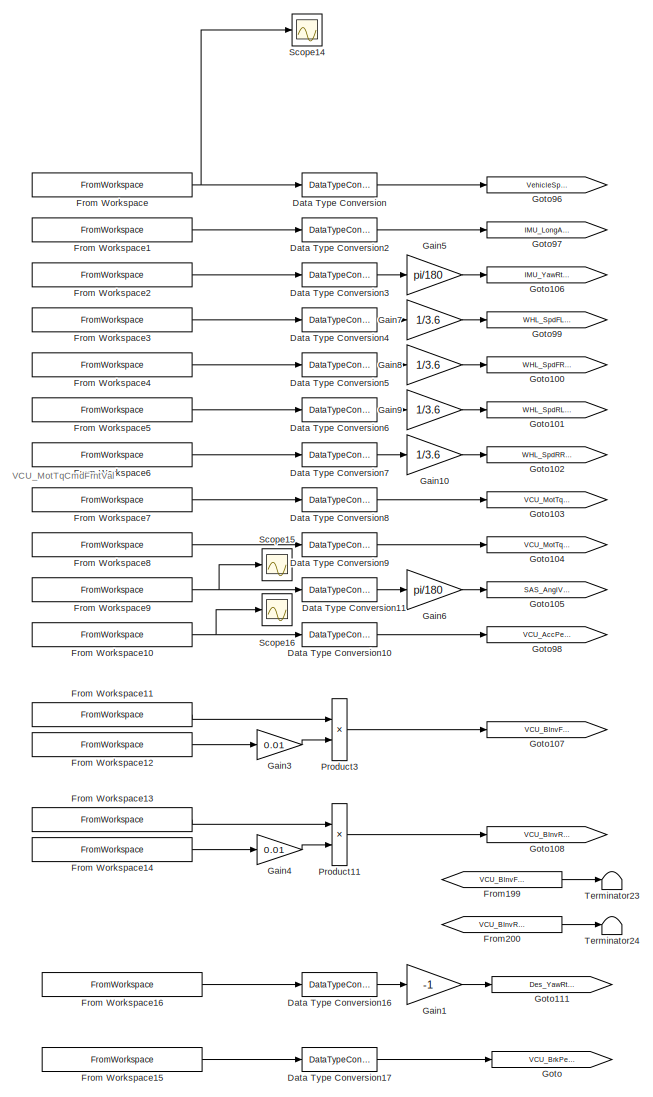
[diagram: root canvas - part 1/13, top left region]
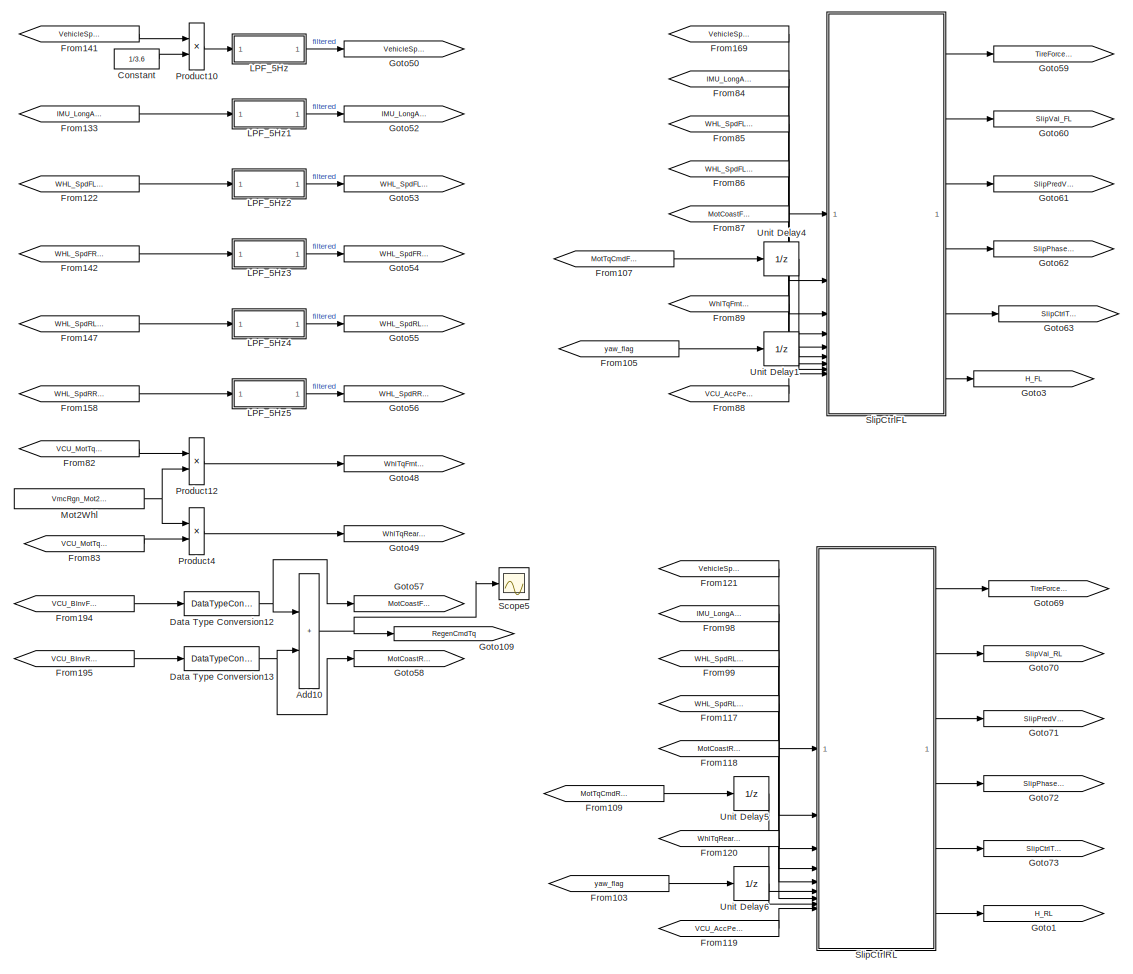
[diagram: root canvas - part 2/13, top left region]
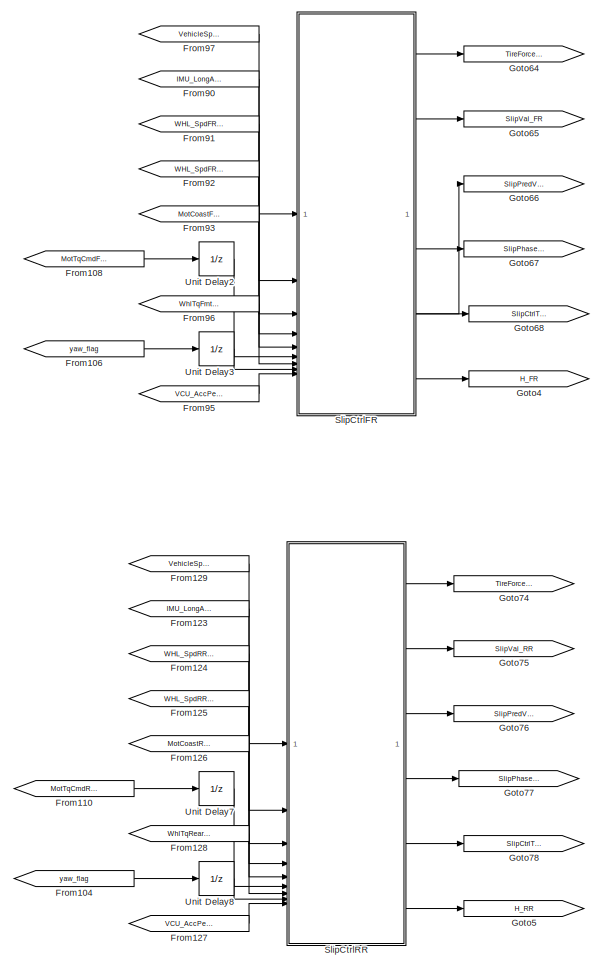
[diagram: root canvas - part 3/13, top center region]
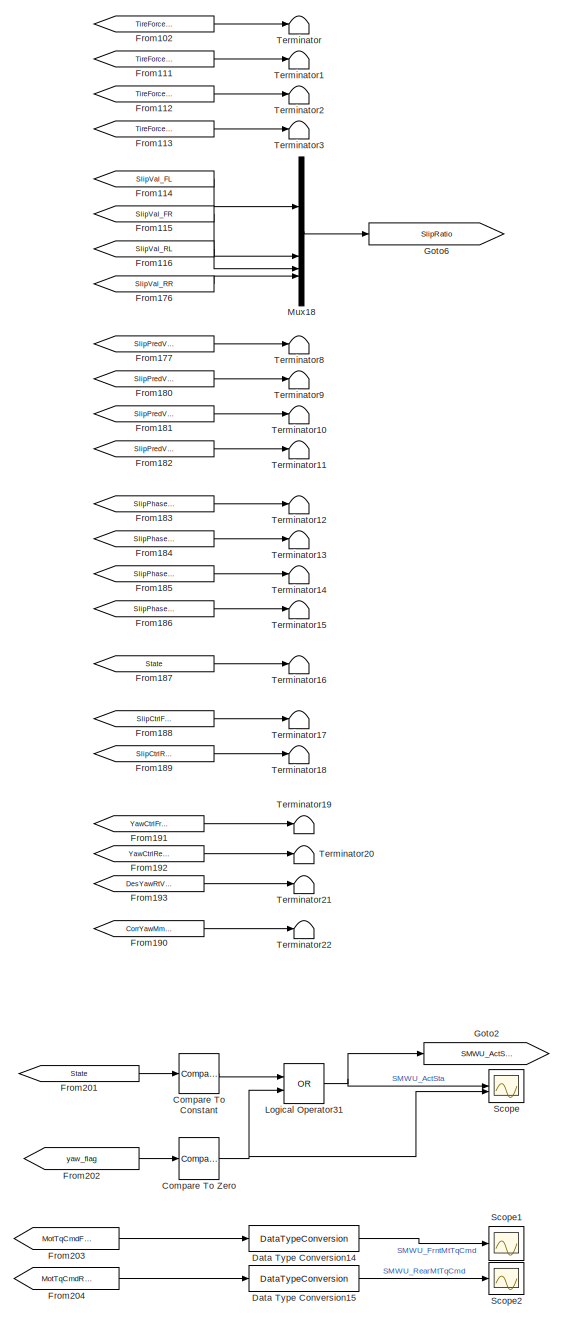
[diagram: root canvas - part 4/13, top center region]
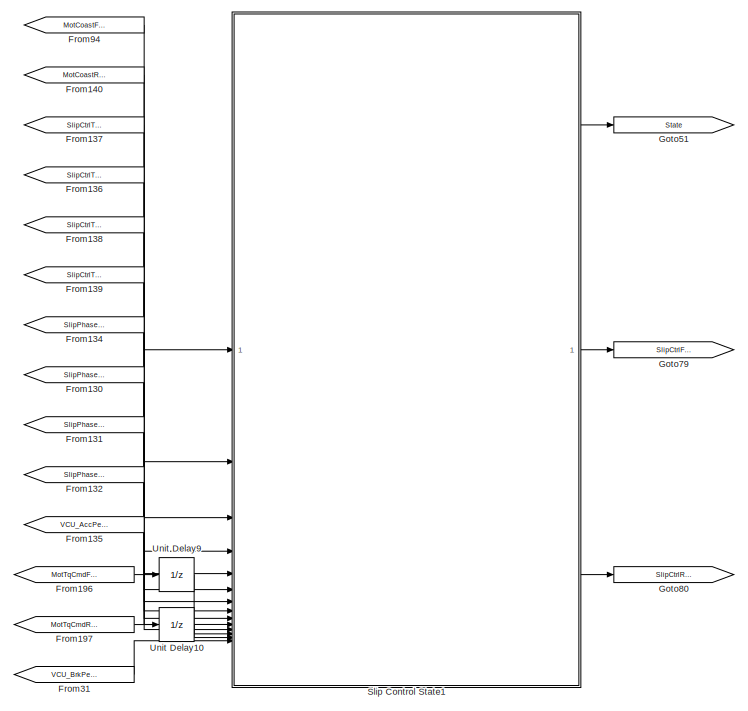
[diagram: root canvas - part 5/13, top center region]
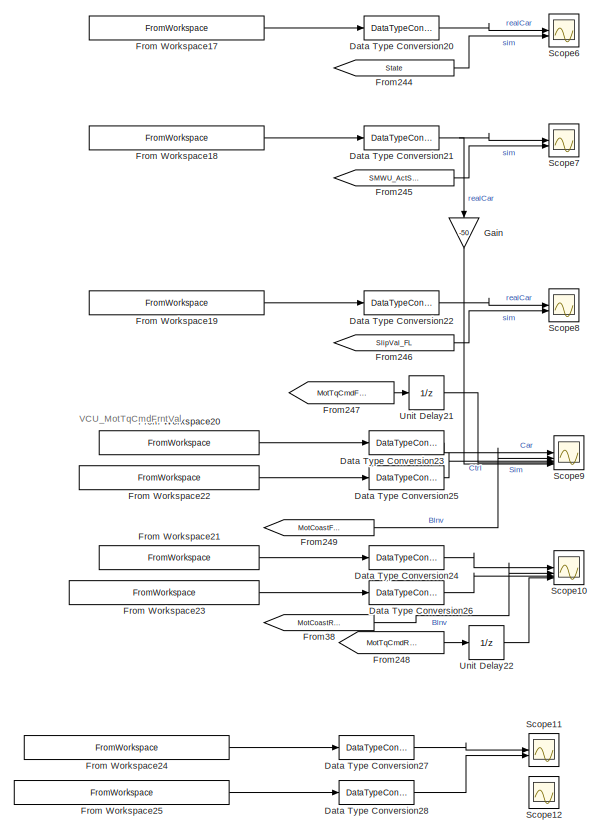
[diagram: root canvas - part 6/13, middle left region]
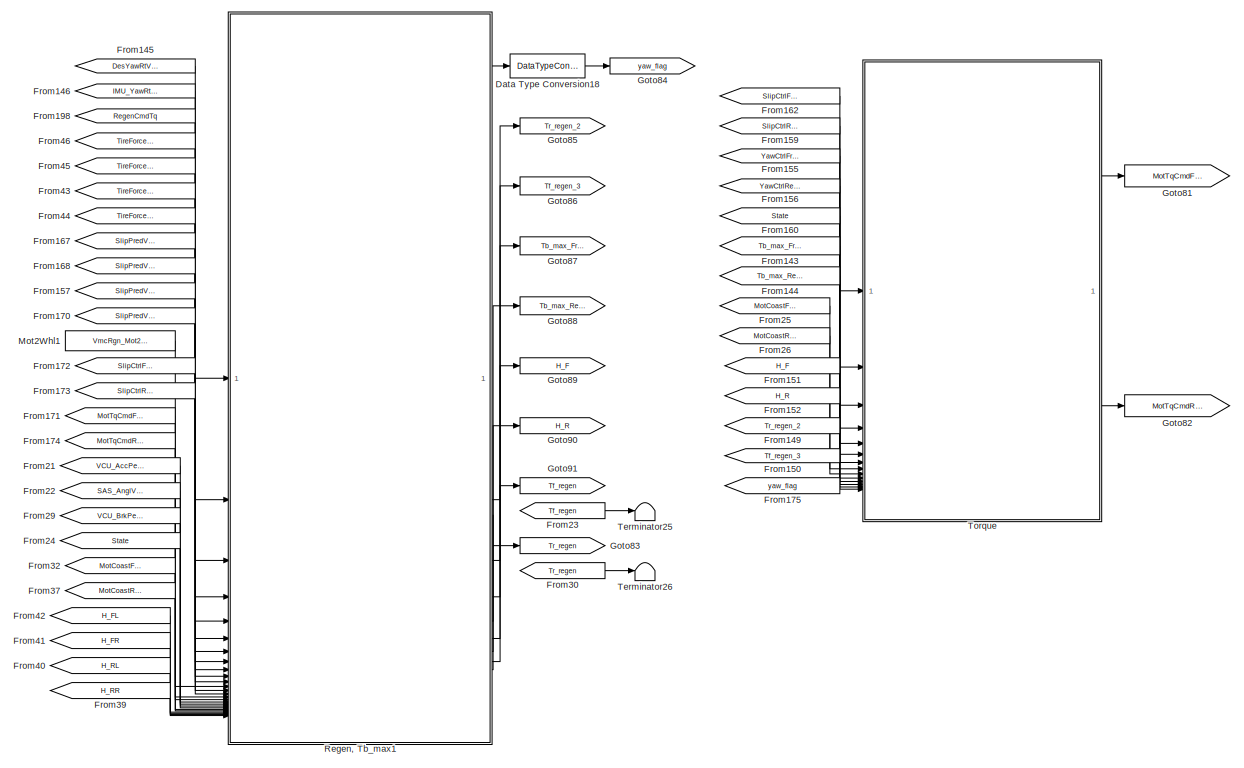
[diagram: root canvas - part 7/13, central region]
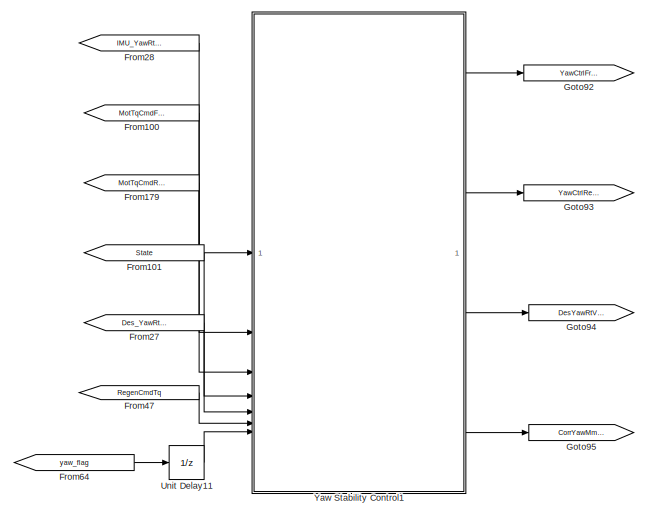
[diagram: root canvas - part 8/13, middle left region]
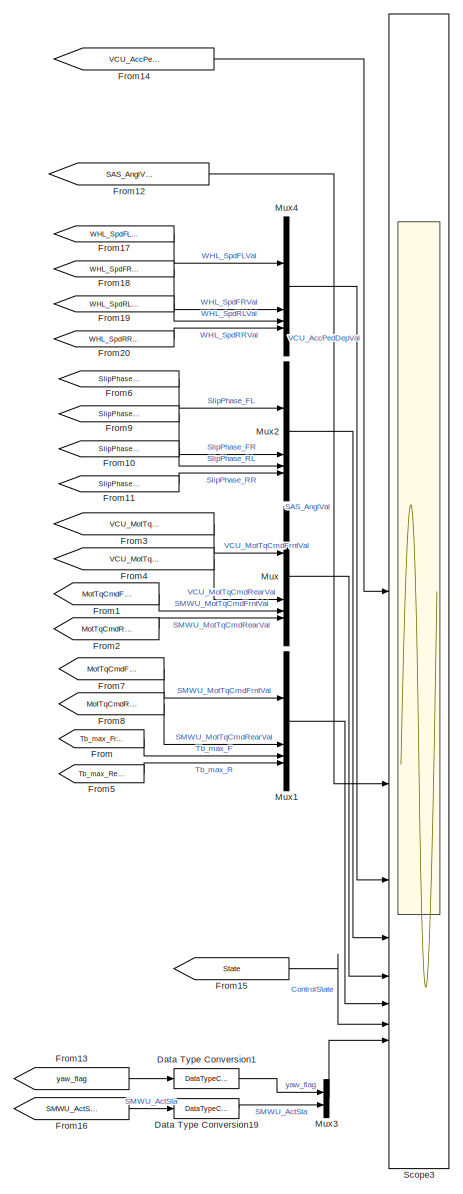
[diagram: root canvas - part 9/13, bottom center region]
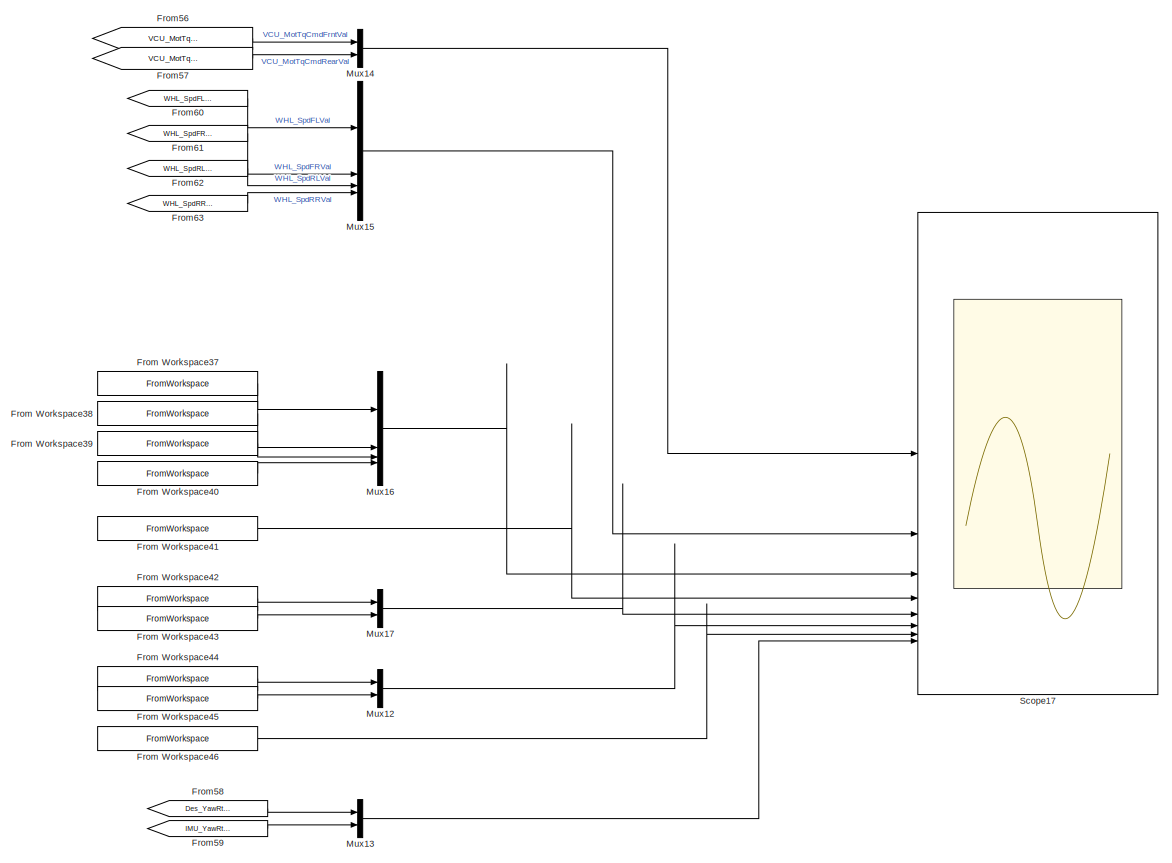
[diagram: root canvas - part 10/13, bottom right region]
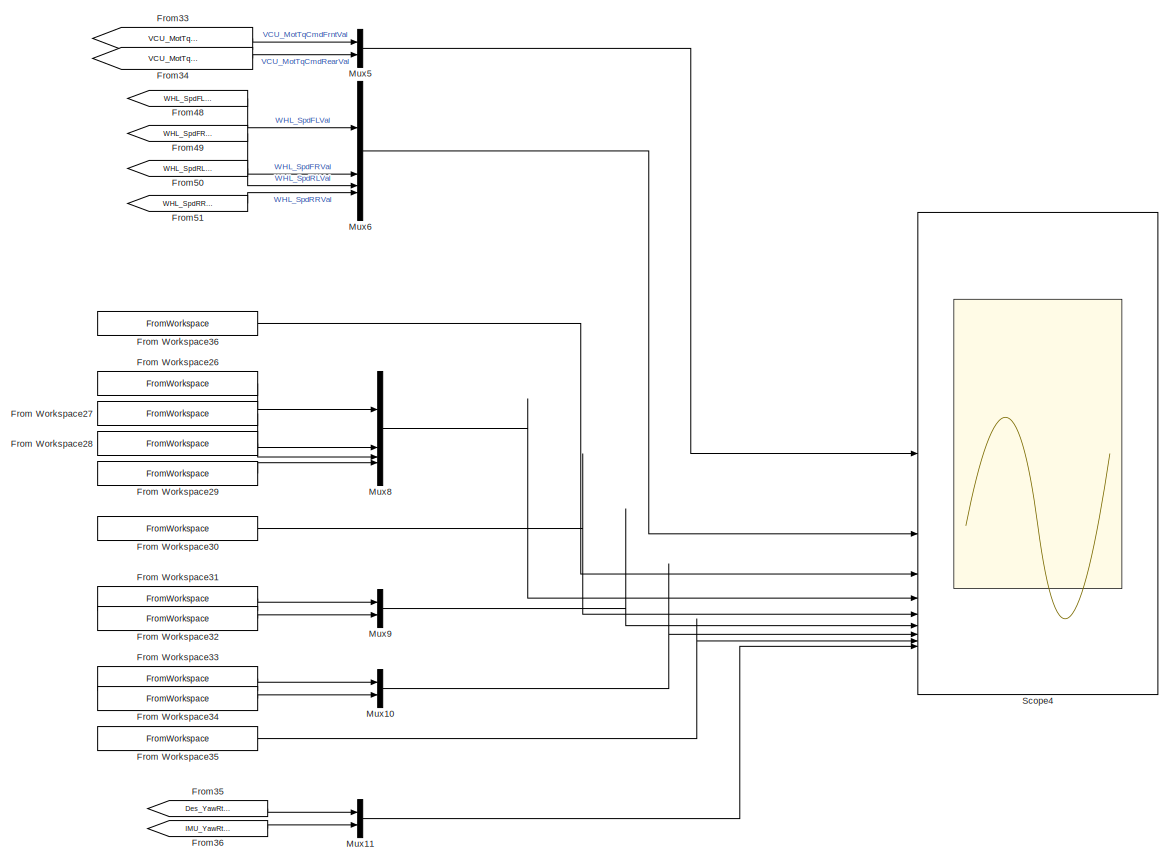
[diagram: root canvas - part 11/13, bottom right region]
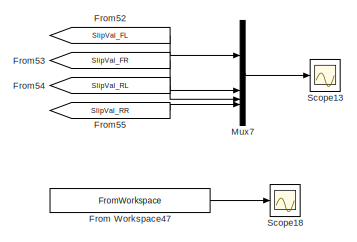
[diagram: root canvas - part 12/13, bottom right region]
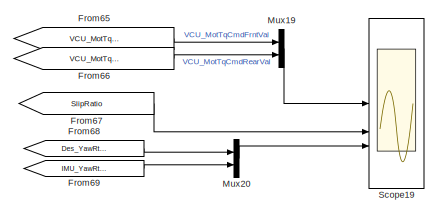
[diagram: root canvas - part 13/13, bottom right region]
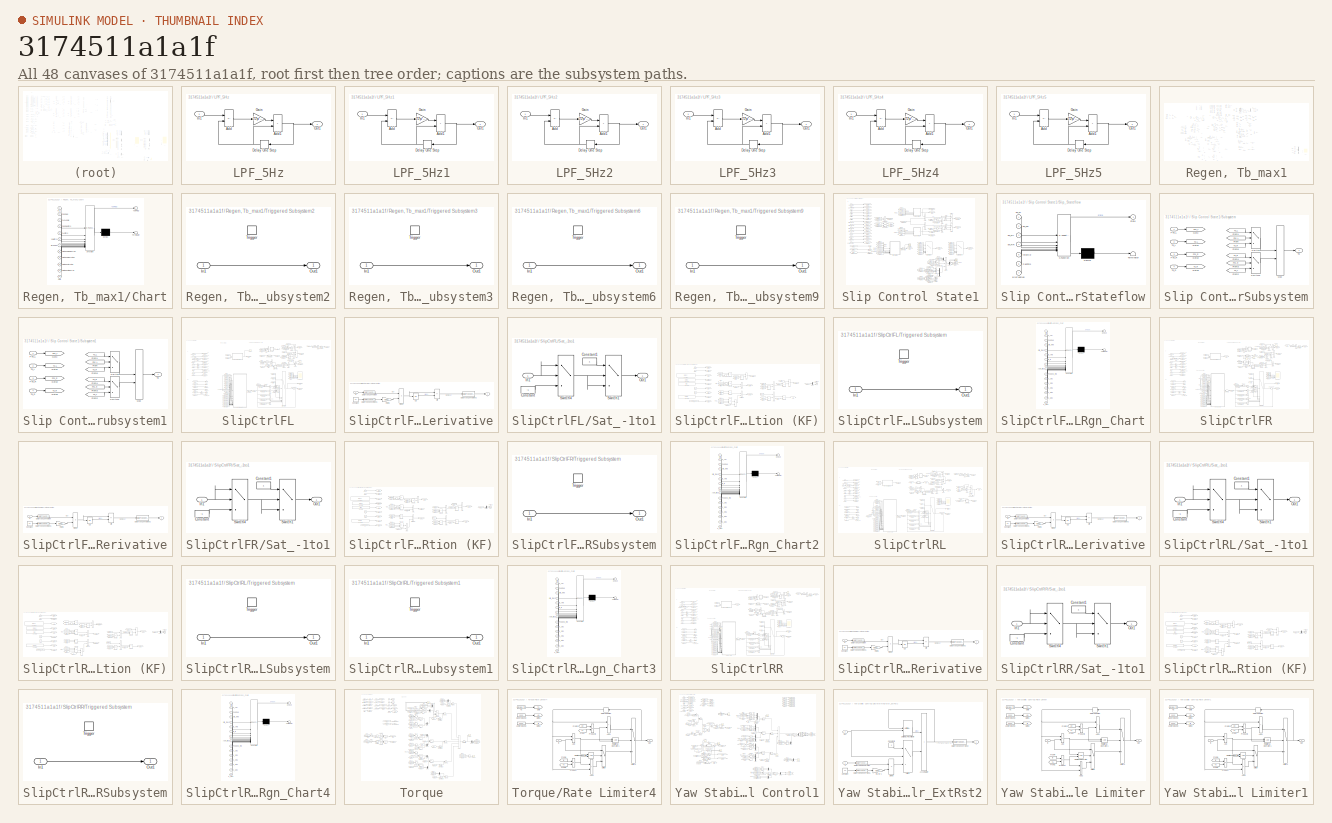
[diagram: thumbnail index - all 48 canvases of the model, root first then tree order]
MODEL slx_3174511a1a1f
KIND model
CONFIG AbsTol = 1e-6
CONFIG EnableMultiTasking = off
CONFIG FixedStep = 0.01
CONFIG MaxStep = auto
CONFIG MinStep = auto
CONFIG RelTol = 1e-3
CONFIG SampleTimeConstraint = Unconstrained
CONFIG SolverName = FixedStepDiscrete
CONFIG StartTime = 0
CONFIG StopTime = 60
BLOCK [Sum] Add10
  AccumDataTypeStr = single
  AttributesFormatString = OutType: %<OutDataTypeStr>
  IconShape = rectangular
  LockScale = on
  OutDataTypeStr = fixdt(1,16,2^0,0)
  RndMeth = Round
  SaturateOnIntegerOverflow = on
BLOCK [Reference] Compare To Constant  REF=simulink/Logic and Bit
Operations/Compare
To Constant
  AttributesFormatString = OutType: %<OutDataTypeStr>
  SourceBlock = simulink/Logic and Bit\nOperations/Compare\nTo Constant
  SourceType = Compare To Constant
BLOCK [Reference] Compare To Zero  REF=simulink/Logic and Bit
Operations/Compare
To Zero
  AttributesFormatString = OutType: %<OutDataTypeStr>
  SourceBlock = simulink/Logic and Bit\nOperations/Compare\nTo Zero
  SourceType = Compare To Zero
BLOCK [Constant] Constant
  OutDataTypeStr = single
  Value = 1/3.6
BLOCK [DataTypeConversion] Data Type Conversion
  OutDataTypeStr = single
  RndMeth = Floor
  SaturateOnIntegerOverflow = off
BLOCK [DataTypeConversion] Data Type Conversion1
  OutDataTypeStr = single
  RndMeth = Floor
  SaturateOnIntegerOverflow = off
BLOCK [DataTypeConversion] Data Type Conversion10
  OutDataTypeStr = single
  RndMeth = Floor
  SaturateOnIntegerOverflow = off
BLOCK [DataTypeConversion] Data Type Conversion11
  OutDataTypeStr = single
  RndMeth = Floor
  SaturateOnIntegerOverflow = off
BLOCK [DataTypeConversion] Data Type Conversion12
  OutDataTypeStr = single
  RndMeth = Floor
  SaturateOnIntegerOverflow = off
BLOCK [DataTypeConversion] Data Type Conversion13
  OutDataTypeStr = single
  RndMeth = Floor
  SaturateOnIntegerOverflow = off
BLOCK [DataTypeConversion] Data Type Conversion14
  AttributesFormatString = OutType: %<OutDataTypeStr>
  LockScale = on
  OutDataTypeStr = fixdt(1,16,2^-3,0)
  RndMeth = Round
BLOCK [DataTypeConversion] Data Type Conversion15
  AttributesFormatString = OutType: %<OutDataTypeStr>
  LockScale = on
  OutDataTypeStr = fixdt(1,16,2^-3,0)
  RndMeth = Round
BLOCK [DataTypeConversion] Data Type Conversion16
  OutDataTypeStr = single
  RndMeth = Floor
  SaturateOnIntegerOverflow = off
BLOCK [DataTypeConversion] Data Type Conversion17
  OutDataTypeStr = single
  RndMeth = Floor
  SaturateOnIntegerOverflow = off
BLOCK [DataTypeConversion] Data Type Conversion18
  OutDataTypeStr = single
  RndMeth = Floor
  SaturateOnIntegerOverflow = off
BLOCK [DataTypeConversion] Data Type Conversion19
  OutDataTypeStr = single
  RndMeth = Floor
  SaturateOnIntegerOverflow = off
BLOCK [DataTypeConversion] Data Type Conversion2
  OutDataTypeStr = single
  RndMeth = Floor
  SaturateOnIntegerOverflow = off
BLOCK [DataTypeConversion] Data Type Conversion20
  OutDataTypeStr = single
  RndMeth = Floor
  SaturateOnIntegerOverflow = off
BLOCK [DataTypeConversion] Data Type Conversion21
  OutDataTypeStr = single
  RndMeth = Floor
  SaturateOnIntegerOverflow = off
BLOCK [DataTypeConversion] Data Type Conversion22
  OutDataTypeStr = single
  RndMeth = Floor
  SaturateOnIntegerOverflow = off
BLOCK [DataTypeConversion] Data Type Conversion23
  OutDataTypeStr = single
  RndMeth = Floor
  SaturateOnIntegerOverflow = off
BLOCK [DataTypeConversion] Data Type Conversion24
  OutDataTypeStr = single
  RndMeth = Floor
  SaturateOnIntegerOverflow = off
BLOCK [DataTypeConversion] Data Type Conversion25
  OutDataTypeStr = single
  RndMeth = Floor
  SaturateOnIntegerOverflow = off
BLOCK [DataTypeConversion] Data Type Conversion26
  OutDataTypeStr = single
  RndMeth = Floor
  SaturateOnIntegerOverflow = off
BLOCK [DataTypeConversion] Data Type Conversion27
  OutDataTypeStr = single
  RndMeth = Floor
  SaturateOnIntegerOverflow = off
BLOCK [DataTypeConversion] Data Type Conversion28
  OutDataTypeStr = single
  RndMeth = Floor
  SaturateOnIntegerOverflow = off
BLOCK [DataTypeConversion] Data Type Conversion3
  OutDataTypeStr = single
  RndMeth = Floor
  SaturateOnIntegerOverflow = off
BLOCK [DataTypeConversion] Data Type Conversion4
  OutDataTypeStr = single
  RndMeth = Floor
  SaturateOnIntegerOverflow = off
BLOCK [DataTypeConversion] Data Type Conversion5
  OutDataTypeStr = single
  RndMeth = Floor
  SaturateOnIntegerOverflow = off
BLOCK [DataTypeConversion] Data Type Conversion6
  OutDataTypeStr = single
  RndMeth = Floor
  SaturateOnIntegerOverflow = off
BLOCK [DataTypeConversion] Data Type Conversion7
  OutDataTypeStr = single
  RndMeth = Floor
  SaturateOnIntegerOverflow = off
BLOCK [DataTypeConversion] Data Type Conversion8
  OutDataTypeStr = single
  RndMeth = Floor
  SaturateOnIntegerOverflow = off
BLOCK [DataTypeConversion] Data Type Conversion9
  OutDataTypeStr = single
  RndMeth = Floor
  SaturateOnIntegerOverflow = off
BLOCK [From] From
  GotoTag = Tb_max_Frnt
BLOCK [FromWorkspace] From Workspace
  SampleTime = -1
  VariableName = [t VseSpd_sEstSpdFilt]
BLOCK [FromWorkspace] From Workspace1
  SampleTime = -1
  VariableName = [t IsAcu_dsLongAccl]
BLOCK [FromWorkspace] From Workspace10
  SampleTime = -1
  VariableName = [t IsHal_pcAlgAps]
BLOCK [FromWorkspace] From Workspace11
  SampleTime = -1
  VariableName = [t VCU_StdMotTqFrntVal]
BLOCK [FromWorkspace] From Workspace12
  SampleTime = -1
  VariableName = [t PtMot_pcBItvTqCmdFrnt]
BLOCK [FromWorkspace] From Workspace13
  SampleTime = -1
  VariableName = [t VCU_StdMotTqRearVal]
BLOCK [FromWorkspace] From Workspace14
  SampleTime = -1
  VariableName = [t PtMot_pcBItvTqCmdRear]
BLOCK [FromWorkspace] From Workspace15
  SampleTime = -1
  VariableName = [t IsIeb_dDrvBrkStrk_mm]
BLOCK [FromWorkspace] From Workspace16
  VariableName = [t VseLat_dradTarYawRate]
BLOCK [FromWorkspace] From Workspace17
  SampleTime = -1
  VariableName = [t Tp_VmcRgn_stSMWUState]
BLOCK [FromWorkspace] From Workspace18
  SampleTime = -1
  VariableName = [t VmcRgn_fSMWUActSta]
BLOCK [FromWorkspace] From Workspace19
  SampleTime = -1
  VariableName = [t VseSpd_rSlipRtFilWhlFl]
BLOCK [FromWorkspace] From Workspace2
  SampleTime = -1
  VariableName = [t IsAcu_daYawRate]
BLOCK [FromWorkspace] From Workspace20
  SampleTime = -1
  VariableName = [t VCU_MotTqCmdFrntVal]
BLOCK [FromWorkspace] From Workspace21
  SampleTime = -1
  VariableName = [t VCU_MotTqCmdRearVal]
BLOCK [FromWorkspace] From Workspace22
  SampleTime = -1
  VariableName = [t VmcRgn_tqSMWUFrntTqCmd]
BLOCK [FromWorkspace] From Workspace23
  SampleTime = -1
  VariableName = [t VmcRgn_tqSMWURearTqCmd]
BLOCK [FromWorkspace] From Workspace24
  SampleTime = -1
  VariableName = [t Tp_VmcRgn_tqSMWU_TbMaxFrnt]
BLOCK [FromWorkspace] From Workspace25
  SampleTime = -1
  VariableName = [t Tp_VmcRgn_tqSMWU_TbMaxRear]
BLOCK [FromWorkspace] From Workspace26
  VariableName = [t Tp_VmcRgn_stSMWUSlipPhaseFL]
BLOCK [FromWorkspace] From Workspace27
  VariableName = [t Tp_VmcRgn_stSMWUSlipPhaseFR]
BLOCK [FromWorkspace] From Workspace28
  VariableName = [t Tp_VmcRgn_stSMWUSlipPhaseRL]
BLOCK [FromWorkspace] From Workspace29
  VariableName = [t Tp_VmcRgn_stSMWUSlipPhaseRR]
BLOCK [FromWorkspace] From Workspace3
  SampleTime = -1
  VariableName = [t IsIeb_sWhlSpdFl]
BLOCK [FromWorkspace] From Workspace30
  VariableName = [t Tp_VmcRgn_stSMWUState]
BLOCK [FromWorkspace] From Workspace31
  VariableName = [t VmcRgn_fSMWUActSta]
BLOCK [FromWorkspace] From Workspace32
  VariableName = [t Tp_VmcRgn_fSMWUYawFlag]
BLOCK [FromWorkspace] From Workspace33
  VariableName = [t Tp_VmcRgn_tqSMWU_TbMaxFrnt]
BLOCK [FromWorkspace] From Workspace34
  VariableName = [t Tp_VmcRgn_tqSMWU_TbMaxRear]
BLOCK [FromWorkspace] From Workspace35
  SampleTime = -1
  VariableName = [t IsHal_pcAlgAps]
BLOCK [FromWorkspace] From Workspace36
  SampleTime = -1
  VariableName = [t IsSas_aStrWhlAngle]
BLOCK [FromWorkspace] From Workspace37
  VariableName = [t Tp_VmcRgn_stSMWUSlipPhaseFL]
BLOCK [FromWorkspace] From Workspace38
  VariableName = [t Tp_VmcRgn_stSMWUSlipPhaseFR]
BLOCK [FromWorkspace] From Workspace39
  VariableName = [t Tp_VmcRgn_stSMWUSlipPhaseRL]
BLOCK [FromWorkspace] From Workspace4
  SampleTime = -1
  VariableName = [t IsIeb_sWhlSpdFr]
BLOCK [FromWorkspace] From Workspace40
  VariableName = [t Tp_VmcRgn_stSMWUSlipPhaseRR]
BLOCK [FromWorkspace] From Workspace41
  VariableName = [t Tp_VmcRgn_stSMWUState]
BLOCK [FromWorkspace] From Workspace42
  VariableName = [t VmcRgn_fSMWUActSta]
BLOCK [FromWorkspace] From Workspace43
  VariableName = [t Tp_VmcRgn_fSMWUYawFlag]
BLOCK [FromWorkspace] From Workspace44
  VariableName = [t Tp_VmcRgn_tqSMWU_TbMaxFrnt]
BLOCK [FromWorkspace] From Workspace45
  VariableName = [t Tp_VmcRgn_tqSMWU_TbMaxRear]
BLOCK [FromWorkspace] From Workspace46
  SampleTime = -1
  VariableName = [t IsHal_pcAlgAps]
BLOCK [FromWorkspace] From Workspace47
  SampleTime = -1
  VariableName = [t IsSas_aStrWhlAngle]
BLOCK [FromWorkspace] From Workspace5
  SampleTime = -1
  VariableName = [t IsIeb_sWhlSpdRl]
BLOCK [FromWorkspace] From Workspace6
  SampleTime = -1
  VariableName = [t IsIeb_sWhlSpdRr]
BLOCK [FromWorkspace] From Workspace7
  SampleTime = -1
  VariableName = [t VCU_MotTqCmdFrntVal]
BLOCK [FromWorkspace] From Workspace8
  SampleTime = -1
  VariableName = [t VCU_MotTqCmdRearVal]
BLOCK [FromWorkspace] From Workspace9
  SampleTime = -1
  VariableName = [t IsSas_aStrWhlAngle]
BLOCK [From] From1
  GotoTag = MotTqCmdFrntVal
BLOCK [From] From10
  GotoTag = SlipPhase_RL
BLOCK [From] From100
  GotoTag = MotTqCmdFrntVal
BLOCK [From] From101
  GotoTag = State
BLOCK [From] From102
  GotoTag = TireForce_FL
BLOCK [From] From103
  GotoTag = yaw_flag
BLOCK [From] From104
  GotoTag = yaw_flag
BLOCK [From] From105
  GotoTag = yaw_flag
BLOCK [From] From106
  GotoTag = yaw_flag
BLOCK [From] From107
  GotoTag = MotTqCmdFrntVal
BLOCK [From] From108
  GotoTag = MotTqCmdFrntVal
BLOCK [From] From109
  GotoTag = MotTqCmdRearVal
BLOCK [From] From11
  GotoTag = SlipPhase_RR
BLOCK [From] From110
  GotoTag = MotTqCmdRearVal
BLOCK [From] From111
  GotoTag = TireForce_FR
BLOCK [From] From112
  GotoTag = TireForce_RL
BLOCK [From] From113
  GotoTag = TireForce_RR
BLOCK [From] From114
  GotoTag = SlipVal_FL
BLOCK [From] From115
  GotoTag = SlipVal_FR
BLOCK [From] From116
  GotoTag = SlipVal_RL
BLOCK [From] From117
  GotoTag = WHL_SpdRLFlt
BLOCK [From] From118
  GotoTag = MotCoastRearTq
BLOCK [From] From119
  GotoTag = VCU_AccPedDepVal
BLOCK [From] From12
  GotoTag = SAS_AnglVal
BLOCK [From] From120
  GotoTag = WhlTqRearVal
BLOCK [From] From121
  GotoTag = VehicleSpdFlt
BLOCK [From] From122
  GotoTag = WHL_SpdFLVal
BLOCK [From] From123
  GotoTag = IMU_LongAccelFlt
BLOCK [From] From124
  GotoTag = WHL_SpdRRVal
BLOCK [From] From125
  GotoTag = WHL_SpdRRFlt
BLOCK [From] From126
  GotoTag = MotCoastRearTq
BLOCK [From] From127
  GotoTag = VCU_AccPedDepVal
BLOCK [From] From128
  GotoTag = WhlTqRearVal
BLOCK [From] From129
  GotoTag = VehicleSpdFlt
BLOCK [From] From13
  GotoTag = yaw_flag
BLOCK [From] From130
  GotoTag = SlipPhase_FR
BLOCK [From] From131
  GotoTag = SlipPhase_RL
BLOCK [From] From132
  GotoTag = SlipPhase_RR
BLOCK [From] From133
  GotoTag = IMU_LongAccelVal
BLOCK [From] From134
  GotoTag = SlipPhase_FL
BLOCK [From] From135
  GotoTag = VCU_AccPedDepVal
BLOCK [From] From136
  GotoTag = SlipCtrlTq_FR
BLOCK [From] From137
  GotoTag = SlipCtrlTq_FL
BLOCK [From] From138
  GotoTag = SlipCtrlTq_RL
BLOCK [From] From139
  GotoTag = SlipCtrlTq_RR
BLOCK [From] From14
  GotoTag = VCU_AccPedDepVal
BLOCK [From] From140
  GotoTag = MotCoastRearTq
BLOCK [From] From141
  GotoTag = VehicleSpdVal
BLOCK [From] From142
  GotoTag = WHL_SpdFRVal
BLOCK [From] From143
  GotoTag = Tb_max_Frnt
BLOCK [From] From144
  GotoTag = Tb_max_Rear
BLOCK [From] From145
  GotoTag = DesYawRtVal
BLOCK [From] From146
  GotoTag = IMU_YawRtVal
BLOCK [From] From147
  GotoTag = WHL_SpdRLVal
BLOCK [From] From149
  GotoTag = Tr_regen_2
BLOCK [From] From15
  GotoTag = State
BLOCK [From] From150
  GotoTag = Tf_regen_3
BLOCK [From] From151
  GotoTag = H_F
BLOCK [From] From152
  GotoTag = H_R
BLOCK [From] From155
  GotoTag = YawCtrlFrntTq
BLOCK [From] From156
  GotoTag = YawCtrlRearTq
BLOCK [From] From157
  GotoTag = SlipPredVal_RL
BLOCK [From] From158
  GotoTag = WHL_SpdRRVal
BLOCK [From] From159
  GotoTag = SlipCtrlRearTq
BLOCK [From] From16
  GotoTag = SMWU_ActSta
BLOCK [From] From160
  GotoTag = State
BLOCK [From] From162
  GotoTag = SlipCtrlFrntTq
BLOCK [From] From167
  GotoTag = SlipPredVal_FL
BLOCK [From] From168
  GotoTag = SlipPredVal_FR
BLOCK [From] From169
  GotoTag = VehicleSpdFlt
BLOCK [From] From17
  GotoTag = WHL_SpdFLVal
BLOCK [From] From170
  GotoTag = SlipPredVal_RR
BLOCK [From] From171
  GotoTag = MotTqCmdFrntVal
BLOCK [From] From172
  GotoTag = SlipCtrlFrntTq
BLOCK [From] From173
  GotoTag = SlipCtrlRearTq
BLOCK [From] From174
  GotoTag = MotTqCmdRearVal
BLOCK [From] From175
  GotoTag = yaw_flag
BLOCK [From] From176
  GotoTag = SlipVal_RR
BLOCK [From] From177
  GotoTag = SlipPredVal_FL
BLOCK [From] From179
  GotoTag = MotTqCmdRearVal
BLOCK [From] From18
  GotoTag = WHL_SpdFRVal
BLOCK [From] From180
  GotoTag = SlipPredVal_FR
BLOCK [From] From181
  GotoTag = SlipPredVal_RL
BLOCK [From] From182
  GotoTag = SlipPredVal_RR
BLOCK [From] From183
  GotoTag = SlipPhase_FL
BLOCK [From] From184
  GotoTag = SlipPhase_FR
BLOCK [From] From185
  GotoTag = SlipPhase_RL
BLOCK [From] From186
  GotoTag = SlipPhase_RR
BLOCK [From] From187
  GotoTag = State
BLOCK [From] From188
  GotoTag = SlipCtrlFrntTq
BLOCK [From] From189
  GotoTag = SlipCtrlRearTq
BLOCK [From] From19
  GotoTag = WHL_SpdRLVal
BLOCK [From] From190
  GotoTag = CorrYawMmtVal
BLOCK [From] From191
  GotoTag = YawCtrlFrntTq
BLOCK [From] From192
  GotoTag = YawCtrlRearTq
BLOCK [From] From193
  GotoTag = DesYawRtVal
BLOCK [From] From194
  GotoTag = VCU_BInvFrntNmVal
BLOCK [From] From195
  GotoTag = VCU_BInvRearNmVal
BLOCK [From] From196
  GotoTag = MotTqCmdFrntVal
BLOCK [From] From197
  GotoTag = MotTqCmdRearVal
BLOCK [From] From198
  GotoTag = RegenCmdTq
BLOCK [From] From199
  GotoTag = VCU_BInvFrntNmVal
BLOCK [From] From2
  GotoTag = MotTqCmdRearVal
BLOCK [From] From20
  GotoTag = WHL_SpdRRVal
BLOCK [From] From200
  GotoTag = VCU_BInvRearNmVal
BLOCK [From] From201
  GotoTag = State
BLOCK [From] From202
  GotoTag = yaw_flag
BLOCK [From] From203
  GotoTag = MotTqCmdFrntVal
BLOCK [From] From204
  GotoTag = MotTqCmdRearVal
BLOCK [From] From21
  GotoTag = VCU_AccPedDepVal
BLOCK [From] From22
  GotoTag = SAS_AnglVal
BLOCK [From] From23
  GotoTag = Tf_regen
BLOCK [From] From24
  GotoTag = State
BLOCK [From] From244
  GotoTag = State
BLOCK [From] From245
  GotoTag = SMWU_ActSta
BLOCK [From] From246
  GotoTag = SlipVal_FL
BLOCK [From] From247
  GotoTag = MotTqCmdFrntVal
BLOCK [From] From248
  GotoTag = MotTqCmdRearVal
BLOCK [From] From249
  GotoTag = MotCoastFrntTq
BLOCK [From] From25
  GotoTag = MotCoastFrntTq
BLOCK [From] From26
  GotoTag = MotCoastRearTq
BLOCK [From] From27
  GotoTag = Des_YawRtVal_HMC
BLOCK [From] From28
  GotoTag = IMU_YawRtVal
BLOCK [From] From29
  GotoTag = VCU_BrkPedDepVal
BLOCK [From] From3
  GotoTag = VCU_MotTqCmdFrntVal
BLOCK [From] From30
  GotoTag = Tr_regen
BLOCK [From] From31
  GotoTag = VCU_BrkPedDepVal
BLOCK [From] From32
  GotoTag = MotCoastFrntTq
BLOCK [From] From33
  GotoTag = VCU_MotTqCmdFrntVal
BLOCK [From] From34
  GotoTag = VCU_MotTqCmdRearVal
BLOCK [From] From35
  GotoTag = Des_YawRtVal_HMC
BLOCK [From] From36
  GotoTag = IMU_YawRtVal
BLOCK [From] From37
  GotoTag = MotCoastRearTq
BLOCK [From] From38
  GotoTag = MotCoastRearTq
BLOCK [From] From39
  GotoTag = H_RR
BLOCK [From] From4
  GotoTag = VCU_MotTqCmdRearVal
BLOCK [From] From40
  GotoTag = H_RL
BLOCK [From] From41
  GotoTag = H_FR
BLOCK [From] From42
  GotoTag = H_FL
BLOCK [From] From43
  GotoTag = TireForce_RL
BLOCK [From] From44
  GotoTag = TireForce_RR
BLOCK [From] From45
  GotoTag = TireForce_FR
BLOCK [From] From46
  GotoTag = TireForce_FL
BLOCK [From] From47
  GotoTag = RegenCmdTq
BLOCK [From] From48
  GotoTag = WHL_SpdFLVal
BLOCK [From] From49
  GotoTag = WHL_SpdFRVal
BLOCK [From] From5
  GotoTag = Tb_max_Rear
BLOCK [From] From50
  GotoTag = WHL_SpdRLVal
BLOCK [From] From51
  GotoTag = WHL_SpdRRVal
BLOCK [From] From52
  GotoTag = SlipVal_FL
BLOCK [From] From53
  GotoTag = SlipVal_FR
BLOCK [From] From54
  GotoTag = SlipVal_RL
BLOCK [From] From55
  GotoTag = SlipVal_RR
BLOCK [From] From56
  GotoTag = VCU_MotTqCmdFrntVal
BLOCK [From] From57
  GotoTag = VCU_MotTqCmdRearVal
BLOCK [From] From58
  GotoTag = Des_YawRtVal_HMC
BLOCK [From] From59
  GotoTag = IMU_YawRtVal
BLOCK [From] From6
  GotoTag = SlipPhase_FL
BLOCK [From] From60
  GotoTag = WHL_SpdFLVal
BLOCK [From] From61
  GotoTag = WHL_SpdFRVal
BLOCK [From] From62
  GotoTag = WHL_SpdRLVal
BLOCK [From] From63
  GotoTag = WHL_SpdRRVal
BLOCK [From] From64
  GotoTag = yaw_flag
BLOCK [From] From65
  GotoTag = VCU_MotTqCmdFrntVal
BLOCK [From] From66
  GotoTag = VCU_MotTqCmdRearVal
BLOCK [From] From67
  GotoTag = SlipRatio
BLOCK [From] From68
  GotoTag = Des_YawRtVal_HMC
BLOCK [From] From69
  GotoTag = IMU_YawRtVal
BLOCK [From] From7
  GotoTag = MotTqCmdFrntVal
BLOCK [From] From8
  GotoTag = MotTqCmdRearVal
BLOCK [From] From82
  GotoTag = VCU_MotTqCmdFrntVal
BLOCK [From] From83
  GotoTag = VCU_MotTqCmdRearVal
BLOCK [From] From84
  GotoTag = IMU_LongAccelFlt
BLOCK [From] From85
  GotoTag = WHL_SpdFLVal
BLOCK [From] From86
  GotoTag = WHL_SpdFLFlt
BLOCK [From] From87
  GotoTag = MotCoastFrntTq
BLOCK [From] From88
  GotoTag = VCU_AccPedDepVal
BLOCK [From] From89
  GotoTag = WhlTqFrntVal
BLOCK [From] From9
  GotoTag = SlipPhase_FR
BLOCK [From] From90
  GotoTag = IMU_LongAccelFlt
BLOCK [From] From91
  GotoTag = WHL_SpdFRVal
BLOCK [From] From92
  GotoTag = WHL_SpdFRFlt
BLOCK [From] From93
  GotoTag = MotCoastFrntTq
BLOCK [From] From94
  GotoTag = MotCoastFrntTq
BLOCK [From] From95
  GotoTag = VCU_AccPedDepVal
BLOCK [From] From96
  GotoTag = WhlTqFrntVal
BLOCK [From] From97
  GotoTag = VehicleSpdFlt
BLOCK [From] From98
  GotoTag = IMU_LongAccelFlt
BLOCK [From] From99
  GotoTag = WHL_SpdRLVal
BLOCK [Gain] Gain
  Gain = -50
  NameLocation = left
BLOCK [Gain] Gain1
  Gain = -1
BLOCK [Gain] Gain10
  Gain = 1/3.6
BLOCK [Gain] Gain3
  AttributesFormatString = ParamType: %<ParamDataTypeStr>\nOutType: %<OutDataTypeStr>
  Gain = 0.01
  OutDataTypeStr = single
  ParamDataTypeStr = Inherit: Inherit from 'Gain'
  RndMeth = Round
  SaturateOnIntegerOverflow = on
BLOCK [Gain] Gain4
  AttributesFormatString = ParamType: %<ParamDataTypeStr>\nOutType: %<OutDataTypeStr>
  Gain = 0.01
  OutDataTypeStr = single
  ParamDataTypeStr = Inherit: Inherit from 'Gain'
  RndMeth = Round
  SaturateOnIntegerOverflow = on
BLOCK [Gain] Gain5
  Gain = pi/180
BLOCK [Gain] Gain6
  Gain = pi/180
BLOCK [Gain] Gain7
  Gain = 1/3.6
BLOCK [Gain] Gain8
  Gain = 1/3.6
BLOCK [Gain] Gain9
  Gain = 1/3.6
BLOCK [Goto] Goto
  GotoTag = VCU_BrkPedDepVal
BLOCK [Goto] Goto1
  GotoTag = H_RL
BLOCK [Goto] Goto100
  GotoTag = WHL_SpdFRVal
BLOCK [Goto] Goto101
  GotoTag = WHL_SpdRLVal
BLOCK [Goto] Goto102
  GotoTag = WHL_SpdRRVal
BLOCK [Goto] Goto103
  GotoTag = VCU_MotTqCmdFrntVal
BLOCK [Goto] Goto104
  GotoTag = VCU_MotTqCmdRearVal
BLOCK [Goto] Goto105
  GotoTag = SAS_AnglVal
BLOCK [Goto] Goto106
  GotoTag = IMU_YawRtVal
BLOCK [Goto] Goto107
  GotoTag = VCU_BInvFrntNmVal
BLOCK [Goto] Goto108
  GotoTag = VCU_BInvRearNmVal
BLOCK [Goto] Goto109
  GotoTag = RegenCmdTq
BLOCK [Goto] Goto111
  GotoTag = Des_YawRtVal_HMC
BLOCK [Goto] Goto2
  GotoTag = SMWU_ActSta
BLOCK [Goto] Goto3
  GotoTag = H_FL
BLOCK [Goto] Goto4
  GotoTag = H_FR
BLOCK [Goto] Goto48
  GotoTag = WhlTqFrntVal
BLOCK [Goto] Goto49
  GotoTag = WhlTqRearVal
BLOCK [Goto] Goto5
  GotoTag = H_RR
BLOCK [Goto] Goto50
  GotoTag = VehicleSpdFlt
BLOCK [Goto] Goto51
  GotoTag = State
BLOCK [Goto] Goto52
  GotoTag = IMU_LongAccelFlt
BLOCK [Goto] Goto53
  GotoTag = WHL_SpdFLFlt
BLOCK [Goto] Goto54
  GotoTag = WHL_SpdFRFlt
BLOCK [Goto] Goto55
  GotoTag = WHL_SpdRLFlt
BLOCK [Goto] Goto56
  GotoTag = WHL_SpdRRFlt
BLOCK [Goto] Goto57
  GotoTag = MotCoastFrntTq
BLOCK [Goto] Goto58
  GotoTag = MotCoastRearTq
BLOCK [Goto] Goto59
  GotoTag = TireForce_FL
BLOCK [Goto] Goto6
  GotoTag = SlipRatio
BLOCK [Goto] Goto60
  GotoTag = SlipVal_FL
BLOCK [Goto] Goto61
  GotoTag = SlipPredVal_FL
BLOCK [Goto] Goto62
  GotoTag = SlipPhase_FL
BLOCK [Goto] Goto63
  GotoTag = SlipCtrlTq_FL
BLOCK [Goto] Goto64
  GotoTag = TireForce_FR
BLOCK [Goto] Goto65
  GotoTag = SlipVal_FR
BLOCK [Goto] Goto66
  GotoTag = SlipPredVal_FR
BLOCK [Goto] Goto67
  GotoTag = SlipPhase_FR
BLOCK [Goto] Goto68
  GotoTag = SlipCtrlTq_FR
BLOCK [Goto] Goto69
  GotoTag = TireForce_RL
BLOCK [Goto] Goto70
  GotoTag = SlipVal_RL
BLOCK [Goto] Goto71
  GotoTag = SlipPredVal_RL
BLOCK [Goto] Goto72
  GotoTag = SlipPhase_RL
BLOCK [Goto] Goto73
  GotoTag = SlipCtrlTq_RL
BLOCK [Goto] Goto74
  GotoTag = TireForce_RR
BLOCK [Goto] Goto75
  GotoTag = SlipVal_RR
BLOCK [Goto] Goto76
  GotoTag = SlipPredVal_RR
BLOCK [Goto] Goto77
  GotoTag = SlipPhase_RR
BLOCK [Goto] Goto78
  GotoTag = SlipCtrlTq_RR
BLOCK [Goto] Goto79
  GotoTag = SlipCtrlFrntTq
BLOCK [Goto] Goto80
  GotoTag = SlipCtrlRearTq
BLOCK [Goto] Goto81
  GotoTag = MotTqCmdFrntVal
BLOCK [Goto] Goto82
  GotoTag = MotTqCmdRearVal
BLOCK [Goto] Goto83
  GotoTag = Tr_regen
BLOCK [Goto] Goto84
  GotoTag = yaw_flag
BLOCK [Goto] Goto85
  GotoTag = Tr_regen_2
BLOCK [Goto] Goto86
  GotoTag = Tf_regen_3
BLOCK [Goto] Goto87
  GotoTag = Tb_max_Frnt
BLOCK [Goto] Goto88
  GotoTag = Tb_max_Rear
BLOCK [Goto] Goto89
  GotoTag = H_F
BLOCK [Goto] Goto90
  GotoTag = H_R
BLOCK [Goto] Goto91
  GotoTag = Tf_regen
BLOCK [Goto] Goto92
  GotoTag = YawCtrlFrntTq
BLOCK [Goto] Goto93
  GotoTag = YawCtrlRearTq
BLOCK [Goto] Goto94
  GotoTag = DesYawRtVal
BLOCK [Goto] Goto95
  GotoTag = CorrYawMmtVal
BLOCK [Goto] Goto96
  GotoTag = VehicleSpdVal
BLOCK [Goto] Goto97
  GotoTag = IMU_LongAccelVal
BLOCK [Goto] Goto98
  GotoTag = VCU_AccPedDepVal
BLOCK [Goto] Goto99
  GotoTag = WHL_SpdFLVal
BLOCK [SubSystem] LPF_5Hz
BLOCK [Sum] LPF_5Hz/Add
  IconShape = rectangular
  Inputs = +-
BLOCK [Sum] LPF_5Hz/Add1
  IconShape = rectangular
BLOCK [Delay] LPF_5Hz/Delay One Step
  DelayLength = 1
  InputPortMap = u0
  NameLocation = top
BLOCK [Gain] LPF_5Hz/Gain
  Gain = 5*2*pi*VmcRgn_tTs/(1+5*2*pi*VmcRgn_tTs)
BLOCK [Inport] LPF_5Hz/In1
BLOCK [Outport] LPF_5Hz/Out1
BLOCK [SubSystem] LPF_5Hz1
BLOCK [Sum] LPF_5Hz1/Add
  IconShape = rectangular
  Inputs = +-
BLOCK [Sum] LPF_5Hz1/Add1
  IconShape = rectangular
BLOCK [Delay] LPF_5Hz1/Delay One Step
  DelayLength = 1
  InputPortMap = u0
  NameLocation = top
BLOCK [Gain] LPF_5Hz1/Gain
  Gain = 5*2*pi*VmcRgn_tTs/(1+5*2*pi*VmcRgn_tTs)
BLOCK [Inport] LPF_5Hz1/In1
BLOCK [Outport] LPF_5Hz1/Out1
BLOCK [SubSystem] LPF_5Hz2
BLOCK [Sum] LPF_5Hz2/Add
  IconShape = rectangular
  Inputs = +-
BLOCK [Sum] LPF_5Hz2/Add1
  IconShape = rectangular
BLOCK [Delay] LPF_5Hz2/Delay One Step
  DelayLength = 1
  InputPortMap = u0
  NameLocation = top
BLOCK [Gain] LPF_5Hz2/Gain
  Gain = 5*2*pi*VmcRgn_tTs/(1+5*2*pi*VmcRgn_tTs)
BLOCK [Inport] LPF_5Hz2/In1
BLOCK [Outport] LPF_5Hz2/Out1
BLOCK [SubSystem] LPF_5Hz3
BLOCK [Sum] LPF_5Hz3/Add
  IconShape = rectangular
  Inputs = +-
BLOCK [Sum] LPF_5Hz3/Add1
  IconShape = rectangular
BLOCK [Delay] LPF_5Hz3/Delay One Step
  DelayLength = 1
  InputPortMap = u0
  NameLocation = top
BLOCK [Gain] LPF_5Hz3/Gain
  Gain = 5*2*pi*VmcRgn_tTs/(1+5*2*pi*VmcRgn_tTs)
BLOCK [Inport] LPF_5Hz3/In1
BLOCK [Outport] LPF_5Hz3/Out1
BLOCK [SubSystem] LPF_5Hz4
BLOCK [Sum] LPF_5Hz4/Add
  IconShape = rectangular
  Inputs = +-
BLOCK [Sum] LPF_5Hz4/Add1
  IconShape = rectangular
BLOCK [Delay] LPF_5Hz4/Delay One Step
  DelayLength = 1
  InputPortMap = u0
  NameLocation = top
BLOCK [Gain] LPF_5Hz4/Gain
  Gain = 5*2*pi*VmcRgn_tTs/(1+5*2*pi*VmcRgn_tTs)
BLOCK [Inport] LPF_5Hz4/In1
BLOCK [Outport] LPF_5Hz4/Out1
BLOCK [SubSystem] LPF_5Hz5
BLOCK [Sum] LPF_5Hz5/Add
  IconShape = rectangular
  Inputs = +-
BLOCK [Sum] LPF_5Hz5/Add1
  IconShape = rectangular
BLOCK [Delay] LPF_5Hz5/Delay One Step
  DelayLength = 1
  InputPortMap = u0
  NameLocation = top
BLOCK [Gain] LPF_5Hz5/Gain
  Gain = 5*2*pi*VmcRgn_tTs/(1+5*2*pi*VmcRgn_tTs)
BLOCK [Inport] LPF_5Hz5/In1
BLOCK [Outport] LPF_5Hz5/Out1
BLOCK [Logic] Logical Operator31
  AttributesFormatString = OutType: %<OutDataTypeStr>
  Operator = OR
  OutDataTypeStr = boolean
BLOCK [Constant] Mot2Whl
  OutDataTypeStr = single
  Value = VmcRgn_Mot2Whl_C
BLOCK [Constant] Mot2Whl1
  Value = VmcRgn_Mot2Whl_C
BLOCK [Mux] Mux
  DisplayOption = bar
BLOCK [Mux] Mux1
  DisplayOption = bar
BLOCK [Mux] Mux10
  DisplayOption = bar
  Inputs = 2
BLOCK [Mux] Mux11
  DisplayOption = bar
  Inputs = 2
BLOCK [Mux] Mux12
  DisplayOption = bar
  Inputs = 2
BLOCK [Mux] Mux13
  DisplayOption = bar
  Inputs = 2
BLOCK [Mux] Mux14
  DisplayOption = bar
  Inputs = 2
BLOCK [Mux] Mux15
  DisplayOption = bar
BLOCK [Mux] Mux16
  DisplayOption = bar
BLOCK [Mux] Mux17
  DisplayOption = bar
  Inputs = 2
BLOCK [Mux] Mux18
  DisplayOption = bar
BLOCK [Mux] Mux19
  DisplayOption = bar
  Inputs = 2
BLOCK [Mux] Mux2
  DisplayOption = bar
BLOCK [Mux] Mux20
  DisplayOption = bar
  Inputs = 2
BLOCK [Mux] Mux3
  DisplayOption = bar
  Inputs = 2
BLOCK [Mux] Mux4
  DisplayOption = bar
BLOCK [Mux] Mux5
  DisplayOption = bar
  Inputs = 2
BLOCK [Mux] Mux6
  DisplayOption = bar
BLOCK [Mux] Mux7
  DisplayOption = bar
BLOCK [Mux] Mux8
  DisplayOption = bar
BLOCK [Mux] Mux9
  DisplayOption = bar
  Inputs = 2
BLOCK [Product] Product10
BLOCK [Product] Product11
BLOCK [Product] Product12
BLOCK [Product] Product3
BLOCK [Product] Product4
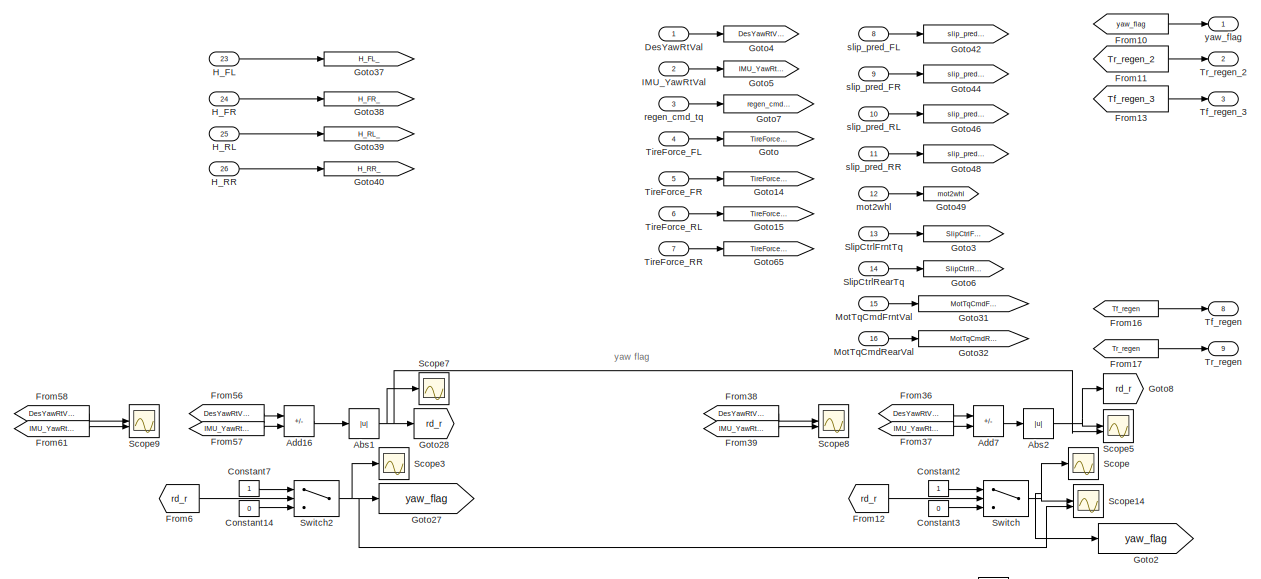
[diagram: Regen, Tb_max1 - part 1/7, top left region]
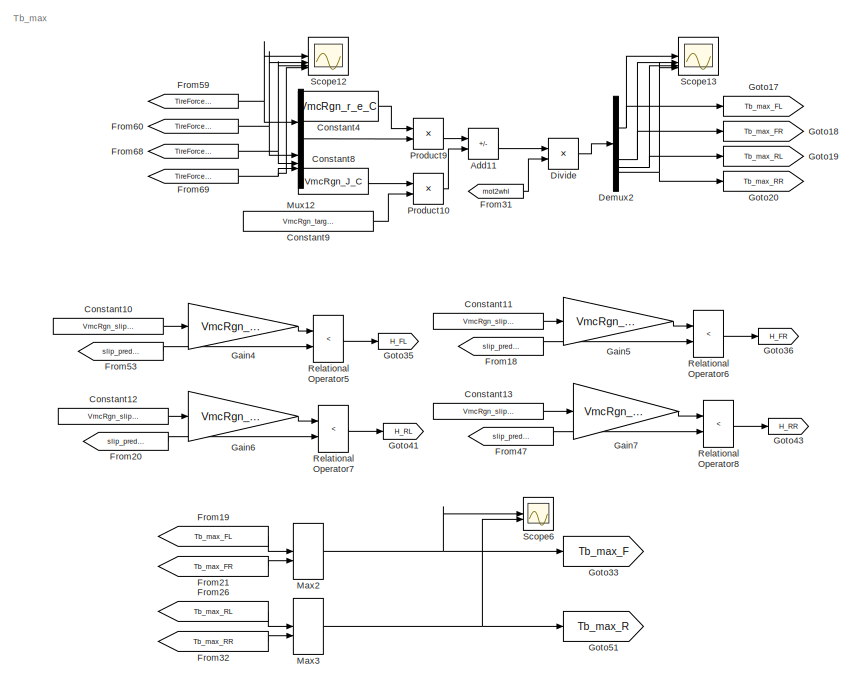
[diagram: Regen, Tb_max1 - part 2/7, top center region]
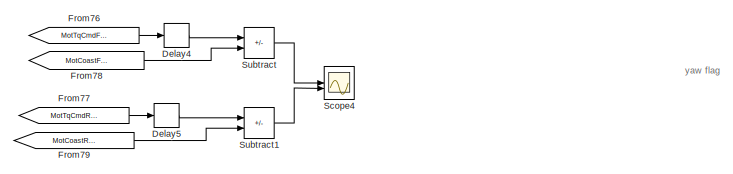
[diagram: Regen, Tb_max1 - part 3/7, top left region]
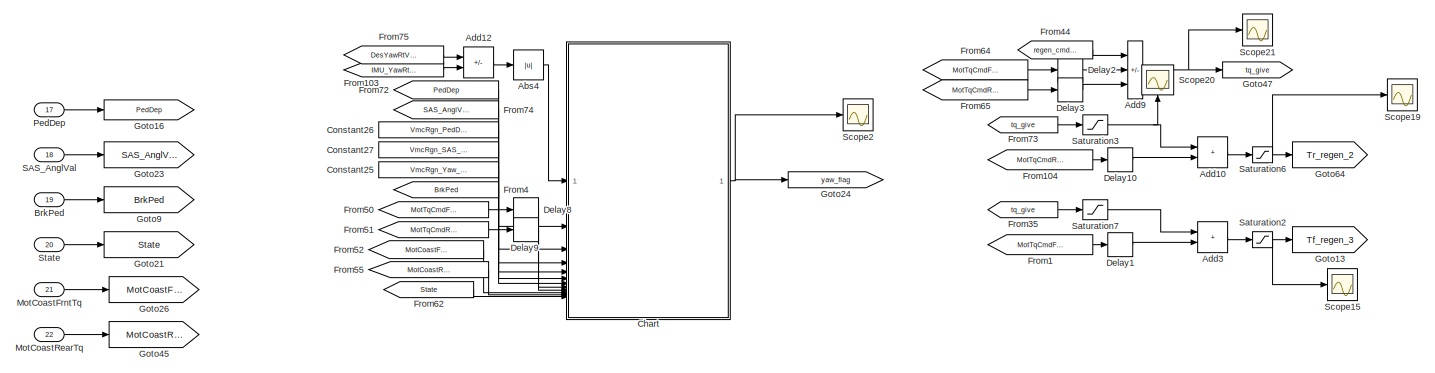
[diagram: Regen, Tb_max1 - part 4/7, middle left region]
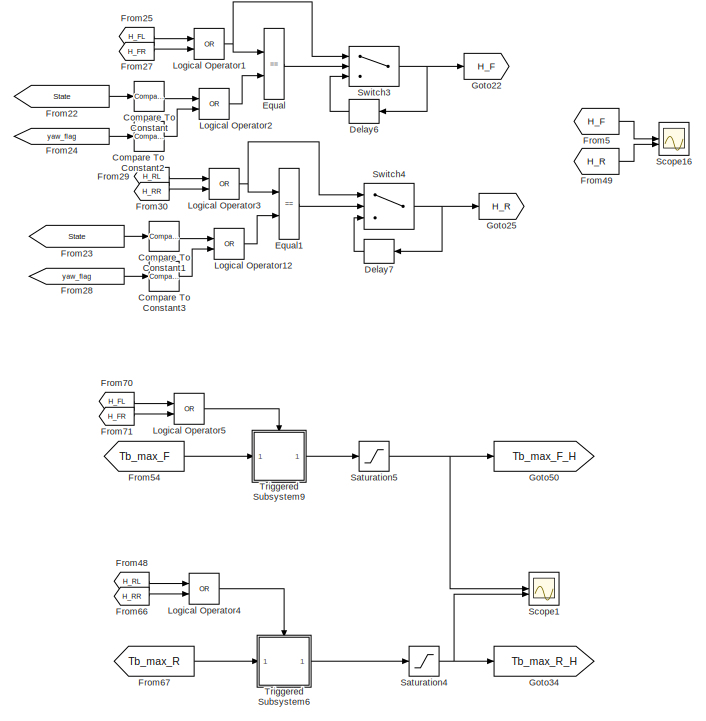
[diagram: Regen, Tb_max1 - part 5/7, central region]
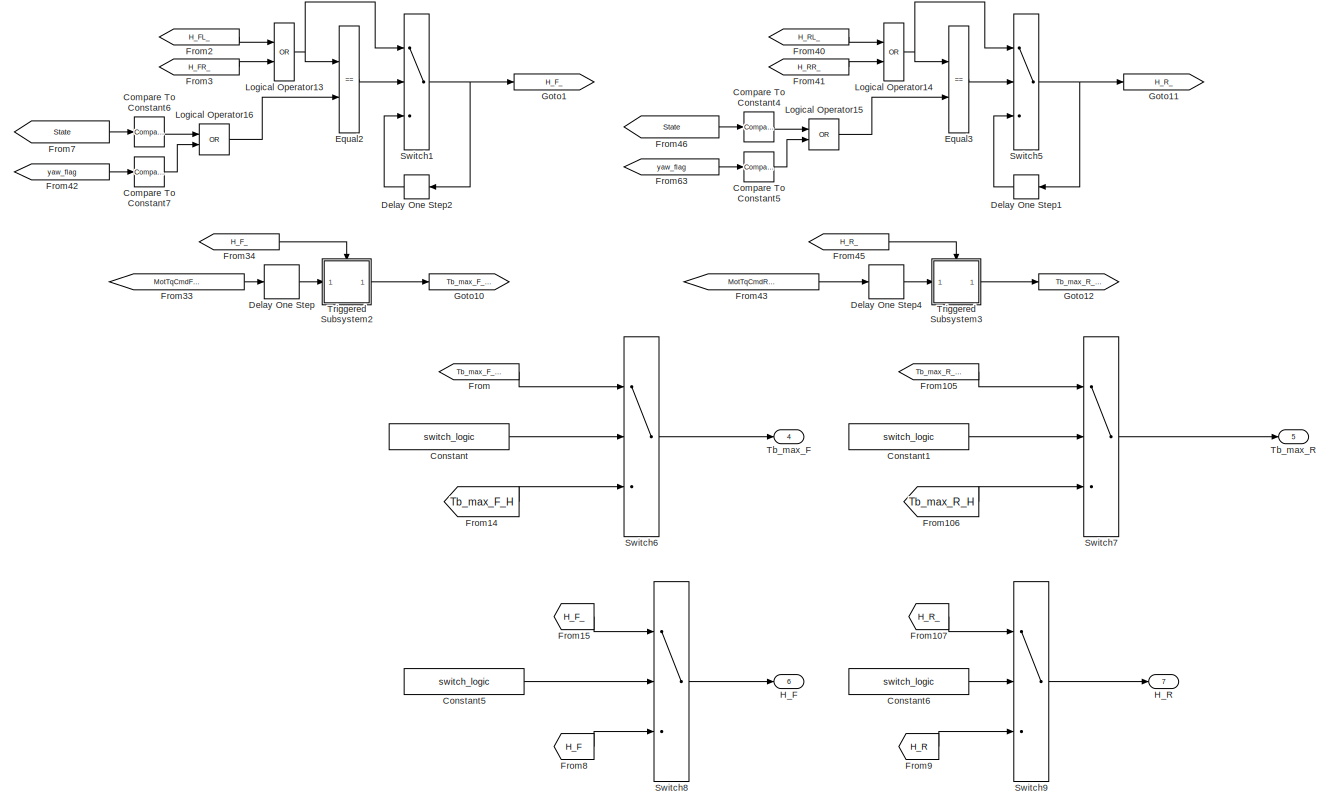
[diagram: Regen, Tb_max1 - part 6/7, bottom left region]
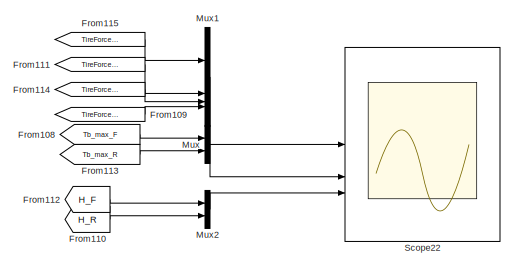
[diagram: Regen, Tb_max1 - part 7/7, bottom right region]
BLOCK [SubSystem] Regen, Tb_max1
BLOCK [Abs] Regen, Tb_max1/Abs1
  Commented = on
  OutDataTypeStr = single
  SaturateOnIntegerOverflow = off
BLOCK [Abs] Regen, Tb_max1/Abs2
  Commented = on
  OutDataTypeStr = Inherit: Inherit via internal rule
  SaturateOnIntegerOverflow = off
BLOCK [Abs] Regen, Tb_max1/Abs4
  OutDataTypeStr = single
  SaturateOnIntegerOverflow = off
BLOCK [Sum] Regen, Tb_max1/Add10
  IconShape = rectangular
  OutDataTypeStr = single
BLOCK [Sum] Regen, Tb_max1/Add11
  IconShape = rectangular
  Inputs = +-
  OutDataTypeStr = single
BLOCK [Sum] Regen, Tb_max1/Add12
  IconShape = rectangular
  Inputs = +-
  OutDataTypeStr = single
BLOCK [Sum] Regen, Tb_max1/Add16
  Commented = on
  IconShape = rectangular
  Inputs = +-
  OutDataTypeStr = single
BLOCK [Sum] Regen, Tb_max1/Add3
  IconShape = rectangular
  OutDataTypeStr = single
BLOCK [Sum] Regen, Tb_max1/Add7
  Commented = on
  IconShape = rectangular
  Inputs = +-
BLOCK [Sum] Regen, Tb_max1/Add9
  IconShape = rectangular
  Inputs = +--
  OutDataTypeStr = single
BLOCK [Inport] Regen, Tb_max1/BrkPed
  Port = 19
BLOCK [SubSystem] Regen, Tb_max1/Chart
  ErrorFcn = Stateflow.Translate.translate
  PermitHierarchicalResolution = ExplicitOnly
  PortSchema = {"entries":[{"content":{"sides":[{"content":{"connectorIds":["In1","In2","In3","In4","In5","In6","In7","In9","In8","In10","In11","In12"]},"type":"ConnectorPlacement.EquallySpacedRectSide","uuid":"75b2ab73-8438-4a11-8d44-3c554863d251"},{"content":{"connectorIds":["Out1"],"side":"RIGHT"},"type":"ConnectorPlacement.EquallySpacedRectSide","uuid":"5aeb794d-9c2f-4121-b9ec-3eb8d952f635"},{"content":{"sid...<+291ch>
  SFBlockType = Chart
  TreatAsAtomicUnit = on
BLOCK [Demux] Regen, Tb_max1/Chart/ Demux 
  Outputs = 1
BLOCK [S-Function] Regen, Tb_max1/Chart/ SFunction 
  EnableBusSupport = on
  FunctionName = sf_sfun
  PortCounts = [12 2]
  SFcnIsStateOwnerBlock = off
  SFunctionDeploymentMode = off
  Tag = Stateflow S-Function 3
BLOCK [Terminator] Regen, Tb_max1/Chart/ Terminator 
BLOCK [Inport] Regen, Tb_max1/Chart/BrkPed
  Port = 7
BLOCK [Inport] Regen, Tb_max1/Chart/MotCoastFrntTq
  Port = 10
BLOCK [Inport] Regen, Tb_max1/Chart/MotCoastRearTq
  Port = 11
BLOCK [Inport] Regen, Tb_max1/Chart/MotTqCmdFrntVal
  Port = 9
BLOCK [Inport] Regen, Tb_max1/Chart/MotTqCmdRearVal
  Port = 8
BLOCK [Inport] Regen, Tb_max1/Chart/PedDep
  Port = 2
BLOCK [Inport] Regen, Tb_max1/Chart/PedDepthrs
  Port = 4
BLOCK [Inport] Regen, Tb_max1/Chart/SASAngle
  Port = 3
BLOCK [Inport] Regen, Tb_max1/Chart/SASthrs
  Port = 5
BLOCK [Outport] Regen, Tb_max1/Chart/YawFlag
BLOCK [Inport] Regen, Tb_max1/Chart/Yawthrs
  Port = 6
BLOCK [Inport] Regen, Tb_max1/Chart/rd_r
BLOCK [Inport] Regen, Tb_max1/Chart/state
  Port = 12
BLOCK [Reference] Regen, Tb_max1/Compare To Constant  REF=simulink/Logic and Bit
Operations/Compare
To Constant
  SourceBlock = simulink/Logic and Bit\nOperations/Compare\nTo Constant
  SourceType = Compare To Constant
BLOCK [Reference] Regen, Tb_max1/Compare To Constant1  REF=simulink/Logic and Bit
Operations/Compare
To Constant
  SourceBlock = simulink/Logic and Bit\nOperations/Compare\nTo Constant
  SourceType = Compare To Constant
BLOCK [Reference] Regen, Tb_max1/Compare To Constant2  REF=simulink/Logic and Bit
Operations/Compare
To Constant
  SourceBlock = simulink/Logic and Bit\nOperations/Compare\nTo Constant
  SourceType = Compare To Constant
BLOCK [Reference] Regen, Tb_max1/Compare To Constant3  REF=simulink/Logic and Bit
Operations/Compare
To Constant
  SourceBlock = simulink/Logic and Bit\nOperations/Compare\nTo Constant
  SourceType = Compare To Constant
BLOCK [Reference] Regen, Tb_max1/Compare To Constant4  REF=simulink/Logic and Bit
Operations/Compare
To Constant
  SourceBlock = simulink/Logic and Bit\nOperations/Compare\nTo Constant
  SourceType = Compare To Constant
BLOCK [Reference] Regen, Tb_max1/Compare To Constant5  REF=simulink/Logic and Bit
Operations/Compare
To Constant
  SourceBlock = simulink/Logic and Bit\nOperations/Compare\nTo Constant
  SourceType = Compare To Constant
BLOCK [Reference] Regen, Tb_max1/Compare To Constant6  REF=simulink/Logic and Bit
Operations/Compare
To Constant
  SourceBlock = simulink/Logic and Bit\nOperations/Compare\nTo Constant
  SourceType = Compare To Constant
BLOCK [Reference] Regen, Tb_max1/Compare To Constant7  REF=simulink/Logic and Bit
Operations/Compare
To Constant
  SourceBlock = simulink/Logic and Bit\nOperations/Compare\nTo Constant
  SourceType = Compare To Constant
BLOCK [Constant] Regen, Tb_max1/Constant
  Value = switch_logic
BLOCK [Constant] Regen, Tb_max1/Constant1
  Value = switch_logic
BLOCK [Constant] Regen, Tb_max1/Constant10
  OutDataTypeStr = single
  Value = VmcRgn_slip_max_C
BLOCK [Constant] Regen, Tb_max1/Constant11
  OutDataTypeStr = single
  Value = VmcRgn_slip_max_C
BLOCK [Constant] Regen, Tb_max1/Constant12
  OutDataTypeStr = single
  Value = VmcRgn_slip_max_C
BLOCK [Constant] Regen, Tb_max1/Constant13
  OutDataTypeStr = single
  Value = VmcRgn_slip_max_C
BLOCK [Constant] Regen, Tb_max1/Constant14
  Commented = on
  OutDataTypeStr = single
  Value = 0
BLOCK [Constant] Regen, Tb_max1/Constant2
  Commented = on
BLOCK [Constant] Regen, Tb_max1/Constant25
  OutDataTypeStr = single
  Value = VmcRgn_Yaw_thrs_C
BLOCK [Constant] Regen, Tb_max1/Constant26
  OutDataTypeStr = single
  Value = VmcRgn_PedDep_thrs_C
BLOCK [Constant] Regen, Tb_max1/Constant27
  OutDataTypeStr = single
  Value = VmcRgn_SAS_thrs_C
BLOCK [Constant] Regen, Tb_max1/Constant3
  Commented = on
  Value = 0
BLOCK [Constant] Regen, Tb_max1/Constant4
  Value = VmcRgn_r_e_C
BLOCK [Constant] Regen, Tb_max1/Constant5
  Value = switch_logic
BLOCK [Constant] Regen, Tb_max1/Constant6
  Value = switch_logic
BLOCK [Constant] Regen, Tb_max1/Constant7
  Commented = on
  OutDataTypeStr = single
BLOCK [Constant] Regen, Tb_max1/Constant8
  Value = VmcRgn_J_C
BLOCK [Constant] Regen, Tb_max1/Constant9
  Value = VmcRgn_target_w_acc_C
BLOCK [Delay] Regen, Tb_max1/Delay One Step
  DelayLength = 1
  InputPortMap = u0
BLOCK [Delay] Regen, Tb_max1/Delay One Step1
  DelayLength = 1
  InputPortMap = u0
  NameLocation = top
BLOCK [Delay] Regen, Tb_max1/Delay One Step2
  DelayLength = 1
  InputPortMap = u0
  NameLocation = top
BLOCK [Delay] Regen, Tb_max1/Delay One Step4
  DelayLength = 1
  InputPortMap = u0
BLOCK [Delay] Regen, Tb_max1/Delay1
  DelayLength = 1
  InputPortMap = u0
BLOCK [Delay] Regen, Tb_max1/Delay10
  DelayLength = 1
  InputPortMap = u0
BLOCK [Delay] Regen, Tb_max1/Delay2
  DelayLength = 1
  InputPortMap = u0
BLOCK [Delay] Regen, Tb_max1/Delay3
  DelayLength = 1
  InputPortMap = u0
BLOCK [Delay] Regen, Tb_max1/Delay4
  DelayLength = 1
  InputPortMap = u0
BLOCK [Delay] Regen, Tb_max1/Delay5
  DelayLength = 1
  InputPortMap = u0
BLOCK [Delay] Regen, Tb_max1/Delay6
  DelayLength = 1
  InputPortMap = u0
BLOCK [Delay] Regen, Tb_max1/Delay7
  DelayLength = 1
  InputPortMap = u0
BLOCK [Delay] Regen, Tb_max1/Delay8
  DelayLength = 1
  InputPortMap = u0
BLOCK [Delay] Regen, Tb_max1/Delay9
  DelayLength = 1
  InputPortMap = u0
BLOCK [Demux] Regen, Tb_max1/Demux2
BLOCK [Inport] Regen, Tb_max1/DesYawRtVal
BLOCK [Product] Regen, Tb_max1/Divide
  Inputs = */
BLOCK [RelationalOperator] Regen, Tb_max1/Equal
  InputSameDT = off
  Operator = ==
  OutDataTypeStr = boolean
  RndMeth = Simplest
BLOCK [RelationalOperator] Regen, Tb_max1/Equal1
  InputSameDT = off
  Operator = ==
  OutDataTypeStr = boolean
  RndMeth = Simplest
BLOCK [RelationalOperator] Regen, Tb_max1/Equal2
  InputSameDT = off
  Operator = ==
  OutDataTypeStr = boolean
  RndMeth = Simplest
BLOCK [RelationalOperator] Regen, Tb_max1/Equal3
  InputSameDT = off
  Operator = ==
  OutDataTypeStr = boolean
  RndMeth = Simplest
BLOCK [From] Regen, Tb_max1/From
  GotoTag = Tb_max_F_H_
BLOCK [From] Regen, Tb_max1/From1
  GotoTag = MotTqCmdFrntVal
BLOCK [From] Regen, Tb_max1/From10
  GotoTag = yaw_flag
BLOCK [From] Regen, Tb_max1/From103
  GotoTag = IMU_YawRtVal
BLOCK [From] Regen, Tb_max1/From104
  GotoTag = MotTqCmdRearVal
BLOCK [From] Regen, Tb_max1/From105
  GotoTag = Tb_max_R_H_
BLOCK [From] Regen, Tb_max1/From106
  GotoTag = Tb_max_R_H
BLOCK [From] Regen, Tb_max1/From107
  GotoTag = H_R_
BLOCK [From] Regen, Tb_max1/From108
  GotoTag = Tb_max_F
BLOCK [From] Regen, Tb_max1/From109
  GotoTag = TireForce_RR
BLOCK [From] Regen, Tb_max1/From11
  GotoTag = Tr_regen_2
BLOCK [From] Regen, Tb_max1/From110
  GotoTag = H_R
BLOCK [From] Regen, Tb_max1/From111
  GotoTag = TireForce_FR
BLOCK [From] Regen, Tb_max1/From112
  GotoTag = H_F
BLOCK [From] Regen, Tb_max1/From113
  GotoTag = Tb_max_R
BLOCK [From] Regen, Tb_max1/From114
  GotoTag = TireForce_RL
BLOCK [From] Regen, Tb_max1/From115
  GotoTag = TireForce_FL
BLOCK [From] Regen, Tb_max1/From12
  Commented = on
  GotoTag = rd_r
BLOCK [From] Regen, Tb_max1/From13
  GotoTag = Tf_regen_3
BLOCK [From] Regen, Tb_max1/From14
  GotoTag = Tb_max_F_H
BLOCK [From] Regen, Tb_max1/From15
  GotoTag = H_F_
BLOCK [From] Regen, Tb_max1/From16
  GotoTag = Tf_regen
BLOCK [From] Regen, Tb_max1/From17
  GotoTag = Tr_regen
BLOCK [From] Regen, Tb_max1/From18
  GotoTag = slip_pred_FR
BLOCK [From] Regen, Tb_max1/From19
  GotoTag = Tb_max_FL
BLOCK [From] Regen, Tb_max1/From2
  GotoTag = H_FL_
BLOCK [From] Regen, Tb_max1/From20
  GotoTag = slip_pred_RL
BLOCK [From] Regen, Tb_max1/From21
  GotoTag = Tb_max_FR
BLOCK [From] Regen, Tb_max1/From22
  GotoTag = State
BLOCK [From] Regen, Tb_max1/From23
  GotoTag = State
BLOCK [From] Regen, Tb_max1/From24
  GotoTag = yaw_flag
BLOCK [From] Regen, Tb_max1/From25
  GotoTag = H_FL
BLOCK [From] Regen, Tb_max1/From26
  GotoTag = Tb_max_RL
BLOCK [From] Regen, Tb_max1/From27
  GotoTag = H_FR
BLOCK [From] Regen, Tb_max1/From28
  GotoTag = yaw_flag
BLOCK [From] Regen, Tb_max1/From29
  GotoTag = H_RL
BLOCK [From] Regen, Tb_max1/From3
  GotoTag = H_FR_
BLOCK [From] Regen, Tb_max1/From30
  GotoTag = H_RR
BLOCK [From] Regen, Tb_max1/From31
  GotoTag = mot2whl
BLOCK [From] Regen, Tb_max1/From32
  GotoTag = Tb_max_RR
BLOCK [From] Regen, Tb_max1/From33
  GotoTag = MotTqCmdFrntVal
BLOCK [From] Regen, Tb_max1/From34
  GotoTag = H_F_
BLOCK [From] Regen, Tb_max1/From35
  GotoTag = tq_give
BLOCK [From] Regen, Tb_max1/From36
  Commented = on
  GotoTag = DesYawRtVal
BLOCK [From] Regen, Tb_max1/From37
  Commented = on
  GotoTag = IMU_YawRtVal
BLOCK [From] Regen, Tb_max1/From38
  Commented = on
  GotoTag = DesYawRtVal
BLOCK [From] Regen, Tb_max1/From39
  Commented = on
  GotoTag = IMU_YawRtVal
BLOCK [From] Regen, Tb_max1/From4
  GotoTag = BrkPed
BLOCK [From] Regen, Tb_max1/From40
  GotoTag = H_RL_
BLOCK [From] Regen, Tb_max1/From41
  GotoTag = H_RR_
BLOCK [From] Regen, Tb_max1/From42
  GotoTag = yaw_flag
BLOCK [From] Regen, Tb_max1/From43
  GotoTag = MotTqCmdRearVal
BLOCK [From] Regen, Tb_max1/From44
  GotoTag = regen_cmd_tq
BLOCK [From] Regen, Tb_max1/From45
  GotoTag = H_R_
BLOCK [From] Regen, Tb_max1/From46
  GotoTag = State
BLOCK [From] Regen, Tb_max1/From47
  GotoTag = slip_pred_RR
BLOCK [From] Regen, Tb_max1/From48
  GotoTag = H_RL
BLOCK [From] Regen, Tb_max1/From49
  GotoTag = H_R
BLOCK [From] Regen, Tb_max1/From5
  GotoTag = H_F
BLOCK [From] Regen, Tb_max1/From50
  GotoTag = MotTqCmdFrntVal
BLOCK [From] Regen, Tb_max1/From51
  GotoTag = MotTqCmdRearVal
BLOCK [From] Regen, Tb_max1/From52
  GotoTag = MotCoastFrntTq
BLOCK [From] Regen, Tb_max1/From53
  GotoTag = slip_pred_FL
BLOCK [From] Regen, Tb_max1/From54
  GotoTag = Tb_max_F
BLOCK [From] Regen, Tb_max1/From55
  GotoTag = MotCoastRearTq
BLOCK [From] Regen, Tb_max1/From56
  Commented = on
  GotoTag = DesYawRtVal
BLOCK [From] Regen, Tb_max1/From57
  Commented = on
  GotoTag = IMU_YawRtVal
BLOCK [From] Regen, Tb_max1/From58
  Commented = on
  GotoTag = DesYawRtVal
BLOCK [From] Regen, Tb_max1/From59
  GotoTag = TireForce_FL
BLOCK [From] Regen, Tb_max1/From6
  Commented = on
  GotoTag = rd_r
BLOCK [From] Regen, Tb_max1/From60
  GotoTag = TireForce_FR
BLOCK [From] Regen, Tb_max1/From61
  Commented = on
  GotoTag = IMU_YawRtVal
BLOCK [From] Regen, Tb_max1/From62
  GotoTag = State
BLOCK [From] Regen, Tb_max1/From63
  GotoTag = yaw_flag
BLOCK [From] Regen, Tb_max1/From64
  GotoTag = MotTqCmdFrntVal
BLOCK [From] Regen, Tb_max1/From65
  GotoTag = MotTqCmdRearVal
BLOCK [From] Regen, Tb_max1/From66
  GotoTag = H_RR
BLOCK [From] Regen, Tb_max1/From67
  GotoTag = Tb_max_R
BLOCK [From] Regen, Tb_max1/From68
  GotoTag = TireForce_RL
BLOCK [From] Regen, Tb_max1/From69
  GotoTag = TireForce_RR
BLOCK [From] Regen, Tb_max1/From7
  GotoTag = State
BLOCK [From] Regen, Tb_max1/From70
  GotoTag = H_FL
BLOCK [From] Regen, Tb_max1/From71
  GotoTag = H_FR
BLOCK [From] Regen, Tb_max1/From72
  GotoTag = PedDep
BLOCK [From] Regen, Tb_max1/From73
  GotoTag = tq_give
BLOCK [From] Regen, Tb_max1/From74
  GotoTag = SAS_AnglVal
BLOCK [From] Regen, Tb_max1/From75
  GotoTag = DesYawRtVal
BLOCK [From] Regen, Tb_max1/From76
  GotoTag = MotTqCmdFrntVal
BLOCK [From] Regen, Tb_max1/From77
  GotoTag = MotTqCmdRearVal
BLOCK [From] Regen, Tb_max1/From78
  GotoTag = MotCoastFrntTq
BLOCK [From] Regen, Tb_max1/From79
  GotoTag = MotCoastRearTq
BLOCK [From] Regen, Tb_max1/From8
  GotoTag = H_F
BLOCK [From] Regen, Tb_max1/From9
  GotoTag = H_R
BLOCK [Gain] Regen, Tb_max1/Gain4
  Gain = VmcRgn_slip_max_gain_F_C
  OutDataTypeStr = single
BLOCK [Gain] Regen, Tb_max1/Gain5
  Gain = VmcRgn_slip_max_gain_F_C
  OutDataTypeStr = single
BLOCK [Gain] Regen, Tb_max1/Gain6
  Gain = VmcRgn_slip_max_gain_R_C
  OutDataTypeStr = single
BLOCK [Gain] Regen, Tb_max1/Gain7
  Gain = VmcRgn_slip_max_gain_R_C
  OutDataTypeStr = single
BLOCK [Goto] Regen, Tb_max1/Goto
  GotoTag = TireForce_FL
BLOCK [Goto] Regen, Tb_max1/Goto1
  GotoTag = H_F_
BLOCK [Goto] Regen, Tb_max1/Goto10
  GotoTag = Tb_max_F_H_
BLOCK [Goto] Regen, Tb_max1/Goto11
  GotoTag = H_R_
BLOCK [Goto] Regen, Tb_max1/Goto12
  GotoTag = Tb_max_R_H_
BLOCK [Goto] Regen, Tb_max1/Goto13
  GotoTag = Tf_regen_3
BLOCK [Goto] Regen, Tb_max1/Goto14
  GotoTag = TireForce_FR
BLOCK [Goto] Regen, Tb_max1/Goto15
  GotoTag = TireForce_RL
BLOCK [Goto] Regen, Tb_max1/Goto16
  GotoTag = PedDep
BLOCK [Goto] Regen, Tb_max1/Goto17
  GotoTag = Tb_max_FL
BLOCK [Goto] Regen, Tb_max1/Goto18
  GotoTag = Tb_max_FR
BLOCK [Goto] Regen, Tb_max1/Goto19
  GotoTag = Tb_max_RL
BLOCK [Goto] Regen, Tb_max1/Goto2
  Commented = on
  GotoTag = yaw_flag
BLOCK [Goto] Regen, Tb_max1/Goto20
  GotoTag = Tb_max_RR
BLOCK [Goto] Regen, Tb_max1/Goto21
  GotoTag = State
BLOCK [Goto] Regen, Tb_max1/Goto22
  GotoTag = H_F
BLOCK [Goto] Regen, Tb_max1/Goto23
  GotoTag = SAS_AnglVal
BLOCK [Goto] Regen, Tb_max1/Goto24
  GotoTag = yaw_flag
BLOCK [Goto] Regen, Tb_max1/Goto25
  GotoTag = H_R
BLOCK [Goto] Regen, Tb_max1/Goto26
  GotoTag = MotCoastFrntTq
BLOCK [Goto] Regen, Tb_max1/Goto27
  Commented = on
  GotoTag = yaw_flag
BLOCK [Goto] Regen, Tb_max1/Goto28
  Commented = on
  GotoTag = rd_r
BLOCK [Goto] Regen, Tb_max1/Goto3
  GotoTag = SlipCtrlFrntTq
BLOCK [Goto] Regen, Tb_max1/Goto31
  GotoTag = MotTqCmdFrntVal
BLOCK [Goto] Regen, Tb_max1/Goto32
  GotoTag = MotTqCmdRearVal
BLOCK [Goto] Regen, Tb_max1/Goto33
  GotoTag = Tb_max_F
BLOCK [Goto] Regen, Tb_max1/Goto34
  GotoTag = Tb_max_R_H
BLOCK [Goto] Regen, Tb_max1/Goto35
  GotoTag = H_FL
BLOCK [Goto] Regen, Tb_max1/Goto36
  GotoTag = H_FR
BLOCK [Goto] Regen, Tb_max1/Goto37
  GotoTag = H_FL_
BLOCK [Goto] Regen, Tb_max1/Goto38
  GotoTag = H_FR_
BLOCK [Goto] Regen, Tb_max1/Goto39
  GotoTag = H_RL_
BLOCK [Goto] Regen, Tb_max1/Goto4
  GotoTag = DesYawRtVal
BLOCK [Goto] Regen, Tb_max1/Goto40
  GotoTag = H_RR_
BLOCK [Goto] Regen, Tb_max1/Goto41
  GotoTag = H_RL
BLOCK [Goto] Regen, Tb_max1/Goto42
  GotoTag = slip_pred_FL
BLOCK [Goto] Regen, Tb_max1/Goto43
  GotoTag = H_RR
BLOCK [Goto] Regen, Tb_max1/Goto44
  GotoTag = slip_pred_FR
BLOCK [Goto] Regen, Tb_max1/Goto45
  GotoTag = MotCoastRearTq
BLOCK [Goto] Regen, Tb_max1/Goto46
  GotoTag = slip_pred_RL
BLOCK [Goto] Regen, Tb_max1/Goto47
  GotoTag = tq_give
BLOCK [Goto] Regen, Tb_max1/Goto48
  GotoTag = slip_pred_RR
BLOCK [Goto] Regen, Tb_max1/Goto49
  GotoTag = mot2whl
BLOCK [Goto] Regen, Tb_max1/Goto5
  GotoTag = IMU_YawRtVal
BLOCK [Goto] Regen, Tb_max1/Goto50
  GotoTag = Tb_max_F_H
BLOCK [Goto] Regen, Tb_max1/Goto51
  GotoTag = Tb_max_R
BLOCK [Goto] Regen, Tb_max1/Goto6
  GotoTag = SlipCtrlRearTq
BLOCK [Goto] Regen, Tb_max1/Goto64
  GotoTag = Tr_regen_2
BLOCK [Goto] Regen, Tb_max1/Goto65
  GotoTag = TireForce_RR
BLOCK [Goto] Regen, Tb_max1/Goto7
  GotoTag = regen_cmd_tq
BLOCK [Goto] Regen, Tb_max1/Goto8
  Commented = on
  GotoTag = rd_r
BLOCK [Goto] Regen, Tb_max1/Goto9
  GotoTag = BrkPed
BLOCK [Outport] Regen, Tb_max1/H_F
  Port = 6
BLOCK [Inport] Regen, Tb_max1/H_FL
  Port = 23
BLOCK [Inport] Regen, Tb_max1/H_FR
  Port = 24
BLOCK [Outport] Regen, Tb_max1/H_R
  Port = 7
BLOCK [Inport] Regen, Tb_max1/H_RL
  Port = 25
BLOCK [Inport] Regen, Tb_max1/H_RR
  Port = 26
BLOCK [Inport] Regen, Tb_max1/IMU_YawRtVal
  Port = 2
BLOCK [Logic] Regen, Tb_max1/Logical Operator1
  AllPortsSameDT = off
  Operator = OR
  OutDataTypeStr = boolean
BLOCK [Logic] Regen, Tb_max1/Logical Operator12
  AllPortsSameDT = off
  Operator = OR
  OutDataTypeStr = boolean
BLOCK [Logic] Regen, Tb_max1/Logical Operator13
  AllPortsSameDT = off
  Operator = OR
  OutDataTypeStr = boolean
BLOCK [Logic] Regen, Tb_max1/Logical Operator14
  AllPortsSameDT = off
  Operator = OR
  OutDataTypeStr = boolean
BLOCK [Logic] Regen, Tb_max1/Logical Operator15
  AllPortsSameDT = off
  Operator = OR
  OutDataTypeStr = boolean
BLOCK [Logic] Regen, Tb_max1/Logical Operator16
  AllPortsSameDT = off
  Operator = OR
  OutDataTypeStr = boolean
BLOCK [Logic] Regen, Tb_max1/Logical Operator2
  AllPortsSameDT = off
  Operator = OR
  OutDataTypeStr = boolean
BLOCK [Logic] Regen, Tb_max1/Logical Operator3
  AllPortsSameDT = off
  Operator = OR
  OutDataTypeStr = boolean
BLOCK [Logic] Regen, Tb_max1/Logical Operator4
  AllPortsSameDT = off
  Operator = OR
  OutDataTypeStr = boolean
BLOCK [Logic] Regen, Tb_max1/Logical Operator5
  AllPortsSameDT = off
  Operator = OR
  OutDataTypeStr = boolean
BLOCK [MinMax] Regen, Tb_max1/Max2
  Function = max
  Inputs = 2
  OutDataTypeStr = single
BLOCK [MinMax] Regen, Tb_max1/Max3
  Function = max
  Inputs = 2
  OutDataTypeStr = single
BLOCK [Inport] Regen, Tb_max1/MotCoastFrntTq
  Port = 21
BLOCK [Inport] Regen, Tb_max1/MotCoastRearTq
  Port = 22
BLOCK [Inport] Regen, Tb_max1/MotTqCmdFrntVal
  Port = 15
BLOCK [Inport] Regen, Tb_max1/MotTqCmdRearVal
  Port = 16
BLOCK [Mux] Regen, Tb_max1/Mux
  DisplayOption = bar
  Inputs = 2
BLOCK [Mux] Regen, Tb_max1/Mux1
  DisplayOption = bar
BLOCK [Mux] Regen, Tb_max1/Mux12
  DisplayOption = bar
BLOCK [Mux] Regen, Tb_max1/Mux2
  DisplayOption = bar
  Inputs = 2
BLOCK [Inport] Regen, Tb_max1/PedDep
  Port = 17
BLOCK [Product] Regen, Tb_max1/Product10
  OutDataTypeStr = single
BLOCK [Product] Regen, Tb_max1/Product9
  OutDataTypeStr = single
BLOCK [RelationalOperator] Regen, Tb_max1/Relational Operator5
  InputSameDT = off
  Operator = <
  OutDataTypeStr = boolean
  RndMeth = Simplest
BLOCK [RelationalOperator] Regen, Tb_max1/Relational Operator6
  InputSameDT = off
  Operator = <
  OutDataTypeStr = boolean
  RndMeth = Simplest
BLOCK [RelationalOperator] Regen, Tb_max1/Relational Operator7
  InputSameDT = off
  Operator = <
  OutDataTypeStr = boolean
  RndMeth = Simplest
BLOCK [RelationalOperator] Regen, Tb_max1/Relational Operator8
  InputSameDT = off
  Operator = <
  OutDataTypeStr = boolean
  RndMeth = Simplest
BLOCK [Inport] Regen, Tb_max1/SAS_AnglVal
  Port = 18
BLOCK [Saturate] Regen, Tb_max1/Saturation2
  LowerLimit = -1000
  UpperLimit = 0
BLOCK [Saturate] Regen, Tb_max1/Saturation3
  LowerLimit = -5
  UpperLimit = 5
BLOCK [Saturate] Regen, Tb_max1/Saturation4
  LowerLimit = -1000
  OutDataTypeStr = single
  UpperLimit = 0
BLOCK [Saturate] Regen, Tb_max1/Saturation5
  LowerLimit = -1000
  OutDataTypeStr = single
  UpperLimit = 0
BLOCK [Saturate] Regen, Tb_max1/Saturation6
  LowerLimit = -1000
  UpperLimit = 0
BLOCK [Saturate] Regen, Tb_max1/Saturation7
  LowerLimit = -5
  UpperLimit = 5
BLOCK [Scope] Regen, Tb_max1/Scope
  Commented = on
  Floating = off
  NumInputPorts = 1
  ScopeSpecificationString = Simulink.scopes.TimeScopeBlockCfg('CurrentConfiguration', extmgr.ConfigurationSet(extmgr.Configuration('Core','General UI',true),extmgr.Configuration('Core','Source UI',true),extmgr.Configuration('Sources','WiredSimulink',true,'DataLoggingVariableName','ScopeData1'),extmgr.Configuration('Visuals','Time Domain',true,'SerializedDisplays',{struct('MinYLimReal','-0.125','MaxYLimReal','1.125','YLabelRe...<+1510ch>
BLOCK [Scope] Regen, Tb_max1/Scope1
  Floating = off
  NumInputPorts = 2
  ScopeSpecificationString = Simulink.scopes.TimeScopeBlockCfg('CurrentConfiguration', extmgr.ConfigurationSet(extmgr.Configuration('Core','General UI',true,'FigureColor',[1 1 1]),extmgr.Configuration('Core','Source UI',true),extmgr.Configuration('Sources','WiredSimulink',true,'DataLoggingVariableName','ScopeData1'),extmgr.Configuration('Visuals','Time Domain',true,'SerializedDisplays',{struct('MinYLimReal','-119.78806','MaxY...<+1692ch>
BLOCK [Scope] Regen, Tb_max1/Scope12
  Floating = off
  NumInputPorts = 4
  ScopeSpecificationString = Simulink.scopes.TimeScopeBlockCfg('CurrentConfiguration', extmgr.ConfigurationSet(extmgr.Configuration('Core','General UI',true,'FigureColor',[1 1 1]),extmgr.Configuration('Core','Source UI',true),extmgr.Configuration('Sources','WiredSimulink',true,'DataLoggingVariableName','ScopeData1'),extmgr.Configuration('Visuals','Time Domain',true,'SerializedDisplays',{struct('MinYLimReal','-1425.83453','Max...<+1918ch>
BLOCK [Scope] Regen, Tb_max1/Scope13
  Floating = off
  NumInputPorts = 4
  ScopeSpecificationString = Simulink.scopes.TimeScopeBlockCfg('CurrentConfiguration', extmgr.ConfigurationSet(extmgr.Configuration('Core','General UI',true,'FigureColor',[1 1 1]),extmgr.Configuration('Core','Source UI',true),extmgr.Configuration('Sources','WiredSimulink',true,'DataLoggingVariableName','ScopeData2'),extmgr.Configuration('Visuals','Time Domain',true,'SerializedDisplays',{struct('MinYLimReal','-102.81158','MaxY...<+1865ch>
BLOCK [Scope] Regen, Tb_max1/Scope14
  Commented = on
  Floating = off
  NumInputPorts = 2
  ScopeSpecificationString = Simulink.scopes.TimeScopeBlockCfg('CurrentConfiguration', extmgr.ConfigurationSet(extmgr.Configuration('Core','General UI',true),extmgr.Configuration('Core','Source UI',true),extmgr.Configuration('Sources','WiredSimulink',true,'DataLoggingVariableName','ScopeData30'),extmgr.Configuration('Visuals','Time Domain',true),extmgr.Configuration('Tools','Plot Navigation',true),extmgr.Configuration('Tools'...<+41ch>
BLOCK [Scope] Regen, Tb_max1/Scope15
  Floating = off
  NumInputPorts = 1
  ScopeSpecificationString = Simulink.scopes.TimeScopeBlockCfg('CurrentConfiguration', extmgr.ConfigurationSet(extmgr.Configuration('Core','General UI',true),extmgr.Configuration('Core','Source UI',true),extmgr.Configuration('Sources','WiredSimulink',true,'DataLoggingVariableName','ScopeData6'),extmgr.Configuration('Visuals','Time Domain',true,'SerializedDisplays',{struct('MinYLimReal','-106.7605','MaxYLimReal','0.65966','YLa...<+1451ch>
BLOCK [Scope] Regen, Tb_max1/Scope16
  Floating = off
  NumInputPorts = 2
  ScopeSpecificationString = Simulink.scopes.TimeScopeBlockCfg('CurrentConfiguration', extmgr.ConfigurationSet(extmgr.Configuration('Core','General UI',true,'FigureColor',[1 1 1]),extmgr.Configuration('Core','Source UI',true),extmgr.Configuration('Sources','WiredSimulink',true,'DataLoggingVariableName','ScopeData5'),extmgr.Configuration('Visuals','Time Domain',true,'SerializedDisplays',{struct('MinYLimReal','-0.06308','MaxYLi...<+1684ch>
BLOCK [Scope] Regen, Tb_max1/Scope19
  Floating = off
  NumInputPorts = 1
  ScopeSpecificationString = Simulink.scopes.TimeScopeBlockCfg('CurrentConfiguration', extmgr.ConfigurationSet(extmgr.Configuration('Core','General UI',true),extmgr.Configuration('Core','Source UI',true),extmgr.Configuration('Sources','WiredSimulink',true,'DataLoggingVariableName','ScopeData1'),extmgr.Configuration('Visuals','Time Domain',true,'SerializedDisplays',{struct('MinYLimReal','-185.54238','MaxYLimReal','5.55815','YL...<+1457ch>
BLOCK [Scope] Regen, Tb_max1/Scope2
  Floating = off
  NumInputPorts = 1
  ScopeSpecificationString = Simulink.scopes.TimeScopeBlockCfg('CurrentConfiguration', extmgr.ConfigurationSet(extmgr.Configuration('Core','General UI',true),extmgr.Configuration('Core','Source UI',true),extmgr.Configuration('Sources','WiredSimulink',true,'DataLoggingVariableName','ScopeData2'),extmgr.Configuration('Visuals','Time Domain',true,'SerializedDisplays',{struct('MinYLimReal','-0.25','MaxYLimReal','2.25','YLabelReal...<+1509ch>
BLOCK [Scope] Regen, Tb_max1/Scope20
  Floating = off
  NameLocation = right
  NumInputPorts = 1
  ScopeSpecificationString = Simulink.scopes.TimeScopeBlockCfg('CurrentConfiguration', extmgr.ConfigurationSet(extmgr.Configuration('Core','General UI',true),extmgr.Configuration('Core','Source UI',true),extmgr.Configuration('Sources','WiredSimulink',true,'DataLoggingVariableName','ScopeData2'),extmgr.Configuration('Visuals','Time Domain',true,'SerializedDisplays',{struct('MinYLimReal','-6.25','MaxYLimReal','6.25','YLabelReal...<+1352ch>
BLOCK [Scope] Regen, Tb_max1/Scope21
  Floating = off
  NumInputPorts = 1
  ScopeSpecificationString = Simulink.scopes.TimeScopeBlockCfg('CurrentConfiguration', extmgr.ConfigurationSet(extmgr.Configuration('Core','General UI',true),extmgr.Configuration('Core','Source UI',true),extmgr.Configuration('Sources','WiredSimulink',true,'DataLoggingVariableName','ScopeData3'),extmgr.Configuration('Visuals','Time Domain',true,'SerializedDisplays',{struct('MinYLimReal','-211.43447','MaxYLimReal','192.9415','Y...<+1405ch>
BLOCK [Scope] Regen, Tb_max1/Scope22
  Floating = off
  NumInputPorts = 3
  ScopeSpecificationString = Simulink.scopes.TimeScopeBlockCfg('CurrentConfiguration', extmgr.ConfigurationSet(extmgr.Configuration('Core','General UI',true,'FigureColor',[1 1 1]),extmgr.Configuration('Core','Source UI',true),extmgr.Configuration('Sources','WiredSimulink',true,'DataLoggingVariableName','ScopeData2'),extmgr.Configuration('Visuals','Time Domain',true,'SerializedDisplays',{struct('MinYLimReal','-1457.30593','Max...<+4377ch>
BLOCK [Scope] Regen, Tb_max1/Scope3
  Commented = on
  Floating = off
  NumInputPorts = 1
  ScopeSpecificationString = Simulink.scopes.TimeScopeBlockCfg('CurrentConfiguration', extmgr.ConfigurationSet(extmgr.Configuration('Core','General UI',true),extmgr.Configuration('Core','Source UI',true),extmgr.Configuration('Sources','WiredSimulink',true,'DataLoggingVariableName','ScopeData22'),extmgr.Configuration('Visuals','Time Domain',true,'SerializedDisplays',{struct('MinYLimReal','-0.125','MaxYLimReal','1.125','YLabelR...<+1569ch>
BLOCK [Scope] Regen, Tb_max1/Scope4
  Floating = off
  NumInputPorts = 2
  ScopeSpecificationString = Simulink.scopes.TimeScopeBlockCfg('CurrentConfiguration', extmgr.ConfigurationSet(extmgr.Configuration('Core','General UI',true),extmgr.Configuration('Core','Source UI',true),extmgr.Configuration('Sources','WiredSimulink',true,'DataLoggingVariableName','ScopeData3'),extmgr.Configuration('Visuals','Time Domain',true,'SerializedDisplays',{struct('MinYLimReal','-91.96236','MaxYLimReal','73.82264','YL...<+1547ch>
BLOCK [Scope] Regen, Tb_max1/Scope5
  Commented = on
  Floating = off
  NumInputPorts = 2
  ScopeSpecificationString = Simulink.scopes.TimeScopeBlockCfg('CurrentConfiguration', extmgr.ConfigurationSet(extmgr.Configuration('Core','General UI',true),extmgr.Configuration('Core','Source UI',true),extmgr.Configuration('Sources','WiredSimulink',true,'DataLoggingVariableName','ScopeData23'),extmgr.Configuration('Visuals','Time Domain',true,'SerializedDisplays',{struct('MinYLimReal','-0.125','MaxYLimReal','1.125','YLabelR...<+1356ch>
BLOCK [Scope] Regen, Tb_max1/Scope6
  Floating = off
  NumInputPorts = 2
  ScopeSpecificationString = Simulink.scopes.TimeScopeBlockCfg('CurrentConfiguration', extmgr.ConfigurationSet(extmgr.Configuration('Core','General UI',true,'FigureColor',[1 1 1]),extmgr.Configuration('Core','Source UI',true),extmgr.Configuration('Sources','WiredSimulink',true,'DataLoggingVariableName','ScopeData2'),extmgr.Configuration('Visuals','Time Domain',true,'SerializedDisplays',{struct('MinYLimReal','-100.99901','MaxY...<+1694ch>
BLOCK [Scope] Regen, Tb_max1/Scope7
  Commented = on
  Floating = off
  NumInputPorts = 1
  ScopeSpecificationString = Simulink.scopes.TimeScopeBlockCfg('CurrentConfiguration', extmgr.ConfigurationSet(extmgr.Configuration('Core','General UI',true),extmgr.Configuration('Core','Source UI',true),extmgr.Configuration('Sources','WiredSimulink',true,'DataLoggingVariableName','ScopeData24'),extmgr.Configuration('Visuals','Time Domain',true,'SerializedDisplays',{struct('MinYLimReal','-0.3869','MaxYLimReal','3.48207','YLab...<+1450ch>
BLOCK [Scope] Regen, Tb_max1/Scope8
  Commented = on
  Floating = off
  NumInputPorts = 2
  ScopeSpecificationString = Simulink.scopes.TimeScopeBlockCfg('CurrentConfiguration', extmgr.ConfigurationSet(extmgr.Configuration('Core','General UI',true),extmgr.Configuration('Core','Source UI',true),extmgr.Configuration('Sources','WiredSimulink',true,'DataLoggingVariableName','ScopeData2'),extmgr.Configuration('Visuals','Time Domain',true,'SerializedDisplays',{struct('MinYLimReal','-0.18349','MaxYLimReal','0.28526','YLab...<+1721ch>
BLOCK [Scope] Regen, Tb_max1/Scope9
  Commented = on
  Floating = off
  NumInputPorts = 2
  ScopeSpecificationString = Simulink.scopes.TimeScopeBlockCfg('CurrentConfiguration', extmgr.ConfigurationSet(extmgr.Configuration('Core','General UI',true),extmgr.Configuration('Core','Source UI',true),extmgr.Configuration('Sources','WiredSimulink',true,'DataLoggingVariableName','ScopeData25'),extmgr.Configuration('Visuals','Time Domain',true,'SerializedDisplays',{struct('MinYLimReal','-0.18349','MaxYLimReal','0.28526','YLa...<+1811ch>
BLOCK [Inport] Regen, Tb_max1/SlipCtrlFrntTq
  Port = 13
BLOCK [Inport] Regen, Tb_max1/SlipCtrlRearTq
  Port = 14
BLOCK [Inport] Regen, Tb_max1/State
  Port = 20
BLOCK [Sum] Regen, Tb_max1/Subtract
  IconShape = rectangular
  Inputs = +-
BLOCK [Sum] Regen, Tb_max1/Subtract1
  IconShape = rectangular
  Inputs = +-
BLOCK [Switch] Regen, Tb_max1/Switch
  Commented = on
  Criteria = u2 > Threshold
  InputSameDT = off
  OutDataTypeStr = single
  SaturateOnIntegerOverflow = off
  Threshold = 0.05
BLOCK [Switch] Regen, Tb_max1/Switch1
  Criteria = u2 > Threshold
  InputSameDT = off
  SaturateOnIntegerOverflow = off
BLOCK [Switch] Regen, Tb_max1/Switch2
  Commented = on
  Criteria = u2 > Threshold
  InputSameDT = off
  OutDataTypeStr = single
  SaturateOnIntegerOverflow = off
  Threshold = yaw_flag
BLOCK [Switch] Regen, Tb_max1/Switch3
  Criteria = u2 > Threshold
  InputSameDT = off
  SaturateOnIntegerOverflow = off
BLOCK [Switch] Regen, Tb_max1/Switch4
  Criteria = u2 > Threshold
  InputSameDT = off
  SaturateOnIntegerOverflow = off
BLOCK [Switch] Regen, Tb_max1/Switch5
  Criteria = u2 > Threshold
  InputSameDT = off
  SaturateOnIntegerOverflow = off
BLOCK [Switch] Regen, Tb_max1/Switch6
  Criteria = u2 > Threshold
  InputSameDT = off
  SaturateOnIntegerOverflow = off
  Threshold = 1
BLOCK [Switch] Regen, Tb_max1/Switch7
  Criteria = u2 > Threshold
  InputSameDT = off
  SaturateOnIntegerOverflow = off
  Threshold = 1
BLOCK [Switch] Regen, Tb_max1/Switch8
  Criteria = u2 > Threshold
  InputSameDT = off
  SaturateOnIntegerOverflow = off
  Threshold = 1
BLOCK [Switch] Regen, Tb_max1/Switch9
  Criteria = u2 > Threshold
  InputSameDT = off
  SaturateOnIntegerOverflow = off
  Threshold = 1
BLOCK [Outport] Regen, Tb_max1/Tb_max_F
  Port = 4
BLOCK [Outport] Regen, Tb_max1/Tb_max_R
  Port = 5
BLOCK [Outport] Regen, Tb_max1/Tf_regen
  Port = 8
BLOCK [Outport] Regen, Tb_max1/Tf_regen_3
  Port = 3
BLOCK [Inport] Regen, Tb_max1/TireForce_FL
  Port = 4
BLOCK [Inport] Regen, Tb_max1/TireForce_FR
  Port = 5
BLOCK [Inport] Regen, Tb_max1/TireForce_RL
  Port = 6
BLOCK [Inport] Regen, Tb_max1/TireForce_RR
  Port = 7
BLOCK [Outport] Regen, Tb_max1/Tr_regen
  Port = 9
BLOCK [Outport] Regen, Tb_max1/Tr_regen_2
  Port = 2
BLOCK [SubSystem] Regen, Tb_max1/Triggered Subsystem2
  TreatAsAtomicUnit = on
BLOCK [Inport] Regen, Tb_max1/Triggered Subsystem2/In1
BLOCK [Outport] Regen, Tb_max1/Triggered Subsystem2/Out1
BLOCK [TriggerPort] Regen, Tb_max1/Triggered Subsystem2/Trigger
  StatesWhenEnabling = held
  VariantControl = (inherit)
BLOCK [SubSystem] Regen, Tb_max1/Triggered Subsystem3
  TreatAsAtomicUnit = on
BLOCK [Inport] Regen, Tb_max1/Triggered Subsystem3/In1
BLOCK [Outport] Regen, Tb_max1/Triggered Subsystem3/Out1
BLOCK [TriggerPort] Regen, Tb_max1/Triggered Subsystem3/Trigger
  StatesWhenEnabling = held
  VariantControl = (inherit)
BLOCK [SubSystem] Regen, Tb_max1/Triggered Subsystem6
  TreatAsAtomicUnit = on
BLOCK [Inport] Regen, Tb_max1/Triggered Subsystem6/In1
BLOCK [Outport] Regen, Tb_max1/Triggered Subsystem6/Out1
BLOCK [TriggerPort] Regen, Tb_max1/Triggered Subsystem6/Trigger
  StatesWhenEnabling = held
  VariantControl = (inherit)
BLOCK [SubSystem] Regen, Tb_max1/Triggered Subsystem9
  TreatAsAtomicUnit = on
BLOCK [Inport] Regen, Tb_max1/Triggered Subsystem9/In1
BLOCK [Outport] Regen, Tb_max1/Triggered Subsystem9/Out1
BLOCK [TriggerPort] Regen, Tb_max1/Triggered Subsystem9/Trigger
  StatesWhenEnabling = held
  VariantControl = (inherit)
BLOCK [Inport] Regen, Tb_max1/mot2whl
  Port = 12
BLOCK [Inport] Regen, Tb_max1/regen_cmd_tq
  Port = 3
BLOCK [Inport] Regen, Tb_max1/slip_pred_FL
  Port = 8
BLOCK [Inport] Regen, Tb_max1/slip_pred_FR
  Port = 9
BLOCK [Inport] Regen, Tb_max1/slip_pred_RL
  Port = 10
BLOCK [Inport] Regen, Tb_max1/slip_pred_RR
  Port = 11
BLOCK [Outport] Regen, Tb_max1/yaw_flag
BLOCK [Scope] Scope
  Floating = off
  NumInputPorts = 2
  ScopeSpecificationString = Simulink.scopes.TimeScopeBlockCfg('CurrentConfiguration', extmgr.ConfigurationSet(extmgr.Configuration('Core','General UI',true,'FigureColor',[1 1 1]),extmgr.Configuration('Core','Source UI',true),extmgr.Configuration('Sources','WiredSimulink',true,'DataLoggingVariableName','ScopeData1'),extmgr.Configuration('Visuals','Time Domain',true,'SerializedDisplays',{struct('MinYLimReal','-0.125','MaxYLimR...<+1714ch>
BLOCK [Scope] Scope1
  Floating = off
  NumInputPorts = 1
  ScopeSpecificationString = Simulink.scopes.TimeScopeBlockCfg('CurrentConfiguration', extmgr.ConfigurationSet(extmgr.Configuration('Core','General UI',true,'FigureColor',[1 1 1]),extmgr.Configuration('Core','Source UI',true),extmgr.Configuration('Sources','WiredSimulink',true,'DataLoggingVariableName','ScopeData2'),extmgr.Configuration('Visuals','Time Domain',true,'SerializedDisplays',{struct('MinYLimReal','-707.15625','MaxY...<+1747ch>
BLOCK [Scope] Scope10
  Floating = off
  NumInputPorts = 4
  ScopeSpecificationString = Simulink.scopes.TimeScopeBlockCfg('CurrentConfiguration', extmgr.ConfigurationSet(extmgr.Configuration('Core','General UI',true),extmgr.Configuration('Core','Source UI',true),extmgr.Configuration('Sources','WiredSimulink',true,'DataLoggingVariableName','ScopeData5'),extmgr.Configuration('Visuals','Time Domain',true,'SerializedDisplays',{struct('MinYLimReal','-95.68048','MaxYLimReal','-38.56021','Y...<+1599ch>
BLOCK [Scope] Scope11
  Floating = off
  NumInputPorts = 2
  ScopeSpecificationString = Simulink.scopes.TimeScopeBlockCfg('CurrentConfiguration', extmgr.ConfigurationSet(extmgr.Configuration('Core','General UI',true),extmgr.Configuration('Core','Source UI',true),extmgr.Configuration('Sources','WiredSimulink',true,'DataLoggingVariableName','ScopeData4'),extmgr.Configuration('Visuals','Time Domain',true,'SerializedDisplays',{struct('MinYLimReal','-155.3911','MaxYLimReal','-11.99229','Y...<+1460ch>
BLOCK [Scope] Scope12
  Floating = off
  NumInputPorts = 1
  ScopeSpecificationString = Simulink.scopes.TimeScopeBlockCfg('CurrentConfiguration', extmgr.ConfigurationSet(extmgr.Configuration('Core','General UI',true),extmgr.Configuration('Core','Source UI',true),extmgr.Configuration('Sources','WiredSimulink',true,'DataLoggingVariableName','ScopeData5'),extmgr.Configuration('Visuals','Time Domain',true),extmgr.Configuration('Tools','Plot Navigation',true),extmgr.Configuration('Tools',...<+40ch>
BLOCK [Scope] Scope13
  Floating = off
  NumInputPorts = 1
  ScopeSpecificationString = Simulink.scopes.TimeScopeBlockCfg('CurrentConfiguration', extmgr.ConfigurationSet(extmgr.Configuration('Core','General UI',true,'FigureColor',[1 1 1]),extmgr.Configuration('Core','Source UI',true),extmgr.Configuration('Sources','WiredSimulink',true,'DataLoggingVariableName','ScopeData1'),extmgr.Configuration('Visuals','Time Domain',true,'SerializedDisplays',{struct('MinYLimReal','-0.29988','MaxYLi...<+2123ch>
BLOCK [Scope] Scope14
  Floating = off
  NumInputPorts = 1
  ScopeSpecificationString = Simulink.scopes.TimeScopeBlockCfg('CurrentConfiguration', extmgr.ConfigurationSet(extmgr.Configuration('Core','General UI',true,'FigureColor',[1 1 1]),extmgr.Configuration('Core','Source UI',true),extmgr.Configuration('Sources','WiredSimulink',true,'DataLoggingVariableName','ScopeData3'),extmgr.Configuration('Visuals','Time Domain',true,'SerializedDisplays',{struct('MinYLimReal','-40.57031','MaxYL...<+1594ch>
BLOCK [Scope] Scope15
  Floating = off
  NumInputPorts = 1
  ScopeSpecificationString = Simulink.scopes.TimeScopeBlockCfg('CurrentConfiguration', extmgr.ConfigurationSet(extmgr.Configuration('Core','General UI',true,'FigureColor',[1 1 1]),extmgr.Configuration('Core','Source UI',true),extmgr.Configuration('Sources','WiredSimulink',true,'DataLoggingVariableName','ScopeData4'),extmgr.Configuration('Visuals','Time Domain',true,'SerializedDisplays',{struct('MinYLimReal','-307.85547','MaxY...<+1544ch>
BLOCK [Scope] Scope16
  Floating = off
  NumInputPorts = 1
  ScopeSpecificationString = Simulink.scopes.TimeScopeBlockCfg('CurrentConfiguration', extmgr.ConfigurationSet(extmgr.Configuration('Core','General UI',true,'FigureColor',[1 1 1]),extmgr.Configuration('Core','Source UI',true),extmgr.Configuration('Sources','WiredSimulink',true,'DataLoggingVariableName','ScopeData5'),extmgr.Configuration('Visuals','Time Domain',true,'SerializedDisplays',{struct('MinYLimReal','-5.62134','MaxYLi...<+1530ch>
BLOCK [Scope] Scope17
  Floating = off
  NumInputPorts = 8
  ScopeSpecificationString = Simulink.scopes.TimeScopeBlockCfg('CurrentConfiguration', extmgr.ConfigurationSet(extmgr.Configuration('Core','General UI',true,'FigureColor',[1 1 1]),extmgr.Configuration('Core','Source UI',true),extmgr.Configuration('Sources','WiredSimulink',true,'DataLoggingVariableName','ScopeData6'),extmgr.Configuration('Visuals','Time Domain',true,'SerializedDisplays',{struct('MinYLimReal','-125.5625','MaxYL...<+9286ch>
BLOCK [Scope] Scope18
  Floating = off
  NumInputPorts = 1
  ScopeSpecificationString = Simulink.scopes.TimeScopeBlockCfg('CurrentConfiguration', extmgr.ConfigurationSet(extmgr.Configuration('Core','General UI',true),extmgr.Configuration('Core','Source UI',true),extmgr.Configuration('Sources','WiredSimulink',true,'DataLoggingVariableName','ScopeData7'),extmgr.Configuration('Visuals','Time Domain',true),extmgr.Configuration('Tools','Plot Navigation',true),extmgr.Configuration('Tools',...<+40ch>
BLOCK [Scope] Scope19
  Floating = off
  NumInputPorts = 3
  ScopeSpecificationString = Simulink.scopes.TimeScopeBlockCfg('CurrentConfiguration', extmgr.ConfigurationSet(extmgr.Configuration('Core','General UI',true,'FigureColor',[1 1 1]),extmgr.Configuration('Core','Source UI',true),extmgr.Configuration('Sources','WiredSimulink',true,'DataLoggingVariableName','ScopeData1'),extmgr.Configuration('Visuals','Time Domain',true,'SerializedDisplays',{struct('MinYLimReal','-90','MaxYLimReal...<+4116ch>
BLOCK [Scope] Scope2
  Floating = off
  NumInputPorts = 1
  ScopeSpecificationString = Simulink.scopes.TimeScopeBlockCfg('CurrentConfiguration', extmgr.ConfigurationSet(extmgr.Configuration('Core','General UI',true),extmgr.Configuration('Core','Source UI',true),extmgr.Configuration('Sources','WiredSimulink',true,'DataLoggingVariableName','ScopeData3'),extmgr.Configuration('Visuals','Time Domain',true,'SerializedDisplays',{struct('MinYLimReal','-707.15625','MaxYLimReal','229.40625','...<+1508ch>
BLOCK [Scope] Scope3
  Floating = off
  NumInputPorts = 8
  ScopeSpecificationString = Simulink.scopes.TimeScopeBlockCfg('CurrentConfiguration', extmgr.ConfigurationSet(extmgr.Configuration('Core','General UI',true,'FigureColor',[1 1 1]),extmgr.Configuration('Core','Source UI',true),extmgr.Configuration('Sources','WiredSimulink',true,'DataLoggingVariableName','ScopeData4'),extmgr.Configuration('Visuals','Time Domain',true,'SerializedDisplays',{struct('MinYLimReal','-9.48486','MaxYLi...<+10103ch>
BLOCK [Scope] Scope4
  Floating = off
  NumInputPorts = 9
  ScopeSpecificationString = Simulink.scopes.TimeScopeBlockCfg('CurrentConfiguration', extmgr.ConfigurationSet(extmgr.Configuration('Core','General UI',true,'FigureColor',[1 1 1]),extmgr.Configuration('Core','Source UI',true),extmgr.Configuration('Sources','WiredSimulink',true,'DataLoggingVariableName','ScopeData1'),extmgr.Configuration('Visuals','Time Domain',true,'SerializedDisplays',{struct('MinYLimReal','-162.8125','MaxYL...<+10194ch>
BLOCK [Scope] Scope5
  Commented = on
  Floating = off
  NumInputPorts = 1
  ScopeSpecificationString = Simulink.scopes.TimeScopeBlockCfg('CurrentConfiguration', extmgr.ConfigurationSet(extmgr.Configuration('Core','General UI',true),extmgr.Configuration('Core','Source UI',true),extmgr.Configuration('Sources','WiredSimulink',true,'DataLoggingVariableName','ScopeData2'),extmgr.Configuration('Visuals','Time Domain',true,'SerializedDisplays',{struct('MinYLimReal','-104.10868','MaxYLimReal','-36.4389','Y...<+1541ch>
BLOCK [Scope] Scope6
  Floating = off
  NumInputPorts = 2
  ScopeSpecificationString = Simulink.scopes.TimeScopeBlockCfg('CurrentConfiguration', extmgr.ConfigurationSet(extmgr.Configuration('Core','General UI',true),extmgr.Configuration('Core','Source UI',true),extmgr.Configuration('Sources','WiredSimulink',true,'DataLoggingVariableName','ScopeData1'),extmgr.Configuration('Visuals','Time Domain',true,'SerializedDisplays',{struct('MinYLimReal','-0.0591','MaxYLimReal','4.07053','YLabe...<+1463ch>
BLOCK [Scope] Scope7
  Floating = off
  NumInputPorts = 2
  ScopeSpecificationString = Simulink.scopes.TimeScopeBlockCfg('CurrentConfiguration', extmgr.ConfigurationSet(extmgr.Configuration('Core','General UI',true),extmgr.Configuration('Core','Source UI',true),extmgr.Configuration('Sources','WiredSimulink',true,'DataLoggingVariableName','ScopeData2'),extmgr.Configuration('Visuals','Time Domain',true,'SerializedDisplays',{struct('MinYLimReal','-0.125','MaxYLimReal','1.125','YLabelRe...<+1387ch>
BLOCK [Scope] Scope8
  Floating = off
  NumInputPorts = 2
  ScopeSpecificationString = Simulink.scopes.TimeScopeBlockCfg('CurrentConfiguration', extmgr.ConfigurationSet(extmgr.Configuration('Core','General UI',true),extmgr.Configuration('Core','Source UI',true),extmgr.Configuration('Sources','WiredSimulink',true,'DataLoggingVariableName','ScopeData3'),extmgr.Configuration('Visuals','Time Domain',true,'SerializedDisplays',{struct('MinYLimReal','-0.08358','MaxYLimReal','0.1709','YLabe...<+1439ch>
BLOCK [Scope] Scope9
  Floating = off
  NumInputPorts = 5
  ScopeSpecificationString = Simulink.scopes.TimeScopeBlockCfg('CurrentConfiguration', extmgr.ConfigurationSet(extmgr.Configuration('Core','General UI',true),extmgr.Configuration('Core','Source UI',true),extmgr.Configuration('Sources','WiredSimulink',true,'DataLoggingVariableName','ScopeData4'),extmgr.Configuration('Visuals','Time Domain',true,'SerializedDisplays',{struct('MinYLimReal','-39.96381','MaxYLimReal','2.17251','YLa...<+1581ch>
BLOCK [SubSystem] Slip Control State1
BLOCK [Sum] Slip Control State1/Add
  IconShape = rectangular
BLOCK [Sum] Slip Control State1/Add1
  IconShape = rectangular
  Inputs = -+
BLOCK [Sum] Slip Control State1/Add2
  IconShape = rectangular
  Inputs = +-
BLOCK [Sum] Slip Control State1/Add3
  IconShape = rectangular
  Inputs = +-
BLOCK [Sum] Slip Control State1/Add4
  IconShape = rectangular
  Inputs = +-
BLOCK [Sum] Slip Control State1/Add5
  IconShape = rectangular
  Inputs = +-
BLOCK [Sum] Slip Control State1/Add6
  IconShape = rectangular
  Inputs = +-
BLOCK [Sum] Slip Control State1/Add7
  IconShape = rectangular
BLOCK [Inport] Slip Control State1/BrkPedDep
  Port = 14
BLOCK [Inport] Slip Control State1/CoastFrntTq
BLOCK [Inport] Slip Control State1/CoastRearTq
  Port = 2
BLOCK [Reference] Slip Control State1/Compare To Constant  REF=simulink/Logic and Bit
Operations/Compare
To Constant
  SourceBlock = simulink/Logic and Bit\nOperations/Compare\nTo Constant
  SourceType = Compare To Constant
BLOCK [Reference] Slip Control State1/Compare To Constant1  REF=simulink/Logic and Bit
Operations/Compare
To Constant
  SourceBlock = simulink/Logic and Bit\nOperations/Compare\nTo Constant
  SourceType = Compare To Constant
BLOCK [Reference] Slip Control State1/Compare To Constant2  REF=simulink/Logic and Bit
Operations/Compare
To Constant
  SourceBlock = simulink/Logic and Bit\nOperations/Compare\nTo Constant
  SourceType = Compare To Constant
BLOCK [Reference] Slip Control State1/Compare To Constant3  REF=simulink/Logic and Bit
Operations/Compare
To Constant
  SourceBlock = simulink/Logic and Bit\nOperations/Compare\nTo Constant
  SourceType = Compare To Constant
BLOCK [Constant] Slip Control State1/Constant
  OutDataTypeStr = single
  Value = VmcRgn_sup_tq_C
BLOCK [Constant] Slip Control State1/Constant1
  OutDataTypeStr = single
  Value = VmcRgn_sup_tq_C
BLOCK [Constant] Slip Control State1/Constant2
  Value = VmcRgn_PedDep_thrs_C
BLOCK [DataTypeConversion] Slip Control State1/Data Type Conversion
  OutDataTypeStr = single
  RndMeth = Floor
  SaturateOnIntegerOverflow = off
BLOCK [DataTypeConversion] Slip Control State1/Data Type Conversion1
  OutDataTypeStr = single
  RndMeth = Floor
  SaturateOnIntegerOverflow = off
BLOCK [DataTypeConversion] Slip Control State1/Data Type Conversion2
  OutDataTypeStr = single
  RndMeth = Floor
  SaturateOnIntegerOverflow = off
BLOCK [Delay] Slip Control State1/Delay One Step8
  DelayLength = 1
  InputPortMap = u0
BLOCK [Delay] Slip Control State1/Delay One Step9
  DelayLength = 1
  InputPortMap = u0
BLOCK [Demux] Slip Control State1/Demux
  Outputs = 2
BLOCK [Inport] Slip Control State1/FrntCmdTq
  Port = 12
BLOCK [From] Slip Control State1/From
  GotoTag = RegenCmdTq
BLOCK [From] Slip Control State1/From1
  GotoTag = CoastFrntTq
BLOCK [From] Slip Control State1/From10
  GotoTag = SlipPhaseFL
BLOCK [From] Slip Control State1/From11
  GotoTag = State
BLOCK [From] Slip Control State1/From12
  GotoTag = tq_F_1
BLOCK [From] Slip Control State1/From13
  GotoTag = tq_F_1
BLOCK [From] Slip Control State1/From14
  GotoTag = tq_F_2
BLOCK [From] Slip Control State1/From15
  GotoTag = tq_F_3
BLOCK [From] Slip Control State1/From16
  GotoTag = tq_F_4
BLOCK [From] Slip Control State1/From17
  GotoTag = State
BLOCK [From] Slip Control State1/From18
  GotoTag = tq_R_1
BLOCK [From] Slip Control State1/From19
  GotoTag = tq_R_1
BLOCK [From] Slip Control State1/From2
  GotoTag = CoastRearTq
BLOCK [From] Slip Control State1/From20
  GotoTag = tq_R_2
BLOCK [From] Slip Control State1/From21
  GotoTag = tq_R_3
BLOCK [From] Slip Control State1/From22
  GotoTag = tq_R_4
BLOCK [From] Slip Control State1/From23
  GotoTag = SlipCtrlRearTq
BLOCK [From] Slip Control State1/From24
  GotoTag = SlipCtrlFrntTq
BLOCK [From] Slip Control State1/From25
  GotoTag = SlipCtrlFrntTq
BLOCK [From] Slip Control State1/From26
  GotoTag = State
BLOCK [From] Slip Control State1/From27
  GotoTag = SlipCtrlRearTq
BLOCK [From] Slip Control State1/From28
  GotoTag = TqCtrlFL
BLOCK [From] Slip Control State1/From29
  GotoTag = TqCtrlFR
BLOCK [From] Slip Control State1/From3
  GotoTag = SlipPhaseFR
BLOCK [From] Slip Control State1/From30
  GotoTag = SlipPhaseFL
BLOCK [From] Slip Control State1/From31
  GotoTag = SlipPhaseFR
BLOCK [From] Slip Control State1/From32
  GotoTag = TqCtrlRR
BLOCK [From] Slip Control State1/From33
  GotoTag = CoastFrntTq
BLOCK [From] Slip Control State1/From34
  GotoTag = SlipPhaseRL
BLOCK [From] Slip Control State1/From35
  GotoTag = SlipPhaseRR
BLOCK [From] Slip Control State1/From36
  GotoTag = CoastRearTq
BLOCK [From] Slip Control State1/From37
  GotoTag = RegenCmdTq
BLOCK [From] Slip Control State1/From38
  GotoTag = FrntTq
BLOCK [From] Slip Control State1/From39
  GotoTag = RearTq
BLOCK [From] Slip Control State1/From4
  GotoTag = SlipPhaseRL
BLOCK [From] Slip Control State1/From40
  GotoTag = FrntCmdTq
BLOCK [From] Slip Control State1/From41
  GotoTag = RearCmdTq
BLOCK [From] Slip Control State1/From42
  GotoTag = BrkPedDep
BLOCK [From] Slip Control State1/From43
  GotoTag = SlipPhaseFL
BLOCK [From] Slip Control State1/From44
  GotoTag = SlipPhaseFR
BLOCK [From] Slip Control State1/From45
  GotoTag = SlipPhaseRL
BLOCK [From] Slip Control State1/From46
  GotoTag = SlipPhaseRR
BLOCK [From] Slip Control State1/From47
  GotoTag = FrntTq
BLOCK [From] Slip Control State1/From48
  GotoTag = RearTq
BLOCK [From] Slip Control State1/From5
  GotoTag = SlipPhaseRR
BLOCK [From] Slip Control State1/From6
  GotoTag = PedDep
BLOCK [From] Slip Control State1/From7
  GotoTag = TqCtrlRL
BLOCK [From] Slip Control State1/From8
  GotoTag = FrntTq
BLOCK [From] Slip Control State1/From9
  GotoTag = RearTq
BLOCK [Goto] Slip Control State1/Goto
  GotoTag = State
BLOCK [Goto] Slip Control State1/Goto1
  GotoTag = SlipCtrlRearTq
BLOCK [Goto] Slip Control State1/Goto10
  GotoTag = tq_R_4
BLOCK [Goto] Slip Control State1/Goto11
  GotoTag = SlipCtrlFrntTq
BLOCK [Goto] Slip Control State1/Goto12
  GotoTag = tq_R_2
BLOCK [Goto] Slip Control State1/Goto13
  GotoTag = RearTq
BLOCK [Goto] Slip Control State1/Goto14
  GotoTag = CoastRearTq
BLOCK [Goto] Slip Control State1/Goto15
  GotoTag = TqCtrlFL
BLOCK [Goto] Slip Control State1/Goto16
  GotoTag = TqCtrlFR
BLOCK [Goto] Slip Control State1/Goto17
  GotoTag = TqCtrlRL
BLOCK [Goto] Slip Control State1/Goto18
  GotoTag = TqCtrlRR
BLOCK [Goto] Slip Control State1/Goto19
  GotoTag = SlipPhaseFL
BLOCK [Goto] Slip Control State1/Goto2
  GotoTag = CoastFrntTq
BLOCK [Goto] Slip Control State1/Goto20
  GotoTag = SlipPhaseFR
BLOCK [Goto] Slip Control State1/Goto21
  GotoTag = SlipPhaseRL
BLOCK [Goto] Slip Control State1/Goto22
  GotoTag = SlipPhaseRR
BLOCK [Goto] Slip Control State1/Goto23
  GotoTag = PedDep
BLOCK [Goto] Slip Control State1/Goto24
  GotoTag = RegenCmdTq
BLOCK [Goto] Slip Control State1/Goto25
  GotoTag = FrntCmdTq
BLOCK [Goto] Slip Control State1/Goto26
  GotoTag = RearCmdTq
BLOCK [Goto] Slip Control State1/Goto27
  GotoTag = BrkPedDep
BLOCK [Goto] Slip Control State1/Goto3
  GotoTag = tq_F_1
BLOCK [Goto] Slip Control State1/Goto4
  GotoTag = tq_R_1
BLOCK [Goto] Slip Control State1/Goto5
  GotoTag = tq_F_2
BLOCK [Goto] Slip Control State1/Goto6
  GotoTag = FrntTq
BLOCK [Goto] Slip Control State1/Goto7
  GotoTag = tq_F_3
BLOCK [Goto] Slip Control State1/Goto8
  GotoTag = tq_R_3
BLOCK [Goto] Slip Control State1/Goto9
  GotoTag = tq_F_4
BLOCK [Logic] Slip Control State1/Logical Operator
  AllPortsSameDT = off
  Operator = OR
  OutDataTypeStr = boolean
BLOCK [Logic] Slip Control State1/Logical Operator1
  AllPortsSameDT = off
  Operator = OR
  OutDataTypeStr = boolean
BLOCK [MultiPortSwitch] Slip Control State1/Multiport Switch
  DataPortOrder = Zero-based contiguous
  InputSameDT = off
  Inputs = 5
  SaturateOnIntegerOverflow = off
  zeroidx = on
BLOCK [MultiPortSwitch] Slip Control State1/Multiport Switch1
  DataPortOrder = Zero-based contiguous
  InputSameDT = off
  Inputs = 5
  SaturateOnIntegerOverflow = off
  zeroidx = on
BLOCK [Mux] Slip Control State1/Mux
  DisplayOption = bar
  Inputs = 2
BLOCK [Mux] Slip Control State1/Mux1
  DisplayOption = bar
  Inputs = 2
BLOCK [Inport] Slip Control State1/PedDep
  Port = 11
BLOCK [Inport] Slip Control State1/RearCmdTq
  Port = 13
BLOCK [RelationalOperator] Slip Control State1/Relational Operator
  InputSameDT = off
  OutDataTypeStr = boolean
  RndMeth = Simplest
BLOCK [Scope] Slip Control State1/Scope
  Floating = off
  NumInputPorts = 2
  ScopeSpecificationString = Simulink.scopes.TimeScopeBlockCfg('CurrentConfiguration', extmgr.ConfigurationSet(extmgr.Configuration('Core','General UI',true),extmgr.Configuration('Core','Source UI',true),extmgr.Configuration('Sources','WiredSimulink',true,'DataLoggingVariableName','ScopeData2'),extmgr.Configuration('Visuals','Time Domain',true,'SerializedDisplays',{struct('MinYLimReal','-756.53862','MaxYLimReal','673.29643','...<+1490ch>
BLOCK [Scope] Slip Control State1/Scope1
  Floating = off
  NumInputPorts = 1
  ScopeSpecificationString = Simulink.scopes.TimeScopeBlockCfg('CurrentConfiguration', extmgr.ConfigurationSet(extmgr.Configuration('Core','General UI',true,'FigureColor',[1 1 1]),extmgr.Configuration('Core','Source UI',true),extmgr.Configuration('Sources','WiredSimulink',true,'DataLoggingVariableName','ScopeData3'),extmgr.Configuration('Visuals','Time Domain',true,'SerializedDisplays',{struct('MinYLimReal','-0.13402','MaxYLi...<+1553ch>
BLOCK [Outport] Slip Control State1/SlipCtrlFrntTq
  Port = 2
BLOCK [Outport] Slip Control State1/SlipCtrlRearTq
  Port = 3
BLOCK [Inport] Slip Control State1/SlipPhaseFL
  Port = 7
BLOCK [Inport] Slip Control State1/SlipPhaseFR
  Port = 8
BLOCK [Inport] Slip Control State1/SlipPhaseRL
  Port = 9
BLOCK [Inport] Slip Control State1/SlipPhaseRR
  Port = 10
BLOCK [SubSystem] Slip Control State1/Slip_Stateflow
  ErrorFcn = Stateflow.Translate.translate
  PermitHierarchicalResolution = ExplicitOnly
  SFBlockType = Chart
  TreatAsAtomicUnit = on
BLOCK [Demux] Slip Control State1/Slip_Stateflow/ Demux 
  Outputs = 1
BLOCK [S-Function] Slip Control State1/Slip_Stateflow/ SFunction 
  EnableBusSupport = on
  FunctionName = sf_sfun
  PortCounts = [7 2]
  SFcnIsStateOwnerBlock = off
  SFunctionDeploymentMode = off
  Tag = Stateflow S-Function 1
BLOCK [Terminator] Slip Control State1/Slip_Stateflow/ Terminator 
BLOCK [Inport] Slip Control State1/Slip_Stateflow/BrkPedDep
  Port = 7
BLOCK [Inport] Slip Control State1/Slip_Stateflow/PedThrs
  Port = 6
BLOCK [Inport] Slip Control State1/Slip_Stateflow/ph_FL
BLOCK [Inport] Slip Control State1/Slip_Stateflow/ph_FR
  Port = 2
BLOCK [Inport] Slip Control State1/Slip_Stateflow/ph_RL
  Port = 3
BLOCK [Inport] Slip Control State1/Slip_Stateflow/ph_RR
  Port = 4
BLOCK [Outport] Slip Control State1/Slip_Stateflow/state
BLOCK [Inport] Slip Control State1/Slip_Stateflow/throttle
  Port = 5
BLOCK [Outport] Slip Control State1/State
BLOCK [SubSystem] Slip Control State1/Subsystem
BLOCK [From] Slip Control State1/Subsystem/From
  GotoTag = Phs_L
BLOCK [From] Slip Control State1/Subsystem/From1
  GotoTag = Tq_L
BLOCK [From] Slip Control State1/Subsystem/From2
  GotoTag = Tq_L
BLOCK [From] Slip Control State1/Subsystem/From3
  GotoTag = Phs_R
BLOCK [From] Slip Control State1/Subsystem/From4
  GotoTag = Tq_R
BLOCK [From] Slip Control State1/Subsystem/From6
  GotoTag = Tq_R
BLOCK [Goto] Slip Control State1/Subsystem/Goto
  GotoTag = Phs_L
BLOCK [Goto] Slip Control State1/Subsystem/Goto1
  GotoTag = Tq_L
BLOCK [Goto] Slip Control State1/Subsystem/Goto2
  GotoTag = Phs_R
BLOCK [Goto] Slip Control State1/Subsystem/Goto3
  GotoTag = Tq_R
BLOCK [MinMax] Slip Control State1/Subsystem/Max
  Function = max
  Inputs = 2
BLOCK [Inport] Slip Control State1/Subsystem/Phs_L
BLOCK [Inport] Slip Control State1/Subsystem/Phs_R
  Port = 3
BLOCK [Switch] Slip Control State1/Subsystem/Switch
  Criteria = u2 > Threshold
  InputSameDT = off
  SaturateOnIntegerOverflow = off
  Threshold = 1
BLOCK [Switch] Slip Control State1/Subsystem/Switch1
  Criteria = u2 > Threshold
  InputSameDT = off
  SaturateOnIntegerOverflow = off
  Threshold = 1
BLOCK [Outport] Slip Control State1/Subsystem/Tq
BLOCK [Inport] Slip Control State1/Subsystem/Tq_L
  Port = 2
BLOCK [Inport] Slip Control State1/Subsystem/Tq_R
  Port = 4
BLOCK [SubSystem] Slip Control State1/Subsystem1
BLOCK [From] Slip Control State1/Subsystem1/From
  GotoTag = Phs_L
BLOCK [From] Slip Control State1/Subsystem1/From1
  GotoTag = Tq_L
BLOCK [From] Slip Control State1/Subsystem1/From2
  GotoTag = Tq_L
BLOCK [From] Slip Control State1/Subsystem1/From3
  GotoTag = Phs_R
BLOCK [From] Slip Control State1/Subsystem1/From4
  GotoTag = Tq_R
BLOCK [From] Slip Control State1/Subsystem1/From6
  GotoTag = Tq_R
BLOCK [Goto] Slip Control State1/Subsystem1/Goto
  GotoTag = Phs_L
BLOCK [Goto] Slip Control State1/Subsystem1/Goto1
  GotoTag = Tq_L
BLOCK [Goto] Slip Control State1/Subsystem1/Goto2
  GotoTag = Phs_R
BLOCK [Goto] Slip Control State1/Subsystem1/Goto3
  GotoTag = Tq_R
BLOCK [MinMax] Slip Control State1/Subsystem1/Max
  Function = max
  Inputs = 2
BLOCK [Inport] Slip Control State1/Subsystem1/Phs_L
BLOCK [Inport] Slip Control State1/Subsystem1/Phs_R
  Port = 3
BLOCK [Switch] Slip Control State1/Subsystem1/Switch
  Criteria = u2 > Threshold
  InputSameDT = off
  SaturateOnIntegerOverflow = off
  Threshold = 1
BLOCK [Switch] Slip Control State1/Subsystem1/Switch1
  Criteria = u2 > Threshold
  InputSameDT = off
  SaturateOnIntegerOverflow = off
  Threshold = 1
BLOCK [Outport] Slip Control State1/Subsystem1/Tq
BLOCK [Inport] Slip Control State1/Subsystem1/Tq_L
  Port = 2
BLOCK [Inport] Slip Control State1/Subsystem1/Tq_R
  Port = 4
BLOCK [Switch] Slip Control State1/Switch
  Criteria = u2 > Threshold
  InputSameDT = off
  SaturateOnIntegerOverflow = off
BLOCK [Switch] Slip Control State1/Switch1
  Criteria = u2 > Threshold
  InputSameDT = off
  SaturateOnIntegerOverflow = off
BLOCK [Switch] Slip Control State1/Switch2
  Criteria = u2 > Threshold
  InputSameDT = off
  SaturateOnIntegerOverflow = off
BLOCK [Switch] Slip Control State1/Switch3
  Criteria = u2 > Threshold
  InputSameDT = off
  SaturateOnIntegerOverflow = off
BLOCK [Switch] Slip Control State1/Switch4
  Criteria = u2 > Threshold
  InputSameDT = off
  SaturateOnIntegerOverflow = off
BLOCK [Inport] Slip Control State1/TqCtrlFL
  Port = 3
BLOCK [Inport] Slip Control State1/TqCtrlFR
  Port = 4
BLOCK [Inport] Slip Control State1/TqCtrlRL
  LockScale = on
  Port = 5
BLOCK [Inport] Slip Control State1/TqCtrlRR
  Port = 6
BLOCK [SubSystem] SlipCtrlFL
BLOCK [Sum] SlipCtrlFL/Add
  IconShape = rectangular
  Inputs = +-
BLOCK [Sum] SlipCtrlFL/Add1
  IconShape = rectangular
BLOCK [Sum] SlipCtrlFL/Add2
  IconShape = rectangular
BLOCK [Sum] SlipCtrlFL/Add3
  IconShape = rectangular
BLOCK [Sum] SlipCtrlFL/Add4
  IconShape = rectangular
BLOCK [Sum] SlipCtrlFL/Add5
  IconShape = rectangular
BLOCK [Sum] SlipCtrlFL/Add6
  IconShape = rectangular
  Inputs = +-
BLOCK [Sum] SlipCtrlFL/Add7
  IconShape = rectangular
  Inputs = -+
BLOCK [Sum] SlipCtrlFL/Add8
  IconShape = rectangular
BLOCK [Sum] SlipCtrlFL/Add9
  IconShape = rectangular
  Inputs = +-
BLOCK [Inport] SlipCtrlFL/CoastTq
  Port = 5
BLOCK [RelationalOperator] SlipCtrlFL/Compare
  Operator = ==
  OutDataTypeStr = boolean
BLOCK [Reference] SlipCtrlFL/Compare To Constant  REF=simulink/Logic and Bit
Operations/Compare
To Constant
  SourceBlock = simulink/Logic and Bit\nOperations/Compare\nTo Constant
  SourceType = Compare To Constant
BLOCK [Constant] SlipCtrlFL/Constant
  OutDataTypeStr = single
  Value = VmcRgn_phs3_tq_C
BLOCK [Constant] SlipCtrlFL/Constant1
  OutDataTypeStr = single
  Value = VmcRgn_phs6_tq_C
BLOCK [Constant] SlipCtrlFL/Constant10
  OutDataTypeStr = single
  Value = VmcRgn_k_2to3_C
BLOCK [Constant] SlipCtrlFL/Constant11
  OutDataTypeStr = single
  Value = VmcRgn_k_2to6_C
BLOCK [Constant] SlipCtrlFL/Constant12
  OutDataTypeStr = single
  Value = VmcRgn_k_3to4_C
BLOCK [Constant] SlipCtrlFL/Constant13
  OutDataTypeStr = single
  Value = VmcRgn_k_5to2_C
BLOCK [Constant] SlipCtrlFL/Constant14
  OutDataTypeStr = single
  Value = VmcRgn_k_6to2_C
BLOCK [Constant] SlipCtrlFL/Constant16
  OutDataTypeStr = single
  Value = VmcRgn_slip_max_C
BLOCK [Constant] SlipCtrlFL/Constant18
  OutDataTypeStr = single
BLOCK [Constant] SlipCtrlFL/Constant2
  OutDataTypeStr = single
  Value = VmcRgn_phs4_tq_C
BLOCK [Constant] SlipCtrlFL/Constant24
  OutDataTypeStr = single
  Value = VmcRgn_Mot2Whl_C
BLOCK [Constant] SlipCtrlFL/Constant25
  OutDataTypeStr = single
  Value = 2
BLOCK [Constant] SlipCtrlFL/Constant26
  OutDataTypeStr = single
  Value = VmcRgn_r_e_C
BLOCK [Constant] SlipCtrlFL/Constant27
  OutDataTypeStr = single
  Value = VmcRgn_t_pred_C
BLOCK [Constant] SlipCtrlFL/Constant3
  OutDataTypeStr = single
  Value = VmcRgn_phs5_tq_C
BLOCK [Constant] SlipCtrlFL/Constant4
  OutDataTypeStr = single
  Value = VmcRgn_phs2_k_C
BLOCK [Constant] SlipCtrlFL/Constant5
  OutDataTypeStr = single
  Value = VmcRgn_phs2_tq_C
BLOCK [Constant] SlipCtrlFL/Constant6
  OutDataTypeStr = single
  Value = VmcRgn_PedDep_thrs_C
BLOCK [Constant] SlipCtrlFL/Constant7
  OutDataTypeStr = single
  Value = VmcRgn_k_1to2_C
BLOCK [Constant] SlipCtrlFL/Constant8
  OutDataTypeStr = single
  Value = 0
BLOCK [Constant] SlipCtrlFL/Constant9
  OutDataTypeStr = single
  Value = 0
BLOCK [DataTypeConversion] SlipCtrlFL/Data Type Conversion
  OutDataTypeStr = single
  RndMeth = Floor
  SaturateOnIntegerOverflow = off
BLOCK [Delay] SlipCtrlFL/Delay One Step
  DelayLength = 1
  InputPortMap = u0
  NameLocation = top
BLOCK [Delay] SlipCtrlFL/Delay One Step1
  DelayLength = 1
  InputPortMap = u0
BLOCK [SubSystem] SlipCtrlFL/DiscreteDerivative
  AttributesFormatString = Sampling Period [ms]: %<Ts>\nOutType: %<out_type>
  RTWFileName = HmcLib_DebFlt
  RTWSystemCode = Inline
  TreatAsAtomicUnit = on
BLOCK [Constant] SlipCtrlFL/DiscreteDerivative/Constant
  OutDataTypeStr = uint16
  Value = Ts
BLOCK [DataTypeConversion] SlipCtrlFL/DiscreteDerivative/Data Type Conversion
  OutDataTypeStr = single
  RndMeth = Floor
  SaturateOnIntegerOverflow = off
BLOCK [DataTypeConversion] SlipCtrlFL/DiscreteDerivative/Data Type Conversion1
  OutDataTypeStr = single
  RndMeth = Floor
  SaturateOnIntegerOverflow = off
BLOCK [DataTypeConversion] SlipCtrlFL/DiscreteDerivative/Data Type Conversion2
  LockScale = on
  RndMeth = Round
BLOCK [Sum] SlipCtrlFL/DiscreteDerivative/Diff
  AccumDataTypeStr = single
  Description = Add in CPU
  IconShape = rectangular
  Inputs = +-
  OutDataTypeStr = single
  SaturateOnIntegerOverflow = on
BLOCK [Product] SlipCtrlFL/DiscreteDerivative/Divide
  Inputs = */
  OutDataTypeStr = single
BLOCK [Inport] SlipCtrlFL/DiscreteDerivative/U
BLOCK [UnitDelay] SlipCtrlFL/DiscreteDerivative/UD
  Description = Store in Global RAM
  DisableCoverage = on
  HasFrameUpgradeWarning = on
  SampleTime = -1
BLOCK [Outport] SlipCtrlFL/DiscreteDerivative/Y
  InitialOutput = 0
  OutDataTypeStr = out_type
  VectorParamsAs1DForOutWhenUnconnected = off
BLOCK [Gain] SlipCtrlFL/DiscreteDerivative/ms-to-s
  Gain = 0.001
  OutDataTypeStr = single
  ParamDataTypeStr = single
BLOCK [Product] SlipCtrlFL/Divide
  Inputs = /*
  OutDataTypeStr = single
BLOCK [Product] SlipCtrlFL/Divide1
  Inputs = /*
BLOCK [Product] SlipCtrlFL/Divide2
  Inputs = /*
BLOCK [Product] SlipCtrlFL/Divide3
  Inputs = /*
BLOCK [From] SlipCtrlFL/From
  GotoTag = WhlSpdFlt
BLOCK [From] SlipCtrlFL/From1
  GotoTag = WhlSpdFlt
BLOCK [From] SlipCtrlFL/From10
  GotoTag = phase
BLOCK [From] SlipCtrlFL/From11
  GotoTag = phase
BLOCK [From] SlipCtrlFL/From12
  GotoTag = slip_sgn
BLOCK [From] SlipCtrlFL/From13
  GotoTag = slip_pred
BLOCK [From] SlipCtrlFL/From14
  GotoTag = phase2_gain
BLOCK [From] SlipCtrlFL/From15
  GotoTag = Fx
BLOCK [From] SlipCtrlFL/From16
  GotoTag = a_whl
BLOCK [From] SlipCtrlFL/From17
  GotoTag = slip
BLOCK [From] SlipCtrlFL/From18
  GotoTag = slip_sgn
BLOCK [From] SlipCtrlFL/From19
  GotoTag = VehicleSpdFlt
BLOCK [From] SlipCtrlFL/From2
  GotoTag = slip
BLOCK [From] SlipCtrlFL/From23
  GotoTag = LongAccelFlt
BLOCK [From] SlipCtrlFL/From24
  GotoTag = CoastTq
BLOCK [From] SlipCtrlFL/From25
  GotoTag = PedDep
BLOCK [From] SlipCtrlFL/From26
  GotoTag = YawFlag
BLOCK [From] SlipCtrlFL/From28
  GotoTag = VehicleSpdFlt
BLOCK [From] SlipCtrlFL/From29
  GotoTag = slip_pred
BLOCK [From] SlipCtrlFL/From3
  GotoTag = WhlSpd
BLOCK [From] SlipCtrlFL/From30
  GotoTag = phase
BLOCK [From] SlipCtrlFL/From31
  GotoTag = CoastTq
BLOCK [From] SlipCtrlFL/From32
  GotoTag = slip_pred
BLOCK [From] SlipCtrlFL/From34
  GotoTag = H
BLOCK [From] SlipCtrlFL/From35
  GotoTag = slip
BLOCK [From] SlipCtrlFL/From36
  GotoTag = tq_in_prev
BLOCK [From] SlipCtrlFL/From38
  GotoTag = slip
BLOCK [From] SlipCtrlFL/From39
  GotoTag = Fx
BLOCK [From] SlipCtrlFL/From4
  GotoTag = SlipCtrlTq
BLOCK [From] SlipCtrlFL/From42
  GotoTag = phase
BLOCK [From] SlipCtrlFL/From45
  GotoTag = SlipCtrlTq
BLOCK [From] SlipCtrlFL/From5
  GotoTag = phase
BLOCK [From] SlipCtrlFL/From6
  GotoTag = LongAccelFlt
BLOCK [From] SlipCtrlFL/From7
  GotoTag = slip
BLOCK [From] SlipCtrlFL/From8
  GotoTag = WhlTq
BLOCK [From] SlipCtrlFL/From9
  GotoTag = TqCtrlVal
BLOCK [Gain] SlipCtrlFL/Gain10
  Gain = -1
BLOCK [Gain] SlipCtrlFL/Gain6
  Gain = 1/VmcRgn_r_e_C
BLOCK [Gain] SlipCtrlFL/Gain7
  Gain = -1
BLOCK [Gain] SlipCtrlFL/Gain8
  Gain = -1
BLOCK [Gain] SlipCtrlFL/Gain9
  Gain = -1
BLOCK [Goto] SlipCtrlFL/Goto
  GotoTag = SlipCtrlTq
BLOCK [Goto] SlipCtrlFL/Goto1
  GotoTag = phase2_gain
BLOCK [Goto] SlipCtrlFL/Goto11
  GotoTag = tq_in_prev
BLOCK [Goto] SlipCtrlFL/Goto15
  GotoTag = phase
BLOCK [Goto] SlipCtrlFL/Goto18
  GotoTag = LongAccelFlt
BLOCK [Goto] SlipCtrlFL/Goto2
  GotoTag = slip_sgn
BLOCK [Goto] SlipCtrlFL/Goto21
  GotoTag = VehicleSpdFlt
BLOCK [Goto] SlipCtrlFL/Goto22
  GotoTag = WhlSpd
BLOCK [Goto] SlipCtrlFL/Goto23
  GotoTag = WhlSpdFlt
BLOCK [Goto] SlipCtrlFL/Goto24
  GotoTag = CoastTq
BLOCK [Goto] SlipCtrlFL/Goto25
  GotoTag = TqCtrlVal
BLOCK [Goto] SlipCtrlFL/Goto26
  GotoTag = WhlTq
BLOCK [Goto] SlipCtrlFL/Goto27
  GotoTag = YawFlag
BLOCK [Goto] SlipCtrlFL/Goto28
  GotoTag = PedDep
BLOCK [Goto] SlipCtrlFL/Goto3
  GotoTag = slip_pred
BLOCK [Goto] SlipCtrlFL/Goto4
  GotoTag = Fx
BLOCK [Goto] SlipCtrlFL/Goto5
  GotoTag = H
BLOCK [Goto] SlipCtrlFL/Goto6
  GotoTag = slip
BLOCK [Goto] SlipCtrlFL/Goto7
  GotoTag = a_whl
BLOCK [Ground] SlipCtrlFL/Ground
BLOCK [Inport] SlipCtrlFL/LongAccelFlt
  Port = 2
BLOCK [MultiPortSwitch] SlipCtrlFL/Multiport Switch
  DataPortOrder = Zero-based contiguous
  InputSameDT = off
  Inputs = 7
  OutDataTypeStr = single
  SaturateOnIntegerOverflow = off
  zeroidx = on
BLOCK [Inport] SlipCtrlFL/PedDep
  Port = 9
BLOCK [Product] SlipCtrlFL/Product1
BLOCK [Product] SlipCtrlFL/Product2
BLOCK [Product] SlipCtrlFL/Product3
BLOCK [Product] SlipCtrlFL/Product6
BLOCK [SubSystem] SlipCtrlFL/Sat_-1to1
BLOCK [Constant] SlipCtrlFL/Sat_-1to1/Constant
  OutDataTypeStr = single
  Value = -1
BLOCK [Constant] SlipCtrlFL/Sat_-1to1/Constant1
  OutDataTypeStr = single
BLOCK [Inport] SlipCtrlFL/Sat_-1to1/In1
BLOCK [Outport] SlipCtrlFL/Sat_-1to1/Out1
BLOCK [Switch] SlipCtrlFL/Sat_-1to1/Switch1
  Criteria = u2 > Threshold
  InputSameDT = off
  SaturateOnIntegerOverflow = off
  Threshold = 1
BLOCK [Switch] SlipCtrlFL/Sat_-1to1/Switch4
  Criteria = u2 > Threshold
  InputSameDT = off
  SaturateOnIntegerOverflow = off
  Threshold = -1
BLOCK [Scope] SlipCtrlFL/Scope
  Floating = off
  NumInputPorts = 4
  ScopeSpecificationString = Simulink.scopes.TimeScopeBlockCfg('CurrentConfiguration', extmgr.ConfigurationSet(extmgr.Configuration('Core','General UI',true),extmgr.Configuration('Core','Source UI',true),extmgr.Configuration('Sources','WiredSimulink',true),extmgr.Configuration('Visuals','Time Domain',true,'SerializedDisplays',{struct('MinYLimReal','-0.75','MaxYLimReal','6.75','YLabelReal','','MinYLimMag','0.00000','MaxYLimMag...<+3730ch>
BLOCK [Scope] SlipCtrlFL/Scope1
  Floating = off
  NumInputPorts = 1
  ScopeSpecificationString = Simulink.scopes.TimeScopeBlockCfg('CurrentConfiguration', extmgr.ConfigurationSet(extmgr.Configuration('Core','General UI',true),extmgr.Configuration('Core','Source UI',true),extmgr.Configuration('Sources','WiredSimulink',true,'DataLoggingVariableName','ScopeData5'),extmgr.Configuration('Visuals','Time Domain',true,'SerializedDisplays',{struct('MinYLimReal','-0.01687','MaxYLimReal','0.00187','YLab...<+1455ch>
BLOCK [Scope] SlipCtrlFL/Scope3
  Floating = off
  NumInputPorts = 1
  ScopeSpecificationString = Simulink.scopes.TimeScopeBlockCfg('CurrentConfiguration', extmgr.ConfigurationSet(extmgr.Configuration('Core','General UI',true),extmgr.Configuration('Core','Source UI',true),extmgr.Configuration('Sources','WiredSimulink',true,'DataLoggingVariableName','ScopeData1'),extmgr.Configuration('Visuals','Time Domain',true,'SerializedDisplays',{struct('MinYLimReal','-203.28278','MaxYLimReal','675.66697','...<+1561ch>
BLOCK [Outport] SlipCtrlFL/SlipCtrlTq
  Port = 5
BLOCK [Outport] SlipCtrlFL/SlipPhase
  Port = 4
BLOCK [Outport] SlipCtrlFL/SlipPredVal
  Port = 3
BLOCK [Outport] SlipCtrlFL/SlipVal
  Port = 2
BLOCK [Switch] SlipCtrlFL/Switch
  Criteria = u2 > Threshold
  InputSameDT = off
  SaturateOnIntegerOverflow = off
BLOCK [Switch] SlipCtrlFL/Switch1
  Criteria = u2 > Threshold
  InputSameDT = off
  SaturateOnIntegerOverflow = off
BLOCK [Switch] SlipCtrlFL/Switch2
  Criteria = u2 > Threshold
  InputSameDT = off
  SaturateOnIntegerOverflow = off
BLOCK [Outport] SlipCtrlFL/Tb_max_Hold
  Port = 6
BLOCK [SubSystem] SlipCtrlFL/Tire Force Estimation (KF)
BLOCK [Sum] SlipCtrlFL/Tire Force Estimation (KF)/Add
  IconShape = rectangular
  OutDataTypeStr = single
BLOCK [Sum] SlipCtrlFL/Tire Force Estimation (KF)/Add1
  IconShape = rectangular
  OutDataTypeStr = single
BLOCK [Sum] SlipCtrlFL/Tire Force Estimation (KF)/Add2
  IconShape = rectangular
BLOCK [Sum] SlipCtrlFL/Tire Force Estimation (KF)/Add3
  IconShape = rectangular
  Inputs = +-
  OutDataTypeStr = single
BLOCK [Sum] SlipCtrlFL/Tire Force Estimation (KF)/Add4
  IconShape = rectangular
  OutDataTypeStr = single
BLOCK [Sum] SlipCtrlFL/Tire Force Estimation (KF)/Add5
  IconShape = rectangular
  Inputs = +-
  OutDataTypeStr = single
BLOCK [Constant] SlipCtrlFL/Tire Force Estimation (KF)/Constant1
  AttributesFormatString = OutType: %<OutDataTypeStr>
  LockScale = on
  SampleTime = -1
  Value = [1 0;a 1]
  VectorParams1D = off
BLOCK [Constant] SlipCtrlFL/Tire Force Estimation (KF)/Constant2
  AttributesFormatString = OutType: %<OutDataTypeStr>
  LockScale = on
  SampleTime = -1
  Value = [b ;0]
  VectorParams1D = off
BLOCK [Constant] SlipCtrlFL/Tire Force Estimation (KF)/Constant3
  AttributesFormatString = OutType: %<OutDataTypeStr>
  LockScale = on
  SampleTime = -1
  Value = [c 0;0 d]
  VectorParams1D = off
BLOCK [Constant] SlipCtrlFL/Tire Force Estimation (KF)/Constant7
  AttributesFormatString = OutType: %<OutDataTypeStr>
  LockScale = on
  SampleTime = -1
  Value = [1 a; 0 1]
  VectorParams1D = off
BLOCK [Delay] SlipCtrlFL/Tire Force Estimation (KF)/Delay One Step1
  DelayLength = 1
  InitialCondition = diag([64.1 0])
  InputPortMap = u0
BLOCK [Delay] SlipCtrlFL/Tire Force Estimation (KF)/Delay One Step2
  DelayLength = 1
  InitialCondition = [64.1; 0]
  InputPortMap = u0
BLOCK [Demux] SlipCtrlFL/Tire Force Estimation (KF)/Demux
  Outputs = 2
BLOCK [From] SlipCtrlFL/Tire Force Estimation (KF)/From
  GotoTag = X
BLOCK [From] SlipCtrlFL/Tire Force Estimation (KF)/From1
  GotoTag = WhlTq
BLOCK [From] SlipCtrlFL/Tire Force Estimation (KF)/From10
  GotoTag = H
BLOCK [From] SlipCtrlFL/Tire Force Estimation (KF)/From11
  GotoTag = Pm
BLOCK [From] SlipCtrlFL/Tire Force Estimation (KF)/From12
  GotoTag = H_trans
BLOCK [From] SlipCtrlFL/Tire Force Estimation (KF)/From13
  GotoTag = R
BLOCK [From] SlipCtrlFL/Tire Force Estimation (KF)/From14
  GotoTag = Xm
BLOCK [From] SlipCtrlFL/Tire Force Estimation (KF)/From15
  GotoTag = WhlSpd
BLOCK [From] SlipCtrlFL/Tire Force Estimation (KF)/From16
  GotoTag = H
BLOCK [From] SlipCtrlFL/Tire Force Estimation (KF)/From17
  GotoTag = Xm
BLOCK [From] SlipCtrlFL/Tire Force Estimation (KF)/From18
  GotoTag = K
BLOCK [From] SlipCtrlFL/Tire Force Estimation (KF)/From19
  GotoTag = K
BLOCK [From] SlipCtrlFL/Tire Force Estimation (KF)/From2
  GotoTag = P
BLOCK [From] SlipCtrlFL/Tire Force Estimation (KF)/From20
  GotoTag = H
BLOCK [From] SlipCtrlFL/Tire Force Estimation (KF)/From21
  GotoTag = Pm
BLOCK [From] SlipCtrlFL/Tire Force Estimation (KF)/From22
  GotoTag = X
BLOCK [From] SlipCtrlFL/Tire Force Estimation (KF)/From3
  GotoTag = Pm
BLOCK [From] SlipCtrlFL/Tire Force Estimation (KF)/From4
  GotoTag = F
BLOCK [From] SlipCtrlFL/Tire Force Estimation (KF)/From5
  GotoTag = G
BLOCK [From] SlipCtrlFL/Tire Force Estimation (KF)/From6
  GotoTag = F
BLOCK [From] SlipCtrlFL/Tire Force Estimation (KF)/From7
  GotoTag = F_trans
BLOCK [From] SlipCtrlFL/Tire Force Estimation (KF)/From8
  GotoTag = Q
BLOCK [From] SlipCtrlFL/Tire Force Estimation (KF)/From9
  GotoTag = H_trans
BLOCK [Outport] SlipCtrlFL/Tire Force Estimation (KF)/Fx
BLOCK [Goto] SlipCtrlFL/Tire Force Estimation (KF)/Goto1
  GotoTag = WhlTq
BLOCK [Goto] SlipCtrlFL/Tire Force Estimation (KF)/Goto10
  GotoTag = F_trans
BLOCK [Goto] SlipCtrlFL/Tire Force Estimation (KF)/Goto11
  GotoTag = H_trans
BLOCK [Goto] SlipCtrlFL/Tire Force Estimation (KF)/Goto12
  GotoTag = K
BLOCK [Goto] SlipCtrlFL/Tire Force Estimation (KF)/Goto13
  GotoTag = X
BLOCK [Goto] SlipCtrlFL/Tire Force Estimation (KF)/Goto2
  GotoTag = Xm
BLOCK [Goto] SlipCtrlFL/Tire Force Estimation (KF)/Goto21
  GotoTag = WhlSpd
BLOCK [Goto] SlipCtrlFL/Tire Force Estimation (KF)/Goto3
  GotoTag = P
BLOCK [Goto] SlipCtrlFL/Tire Force Estimation (KF)/Goto4
  GotoTag = Pm
BLOCK [Goto] SlipCtrlFL/Tire Force Estimation (KF)/Goto5
  GotoTag = F
BLOCK [Goto] SlipCtrlFL/Tire Force Estimation (KF)/Goto6
  GotoTag = G
BLOCK [Goto] SlipCtrlFL/Tire Force Estimation (KF)/Goto7
  GotoTag = H
BLOCK [Goto] SlipCtrlFL/Tire Force Estimation (KF)/Goto8
  GotoTag = Q
BLOCK [Goto] SlipCtrlFL/Tire Force Estimation (KF)/Goto9
  GotoTag = R
BLOCK [Constant] SlipCtrlFL/Tire Force Estimation (KF)/H
  OutDataTypeStr = single
  SampleTime = -1
  Value = [1 0]
  VectorParams1D = off
BLOCK [Constant] SlipCtrlFL/Tire Force Estimation (KF)/H1
  OutDataTypeStr = single
  SampleTime = -1
  Value = [1;0]
  VectorParams1D = off
BLOCK [Constant] SlipCtrlFL/Tire Force Estimation (KF)/I
  OutDataTypeStr = single
  SampleTime = -1
  Value = [1 0;0 1]
  VectorParams1D = off
BLOCK [Product] SlipCtrlFL/Tire Force Estimation (KF)/Matrix Divide
  Inputs = */
  Multiplication = Matrix(*)
  OutDataTypeStr = single
BLOCK [Product] SlipCtrlFL/Tire Force Estimation (KF)/Product
  Multiplication = Matrix(*)
BLOCK [Product] SlipCtrlFL/Tire Force Estimation (KF)/Product1
  Multiplication = Matrix(*)
BLOCK [Product] SlipCtrlFL/Tire Force Estimation (KF)/Product2
  Inputs = 3
  Multiplication = Matrix(*)
BLOCK [Product] SlipCtrlFL/Tire Force Estimation (KF)/Product3
  Multiplication = Matrix(*)
BLOCK [Product] SlipCtrlFL/Tire Force Estimation (KF)/Product4
  Inputs = 3
  Multiplication = Matrix(*)
BLOCK [Product] SlipCtrlFL/Tire Force Estimation (KF)/Product5
  Multiplication = Matrix(*)
BLOCK [Product] SlipCtrlFL/Tire Force Estimation (KF)/Product6
  Multiplication = Matrix(*)
BLOCK [Product] SlipCtrlFL/Tire Force Estimation (KF)/Product7
  Multiplication = Matrix(*)
BLOCK [Product] SlipCtrlFL/Tire Force Estimation (KF)/Product8
  Multiplication = Matrix(*)
BLOCK [Constant] SlipCtrlFL/Tire Force Estimation (KF)/R
  OutDataTypeStr = single
  SampleTime = -1
  Value = VmcRgn_R_whl_C
  VectorParams1D = off
BLOCK [Terminator] SlipCtrlFL/Tire Force Estimation (KF)/Terminator
BLOCK [Inport] SlipCtrlFL/Tire Force Estimation (KF)/WhlSpd
BLOCK [Inport] SlipCtrlFL/Tire Force Estimation (KF)/WhlTq
  Port = 2
BLOCK [Outport] SlipCtrlFL/TireForce
BLOCK [Inport] SlipCtrlFL/TqCtrlVal
  Port = 6
BLOCK [SubSystem] SlipCtrlFL/Triggered Subsystem
  TreatAsAtomicUnit = on
BLOCK [Inport] SlipCtrlFL/Triggered Subsystem/In1
BLOCK [Outport] SlipCtrlFL/Triggered Subsystem/Out1
BLOCK [TriggerPort] SlipCtrlFL/Triggered Subsystem/Trigger
  StatesWhenEnabling = held
  VariantControl = (inherit)
BLOCK [Inport] SlipCtrlFL/VehicleSpdFlt
BLOCK [SubSystem] SlipCtrlFL/VmcRgn_Chart
  ErrorFcn = Stateflow.Translate.translate
  PermitHierarchicalResolution = ExplicitOnly
  SFBlockType = Chart
  TreatAsAtomicUnit = on
BLOCK [Demux] SlipCtrlFL/VmcRgn_Chart/ Demux 
  Outputs = 1
BLOCK [S-Function] SlipCtrlFL/VmcRgn_Chart/ SFunction 
  EnableBusSupport = on
  FunctionName = sf_sfun
  PortCounts = [16 2]
  SFcnIsStateOwnerBlock = off
  SFunctionDeploymentMode = off
  Tag = Stateflow S-Function 4
BLOCK [Terminator] SlipCtrlFL/VmcRgn_Chart/ Terminator 
BLOCK [Inport] SlipCtrlFL/VmcRgn_Chart/PedDep
  Port = 3
BLOCK [Inport] SlipCtrlFL/VmcRgn_Chart/PedDep_thrs
  Port = 10
BLOCK [Inport] SlipCtrlFL/VmcRgn_Chart/a_car
  Port = 2
BLOCK [Inport] SlipCtrlFL/VmcRgn_Chart/k_1to2
  Port = 11
BLOCK [Inport] SlipCtrlFL/VmcRgn_Chart/k_2to3
  Port = 12
BLOCK [Inport] SlipCtrlFL/VmcRgn_Chart/k_2to6
  Port = 13
BLOCK [Inport] SlipCtrlFL/VmcRgn_Chart/k_3to4
  Port = 14
BLOCK [Inport] SlipCtrlFL/VmcRgn_Chart/k_5to2
  Port = 15
BLOCK [Inport] SlipCtrlFL/VmcRgn_Chart/k_6to2
  Port = 16
BLOCK [Outport] SlipCtrlFL/VmcRgn_Chart/phase
BLOCK [Inport] SlipCtrlFL/VmcRgn_Chart/sgn
  Port = 8
BLOCK [Inport] SlipCtrlFL/VmcRgn_Chart/slip
BLOCK [Inport] SlipCtrlFL/VmcRgn_Chart/slip_max
  Port = 5
BLOCK [Inport] SlipCtrlFL/VmcRgn_Chart/slip_pred
  Port = 4
BLOCK [Inport] SlipCtrlFL/VmcRgn_Chart/tq_cmd
  Port = 6
BLOCK [Inport] SlipCtrlFL/VmcRgn_Chart/tq_in
  Port = 7
BLOCK [Inport] SlipCtrlFL/VmcRgn_Chart/yaw_flag
  Port = 9
BLOCK [Inport] SlipCtrlFL/WhlSpd
  Port = 3
BLOCK [Inport] SlipCtrlFL/WhlSpdFlt
  Port = 4
BLOCK [Inport] SlipCtrlFL/WhlTq
  Port = 7
BLOCK [Inport] SlipCtrlFL/YawFlag
  Port = 8
BLOCK [SubSystem] SlipCtrlFR
BLOCK [Sum] SlipCtrlFR/Add
  IconShape = rectangular
  Inputs = +-
BLOCK [Sum] SlipCtrlFR/Add1
  IconShape = rectangular
BLOCK [Sum] SlipCtrlFR/Add2
  IconShape = rectangular
BLOCK [Sum] SlipCtrlFR/Add3
  IconShape = rectangular
BLOCK [Sum] SlipCtrlFR/Add4
  IconShape = rectangular
BLOCK [Sum] SlipCtrlFR/Add5
  IconShape = rectangular
BLOCK [Sum] SlipCtrlFR/Add6
  IconShape = rectangular
  Inputs = +-
BLOCK [Sum] SlipCtrlFR/Add7
  IconShape = rectangular
  Inputs = -+
BLOCK [Sum] SlipCtrlFR/Add8
  IconShape = rectangular
BLOCK [Sum] SlipCtrlFR/Add9
  IconShape = rectangular
  Inputs = +-
BLOCK [Inport] SlipCtrlFR/CoastTq
  Port = 5
BLOCK [RelationalOperator] SlipCtrlFR/Compare
  Operator = ==
  OutDataTypeStr = boolean
BLOCK [Reference] SlipCtrlFR/Compare To Constant  REF=simulink/Logic and Bit
Operations/Compare
To Constant
  SourceBlock = simulink/Logic and Bit\nOperations/Compare\nTo Constant
  SourceType = Compare To Constant
BLOCK [Constant] SlipCtrlFR/Constant
  OutDataTypeStr = single
  Value = VmcRgn_phs3_tq_C
BLOCK [Constant] SlipCtrlFR/Constant1
  OutDataTypeStr = single
  Value = VmcRgn_phs6_tq_C
BLOCK [Constant] SlipCtrlFR/Constant10
  OutDataTypeStr = single
  Value = VmcRgn_k_2to3_C
BLOCK [Constant] SlipCtrlFR/Constant11
  OutDataTypeStr = single
  Value = VmcRgn_k_2to6_C
BLOCK [Constant] SlipCtrlFR/Constant12
  OutDataTypeStr = single
  Value = VmcRgn_k_3to4_C
BLOCK [Constant] SlipCtrlFR/Constant13
  OutDataTypeStr = single
  Value = VmcRgn_k_5to2_C
BLOCK [Constant] SlipCtrlFR/Constant14
  OutDataTypeStr = single
  Value = VmcRgn_k_6to2_C
BLOCK [Constant] SlipCtrlFR/Constant16
  OutDataTypeStr = single
  Value = VmcRgn_slip_max_C
BLOCK [Constant] SlipCtrlFR/Constant18
  OutDataTypeStr = single
BLOCK [Constant] SlipCtrlFR/Constant2
  OutDataTypeStr = single
  Value = VmcRgn_phs4_tq_C
BLOCK [Constant] SlipCtrlFR/Constant24
  OutDataTypeStr = single
  Value = VmcRgn_Mot2Whl_C
BLOCK [Constant] SlipCtrlFR/Constant25
  OutDataTypeStr = single
  Value = 2
BLOCK [Constant] SlipCtrlFR/Constant26
  OutDataTypeStr = single
  Value = VmcRgn_r_e_C
BLOCK [Constant] SlipCtrlFR/Constant27
  OutDataTypeStr = single
  Value = VmcRgn_t_pred_C
BLOCK [Constant] SlipCtrlFR/Constant3
  OutDataTypeStr = single
  Value = VmcRgn_phs5_tq_C
BLOCK [Constant] SlipCtrlFR/Constant4
  OutDataTypeStr = single
  Value = VmcRgn_phs2_k_C
BLOCK [Constant] SlipCtrlFR/Constant5
  OutDataTypeStr = single
  Value = VmcRgn_phs2_tq_C
BLOCK [Constant] SlipCtrlFR/Constant6
  OutDataTypeStr = single
  Value = VmcRgn_PedDep_thrs_C
BLOCK [Constant] SlipCtrlFR/Constant7
  OutDataTypeStr = single
  Value = VmcRgn_k_1to2_C
BLOCK [Constant] SlipCtrlFR/Constant8
  OutDataTypeStr = single
  Value = 0
BLOCK [Constant] SlipCtrlFR/Constant9
  OutDataTypeStr = single
  Value = 0
BLOCK [DataTypeConversion] SlipCtrlFR/Data Type Conversion
  OutDataTypeStr = single
  RndMeth = Floor
  SaturateOnIntegerOverflow = off
BLOCK [Delay] SlipCtrlFR/Delay One Step
  DelayLength = 1
  InputPortMap = u0
  NameLocation = top
BLOCK [Delay] SlipCtrlFR/Delay One Step1
  DelayLength = 1
  InputPortMap = u0
BLOCK [SubSystem] SlipCtrlFR/DiscreteDerivative
  AttributesFormatString = Sampling Period [ms]: %<Ts>\nOutType: %<out_type>
  RTWFileName = HmcLib_DebFlt
  RTWSystemCode = Inline
  TreatAsAtomicUnit = on
BLOCK [Constant] SlipCtrlFR/DiscreteDerivative/Constant
  OutDataTypeStr = uint16
  Value = Ts
BLOCK [DataTypeConversion] SlipCtrlFR/DiscreteDerivative/Data Type Conversion
  OutDataTypeStr = single
  RndMeth = Floor
  SaturateOnIntegerOverflow = off
BLOCK [DataTypeConversion] SlipCtrlFR/DiscreteDerivative/Data Type Conversion1
  OutDataTypeStr = single
  RndMeth = Floor
  SaturateOnIntegerOverflow = off
BLOCK [DataTypeConversion] SlipCtrlFR/DiscreteDerivative/Data Type Conversion2
  LockScale = on
  RndMeth = Round
BLOCK [Sum] SlipCtrlFR/DiscreteDerivative/Diff
  AccumDataTypeStr = single
  Description = Add in CPU
  IconShape = rectangular
  Inputs = +-
  OutDataTypeStr = single
  SaturateOnIntegerOverflow = on
BLOCK [Product] SlipCtrlFR/DiscreteDerivative/Divide
  Inputs = */
  OutDataTypeStr = single
BLOCK [Inport] SlipCtrlFR/DiscreteDerivative/U
BLOCK [UnitDelay] SlipCtrlFR/DiscreteDerivative/UD
  Description = Store in Global RAM
  DisableCoverage = on
  HasFrameUpgradeWarning = on
  SampleTime = -1
BLOCK [Outport] SlipCtrlFR/DiscreteDerivative/Y
  InitialOutput = 0
  OutDataTypeStr = out_type
  VectorParamsAs1DForOutWhenUnconnected = off
BLOCK [Gain] SlipCtrlFR/DiscreteDerivative/ms-to-s
  Gain = 0.001
  OutDataTypeStr = single
  ParamDataTypeStr = single
BLOCK [Product] SlipCtrlFR/Divide
  Inputs = /*
  OutDataTypeStr = single
BLOCK [Product] SlipCtrlFR/Divide1
  Inputs = /*
BLOCK [Product] SlipCtrlFR/Divide2
  Inputs = /*
BLOCK [Product] SlipCtrlFR/Divide3
  Inputs = /*
BLOCK [From] SlipCtrlFR/From
  GotoTag = WhlSpdFlt
BLOCK [From] SlipCtrlFR/From1
  GotoTag = WhlSpdFlt
BLOCK [From] SlipCtrlFR/From10
  GotoTag = phase
BLOCK [From] SlipCtrlFR/From11
  GotoTag = phase
BLOCK [From] SlipCtrlFR/From12
  GotoTag = slip_sgn
BLOCK [From] SlipCtrlFR/From13
  GotoTag = slip_pred
BLOCK [From] SlipCtrlFR/From14
  GotoTag = phase2_gain
BLOCK [From] SlipCtrlFR/From15
  GotoTag = Fx
BLOCK [From] SlipCtrlFR/From16
  GotoTag = a_whl
BLOCK [From] SlipCtrlFR/From17
  GotoTag = slip
BLOCK [From] SlipCtrlFR/From18
  GotoTag = slip_sgn
BLOCK [From] SlipCtrlFR/From19
  GotoTag = VehicleSpdFlt
BLOCK [From] SlipCtrlFR/From2
  GotoTag = slip
BLOCK [From] SlipCtrlFR/From23
  GotoTag = LongAccelFlt
BLOCK [From] SlipCtrlFR/From24
  GotoTag = CoastTq
BLOCK [From] SlipCtrlFR/From25
  GotoTag = PedDep
BLOCK [From] SlipCtrlFR/From26
  GotoTag = YawFlag
BLOCK [From] SlipCtrlFR/From28
  GotoTag = VehicleSpdFlt
BLOCK [From] SlipCtrlFR/From29
  GotoTag = slip_pred
BLOCK [From] SlipCtrlFR/From3
  GotoTag = WhlSpd
BLOCK [From] SlipCtrlFR/From30
  GotoTag = phase
BLOCK [From] SlipCtrlFR/From31
  GotoTag = CoastTq
BLOCK [From] SlipCtrlFR/From32
  GotoTag = slip_pred
BLOCK [From] SlipCtrlFR/From34
  GotoTag = H
BLOCK [From] SlipCtrlFR/From35
  GotoTag = slip
BLOCK [From] SlipCtrlFR/From36
  GotoTag = tq_in_prev
BLOCK [From] SlipCtrlFR/From38
  GotoTag = slip
BLOCK [From] SlipCtrlFR/From39
  GotoTag = Fx
BLOCK [From] SlipCtrlFR/From4
  GotoTag = SlipCtrlTq
BLOCK [From] SlipCtrlFR/From42
  GotoTag = phase
BLOCK [From] SlipCtrlFR/From45
  GotoTag = SlipCtrlTq
BLOCK [From] SlipCtrlFR/From5
  GotoTag = phase
BLOCK [From] SlipCtrlFR/From6
  GotoTag = LongAccelFlt
BLOCK [From] SlipCtrlFR/From7
  GotoTag = slip
BLOCK [From] SlipCtrlFR/From8
  GotoTag = WhlTq
BLOCK [From] SlipCtrlFR/From9
  GotoTag = TqCtrlVal
BLOCK [Gain] SlipCtrlFR/Gain10
  Gain = -1
BLOCK [Gain] SlipCtrlFR/Gain6
  Gain = 1/VmcRgn_r_e_C
BLOCK [Gain] SlipCtrlFR/Gain7
  Gain = -1
BLOCK [Gain] SlipCtrlFR/Gain8
  Gain = -1
BLOCK [Gain] SlipCtrlFR/Gain9
  Gain = -1
BLOCK [Goto] SlipCtrlFR/Goto
  GotoTag = SlipCtrlTq
BLOCK [Goto] SlipCtrlFR/Goto1
  GotoTag = phase2_gain
BLOCK [Goto] SlipCtrlFR/Goto11
  GotoTag = tq_in_prev
BLOCK [Goto] SlipCtrlFR/Goto15
  GotoTag = phase
BLOCK [Goto] SlipCtrlFR/Goto18
  GotoTag = LongAccelFlt
BLOCK [Goto] SlipCtrlFR/Goto2
  GotoTag = slip_sgn
BLOCK [Goto] SlipCtrlFR/Goto21
  GotoTag = VehicleSpdFlt
BLOCK [Goto] SlipCtrlFR/Goto22
  GotoTag = WhlSpd
BLOCK [Goto] SlipCtrlFR/Goto23
  GotoTag = WhlSpdFlt
BLOCK [Goto] SlipCtrlFR/Goto24
  GotoTag = CoastTq
BLOCK [Goto] SlipCtrlFR/Goto25
  GotoTag = TqCtrlVal
BLOCK [Goto] SlipCtrlFR/Goto26
  GotoTag = WhlTq
BLOCK [Goto] SlipCtrlFR/Goto27
  GotoTag = YawFlag
BLOCK [Goto] SlipCtrlFR/Goto28
  GotoTag = PedDep
BLOCK [Goto] SlipCtrlFR/Goto3
  GotoTag = slip_pred
BLOCK [Goto] SlipCtrlFR/Goto4
  GotoTag = Fx
BLOCK [Goto] SlipCtrlFR/Goto5
  GotoTag = H
BLOCK [Goto] SlipCtrlFR/Goto6
  GotoTag = slip
BLOCK [Goto] SlipCtrlFR/Goto7
  GotoTag = a_whl
BLOCK [Ground] SlipCtrlFR/Ground
BLOCK [Inport] SlipCtrlFR/LongAccelFlt
  Port = 2
BLOCK [MultiPortSwitch] SlipCtrlFR/Multiport Switch
  DataPortOrder = Zero-based contiguous
  InputSameDT = off
  Inputs = 7
  OutDataTypeStr = single
  SaturateOnIntegerOverflow = off
  zeroidx = on
BLOCK [Inport] SlipCtrlFR/PedDep
  Port = 9
BLOCK [Product] SlipCtrlFR/Product1
BLOCK [Product] SlipCtrlFR/Product2
BLOCK [Product] SlipCtrlFR/Product3
BLOCK [Product] SlipCtrlFR/Product6
BLOCK [SubSystem] SlipCtrlFR/Sat_-1to1
BLOCK [Constant] SlipCtrlFR/Sat_-1to1/Constant
  OutDataTypeStr = single
  Value = -1
BLOCK [Constant] SlipCtrlFR/Sat_-1to1/Constant1
  OutDataTypeStr = single
BLOCK [Inport] SlipCtrlFR/Sat_-1to1/In1
BLOCK [Outport] SlipCtrlFR/Sat_-1to1/Out1
BLOCK [Switch] SlipCtrlFR/Sat_-1to1/Switch1
  Criteria = u2 > Threshold
  InputSameDT = off
  SaturateOnIntegerOverflow = off
  Threshold = 1
BLOCK [Switch] SlipCtrlFR/Sat_-1to1/Switch4
  Criteria = u2 > Threshold
  InputSameDT = off
  SaturateOnIntegerOverflow = off
  Threshold = -1
BLOCK [Scope] SlipCtrlFR/Scope
  Floating = off
  NumInputPorts = 4
  ScopeSpecificationString = Simulink.scopes.TimeScopeBlockCfg('CurrentConfiguration', extmgr.ConfigurationSet(extmgr.Configuration('Core','General UI',true),extmgr.Configuration('Core','Source UI',true),extmgr.Configuration('Sources','WiredSimulink',true),extmgr.Configuration('Visuals','Time Domain',true,'SerializedDisplays',{struct('MinYLimReal','-1.00000','MaxYLimReal','1.00000','YLabelReal','','MinYLimMag','0.00000','MaxY...<+3747ch>
BLOCK [Scope] SlipCtrlFR/Scope1
  Floating = off
  NumInputPorts = 1
  ScopeSpecificationString = Simulink.scopes.TimeScopeBlockCfg('CurrentConfiguration', extmgr.ConfigurationSet(extmgr.Configuration('Core','General UI',true),extmgr.Configuration('Core','Source UI',true),extmgr.Configuration('Sources','WiredSimulink',true,'DataLoggingVariableName','ScopeData4'),extmgr.Configuration('Visuals','Time Domain',true,'SerializedDisplays',{struct('MinYLimReal','-21.13368','MaxYLimReal','18.96321','YL...<+1495ch>
BLOCK [Scope] SlipCtrlFR/Scope2
  Floating = off
  NumInputPorts = 1
  ScopeSpecificationString = Simulink.scopes.TimeScopeBlockCfg('CurrentConfiguration', extmgr.ConfigurationSet(extmgr.Configuration('Core','General UI',true),extmgr.Configuration('Core','Source UI',true),extmgr.Configuration('Sources','WiredSimulink',true,'DataLoggingVariableName','ScopeData8'),extmgr.Configuration('Visuals','Time Domain',true,'SerializedDisplays',{struct('MinYLimReal','-29.90062','MaxYLimReal','18.45751','YL...<+1477ch>
BLOCK [Scope] SlipCtrlFR/Scope3
  Floating = off
  NumInputPorts = 1
  ScopeSpecificationString = Simulink.scopes.TimeScopeBlockCfg('CurrentConfiguration', extmgr.ConfigurationSet(extmgr.Configuration('Core','General UI',true),extmgr.Configuration('Core','Source UI',true),extmgr.Configuration('Sources','WiredSimulink',true,'DataLoggingVariableName','ScopeData1'),extmgr.Configuration('Visuals','Time Domain',true,'SerializedDisplays',{struct('MinYLimReal','-16.98998','MaxYLimReal','132.50408','Y...<+1551ch>
BLOCK [Scope] SlipCtrlFR/Scope4
  Floating = off
  NumInputPorts = 1
  ScopeSpecificationString = Simulink.scopes.TimeScopeBlockCfg('CurrentConfiguration', extmgr.ConfigurationSet(extmgr.Configuration('Core','General UI',true),extmgr.Configuration('Core','Source UI',true),extmgr.Configuration('Sources','WiredSimulink',true,'DataLoggingVariableName','ScopeData2'),extmgr.Configuration('Visuals','Time Domain',true,'SerializedDisplays',{struct('MinYLimReal','0.63165','MaxYLimReal','7.23294','YLabe...<+1529ch>
BLOCK [Outport] SlipCtrlFR/SlipCtrlTq
  Port = 5
BLOCK [Outport] SlipCtrlFR/SlipPhase
  Port = 4
BLOCK [Outport] SlipCtrlFR/SlipPredVal
  Port = 3
BLOCK [Outport] SlipCtrlFR/SlipVal
  Port = 2
BLOCK [Switch] SlipCtrlFR/Switch
  Criteria = u2 > Threshold
  InputSameDT = off
  SaturateOnIntegerOverflow = off
BLOCK [Switch] SlipCtrlFR/Switch1
  Criteria = u2 > Threshold
  InputSameDT = off
  SaturateOnIntegerOverflow = off
BLOCK [Switch] SlipCtrlFR/Switch2
  Criteria = u2 > Threshold
  InputSameDT = off
  SaturateOnIntegerOverflow = off
BLOCK [Outport] SlipCtrlFR/Tb_max_Hold
  Port = 6
BLOCK [SubSystem] SlipCtrlFR/Tire Force Estimation (KF)
BLOCK [Sum] SlipCtrlFR/Tire Force Estimation (KF)/Add
  IconShape = rectangular
  OutDataTypeStr = single
BLOCK [Sum] SlipCtrlFR/Tire Force Estimation (KF)/Add1
  IconShape = rectangular
  OutDataTypeStr = single
BLOCK [Sum] SlipCtrlFR/Tire Force Estimation (KF)/Add2
  IconShape = rectangular
BLOCK [Sum] SlipCtrlFR/Tire Force Estimation (KF)/Add3
  IconShape = rectangular
  Inputs = +-
  OutDataTypeStr = single
BLOCK [Sum] SlipCtrlFR/Tire Force Estimation (KF)/Add4
  IconShape = rectangular
  OutDataTypeStr = single
BLOCK [Sum] SlipCtrlFR/Tire Force Estimation (KF)/Add5
  IconShape = rectangular
  Inputs = +-
  OutDataTypeStr = single
BLOCK [Constant] SlipCtrlFR/Tire Force Estimation (KF)/Constant1
  AttributesFormatString = OutType: %<OutDataTypeStr>
  LockScale = on
  SampleTime = -1
  Value = [1 0;a 1]
  VectorParams1D = off
BLOCK [Constant] SlipCtrlFR/Tire Force Estimation (KF)/Constant2
  AttributesFormatString = OutType: %<OutDataTypeStr>
  LockScale = on
  SampleTime = -1
  Value = [b ;0]
  VectorParams1D = off
BLOCK [Constant] SlipCtrlFR/Tire Force Estimation (KF)/Constant3
  AttributesFormatString = OutType: %<OutDataTypeStr>
  LockScale = on
  SampleTime = -1
  Value = [c 0;0 d]
  VectorParams1D = off
BLOCK [Constant] SlipCtrlFR/Tire Force Estimation (KF)/Constant7
  AttributesFormatString = OutType: %<OutDataTypeStr>
  LockScale = on
  SampleTime = -1
  Value = [1 a; 0 1]
  VectorParams1D = off
BLOCK [Delay] SlipCtrlFR/Tire Force Estimation (KF)/Delay One Step1
  DelayLength = 1
  InitialCondition = diag([64.1 0])
  InputPortMap = u0
BLOCK [Delay] SlipCtrlFR/Tire Force Estimation (KF)/Delay One Step2
  DelayLength = 1
  InitialCondition = [64.1; 0]
  InputPortMap = u0
BLOCK [Demux] SlipCtrlFR/Tire Force Estimation (KF)/Demux
  Outputs = 2
BLOCK [From] SlipCtrlFR/Tire Force Estimation (KF)/From
  GotoTag = X
BLOCK [From] SlipCtrlFR/Tire Force Estimation (KF)/From1
  GotoTag = WhlTq
BLOCK [From] SlipCtrlFR/Tire Force Estimation (KF)/From10
  GotoTag = H
BLOCK [From] SlipCtrlFR/Tire Force Estimation (KF)/From11
  GotoTag = Pm
BLOCK [From] SlipCtrlFR/Tire Force Estimation (KF)/From12
  GotoTag = H_trans
BLOCK [From] SlipCtrlFR/Tire Force Estimation (KF)/From13
  GotoTag = R
BLOCK [From] SlipCtrlFR/Tire Force Estimation (KF)/From14
  GotoTag = Xm
BLOCK [From] SlipCtrlFR/Tire Force Estimation (KF)/From15
  GotoTag = WhlSpd
BLOCK [From] SlipCtrlFR/Tire Force Estimation (KF)/From16
  GotoTag = H
BLOCK [From] SlipCtrlFR/Tire Force Estimation (KF)/From17
  GotoTag = Xm
BLOCK [From] SlipCtrlFR/Tire Force Estimation (KF)/From18
  GotoTag = K
BLOCK [From] SlipCtrlFR/Tire Force Estimation (KF)/From19
  GotoTag = K
BLOCK [From] SlipCtrlFR/Tire Force Estimation (KF)/From2
  GotoTag = P
BLOCK [From] SlipCtrlFR/Tire Force Estimation (KF)/From20
  GotoTag = H
BLOCK [From] SlipCtrlFR/Tire Force Estimation (KF)/From21
  GotoTag = Pm
BLOCK [From] SlipCtrlFR/Tire Force Estimation (KF)/From22
  GotoTag = X
BLOCK [From] SlipCtrlFR/Tire Force Estimation (KF)/From3
  GotoTag = Pm
BLOCK [From] SlipCtrlFR/Tire Force Estimation (KF)/From4
  GotoTag = F
BLOCK [From] SlipCtrlFR/Tire Force Estimation (KF)/From5
  GotoTag = G
BLOCK [From] SlipCtrlFR/Tire Force Estimation (KF)/From6
  GotoTag = F
BLOCK [From] SlipCtrlFR/Tire Force Estimation (KF)/From7
  GotoTag = F_trans
BLOCK [From] SlipCtrlFR/Tire Force Estimation (KF)/From8
  GotoTag = Q
BLOCK [From] SlipCtrlFR/Tire Force Estimation (KF)/From9
  GotoTag = H_trans
BLOCK [Outport] SlipCtrlFR/Tire Force Estimation (KF)/Fx
BLOCK [Goto] SlipCtrlFR/Tire Force Estimation (KF)/Goto1
  GotoTag = WhlTq
BLOCK [Goto] SlipCtrlFR/Tire Force Estimation (KF)/Goto10
  GotoTag = F_trans
BLOCK [Goto] SlipCtrlFR/Tire Force Estimation (KF)/Goto11
  GotoTag = H_trans
BLOCK [Goto] SlipCtrlFR/Tire Force Estimation (KF)/Goto12
  GotoTag = K
BLOCK [Goto] SlipCtrlFR/Tire Force Estimation (KF)/Goto13
  GotoTag = X
BLOCK [Goto] SlipCtrlFR/Tire Force Estimation (KF)/Goto2
  GotoTag = Xm
BLOCK [Goto] SlipCtrlFR/Tire Force Estimation (KF)/Goto21
  GotoTag = WhlSpd
BLOCK [Goto] SlipCtrlFR/Tire Force Estimation (KF)/Goto3
  GotoTag = P
BLOCK [Goto] SlipCtrlFR/Tire Force Estimation (KF)/Goto4
  GotoTag = Pm
BLOCK [Goto] SlipCtrlFR/Tire Force Estimation (KF)/Goto5
  GotoTag = F
BLOCK [Goto] SlipCtrlFR/Tire Force Estimation (KF)/Goto6
  GotoTag = G
BLOCK [Goto] SlipCtrlFR/Tire Force Estimation (KF)/Goto7
  GotoTag = H
BLOCK [Goto] SlipCtrlFR/Tire Force Estimation (KF)/Goto8
  GotoTag = Q
BLOCK [Goto] SlipCtrlFR/Tire Force Estimation (KF)/Goto9
  GotoTag = R
BLOCK [Constant] SlipCtrlFR/Tire Force Estimation (KF)/H
  OutDataTypeStr = single
  SampleTime = -1
  Value = [1 0]
  VectorParams1D = off
BLOCK [Constant] SlipCtrlFR/Tire Force Estimation (KF)/H1
  OutDataTypeStr = single
  SampleTime = -1
  Value = [1;0]
  VectorParams1D = off
BLOCK [Constant] SlipCtrlFR/Tire Force Estimation (KF)/I
  OutDataTypeStr = single
  SampleTime = -1
  Value = [1 0;0 1]
  VectorParams1D = off
BLOCK [Product] SlipCtrlFR/Tire Force Estimation (KF)/Matrix Divide
  Inputs = */
  Multiplication = Matrix(*)
  OutDataTypeStr = single
BLOCK [Product] SlipCtrlFR/Tire Force Estimation (KF)/Product
  Multiplication = Matrix(*)
BLOCK [Product] SlipCtrlFR/Tire Force Estimation (KF)/Product1
  Multiplication = Matrix(*)
BLOCK [Product] SlipCtrlFR/Tire Force Estimation (KF)/Product2
  Inputs = 3
  Multiplication = Matrix(*)
BLOCK [Product] SlipCtrlFR/Tire Force Estimation (KF)/Product3
  Multiplication = Matrix(*)
BLOCK [Product] SlipCtrlFR/Tire Force Estimation (KF)/Product4
  Inputs = 3
  Multiplication = Matrix(*)
BLOCK [Product] SlipCtrlFR/Tire Force Estimation (KF)/Product5
  Multiplication = Matrix(*)
BLOCK [Product] SlipCtrlFR/Tire Force Estimation (KF)/Product6
  Multiplication = Matrix(*)
BLOCK [Product] SlipCtrlFR/Tire Force Estimation (KF)/Product7
  Multiplication = Matrix(*)
BLOCK [Product] SlipCtrlFR/Tire Force Estimation (KF)/Product8
  Multiplication = Matrix(*)
BLOCK [Constant] SlipCtrlFR/Tire Force Estimation (KF)/R
  OutDataTypeStr = single
  SampleTime = -1
  Value = VmcRgn_R_whl_C
BLOCK [Terminator] SlipCtrlFR/Tire Force Estimation (KF)/Terminator
BLOCK [Inport] SlipCtrlFR/Tire Force Estimation (KF)/WhlSpd
BLOCK [Inport] SlipCtrlFR/Tire Force Estimation (KF)/WhlTq
  Port = 2
BLOCK [Outport] SlipCtrlFR/TireForce
BLOCK [Inport] SlipCtrlFR/TqCtrlVal
  Port = 6
BLOCK [SubSystem] SlipCtrlFR/Triggered Subsystem
  TreatAsAtomicUnit = on
BLOCK [Inport] SlipCtrlFR/Triggered Subsystem/In1
BLOCK [Outport] SlipCtrlFR/Triggered Subsystem/Out1
BLOCK [TriggerPort] SlipCtrlFR/Triggered Subsystem/Trigger
  StatesWhenEnabling = held
  VariantControl = (inherit)
BLOCK [Inport] SlipCtrlFR/VehicleSpdFlt
BLOCK [SubSystem] SlipCtrlFR/VmcRgn_Chart2
  ErrorFcn = Stateflow.Translate.translate
  PermitHierarchicalResolution = ExplicitOnly
  SFBlockType = Chart
  TreatAsAtomicUnit = on
BLOCK [Demux] SlipCtrlFR/VmcRgn_Chart2/ Demux 
  Outputs = 1
BLOCK [S-Function] SlipCtrlFR/VmcRgn_Chart2/ SFunction 
  EnableBusSupport = on
  FunctionName = sf_sfun
  PortCounts = [16 2]
  SFcnIsStateOwnerBlock = off
  SFunctionDeploymentMode = off
  Tag = Stateflow S-Function 5
BLOCK [Terminator] SlipCtrlFR/VmcRgn_Chart2/ Terminator 
BLOCK [Inport] SlipCtrlFR/VmcRgn_Chart2/PedDep
  Port = 3
BLOCK [Inport] SlipCtrlFR/VmcRgn_Chart2/PedDep_thrs
  Port = 10
BLOCK [Inport] SlipCtrlFR/VmcRgn_Chart2/a_car
  Port = 2
BLOCK [Inport] SlipCtrlFR/VmcRgn_Chart2/k_1to2
  Port = 11
BLOCK [Inport] SlipCtrlFR/VmcRgn_Chart2/k_2to3
  Port = 12
BLOCK [Inport] SlipCtrlFR/VmcRgn_Chart2/k_2to6
  Port = 13
BLOCK [Inport] SlipCtrlFR/VmcRgn_Chart2/k_3to4
  Port = 14
BLOCK [Inport] SlipCtrlFR/VmcRgn_Chart2/k_5to2
  Port = 15
BLOCK [Inport] SlipCtrlFR/VmcRgn_Chart2/k_6to2
  Port = 16
BLOCK [Outport] SlipCtrlFR/VmcRgn_Chart2/phase
BLOCK [Inport] SlipCtrlFR/VmcRgn_Chart2/sgn
  Port = 8
BLOCK [Inport] SlipCtrlFR/VmcRgn_Chart2/slip
BLOCK [Inport] SlipCtrlFR/VmcRgn_Chart2/slip_max
  Port = 5
BLOCK [Inport] SlipCtrlFR/VmcRgn_Chart2/slip_pred
  Port = 4
BLOCK [Inport] SlipCtrlFR/VmcRgn_Chart2/tq_cmd
  Port = 6
BLOCK [Inport] SlipCtrlFR/VmcRgn_Chart2/tq_in
  Port = 7
BLOCK [Inport] SlipCtrlFR/VmcRgn_Chart2/yaw_flag
  Port = 9
BLOCK [Inport] SlipCtrlFR/WhlSpd
  Port = 3
BLOCK [Inport] SlipCtrlFR/WhlSpdFlt
  Port = 4
BLOCK [Inport] SlipCtrlFR/WhlTq
  Port = 7
BLOCK [Inport] SlipCtrlFR/YawFlag
  Port = 8
BLOCK [SubSystem] SlipCtrlRL
BLOCK [Sum] SlipCtrlRL/Add
  IconShape = rectangular
  Inputs = +-
BLOCK [Sum] SlipCtrlRL/Add1
  IconShape = rectangular
BLOCK [Sum] SlipCtrlRL/Add2
  IconShape = rectangular
BLOCK [Sum] SlipCtrlRL/Add3
  IconShape = rectangular
BLOCK [Sum] SlipCtrlRL/Add4
  IconShape = rectangular
BLOCK [Sum] SlipCtrlRL/Add5
  IconShape = rectangular
BLOCK [Sum] SlipCtrlRL/Add6
  IconShape = rectangular
  Inputs = +-
BLOCK [Sum] SlipCtrlRL/Add7
  IconShape = rectangular
  Inputs = -+
BLOCK [Sum] SlipCtrlRL/Add8
  IconShape = rectangular
BLOCK [Sum] SlipCtrlRL/Add9
  IconShape = rectangular
  Inputs = +-
BLOCK [Inport] SlipCtrlRL/CoastTq
  Port = 5
BLOCK [RelationalOperator] SlipCtrlRL/Compare
  Operator = ==
  OutDataTypeStr = boolean
BLOCK [Reference] SlipCtrlRL/Compare To Constant  REF=simulink/Logic and Bit
Operations/Compare
To Constant
  SourceBlock = simulink/Logic and Bit\nOperations/Compare\nTo Constant
  SourceType = Compare To Constant
BLOCK [Constant] SlipCtrlRL/Constant
  OutDataTypeStr = single
  Value = VmcRgn_phs3_tq_C
BLOCK [Constant] SlipCtrlRL/Constant1
  OutDataTypeStr = single
  Value = VmcRgn_phs6_tq_C
BLOCK [Constant] SlipCtrlRL/Constant10
  OutDataTypeStr = single
  Value = VmcRgn_k_2to3_C
BLOCK [Constant] SlipCtrlRL/Constant11
  OutDataTypeStr = single
  Value = VmcRgn_k_2to6_C
BLOCK [Constant] SlipCtrlRL/Constant12
  OutDataTypeStr = single
  Value = VmcRgn_k_3to4_C
BLOCK [Constant] SlipCtrlRL/Constant13
  OutDataTypeStr = single
  Value = VmcRgn_k_5to2_C
BLOCK [Constant] SlipCtrlRL/Constant14
  OutDataTypeStr = single
  Value = VmcRgn_k_6to2_C
BLOCK [Constant] SlipCtrlRL/Constant16
  OutDataTypeStr = single
  Value = VmcRgn_slip_max_C
BLOCK [Constant] SlipCtrlRL/Constant18
  OutDataTypeStr = single
BLOCK [Constant] SlipCtrlRL/Constant2
  OutDataTypeStr = single
  Value = VmcRgn_phs4_tq_C
BLOCK [Constant] SlipCtrlRL/Constant24
  OutDataTypeStr = single
  Value = VmcRgn_Mot2Whl_C
BLOCK [Constant] SlipCtrlRL/Constant25
  OutDataTypeStr = single
  Value = 2
BLOCK [Constant] SlipCtrlRL/Constant26
  OutDataTypeStr = single
  Value = VmcRgn_r_e_C
BLOCK [Constant] SlipCtrlRL/Constant27
  OutDataTypeStr = single
  Value = VmcRgn_t_pred_C
BLOCK [Constant] SlipCtrlRL/Constant3
  OutDataTypeStr = single
  Value = VmcRgn_phs5_tq_C
BLOCK [Constant] SlipCtrlRL/Constant4
  OutDataTypeStr = single
  Value = VmcRgn_phs2_k_C
BLOCK [Constant] SlipCtrlRL/Constant5
  OutDataTypeStr = single
  Value = VmcRgn_phs2_tq_C
BLOCK [Constant] SlipCtrlRL/Constant6
  OutDataTypeStr = single
  Value = VmcRgn_PedDep_thrs_C
BLOCK [Constant] SlipCtrlRL/Constant7
  OutDataTypeStr = single
  Value = VmcRgn_k_1to2_C
BLOCK [Constant] SlipCtrlRL/Constant8
  OutDataTypeStr = single
  Value = 0
BLOCK [Constant] SlipCtrlRL/Constant9
  OutDataTypeStr = single
  Value = 0
BLOCK [DataTypeConversion] SlipCtrlRL/Data Type Conversion
  OutDataTypeStr = single
  RndMeth = Floor
  SaturateOnIntegerOverflow = off
BLOCK [Delay] SlipCtrlRL/Delay One Step
  DelayLength = 1
  InputPortMap = u0
  NameLocation = top
BLOCK [Delay] SlipCtrlRL/Delay One Step1
  DelayLength = 1
  InputPortMap = u0
BLOCK [Delay] SlipCtrlRL/Delay One Step2
  DelayLength = 1
  InputPortMap = u0
  NameLocation = top
BLOCK [SubSystem] SlipCtrlRL/DiscreteDerivative
  AttributesFormatString = Sampling Period [ms]: %<Ts>\nOutType: %<out_type>
  RTWFileName = HmcLib_DebFlt
  RTWSystemCode = Inline
  TreatAsAtomicUnit = on
BLOCK [Constant] SlipCtrlRL/DiscreteDerivative/Constant
  OutDataTypeStr = uint16
  Value = Ts
BLOCK [DataTypeConversion] SlipCtrlRL/DiscreteDerivative/Data Type Conversion
  OutDataTypeStr = single
  RndMeth = Floor
  SaturateOnIntegerOverflow = off
BLOCK [DataTypeConversion] SlipCtrlRL/DiscreteDerivative/Data Type Conversion1
  OutDataTypeStr = single
  RndMeth = Floor
  SaturateOnIntegerOverflow = off
BLOCK [DataTypeConversion] SlipCtrlRL/DiscreteDerivative/Data Type Conversion2
  LockScale = on
  RndMeth = Round
BLOCK [Sum] SlipCtrlRL/DiscreteDerivative/Diff
  AccumDataTypeStr = single
  Description = Add in CPU
  IconShape = rectangular
  Inputs = +-
  OutDataTypeStr = single
  SaturateOnIntegerOverflow = on
BLOCK [Product] SlipCtrlRL/DiscreteDerivative/Divide
  Inputs = */
  OutDataTypeStr = single
BLOCK [Inport] SlipCtrlRL/DiscreteDerivative/U
BLOCK [UnitDelay] SlipCtrlRL/DiscreteDerivative/UD
  Description = Store in Global RAM
  DisableCoverage = on
  HasFrameUpgradeWarning = on
  SampleTime = -1
BLOCK [Outport] SlipCtrlRL/DiscreteDerivative/Y
  InitialOutput = 0
  OutDataTypeStr = out_type
  VectorParamsAs1DForOutWhenUnconnected = off
BLOCK [Gain] SlipCtrlRL/DiscreteDerivative/ms-to-s
  Gain = 0.001
  OutDataTypeStr = single
  ParamDataTypeStr = single
BLOCK [Product] SlipCtrlRL/Divide
  Inputs = /*
  OutDataTypeStr = single
BLOCK [Product] SlipCtrlRL/Divide1
  Inputs = /*
BLOCK [Product] SlipCtrlRL/Divide2
  Inputs = /*
BLOCK [Product] SlipCtrlRL/Divide3
  Inputs = /*
BLOCK [RelationalOperator] SlipCtrlRL/Equal
  InputSameDT = off
  Operator = ==
  OutDataTypeStr = boolean
  RndMeth = Simplest
BLOCK [From] SlipCtrlRL/From
  GotoTag = WhlSpdFlt
BLOCK [From] SlipCtrlRL/From1
  GotoTag = WhlSpdFlt
BLOCK [From] SlipCtrlRL/From10
  GotoTag = phase
BLOCK [From] SlipCtrlRL/From11
  GotoTag = phase
BLOCK [From] SlipCtrlRL/From12
  GotoTag = slip_sgn
BLOCK [From] SlipCtrlRL/From13
  GotoTag = slip_pred
BLOCK [From] SlipCtrlRL/From14
  GotoTag = phase2_gain
BLOCK [From] SlipCtrlRL/From15
  GotoTag = Fx
BLOCK [From] SlipCtrlRL/From16
  GotoTag = a_whl
BLOCK [From] SlipCtrlRL/From17
  GotoTag = slip
BLOCK [From] SlipCtrlRL/From18
  GotoTag = slip_sgn
BLOCK [From] SlipCtrlRL/From19
  GotoTag = VehicleSpdFlt
BLOCK [From] SlipCtrlRL/From2
  GotoTag = slip
BLOCK [From] SlipCtrlRL/From20
  GotoTag = H_FL
BLOCK [From] SlipCtrlRL/From21
  GotoTag = H_FR
BLOCK [From] SlipCtrlRL/From22
  GotoTag = ActSta
BLOCK [From] SlipCtrlRL/From23
  GotoTag = LongAccelFlt
BLOCK [From] SlipCtrlRL/From24
  GotoTag = CoastTq
BLOCK [From] SlipCtrlRL/From25
  GotoTag = PedDep
BLOCK [From] SlipCtrlRL/From26
  GotoTag = YawFlag
BLOCK [From] SlipCtrlRL/From27
  GotoTag = VCU_MotTqCmdFrntVal
BLOCK [From] SlipCtrlRL/From28
  GotoTag = VehicleSpdFlt
BLOCK [From] SlipCtrlRL/From29
  GotoTag = slip_pred
BLOCK [From] SlipCtrlRL/From3
  GotoTag = WhlSpd
BLOCK [From] SlipCtrlRL/From30
  GotoTag = phase
BLOCK [From] SlipCtrlRL/From31
  GotoTag = CoastTq
BLOCK [From] SlipCtrlRL/From32
  GotoTag = slip_pred
BLOCK [From] SlipCtrlRL/From33
  GotoTag = H_F
BLOCK [From] SlipCtrlRL/From34
  GotoTag = H
BLOCK [From] SlipCtrlRL/From35
  GotoTag = slip
BLOCK [From] SlipCtrlRL/From36
  GotoTag = tq_in_prev
BLOCK [From] SlipCtrlRL/From38
  GotoTag = slip
BLOCK [From] SlipCtrlRL/From39
  GotoTag = Fx
BLOCK [From] SlipCtrlRL/From4
  GotoTag = SlipCtrlTq
BLOCK [From] SlipCtrlRL/From42
  GotoTag = phase
BLOCK [From] SlipCtrlRL/From45
  GotoTag = SlipCtrlTq
BLOCK [From] SlipCtrlRL/From5
  GotoTag = phase
BLOCK [From] SlipCtrlRL/From6
  GotoTag = LongAccelFlt
BLOCK [From] SlipCtrlRL/From7
  GotoTag = slip
BLOCK [From] SlipCtrlRL/From8
  GotoTag = WhlTq
BLOCK [From] SlipCtrlRL/From9
  GotoTag = TqCtrlVal
BLOCK [Gain] SlipCtrlRL/Gain10
  Gain = -1
BLOCK [Gain] SlipCtrlRL/Gain6
  Gain = 1/VmcRgn_r_e_C
BLOCK [Gain] SlipCtrlRL/Gain7
  Gain = -1
BLOCK [Gain] SlipCtrlRL/Gain8
  Gain = -1
BLOCK [Gain] SlipCtrlRL/Gain9
  Gain = -1
BLOCK [Goto] SlipCtrlRL/Goto
  GotoTag = SlipCtrlTq
BLOCK [Goto] SlipCtrlRL/Goto1
  GotoTag = phase2_gain
BLOCK [Goto] SlipCtrlRL/Goto11
  GotoTag = tq_in_prev
BLOCK [Goto] SlipCtrlRL/Goto15
  GotoTag = phase
BLOCK [Goto] SlipCtrlRL/Goto18
  GotoTag = LongAccelFlt
BLOCK [Goto] SlipCtrlRL/Goto2
  GotoTag = slip_sgn
BLOCK [Goto] SlipCtrlRL/Goto21
  GotoTag = VehicleSpdFlt
BLOCK [Goto] SlipCtrlRL/Goto22
  GotoTag = WhlSpd
BLOCK [Goto] SlipCtrlRL/Goto23
  GotoTag = WhlSpdFlt
BLOCK [Goto] SlipCtrlRL/Goto24
  GotoTag = CoastTq
BLOCK [Goto] SlipCtrlRL/Goto25
  GotoTag = TqCtrlVal
BLOCK [Goto] SlipCtrlRL/Goto26
  GotoTag = WhlTq
BLOCK [Goto] SlipCtrlRL/Goto27
  GotoTag = YawFlag
BLOCK [Goto] SlipCtrlRL/Goto28
  GotoTag = PedDep
BLOCK [Goto] SlipCtrlRL/Goto3
  GotoTag = slip_pred
BLOCK [Goto] SlipCtrlRL/Goto4
  GotoTag = Fx
BLOCK [Goto] SlipCtrlRL/Goto5
  GotoTag = H
BLOCK [Goto] SlipCtrlRL/Goto6
  GotoTag = slip
BLOCK [Goto] SlipCtrlRL/Goto7
  GotoTag = a_whl
BLOCK [Goto] SlipCtrlRL/Goto8
  GotoTag = H_F
BLOCK [Goto] SlipCtrlRL/Goto9
  GotoTag = Tb_max_F
BLOCK [Ground] SlipCtrlRL/Ground
BLOCK [Logic] SlipCtrlRL/Logical Operator1
  AllPortsSameDT = off
  Operator = OR
  OutDataTypeStr = boolean
BLOCK [Inport] SlipCtrlRL/LongAccelFlt
  Port = 2
BLOCK [MultiPortSwitch] SlipCtrlRL/Multiport Switch
  DataPortOrder = Zero-based contiguous
  InputSameDT = off
  Inputs = 7
  OutDataTypeStr = single
  SaturateOnIntegerOverflow = off
  zeroidx = on
BLOCK [Inport] SlipCtrlRL/PedDep
  Port = 9
BLOCK [Product] SlipCtrlRL/Product1
BLOCK [Product] SlipCtrlRL/Product2
BLOCK [Product] SlipCtrlRL/Product3
BLOCK [Product] SlipCtrlRL/Product6
BLOCK [SubSystem] SlipCtrlRL/Sat_-1to1
BLOCK [Constant] SlipCtrlRL/Sat_-1to1/Constant
  OutDataTypeStr = single
  Value = -1
BLOCK [Constant] SlipCtrlRL/Sat_-1to1/Constant1
  OutDataTypeStr = single
BLOCK [Inport] SlipCtrlRL/Sat_-1to1/In1
BLOCK [Outport] SlipCtrlRL/Sat_-1to1/Out1
BLOCK [Switch] SlipCtrlRL/Sat_-1to1/Switch1
  Criteria = u2 > Threshold
  InputSameDT = off
  SaturateOnIntegerOverflow = off
  Threshold = 1
BLOCK [Switch] SlipCtrlRL/Sat_-1to1/Switch4
  Criteria = u2 > Threshold
  InputSameDT = off
  SaturateOnIntegerOverflow = off
  Threshold = -1
BLOCK [Scope] SlipCtrlRL/Scope
  Floating = off
  NumInputPorts = 4
  ScopeSpecificationString = Simulink.scopes.TimeScopeBlockCfg('CurrentConfiguration', extmgr.ConfigurationSet(extmgr.Configuration('Core','General UI',true),extmgr.Configuration('Core','Source UI',true),extmgr.Configuration('Sources','WiredSimulink',true),extmgr.Configuration('Visuals','Time Domain',true,'SerializedDisplays',{struct('MinYLimReal','-0.75','MaxYLimReal','6.75','YLabelReal','','MinYLimMag','0.00000','MaxYLimMag...<+3727ch>
BLOCK [Outport] SlipCtrlRL/SlipCtrlTq
  Port = 5
BLOCK [Outport] SlipCtrlRL/SlipPhase
  Port = 4
BLOCK [Outport] SlipCtrlRL/SlipPredVal
  Port = 3
BLOCK [Outport] SlipCtrlRL/SlipVal
  Port = 2
BLOCK [Switch] SlipCtrlRL/Switch
  Criteria = u2 > Threshold
  InputSameDT = off
  SaturateOnIntegerOverflow = off
BLOCK [Switch] SlipCtrlRL/Switch1
  Criteria = u2 > Threshold
  InputSameDT = off
  SaturateOnIntegerOverflow = off
BLOCK [Switch] SlipCtrlRL/Switch2
  Criteria = u2 > Threshold
  InputSameDT = off
  SaturateOnIntegerOverflow = off
BLOCK [Switch] SlipCtrlRL/Switch3
  Criteria = u2 > Threshold
  InputSameDT = off
  SaturateOnIntegerOverflow = off
BLOCK [Outport] SlipCtrlRL/Tb_max_Hold
  Port = 6
BLOCK [SubSystem] SlipCtrlRL/Tire Force Estimation (KF)
BLOCK [Sum] SlipCtrlRL/Tire Force Estimation (KF)/Add
  IconShape = rectangular
  OutDataTypeStr = single
BLOCK [Sum] SlipCtrlRL/Tire Force Estimation (KF)/Add1
  IconShape = rectangular
  OutDataTypeStr = single
BLOCK [Sum] SlipCtrlRL/Tire Force Estimation (KF)/Add2
  IconShape = rectangular
  OutDataTypeStr = single
BLOCK [Sum] SlipCtrlRL/Tire Force Estimation (KF)/Add3
  IconShape = rectangular
  Inputs = +-
  OutDataTypeStr = single
BLOCK [Sum] SlipCtrlRL/Tire Force Estimation (KF)/Add4
  IconShape = rectangular
  OutDataTypeStr = single
BLOCK [Sum] SlipCtrlRL/Tire Force Estimation (KF)/Add5
  IconShape = rectangular
  Inputs = +-
  OutDataTypeStr = single
BLOCK [Constant] SlipCtrlRL/Tire Force Estimation (KF)/Constant1
  AttributesFormatString = OutType: %<OutDataTypeStr>
  LockScale = on
  SampleTime = -1
  Value = [1 0;a 1]
  VectorParams1D = off
BLOCK [Constant] SlipCtrlRL/Tire Force Estimation (KF)/Constant2
  AttributesFormatString = OutType: %<OutDataTypeStr>
  LockScale = on
  SampleTime = -1
  Value = [b ;0]
  VectorParams1D = off
BLOCK [Constant] SlipCtrlRL/Tire Force Estimation (KF)/Constant3
  AttributesFormatString = OutType: %<OutDataTypeStr>
  LockScale = on
  SampleTime = -1
  Value = [c 0;0 d]
  VectorParams1D = off
BLOCK [Constant] SlipCtrlRL/Tire Force Estimation (KF)/Constant7
  AttributesFormatString = OutType: %<OutDataTypeStr>
  LockScale = on
  SampleTime = -1
  Value = [1 a; 0 1]
  VectorParams1D = off
BLOCK [Delay] SlipCtrlRL/Tire Force Estimation (KF)/Delay One Step1
  DelayLength = 1
  InitialCondition = diag([64.1 0])
  InputPortMap = u0
BLOCK [Delay] SlipCtrlRL/Tire Force Estimation (KF)/Delay One Step2
  DelayLength = 1
  InitialCondition = [64.1; 0]
  InputPortMap = u0
BLOCK [Demux] SlipCtrlRL/Tire Force Estimation (KF)/Demux
  Outputs = 2
BLOCK [From] SlipCtrlRL/Tire Force Estimation (KF)/From
  GotoTag = X
BLOCK [From] SlipCtrlRL/Tire Force Estimation (KF)/From1
  GotoTag = WhlTq
BLOCK [From] SlipCtrlRL/Tire Force Estimation (KF)/From10
  GotoTag = H
BLOCK [From] SlipCtrlRL/Tire Force Estimation (KF)/From11
  GotoTag = Pm
BLOCK [From] SlipCtrlRL/Tire Force Estimation (KF)/From12
  GotoTag = H_trans
BLOCK [From] SlipCtrlRL/Tire Force Estimation (KF)/From13
  GotoTag = R
BLOCK [From] SlipCtrlRL/Tire Force Estimation (KF)/From14
  GotoTag = Xm
BLOCK [From] SlipCtrlRL/Tire Force Estimation (KF)/From15
  GotoTag = WhlSpd
BLOCK [From] SlipCtrlRL/Tire Force Estimation (KF)/From16
  GotoTag = H
BLOCK [From] SlipCtrlRL/Tire Force Estimation (KF)/From17
  GotoTag = Xm
BLOCK [From] SlipCtrlRL/Tire Force Estimation (KF)/From18
  GotoTag = K
BLOCK [From] SlipCtrlRL/Tire Force Estimation (KF)/From19
  GotoTag = K
BLOCK [From] SlipCtrlRL/Tire Force Estimation (KF)/From2
  GotoTag = P
BLOCK [From] SlipCtrlRL/Tire Force Estimation (KF)/From20
  GotoTag = H
BLOCK [From] SlipCtrlRL/Tire Force Estimation (KF)/From21
  GotoTag = Pm
BLOCK [From] SlipCtrlRL/Tire Force Estimation (KF)/From22
  GotoTag = X
BLOCK [From] SlipCtrlRL/Tire Force Estimation (KF)/From3
  GotoTag = Pm
BLOCK [From] SlipCtrlRL/Tire Force Estimation (KF)/From4
  GotoTag = F
BLOCK [From] SlipCtrlRL/Tire Force Estimation (KF)/From5
  GotoTag = G
BLOCK [From] SlipCtrlRL/Tire Force Estimation (KF)/From6
  GotoTag = F
BLOCK [From] SlipCtrlRL/Tire Force Estimation (KF)/From7
  GotoTag = F_trans
BLOCK [From] SlipCtrlRL/Tire Force Estimation (KF)/From8
  GotoTag = Q
BLOCK [From] SlipCtrlRL/Tire Force Estimation (KF)/From9
  GotoTag = H_trans
BLOCK [Outport] SlipCtrlRL/Tire Force Estimation (KF)/Fx
BLOCK [Goto] SlipCtrlRL/Tire Force Estimation (KF)/Goto1
  GotoTag = WhlTq
BLOCK [Goto] SlipCtrlRL/Tire Force Estimation (KF)/Goto10
  GotoTag = F_trans
BLOCK [Goto] SlipCtrlRL/Tire Force Estimation (KF)/Goto11
  GotoTag = H_trans
BLOCK [Goto] SlipCtrlRL/Tire Force Estimation (KF)/Goto12
  GotoTag = K
BLOCK [Goto] SlipCtrlRL/Tire Force Estimation (KF)/Goto13
  GotoTag = X
BLOCK [Goto] SlipCtrlRL/Tire Force Estimation (KF)/Goto2
  GotoTag = Xm
BLOCK [Goto] SlipCtrlRL/Tire Force Estimation (KF)/Goto21
  GotoTag = WhlSpd
BLOCK [Goto] SlipCtrlRL/Tire Force Estimation (KF)/Goto3
  GotoTag = P
BLOCK [Goto] SlipCtrlRL/Tire Force Estimation (KF)/Goto4
  GotoTag = Pm
BLOCK [Goto] SlipCtrlRL/Tire Force Estimation (KF)/Goto5
  GotoTag = F
BLOCK [Goto] SlipCtrlRL/Tire Force Estimation (KF)/Goto6
  GotoTag = G
BLOCK [Goto] SlipCtrlRL/Tire Force Estimation (KF)/Goto7
  GotoTag = H
BLOCK [Goto] SlipCtrlRL/Tire Force Estimation (KF)/Goto8
  GotoTag = Q
BLOCK [Goto] SlipCtrlRL/Tire Force Estimation (KF)/Goto9
  GotoTag = R
BLOCK [Constant] SlipCtrlRL/Tire Force Estimation (KF)/H
  OutDataTypeStr = single
  SampleTime = -1
  Value = [1 0]
  VectorParams1D = off
BLOCK [Constant] SlipCtrlRL/Tire Force Estimation (KF)/H1
  OutDataTypeStr = single
  SampleTime = -1
  Value = [1;0]
  VectorParams1D = off
BLOCK [Constant] SlipCtrlRL/Tire Force Estimation (KF)/I
  OutDataTypeStr = single
  SampleTime = -1
  Value = [1 0;0 1]
  VectorParams1D = off
BLOCK [Product] SlipCtrlRL/Tire Force Estimation (KF)/Matrix Divide
  Inputs = */
  Multiplication = Matrix(*)
  OutDataTypeStr = single
BLOCK [Product] SlipCtrlRL/Tire Force Estimation (KF)/Product
  Multiplication = Matrix(*)
BLOCK [Product] SlipCtrlRL/Tire Force Estimation (KF)/Product1
  Multiplication = Matrix(*)
BLOCK [Product] SlipCtrlRL/Tire Force Estimation (KF)/Product2
  Inputs = 3
  Multiplication = Matrix(*)
BLOCK [Product] SlipCtrlRL/Tire Force Estimation (KF)/Product3
  Multiplication = Matrix(*)
BLOCK [Product] SlipCtrlRL/Tire Force Estimation (KF)/Product4
  Inputs = 3
  Multiplication = Matrix(*)
BLOCK [Product] SlipCtrlRL/Tire Force Estimation (KF)/Product5
  Multiplication = Matrix(*)
BLOCK [Product] SlipCtrlRL/Tire Force Estimation (KF)/Product6
  Multiplication = Matrix(*)
BLOCK [Product] SlipCtrlRL/Tire Force Estimation (KF)/Product7
  Multiplication = Matrix(*)
BLOCK [Product] SlipCtrlRL/Tire Force Estimation (KF)/Product8
  Multiplication = Matrix(*)
BLOCK [Constant] SlipCtrlRL/Tire Force Estimation (KF)/R
  OutDataTypeStr = single
  SampleTime = -1
  Value = VmcRgn_R_whl_C
BLOCK [Terminator] SlipCtrlRL/Tire Force Estimation (KF)/Terminator
BLOCK [Inport] SlipCtrlRL/Tire Force Estimation (KF)/WhlSpd
BLOCK [Inport] SlipCtrlRL/Tire Force Estimation (KF)/WhlTq
  Port = 2
BLOCK [Outport] SlipCtrlRL/TireForce
BLOCK [Inport] SlipCtrlRL/TqCtrlVal
  Port = 6
BLOCK [SubSystem] SlipCtrlRL/Triggered Subsystem
  TreatAsAtomicUnit = on
BLOCK [Inport] SlipCtrlRL/Triggered Subsystem/In1
BLOCK [Outport] SlipCtrlRL/Triggered Subsystem/Out1
BLOCK [TriggerPort] SlipCtrlRL/Triggered Subsystem/Trigger
  StatesWhenEnabling = held
  VariantControl = (inherit)
BLOCK [SubSystem] SlipCtrlRL/Triggered Subsystem1
  TreatAsAtomicUnit = on
BLOCK [Inport] SlipCtrlRL/Triggered Subsystem1/In1
BLOCK [Outport] SlipCtrlRL/Triggered Subsystem1/Out1
BLOCK [TriggerPort] SlipCtrlRL/Triggered Subsystem1/Trigger
  StatesWhenEnabling = held
  VariantControl = (inherit)
BLOCK [Inport] SlipCtrlRL/VehicleSpdFlt
BLOCK [SubSystem] SlipCtrlRL/VmcRgn_Chart3
  ErrorFcn = Stateflow.Translate.translate
  PermitHierarchicalResolution = ExplicitOnly
  SFBlockType = Chart
  TreatAsAtomicUnit = on
BLOCK [Demux] SlipCtrlRL/VmcRgn_Chart3/ Demux 
  Outputs = 1
BLOCK [S-Function] SlipCtrlRL/VmcRgn_Chart3/ SFunction 
  EnableBusSupport = on
  FunctionName = sf_sfun
  PortCounts = [16 2]
  SFcnIsStateOwnerBlock = off
  SFunctionDeploymentMode = off
  Tag = Stateflow S-Function 15
BLOCK [Terminator] SlipCtrlRL/VmcRgn_Chart3/ Terminator 
BLOCK [Inport] SlipCtrlRL/VmcRgn_Chart3/PedDep
  Port = 3
BLOCK [Inport] SlipCtrlRL/VmcRgn_Chart3/PedDep_thrs
  Port = 10
BLOCK [Inport] SlipCtrlRL/VmcRgn_Chart3/a_car
  Port = 2
BLOCK [Inport] SlipCtrlRL/VmcRgn_Chart3/k_1to2
  Port = 11
BLOCK [Inport] SlipCtrlRL/VmcRgn_Chart3/k_2to3
  Port = 12
BLOCK [Inport] SlipCtrlRL/VmcRgn_Chart3/k_2to6
  Port = 13
BLOCK [Inport] SlipCtrlRL/VmcRgn_Chart3/k_3to4
  Port = 14
BLOCK [Inport] SlipCtrlRL/VmcRgn_Chart3/k_5to2
  Port = 15
BLOCK [Inport] SlipCtrlRL/VmcRgn_Chart3/k_6to2
  Port = 16
BLOCK [Outport] SlipCtrlRL/VmcRgn_Chart3/phase
BLOCK [Inport] SlipCtrlRL/VmcRgn_Chart3/sgn
  Port = 8
BLOCK [Inport] SlipCtrlRL/VmcRgn_Chart3/slip
BLOCK [Inport] SlipCtrlRL/VmcRgn_Chart3/slip_max
  Port = 5
BLOCK [Inport] SlipCtrlRL/VmcRgn_Chart3/slip_pred
  Port = 4
BLOCK [Inport] SlipCtrlRL/VmcRgn_Chart3/tq_cmd
  Port = 6
BLOCK [Inport] SlipCtrlRL/VmcRgn_Chart3/tq_in
  Port = 7
BLOCK [Inport] SlipCtrlRL/VmcRgn_Chart3/yaw_flag
  Port = 9
BLOCK [Inport] SlipCtrlRL/WhlSpd
  Port = 3
BLOCK [Inport] SlipCtrlRL/WhlSpdFlt
  Port = 4
BLOCK [Inport] SlipCtrlRL/WhlTq
  Port = 7
BLOCK [Inport] SlipCtrlRL/YawFlag
  Port = 8
BLOCK [SubSystem] SlipCtrlRR
BLOCK [Sum] SlipCtrlRR/Add
  IconShape = rectangular
  Inputs = +-
BLOCK [Sum] SlipCtrlRR/Add1
  IconShape = rectangular
BLOCK [Sum] SlipCtrlRR/Add2
  IconShape = rectangular
BLOCK [Sum] SlipCtrlRR/Add3
  IconShape = rectangular
BLOCK [Sum] SlipCtrlRR/Add4
  IconShape = rectangular
BLOCK [Sum] SlipCtrlRR/Add5
  IconShape = rectangular
BLOCK [Sum] SlipCtrlRR/Add6
  IconShape = rectangular
  Inputs = +-
BLOCK [Sum] SlipCtrlRR/Add7
  IconShape = rectangular
  Inputs = -+
BLOCK [Sum] SlipCtrlRR/Add8
  IconShape = rectangular
BLOCK [Sum] SlipCtrlRR/Add9
  IconShape = rectangular
  Inputs = +-
BLOCK [Inport] SlipCtrlRR/CoastTq
  Port = 5
BLOCK [RelationalOperator] SlipCtrlRR/Compare
  Operator = ==
  OutDataTypeStr = boolean
BLOCK [Reference] SlipCtrlRR/Compare To Constant  REF=simulink/Logic and Bit
Operations/Compare
To Constant
  SourceBlock = simulink/Logic and Bit\nOperations/Compare\nTo Constant
  SourceType = Compare To Constant
BLOCK [Constant] SlipCtrlRR/Constant
  OutDataTypeStr = single
  Value = VmcRgn_phs3_tq_C
BLOCK [Constant] SlipCtrlRR/Constant1
  OutDataTypeStr = single
  Value = VmcRgn_phs6_tq_C
BLOCK [Constant] SlipCtrlRR/Constant10
  OutDataTypeStr = single
  Value = VmcRgn_k_2to3_C
BLOCK [Constant] SlipCtrlRR/Constant11
  OutDataTypeStr = single
  Value = VmcRgn_k_2to6_C
BLOCK [Constant] SlipCtrlRR/Constant12
  OutDataTypeStr = single
  Value = VmcRgn_k_3to4_C
BLOCK [Constant] SlipCtrlRR/Constant13
  OutDataTypeStr = single
  Value = VmcRgn_k_5to2_C
BLOCK [Constant] SlipCtrlRR/Constant14
  OutDataTypeStr = single
  Value = VmcRgn_k_6to2_C
BLOCK [Constant] SlipCtrlRR/Constant16
  OutDataTypeStr = single
  Value = VmcRgn_slip_max_C
BLOCK [Constant] SlipCtrlRR/Constant18
  OutDataTypeStr = single
BLOCK [Constant] SlipCtrlRR/Constant2
  OutDataTypeStr = single
  Value = VmcRgn_phs4_tq_C
BLOCK [Constant] SlipCtrlRR/Constant24
  OutDataTypeStr = single
  Value = VmcRgn_Mot2Whl_C
BLOCK [Constant] SlipCtrlRR/Constant25
  OutDataTypeStr = single
  Value = 2
BLOCK [Constant] SlipCtrlRR/Constant26
  OutDataTypeStr = single
  Value = VmcRgn_r_e_C
BLOCK [Constant] SlipCtrlRR/Constant27
  OutDataTypeStr = single
  Value = VmcRgn_t_pred_C
BLOCK [Constant] SlipCtrlRR/Constant3
  OutDataTypeStr = single
  Value = VmcRgn_phs5_tq_C
BLOCK [Constant] SlipCtrlRR/Constant4
  OutDataTypeStr = single
  Value = VmcRgn_phs2_k_C
BLOCK [Constant] SlipCtrlRR/Constant5
  OutDataTypeStr = single
  Value = VmcRgn_phs2_tq_C
BLOCK [Constant] SlipCtrlRR/Constant6
  OutDataTypeStr = single
  Value = VmcRgn_PedDep_thrs_C
BLOCK [Constant] SlipCtrlRR/Constant7
  OutDataTypeStr = single
  Value = VmcRgn_k_1to2_C
BLOCK [Constant] SlipCtrlRR/Constant8
  OutDataTypeStr = single
  Value = 0
BLOCK [Constant] SlipCtrlRR/Constant9
  OutDataTypeStr = single
  Value = 0
BLOCK [DataTypeConversion] SlipCtrlRR/Data Type Conversion
  OutDataTypeStr = single
  RndMeth = Floor
  SaturateOnIntegerOverflow = off
BLOCK [Delay] SlipCtrlRR/Delay One Step
  DelayLength = 1
  InputPortMap = u0
  NameLocation = top
BLOCK [Delay] SlipCtrlRR/Delay One Step1
  DelayLength = 1
  InputPortMap = u0
BLOCK [SubSystem] SlipCtrlRR/DiscreteDerivative
  AttributesFormatString = Sampling Period [ms]: %<Ts>\nOutType: %<out_type>
  RTWFileName = HmcLib_DebFlt
  RTWSystemCode = Inline
  TreatAsAtomicUnit = on
BLOCK [Constant] SlipCtrlRR/DiscreteDerivative/Constant
  OutDataTypeStr = uint16
  Value = Ts
BLOCK [DataTypeConversion] SlipCtrlRR/DiscreteDerivative/Data Type Conversion
  OutDataTypeStr = single
  RndMeth = Floor
  SaturateOnIntegerOverflow = off
BLOCK [DataTypeConversion] SlipCtrlRR/DiscreteDerivative/Data Type Conversion1
  OutDataTypeStr = single
  RndMeth = Floor
  SaturateOnIntegerOverflow = off
BLOCK [DataTypeConversion] SlipCtrlRR/DiscreteDerivative/Data Type Conversion2
  LockScale = on
  RndMeth = Round
BLOCK [Sum] SlipCtrlRR/DiscreteDerivative/Diff
  AccumDataTypeStr = single
  Description = Add in CPU
  IconShape = rectangular
  Inputs = +-
  OutDataTypeStr = single
  SaturateOnIntegerOverflow = on
BLOCK [Product] SlipCtrlRR/DiscreteDerivative/Divide
  Inputs = */
  OutDataTypeStr = single
BLOCK [Inport] SlipCtrlRR/DiscreteDerivative/U
BLOCK [UnitDelay] SlipCtrlRR/DiscreteDerivative/UD
  Description = Store in Global RAM
  DisableCoverage = on
  HasFrameUpgradeWarning = on
  SampleTime = -1
BLOCK [Outport] SlipCtrlRR/DiscreteDerivative/Y
  InitialOutput = 0
  OutDataTypeStr = out_type
  VectorParamsAs1DForOutWhenUnconnected = off
BLOCK [Gain] SlipCtrlRR/DiscreteDerivative/ms-to-s
  Gain = 0.001
  OutDataTypeStr = single
  ParamDataTypeStr = single
BLOCK [Product] SlipCtrlRR/Divide
  Inputs = /*
  OutDataTypeStr = single
BLOCK [Product] SlipCtrlRR/Divide1
  Inputs = /*
BLOCK [Product] SlipCtrlRR/Divide2
  Inputs = /*
BLOCK [Product] SlipCtrlRR/Divide3
  Inputs = /*
BLOCK [From] SlipCtrlRR/From
  GotoTag = WhlSpdFlt
BLOCK [From] SlipCtrlRR/From1
  GotoTag = WhlSpdFlt
BLOCK [From] SlipCtrlRR/From10
  GotoTag = phase
BLOCK [From] SlipCtrlRR/From11
  GotoTag = phase
BLOCK [From] SlipCtrlRR/From12
  GotoTag = slip_sgn
BLOCK [From] SlipCtrlRR/From13
  GotoTag = slip_pred
BLOCK [From] SlipCtrlRR/From14
  GotoTag = phase2_gain
BLOCK [From] SlipCtrlRR/From15
  GotoTag = Fx
BLOCK [From] SlipCtrlRR/From16
  GotoTag = a_whl
BLOCK [From] SlipCtrlRR/From17
  GotoTag = slip
BLOCK [From] SlipCtrlRR/From18
  GotoTag = slip_sgn
BLOCK [From] SlipCtrlRR/From19
  GotoTag = VehicleSpdFlt
BLOCK [From] SlipCtrlRR/From2
  GotoTag = slip
BLOCK [From] SlipCtrlRR/From23
  GotoTag = LongAccelFlt
BLOCK [From] SlipCtrlRR/From24
  GotoTag = CoastTq
BLOCK [From] SlipCtrlRR/From25
  GotoTag = PedDep
BLOCK [From] SlipCtrlRR/From26
  GotoTag = YawFlag
BLOCK [From] SlipCtrlRR/From28
  GotoTag = VehicleSpdFlt
BLOCK [From] SlipCtrlRR/From29
  GotoTag = slip_pred
BLOCK [From] SlipCtrlRR/From3
  GotoTag = WhlSpd
BLOCK [From] SlipCtrlRR/From30
  GotoTag = phase
BLOCK [From] SlipCtrlRR/From31
  GotoTag = CoastTq
BLOCK [From] SlipCtrlRR/From32
  GotoTag = slip_pred
BLOCK [From] SlipCtrlRR/From34
  GotoTag = H
BLOCK [From] SlipCtrlRR/From35
  GotoTag = slip
BLOCK [From] SlipCtrlRR/From36
  GotoTag = tq_in_prev
BLOCK [From] SlipCtrlRR/From38
  GotoTag = slip
BLOCK [From] SlipCtrlRR/From39
  GotoTag = Fx
BLOCK [From] SlipCtrlRR/From4
  GotoTag = SlipCtrlTq
BLOCK [From] SlipCtrlRR/From42
  GotoTag = phase
BLOCK [From] SlipCtrlRR/From45
  GotoTag = SlipCtrlTq
BLOCK [From] SlipCtrlRR/From5
  GotoTag = phase
BLOCK [From] SlipCtrlRR/From6
  GotoTag = LongAccelFlt
BLOCK [From] SlipCtrlRR/From7
  GotoTag = slip
BLOCK [From] SlipCtrlRR/From8
  GotoTag = WhlTq
BLOCK [From] SlipCtrlRR/From9
  GotoTag = TqCtrlVal
BLOCK [Gain] SlipCtrlRR/Gain10
  Gain = -1
BLOCK [Gain] SlipCtrlRR/Gain6
  Gain = 1/VmcRgn_r_e_C
BLOCK [Gain] SlipCtrlRR/Gain7
  Gain = -1
BLOCK [Gain] SlipCtrlRR/Gain8
  Gain = -1
BLOCK [Gain] SlipCtrlRR/Gain9
  Gain = -1
BLOCK [Goto] SlipCtrlRR/Goto
  GotoTag = SlipCtrlTq
BLOCK [Goto] SlipCtrlRR/Goto1
  GotoTag = phase2_gain
BLOCK [Goto] SlipCtrlRR/Goto11
  GotoTag = tq_in_prev
BLOCK [Goto] SlipCtrlRR/Goto15
  GotoTag = phase
BLOCK [Goto] SlipCtrlRR/Goto18
  GotoTag = LongAccelFlt
BLOCK [Goto] SlipCtrlRR/Goto2
  GotoTag = slip_sgn
BLOCK [Goto] SlipCtrlRR/Goto21
  GotoTag = VehicleSpdFlt
BLOCK [Goto] SlipCtrlRR/Goto22
  GotoTag = WhlSpd
BLOCK [Goto] SlipCtrlRR/Goto23
  GotoTag = WhlSpdFlt
BLOCK [Goto] SlipCtrlRR/Goto24
  GotoTag = CoastTq
BLOCK [Goto] SlipCtrlRR/Goto25
  GotoTag = TqCtrlVal
BLOCK [Goto] SlipCtrlRR/Goto26
  GotoTag = WhlTq
BLOCK [Goto] SlipCtrlRR/Goto27
  GotoTag = YawFlag
BLOCK [Goto] SlipCtrlRR/Goto28
  GotoTag = PedDep
BLOCK [Goto] SlipCtrlRR/Goto3
  GotoTag = slip_pred
BLOCK [Goto] SlipCtrlRR/Goto4
  GotoTag = Fx
BLOCK [Goto] SlipCtrlRR/Goto5
  GotoTag = H
BLOCK [Goto] SlipCtrlRR/Goto6
  GotoTag = slip
BLOCK [Goto] SlipCtrlRR/Goto7
  GotoTag = a_whl
BLOCK [Ground] SlipCtrlRR/Ground
BLOCK [Inport] SlipCtrlRR/LongAccelFlt
  Port = 2
BLOCK [MultiPortSwitch] SlipCtrlRR/Multiport Switch
  DataPortOrder = Zero-based contiguous
  InputSameDT = off
  Inputs = 7
  OutDataTypeStr = single
  SaturateOnIntegerOverflow = off
  zeroidx = on
BLOCK [Inport] SlipCtrlRR/PedDep
  Port = 9
BLOCK [Product] SlipCtrlRR/Product1
BLOCK [Product] SlipCtrlRR/Product2
BLOCK [Product] SlipCtrlRR/Product3
BLOCK [Product] SlipCtrlRR/Product6
BLOCK [SubSystem] SlipCtrlRR/Sat_-1to1
BLOCK [Constant] SlipCtrlRR/Sat_-1to1/Constant
  OutDataTypeStr = single
  Value = -1
BLOCK [Constant] SlipCtrlRR/Sat_-1to1/Constant1
  OutDataTypeStr = single
BLOCK [Inport] SlipCtrlRR/Sat_-1to1/In1
BLOCK [Outport] SlipCtrlRR/Sat_-1to1/Out1
BLOCK [Switch] SlipCtrlRR/Sat_-1to1/Switch1
  Criteria = u2 > Threshold
  InputSameDT = off
  SaturateOnIntegerOverflow = off
  Threshold = 1
BLOCK [Switch] SlipCtrlRR/Sat_-1to1/Switch4
  Criteria = u2 > Threshold
  InputSameDT = off
  SaturateOnIntegerOverflow = off
  Threshold = -1
BLOCK [Scope] SlipCtrlRR/Scope
  Floating = off
  NumInputPorts = 4
  ScopeSpecificationString = Simulink.scopes.TimeScopeBlockCfg('CurrentConfiguration', extmgr.ConfigurationSet(extmgr.Configuration('Core','General UI',true),extmgr.Configuration('Core','Source UI',true),extmgr.Configuration('Sources','WiredSimulink',true),extmgr.Configuration('Visuals','Time Domain',true,'SerializedDisplays',{struct('MinYLimReal','-0.125','MaxYLimReal','1.125','YLabelReal','','MinYLimMag','0.00000','MaxYLimM...<+3753ch>
BLOCK [Scope] SlipCtrlRR/Scope1
  Floating = off
  NumInputPorts = 1
  ScopeSpecificationString = Simulink.scopes.TimeScopeBlockCfg('CurrentConfiguration', extmgr.ConfigurationSet(extmgr.Configuration('Core','General UI',true),extmgr.Configuration('Core','Source UI',true),extmgr.Configuration('Sources','WiredSimulink',true,'DataLoggingVariableName','ScopeData1'),extmgr.Configuration('Visuals','Time Domain',true,'SerializedDisplays',{struct('MinYLimReal','-18.85071','MaxYLimReal','12.04668','YL...<+1464ch>
BLOCK [Scope] SlipCtrlRR/Scope2
  Floating = off
  NumInputPorts = 1
  ScopeSpecificationString = Simulink.scopes.TimeScopeBlockCfg('CurrentConfiguration', extmgr.ConfigurationSet(extmgr.Configuration('Core','General UI',true),extmgr.Configuration('Core','Source UI',true),extmgr.Configuration('Sources','WiredSimulink',true,'DataLoggingVariableName','ScopeData2'),extmgr.Configuration('Visuals','Time Domain',true,'SerializedDisplays',{struct('MinYLimReal','-19.74172','MaxYLimReal','13.44481','YL...<+1524ch>
BLOCK [Scope] SlipCtrlRR/Scope3
  Floating = off
  NumInputPorts = 1
  ScopeSpecificationString = Simulink.scopes.TimeScopeBlockCfg('CurrentConfiguration', extmgr.ConfigurationSet(extmgr.Configuration('Core','General UI',true),extmgr.Configuration('Core','Source UI',true),extmgr.Configuration('Sources','WiredSimulink',true,'DataLoggingVariableName','ScopeData8'),extmgr.Configuration('Visuals','Time Domain',true,'SerializedDisplays',{struct('MinYLimReal','-410.29746','MaxYLimReal','56.68004','Y...<+1464ch>
BLOCK [Outport] SlipCtrlRR/SlipCtrlTq
  Port = 5
BLOCK [Outport] SlipCtrlRR/SlipPhase
  Port = 4
BLOCK [Outport] SlipCtrlRR/SlipPredVal
  Port = 3
BLOCK [Outport] SlipCtrlRR/SlipVal
  Port = 2
BLOCK [Switch] SlipCtrlRR/Switch
  Criteria = u2 > Threshold
  InputSameDT = off
  SaturateOnIntegerOverflow = off
BLOCK [Switch] SlipCtrlRR/Switch1
  Criteria = u2 > Threshold
  InputSameDT = off
  SaturateOnIntegerOverflow = off
BLOCK [Switch] SlipCtrlRR/Switch2
  Criteria = u2 > Threshold
  InputSameDT = off
  SaturateOnIntegerOverflow = off
BLOCK [Outport] SlipCtrlRR/Tb_max_Hold
  Port = 6
BLOCK [SubSystem] SlipCtrlRR/Tire Force Estimation (KF)
BLOCK [Sum] SlipCtrlRR/Tire Force Estimation (KF)/Add
  IconShape = rectangular
  OutDataTypeStr = single
BLOCK [Sum] SlipCtrlRR/Tire Force Estimation (KF)/Add1
  IconShape = rectangular
  OutDataTypeStr = single
BLOCK [Sum] SlipCtrlRR/Tire Force Estimation (KF)/Add2
  IconShape = rectangular
  OutDataTypeStr = single
BLOCK [Sum] SlipCtrlRR/Tire Force Estimation (KF)/Add3
  IconShape = rectangular
  Inputs = +-
  OutDataTypeStr = single
BLOCK [Sum] SlipCtrlRR/Tire Force Estimation (KF)/Add4
  IconShape = rectangular
  OutDataTypeStr = single
BLOCK [Sum] SlipCtrlRR/Tire Force Estimation (KF)/Add5
  IconShape = rectangular
  Inputs = +-
  OutDataTypeStr = single
BLOCK [Constant] SlipCtrlRR/Tire Force Estimation (KF)/Constant1
  AttributesFormatString = OutType: %<OutDataTypeStr>
  LockScale = on
  SampleTime = -1
  Value = [1 0;a 1]
  VectorParams1D = off
BLOCK [Constant] SlipCtrlRR/Tire Force Estimation (KF)/Constant2
  AttributesFormatString = OutType: %<OutDataTypeStr>
  LockScale = on
  SampleTime = -1
  Value = [b ;0]
  VectorParams1D = off
BLOCK [Constant] SlipCtrlRR/Tire Force Estimation (KF)/Constant3
  AttributesFormatString = OutType: %<OutDataTypeStr>
  LockScale = on
  SampleTime = -1
  Value = [c 0;0 d]
  VectorParams1D = off
BLOCK [Constant] SlipCtrlRR/Tire Force Estimation (KF)/Constant7
  AttributesFormatString = OutType: %<OutDataTypeStr>
  LockScale = on
  SampleTime = -1
  Value = [1 a; 0 1]
  VectorParams1D = off
BLOCK [Delay] SlipCtrlRR/Tire Force Estimation (KF)/Delay One Step1
  DelayLength = 1
  InitialCondition = diag([64.1 0])
  InputPortMap = u0
BLOCK [Delay] SlipCtrlRR/Tire Force Estimation (KF)/Delay One Step2
  DelayLength = 1
  InitialCondition = [64.1; 0]
  InputPortMap = u0
BLOCK [Demux] SlipCtrlRR/Tire Force Estimation (KF)/Demux
  Outputs = 2
BLOCK [From] SlipCtrlRR/Tire Force Estimation (KF)/From
  GotoTag = X
BLOCK [From] SlipCtrlRR/Tire Force Estimation (KF)/From1
  GotoTag = WhlTq
BLOCK [From] SlipCtrlRR/Tire Force Estimation (KF)/From10
  GotoTag = H
BLOCK [From] SlipCtrlRR/Tire Force Estimation (KF)/From11
  GotoTag = Pm
BLOCK [From] SlipCtrlRR/Tire Force Estimation (KF)/From12
  GotoTag = H_trans
BLOCK [From] SlipCtrlRR/Tire Force Estimation (KF)/From13
  GotoTag = R
BLOCK [From] SlipCtrlRR/Tire Force Estimation (KF)/From14
  GotoTag = Xm
BLOCK [From] SlipCtrlRR/Tire Force Estimation (KF)/From15
  GotoTag = WhlSpd
BLOCK [From] SlipCtrlRR/Tire Force Estimation (KF)/From16
  GotoTag = H
BLOCK [From] SlipCtrlRR/Tire Force Estimation (KF)/From17
  GotoTag = Xm
BLOCK [From] SlipCtrlRR/Tire Force Estimation (KF)/From18
  GotoTag = K
BLOCK [From] SlipCtrlRR/Tire Force Estimation (KF)/From19
  GotoTag = K
BLOCK [From] SlipCtrlRR/Tire Force Estimation (KF)/From2
  GotoTag = P
BLOCK [From] SlipCtrlRR/Tire Force Estimation (KF)/From20
  GotoTag = H
BLOCK [From] SlipCtrlRR/Tire Force Estimation (KF)/From21
  GotoTag = Pm
BLOCK [From] SlipCtrlRR/Tire Force Estimation (KF)/From22
  GotoTag = X
BLOCK [From] SlipCtrlRR/Tire Force Estimation (KF)/From3
  GotoTag = Pm
BLOCK [From] SlipCtrlRR/Tire Force Estimation (KF)/From4
  GotoTag = F
BLOCK [From] SlipCtrlRR/Tire Force Estimation (KF)/From5
  GotoTag = G
BLOCK [From] SlipCtrlRR/Tire Force Estimation (KF)/From6
  GotoTag = F
BLOCK [From] SlipCtrlRR/Tire Force Estimation (KF)/From7
  GotoTag = F_trans
BLOCK [From] SlipCtrlRR/Tire Force Estimation (KF)/From8
  GotoTag = Q
BLOCK [From] SlipCtrlRR/Tire Force Estimation (KF)/From9
  GotoTag = H_trans
BLOCK [Outport] SlipCtrlRR/Tire Force Estimation (KF)/Fx
BLOCK [Goto] SlipCtrlRR/Tire Force Estimation (KF)/Goto1
  GotoTag = WhlTq
BLOCK [Goto] SlipCtrlRR/Tire Force Estimation (KF)/Goto10
  GotoTag = F_trans
BLOCK [Goto] SlipCtrlRR/Tire Force Estimation (KF)/Goto11
  GotoTag = H_trans
BLOCK [Goto] SlipCtrlRR/Tire Force Estimation (KF)/Goto12
  GotoTag = K
BLOCK [Goto] SlipCtrlRR/Tire Force Estimation (KF)/Goto13
  GotoTag = X
BLOCK [Goto] SlipCtrlRR/Tire Force Estimation (KF)/Goto2
  GotoTag = Xm
BLOCK [Goto] SlipCtrlRR/Tire Force Estimation (KF)/Goto21
  GotoTag = WhlSpd
BLOCK [Goto] SlipCtrlRR/Tire Force Estimation (KF)/Goto3
  GotoTag = P
BLOCK [Goto] SlipCtrlRR/Tire Force Estimation (KF)/Goto4
  GotoTag = Pm
BLOCK [Goto] SlipCtrlRR/Tire Force Estimation (KF)/Goto5
  GotoTag = F
BLOCK [Goto] SlipCtrlRR/Tire Force Estimation (KF)/Goto6
  GotoTag = G
BLOCK [Goto] SlipCtrlRR/Tire Force Estimation (KF)/Goto7
  GotoTag = H
BLOCK [Goto] SlipCtrlRR/Tire Force Estimation (KF)/Goto8
  GotoTag = Q
BLOCK [Goto] SlipCtrlRR/Tire Force Estimation (KF)/Goto9
  GotoTag = R
BLOCK [Constant] SlipCtrlRR/Tire Force Estimation (KF)/H
  OutDataTypeStr = single
  SampleTime = -1
  Value = [1 0]
  VectorParams1D = off
BLOCK [Constant] SlipCtrlRR/Tire Force Estimation (KF)/H1
  OutDataTypeStr = single
  SampleTime = -1
  Value = [1;0]
  VectorParams1D = off
BLOCK [Constant] SlipCtrlRR/Tire Force Estimation (KF)/I
  OutDataTypeStr = single
  SampleTime = -1
  Value = [1 0;0 1]
  VectorParams1D = off
BLOCK [Product] SlipCtrlRR/Tire Force Estimation (KF)/Matrix Divide
  Inputs = */
  Multiplication = Matrix(*)
  OutDataTypeStr = single
BLOCK [Product] SlipCtrlRR/Tire Force Estimation (KF)/Product
  Multiplication = Matrix(*)
BLOCK [Product] SlipCtrlRR/Tire Force Estimation (KF)/Product1
  Multiplication = Matrix(*)
BLOCK [Product] SlipCtrlRR/Tire Force Estimation (KF)/Product2
  Inputs = 3
  Multiplication = Matrix(*)
BLOCK [Product] SlipCtrlRR/Tire Force Estimation (KF)/Product3
  Multiplication = Matrix(*)
BLOCK [Product] SlipCtrlRR/Tire Force Estimation (KF)/Product4
  Inputs = 3
  Multiplication = Matrix(*)
BLOCK [Product] SlipCtrlRR/Tire Force Estimation (KF)/Product5
  Multiplication = Matrix(*)
BLOCK [Product] SlipCtrlRR/Tire Force Estimation (KF)/Product6
  Multiplication = Matrix(*)
BLOCK [Product] SlipCtrlRR/Tire Force Estimation (KF)/Product7
  Multiplication = Matrix(*)
BLOCK [Product] SlipCtrlRR/Tire Force Estimation (KF)/Product8
  Multiplication = Matrix(*)
BLOCK [Constant] SlipCtrlRR/Tire Force Estimation (KF)/R
  OutDataTypeStr = single
  SampleTime = -1
  Value = VmcRgn_R_whl_C
BLOCK [Terminator] SlipCtrlRR/Tire Force Estimation (KF)/Terminator
BLOCK [Inport] SlipCtrlRR/Tire Force Estimation (KF)/WhlSpd
BLOCK [Inport] SlipCtrlRR/Tire Force Estimation (KF)/WhlTq
  Port = 2
BLOCK [Outport] SlipCtrlRR/TireForce
BLOCK [Inport] SlipCtrlRR/TqCtrlVal
  Port = 6
BLOCK [SubSystem] SlipCtrlRR/Triggered Subsystem
  TreatAsAtomicUnit = on
BLOCK [Inport] SlipCtrlRR/Triggered Subsystem/In1
BLOCK [Outport] SlipCtrlRR/Triggered Subsystem/Out1
BLOCK [TriggerPort] SlipCtrlRR/Triggered Subsystem/Trigger
  StatesWhenEnabling = held
  VariantControl = (inherit)
BLOCK [Inport] SlipCtrlRR/VehicleSpdFlt
BLOCK [SubSystem] SlipCtrlRR/VmcRgn_Chart4
  ErrorFcn = Stateflow.Translate.translate
  PermitHierarchicalResolution = ExplicitOnly
  SFBlockType = Chart
  TreatAsAtomicUnit = on
BLOCK [Demux] SlipCtrlRR/VmcRgn_Chart4/ Demux 
  Outputs = 1
BLOCK [S-Function] SlipCtrlRR/VmcRgn_Chart4/ SFunction 
  EnableBusSupport = on
  FunctionName = sf_sfun
  PortCounts = [16 2]
  SFcnIsStateOwnerBlock = off
  SFunctionDeploymentMode = off
  Tag = Stateflow S-Function 17
BLOCK [Terminator] SlipCtrlRR/VmcRgn_Chart4/ Terminator 
BLOCK [Inport] SlipCtrlRR/VmcRgn_Chart4/PedDep
  Port = 3
BLOCK [Inport] SlipCtrlRR/VmcRgn_Chart4/PedDep_thrs
  Port = 10
BLOCK [Inport] SlipCtrlRR/VmcRgn_Chart4/a_car
  Port = 2
BLOCK [Inport] SlipCtrlRR/VmcRgn_Chart4/k_1to2
  Port = 11
BLOCK [Inport] SlipCtrlRR/VmcRgn_Chart4/k_2to3
  Port = 12
BLOCK [Inport] SlipCtrlRR/VmcRgn_Chart4/k_2to6
  Port = 13
BLOCK [Inport] SlipCtrlRR/VmcRgn_Chart4/k_3to4
  Port = 14
BLOCK [Inport] SlipCtrlRR/VmcRgn_Chart4/k_5to2
  Port = 15
BLOCK [Inport] SlipCtrlRR/VmcRgn_Chart4/k_6to2
  Port = 16
BLOCK [Outport] SlipCtrlRR/VmcRgn_Chart4/phase
BLOCK [Inport] SlipCtrlRR/VmcRgn_Chart4/sgn
  Port = 8
BLOCK [Inport] SlipCtrlRR/VmcRgn_Chart4/slip
BLOCK [Inport] SlipCtrlRR/VmcRgn_Chart4/slip_max
  Port = 5
BLOCK [Inport] SlipCtrlRR/VmcRgn_Chart4/slip_pred
  Port = 4
BLOCK [Inport] SlipCtrlRR/VmcRgn_Chart4/tq_cmd
  Port = 6
BLOCK [Inport] SlipCtrlRR/VmcRgn_Chart4/tq_in
  Port = 7
BLOCK [Inport] SlipCtrlRR/VmcRgn_Chart4/yaw_flag
  Port = 9
BLOCK [Inport] SlipCtrlRR/WhlSpd
  Port = 3
BLOCK [Inport] SlipCtrlRR/WhlSpdFlt
  Port = 4
BLOCK [Inport] SlipCtrlRR/WhlTq
  Port = 7
BLOCK [Inport] SlipCtrlRR/YawFlag
  Port = 8
BLOCK [Terminator] Terminator
BLOCK [Terminator] Terminator1
BLOCK [Terminator] Terminator10
BLOCK [Terminator] Terminator11
BLOCK [Terminator] Terminator12
BLOCK [Terminator] Terminator13
BLOCK [Terminator] Terminator14
BLOCK [Terminator] Terminator15
BLOCK [Terminator] Terminator16
BLOCK [Terminator] Terminator17
BLOCK [Terminator] Terminator18
BLOCK [Terminator] Terminator19
BLOCK [Terminator] Terminator2
BLOCK [Terminator] Terminator20
BLOCK [Terminator] Terminator21
BLOCK [Terminator] Terminator22
BLOCK [Terminator] Terminator23
BLOCK [Terminator] Terminator24
BLOCK [Terminator] Terminator25
BLOCK [Terminator] Terminator26
BLOCK [Terminator] Terminator3
BLOCK [Terminator] Terminator8
BLOCK [Terminator] Terminator9
BLOCK [SubSystem] Torque
BLOCK [Sum] Torque/Add
  IconShape = rectangular
BLOCK [Sum] Torque/Add1
  IconShape = rectangular
BLOCK [Sum] Torque/Add10
  IconShape = rectangular
  Inputs = +++++
  OutDataTypeStr = single
BLOCK [Sum] Torque/Add9
  IconShape = rectangular
  OutDataTypeStr = single
BLOCK [Inport] Torque/CoastFrntTq
  Port = 8
BLOCK [Inport] Torque/CoastRearTq
  Port = 9
BLOCK [Reference] Torque/Compare To Constant10  REF=simulink/Logic and Bit
Operations/Compare
To Constant
  SourceBlock = simulink/Logic and Bit\nOperations/Compare\nTo Constant
  SourceType = Compare To Constant
BLOCK [Reference] Torque/Compare To Constant11  REF=simulink/Logic and Bit
Operations/Compare
To Constant
  SourceBlock = simulink/Logic and Bit\nOperations/Compare\nTo Constant
  SourceType = Compare To Constant
BLOCK [Reference] Torque/Compare To Constant12  REF=simulink/Logic and Bit
Operations/Compare
To Constant
  SourceBlock = simulink/Logic and Bit\nOperations/Compare\nTo Constant
  SourceType = Compare To Constant
BLOCK [Reference] Torque/Compare To Constant8  REF=simulink/Logic and Bit
Operations/Compare
To Constant
  SourceBlock = simulink/Logic and Bit\nOperations/Compare\nTo Constant
  SourceType = Compare To Constant
BLOCK [Reference] Torque/Compare To Constant9  REF=simulink/Logic and Bit
Operations/Compare
To Constant
  SourceBlock = simulink/Logic and Bit\nOperations/Compare\nTo Constant
  SourceType = Compare To Constant
BLOCK [Constant] Torque/Constant
  Value = -3
BLOCK [Constant] Torque/Constant1
  Value = 3
BLOCK [Constant] Torque/Constant2
  Value = -3
BLOCK [Constant] Torque/Constant3
  Value = 3
BLOCK [Delay] Torque/Delay
  DelayLength = 1
  InputPortMap = u0
BLOCK [Delay] Torque/Delay1
  DelayLength = 1
  InputPortMap = u0
BLOCK [Delay] Torque/Delay2
  DelayLength = 1
  InputPortMap = u0
BLOCK [Delay] Torque/Delay3
  DelayLength = 1
  InputPortMap = u0
BLOCK [Demux] Torque/Demux3
  Outputs = 2
BLOCK [From] Torque/From
  GotoTag = MotCoastFrntTq
BLOCK [From] Torque/From1
  GotoTag = MotCoastRearTq
BLOCK [From] Torque/From10
  GotoTag = FrntaddTq
BLOCK [From] Torque/From11
  GotoTag = RearaddTq
BLOCK [From] Torque/From117
  GotoTag = state
BLOCK [From] Torque/From118
  GotoTag = SlipCtrlFrntTq
BLOCK [From] Torque/From119
  GotoTag = SlipCtrlRearTq
BLOCK [From] Torque/From120
  GotoTag = state
BLOCK [From] Torque/From121
  GotoTag = yaw_flag
BLOCK [From] Torque/From122
  GotoTag = YawCtrlFrntTq
BLOCK [From] Torque/From123
  GotoTag = YawCtrlRearTq
BLOCK [From] Torque/From124
  GotoTag = Tb_max_F
BLOCK [From] Torque/From125
  GotoTag = Tb_max_R
BLOCK [From] Torque/From126
  GotoTag = YawCtrlFrntTq
BLOCK [From] Torque/From127
  GotoTag = H_F
BLOCK [From] Torque/From128
  GotoTag = H_R
BLOCK [From] Torque/From129
  GotoTag = YawCtrlRearTq
BLOCK [From] Torque/From138
  GotoTag = H_R
BLOCK [From] Torque/From139
  GotoTag = YawCtrlRearTq
BLOCK [From] Torque/From140
  GotoTag = SlipCtrlFrntTq
BLOCK [From] Torque/From141
  GotoTag = YawCtrlRearTq
BLOCK [From] Torque/From142
  GotoTag = Tb_max_R
BLOCK [From] Torque/From143
  GotoTag = Tr_regen_2
BLOCK [From] Torque/From144
  GotoTag = Tr_regen_2
BLOCK [From] Torque/From145
  GotoTag = H_R
BLOCK [From] Torque/From146
  GotoTag = SlipCtrlFrntTq
BLOCK [From] Torque/From147
  GotoTag = Tb_max_R
BLOCK [From] Torque/From148
  GotoTag = yaw_flag
BLOCK [From] Torque/From149
  GotoTag = state
BLOCK [From] Torque/From150
  GotoTag = H_F
BLOCK [From] Torque/From151
  GotoTag = YawCtrlFrntTq
BLOCK [From] Torque/From152
  GotoTag = SlipCtrlRearTq
BLOCK [From] Torque/From153
  GotoTag = YawCtrlFrntTq
BLOCK [From] Torque/From154
  GotoTag = Tb_max_F
BLOCK [From] Torque/From155
  GotoTag = H_F
BLOCK [From] Torque/From156
  GotoTag = Tf_regen_3
BLOCK [From] Torque/From157
  GotoTag = Tf_regen_3
BLOCK [From] Torque/From158
  GotoTag = yaw_flag
BLOCK [From] Torque/From159
  GotoTag = SlipCtrlRearTq
BLOCK [From] Torque/From160
  GotoTag = Tb_max_F
BLOCK [From] Torque/From161
  GotoTag = state
BLOCK [From] Torque/From162
  GotoTag = SlipCtrlRearTq
BLOCK [From] Torque/From163
  GotoTag = state
BLOCK [From] Torque/From164
  GotoTag = SlipCtrlFrntTq
BLOCK [From] Torque/From2
  GotoTag = MotTqCmdFrntVal
BLOCK [From] Torque/From3
  GotoTag = MotTqCmdRearVal
BLOCK [From] Torque/From4
  GotoTag = MotCoastFrntTq
BLOCK [From] Torque/From47
  GotoTag = MotTqCmdFrntVal
BLOCK [From] Torque/From48
  GotoTag = MotTqCmdRearVal
BLOCK [From] Torque/From5
  GotoTag = MotCoastRearTq
BLOCK [From] Torque/From6
  GotoTag = MotTqCmdFrntVal
BLOCK [From] Torque/From7
  GotoTag = MotTqCmdRearVal
BLOCK [From] Torque/From8
  GotoTag = MotTqCmdRearVal
BLOCK [From] Torque/From9
  GotoTag = MotTqCmdFrntVal
BLOCK [Goto] Torque/Goto
  GotoTag = Tb_max_F
BLOCK [Goto] Torque/Goto1
  GotoTag = Tb_max_R
BLOCK [Goto] Torque/Goto10
  GotoTag = yaw_flag
BLOCK [Goto] Torque/Goto2
  GotoTag = MotCoastFrntTq
BLOCK [Goto] Torque/Goto3
  GotoTag = MotCoastRearTq
BLOCK [Goto] Torque/Goto31
  GotoTag = MotTqCmdFrntVal
BLOCK [Goto] Torque/Goto32
  GotoTag = MotTqCmdRearVal
BLOCK [Goto] Torque/Goto33
  GotoTag = SlipCtrlFrntTq
BLOCK [Goto] Torque/Goto35
  GotoTag = SlipCtrlRearTq
BLOCK [Goto] Torque/Goto4
  GotoTag = FrntaddTq
BLOCK [Goto] Torque/Goto5
  GotoTag = H_F
BLOCK [Goto] Torque/Goto50
  GotoTag = YawCtrlFrntTq
BLOCK [Goto] Torque/Goto51
  GotoTag = YawCtrlRearTq
BLOCK [Goto] Torque/Goto52
  GotoTag = state
BLOCK [Goto] Torque/Goto6
  GotoTag = RearaddTq
BLOCK [Goto] Torque/Goto7
  GotoTag = H_R
BLOCK [Goto] Torque/Goto8
  GotoTag = Tr_regen_2
BLOCK [Goto] Torque/Goto9
  GotoTag = Tf_regen_3
BLOCK [Inport] Torque/H_F
  Port = 10
BLOCK [Inport] Torque/H_R
  Port = 11
BLOCK [MinMax] Torque/Max14
  Function = max
  Inputs = 2
  OutDataTypeStr = single
BLOCK [MinMax] Torque/Max15
  Function = max
  Inputs = 2
  OutDataTypeStr = single
BLOCK [MinMax] Torque/Max18
  Function = max
  Inputs = 2
  OutDataTypeStr = single
BLOCK [MinMax] Torque/Max19
  Function = max
  Inputs = 2
  OutDataTypeStr = single
BLOCK [MinMax] Torque/Max20
  Function = max
  Inputs = 2
  OutDataTypeStr = single
BLOCK [MinMax] Torque/Max21
  Function = max
  Inputs = 2
  OutDataTypeStr = single
BLOCK [Outport] Torque/MotTqCmdFrntVal
BLOCK [Outport] Torque/MotTqCmdRearVal
  Port = 2
BLOCK [MultiPortSwitch] Torque/Multiport Switch
  DataPortOrder = Zero-based contiguous
  InputSameDT = off
  SaturateOnIntegerOverflow = off
  zeroidx = on
BLOCK [Mux] Torque/Mux1
  DisplayOption = bar
  Inputs = 2
BLOCK [Mux] Torque/Mux14
  DisplayOption = bar
  Inputs = 2
BLOCK [Mux] Torque/Mux16
  DisplayOption = bar
  Inputs = 2
BLOCK [Mux] Torque/Mux17
  DisplayOption = bar
  Inputs = 2
BLOCK [Mux] Torque/Mux18
  DisplayOption = bar
  Inputs = 2
BLOCK [Mux] Torque/Mux19
  DisplayOption = bar
  Inputs = 2
BLOCK [Mux] Torque/Mux2
  DisplayOption = bar
  Inputs = 2
BLOCK [Mux] Torque/Mux20
  DisplayOption = bar
  Inputs = 2
BLOCK [Mux] Torque/Mux21
  DisplayOption = bar
  Inputs = 2
BLOCK [Product] Torque/Product11
  OutDataTypeStr = single
BLOCK [Product] Torque/Product13
  OutDataTypeStr = single
BLOCK [Product] Torque/Product14
  OutDataTypeStr = single
BLOCK [Product] Torque/Product7
  OutDataTypeStr = single
BLOCK [Product] Torque/Product8
  OutDataTypeStr = single
BLOCK [SubSystem] Torque/Rate Limiter4
BLOCK [Sum] Torque/Rate Limiter4/Add
  IconShape = rectangular
  Inputs = -+
BLOCK [Sum] Torque/Rate Limiter4/Add1
  IconShape = rectangular
BLOCK [Sum] Torque/Rate Limiter4/Add2
  IconShape = rectangular
BLOCK [Delay] Torque/Rate Limiter4/Delay One Step
  DelayLength = 1
  InputPortMap = u0
  NameLocation = top
BLOCK [From] Torque/Rate Limiter4/From
  GotoTag = Ts
BLOCK [From] Torque/Rate Limiter4/From1
  GotoTag = Ts
BLOCK [From] Torque/Rate Limiter4/From2
  GotoTag = ub
BLOCK [From] Torque/Rate Limiter4/From4
  GotoTag = lb
BLOCK [Goto] Torque/Rate Limiter4/Goto
  GotoTag = Ts
BLOCK [Goto] Torque/Rate Limiter4/Goto1
  GotoTag = ub
BLOCK [Goto] Torque/Rate Limiter4/Goto2
  GotoTag = lb
BLOCK [Inport] Torque/Rate Limiter4/In
BLOCK [Constant] Torque/Rate Limiter4/Lower Bound
  OutDataTypeStr = single
  Value = -3000
BLOCK [Outport] Torque/Rate Limiter4/Out
BLOCK [Product] Torque/Rate Limiter4/Product
BLOCK [Product] Torque/Rate Limiter4/Product1
BLOCK [RelationalOperator] Torque/Rate Limiter4/Relational Operator
  InputSameDT = off
  OutDataTypeStr = boolean
  RndMeth = Simplest
BLOCK [RelationalOperator] Torque/Rate Limiter4/Relational Operator1
  InputSameDT = off
  OutDataTypeStr = boolean
  RndMeth = Simplest
BLOCK [Switch] Torque/Rate Limiter4/Switch
  Criteria = u2 > Threshold
  InputSameDT = off
  SaturateOnIntegerOverflow = off
BLOCK [Switch] Torque/Rate Limiter4/Switch1
  Criteria = u2 > Threshold
  InputSameDT = off
  SaturateOnIntegerOverflow = off
BLOCK [Constant] Torque/Rate Limiter4/Ts
  OutDataTypeStr = single
  Value = VmcRgn_tTs
BLOCK [Constant] Torque/Rate Limiter4/Upper Bound
  OutDataTypeStr = single
  Value = 3000
BLOCK [RelationalOperator] Torque/Relational Operator
  InputSameDT = off
  Operator = <=
  OutDataTypeStr = boolean
  RndMeth = Simplest
BLOCK [RelationalOperator] Torque/Relational Operator1
  InputSameDT = off
  Operator = <=
  OutDataTypeStr = boolean
  RndMeth = Simplest
BLOCK [Scope] Torque/Scope
  Floating = off
  NumInputPorts = 2
  ScopeSpecificationString = Simulink.scopes.TimeScopeBlockCfg('CurrentConfiguration', extmgr.ConfigurationSet(extmgr.Configuration('Core','General UI',true),extmgr.Configuration('Core','Source UI',true),extmgr.Configuration('Sources','WiredSimulink',true,'DataLoggingVariableName','ScopeData3'),extmgr.Configuration('Visuals','Time Domain',true,'SerializedDisplays',{struct('MinYLimReal','-95.56233','MaxYLimReal','23.45909','YL...<+1519ch>
BLOCK [Scope] Torque/Scope11
  Floating = off
  NumInputPorts = 1
  ScopeSpecificationString = Simulink.scopes.TimeScopeBlockCfg('CurrentConfiguration', extmgr.ConfigurationSet(extmgr.Configuration('Core','General UI',true),extmgr.Configuration('Core','Source UI',true),extmgr.Configuration('Sources','WiredSimulink',true,'DataLoggingVariableName','ScopeData9'),extmgr.Configuration('Visuals','Time Domain',true,'SerializedDisplays',{struct('MinYLimReal','-192.92671','MaxYLimReal','292.35102','...<+1673ch>
BLOCK [Scope] Torque/Scope3
  Floating = off
  NumInputPorts = 1
  ScopeSpecificationString = Simulink.scopes.TimeScopeBlockCfg('CurrentConfiguration', extmgr.ConfigurationSet(extmgr.Configuration('Core','General UI',true),extmgr.Configuration('Core','Source UI',true),extmgr.Configuration('Sources','WiredSimulink',true,'DataLoggingVariableName','ScopeData1'),extmgr.Configuration('Visuals','Time Domain',true,'SerializedDisplays',{struct('MinYLimReal','-707.21728','MaxYLimReal','229.40435','...<+1819ch>
BLOCK [Inport] Torque/SlipCtrlFrntTq
BLOCK [Inport] Torque/SlipCtrlRearTq
  Port = 2
BLOCK [Inport] Torque/State
  Port = 5
BLOCK [Switch] Torque/Switch
  Criteria = u2 > Threshold
  InputSameDT = off
  SaturateOnIntegerOverflow = off
BLOCK [Switch] Torque/Switch1
  Criteria = u2 > Threshold
  InputSameDT = off
  SaturateOnIntegerOverflow = off
BLOCK [Switch] Torque/Switch15
  Criteria = u2 > Threshold
  InputSameDT = off
  OutDataTypeStr = single
  SaturateOnIntegerOverflow = off
BLOCK [Switch] Torque/Switch16
  Criteria = u2 > Threshold
  InputSameDT = off
  OutDataTypeStr = single
  SaturateOnIntegerOverflow = off
BLOCK [Switch] Torque/Switch17
  Criteria = u2 > Threshold
  InputSameDT = off
  OutDataTypeStr = single
  SaturateOnIntegerOverflow = off
BLOCK [Switch] Torque/Switch18
  Criteria = u2 > Threshold
  InputSameDT = off
  OutDataTypeStr = single
  SaturateOnIntegerOverflow = off
BLOCK [Switch] Torque/Switch19
  Criteria = u2 > Threshold
  InputSameDT = off
  OutDataTypeStr = single
  SaturateOnIntegerOverflow = off
BLOCK [Switch] Torque/Switch20
  Criteria = u2 > Threshold
  InputSameDT = off
  OutDataTypeStr = single
  SaturateOnIntegerOverflow = off
BLOCK [Switch] Torque/Switch3
  Criteria = u2 > Threshold
  InputSameDT = off
  OutDataTypeStr = single
  SaturateOnIntegerOverflow = off
BLOCK [Switch] Torque/Switch4
  Criteria = u2 > Threshold
  InputSameDT = off
  OutDataTypeStr = single
  SaturateOnIntegerOverflow = off
BLOCK [Inport] Torque/Tb_max_F
  Port = 6
BLOCK [Inport] Torque/Tb_max_R
  Port = 7
BLOCK [Inport] Torque/Tf_regen_3
  Port = 13
BLOCK [Inport] Torque/Tr_regen_2
  Port = 12
BLOCK [Inport] Torque/YawCtrlFrntTq
  Port = 3
BLOCK [Inport] Torque/YawCtrlRearTq
  Port = 4
BLOCK [Inport] Torque/yaw_flag
  Port = 14
BLOCK [UnitDelay] Unit Delay1
  AttributesFormatString = IC: %<X0>
  HasFrameUpgradeWarning = on
  SampleTime = -1
BLOCK [UnitDelay] Unit Delay10
  AttributesFormatString = IC: %<X0>
  HasFrameUpgradeWarning = on
  SampleTime = -1
BLOCK [UnitDelay] Unit Delay11
  AttributesFormatString = IC: %<X0>
  HasFrameUpgradeWarning = on
  SampleTime = -1
BLOCK [UnitDelay] Unit Delay2
  AttributesFormatString = IC: %<X0>
  HasFrameUpgradeWarning = on
  SampleTime = -1
BLOCK [UnitDelay] Unit Delay21
  AttributesFormatString = IC: %<X0>
  HasFrameUpgradeWarning = on
  SampleTime = -1
BLOCK [UnitDelay] Unit Delay22
  AttributesFormatString = IC: %<X0>
  HasFrameUpgradeWarning = on
  SampleTime = -1
BLOCK [UnitDelay] Unit Delay3
  AttributesFormatString = IC: %<X0>
  HasFrameUpgradeWarning = on
  SampleTime = -1
BLOCK [UnitDelay] Unit Delay4
  AttributesFormatString = IC: %<X0>
  HasFrameUpgradeWarning = on
  SampleTime = -1
BLOCK [UnitDelay] Unit Delay5
  AttributesFormatString = IC: %<X0>
  HasFrameUpgradeWarning = on
  SampleTime = -1
BLOCK [UnitDelay] Unit Delay6
  AttributesFormatString = IC: %<X0>
  HasFrameUpgradeWarning = on
  SampleTime = -1
BLOCK [UnitDelay] Unit Delay7
  AttributesFormatString = IC: %<X0>
  HasFrameUpgradeWarning = on
  SampleTime = -1
BLOCK [UnitDelay] Unit Delay8
  AttributesFormatString = IC: %<X0>
  HasFrameUpgradeWarning = on
  SampleTime = -1
BLOCK [UnitDelay] Unit Delay9
  AttributesFormatString = IC: %<X0>
  HasFrameUpgradeWarning = on
  SampleTime = -1
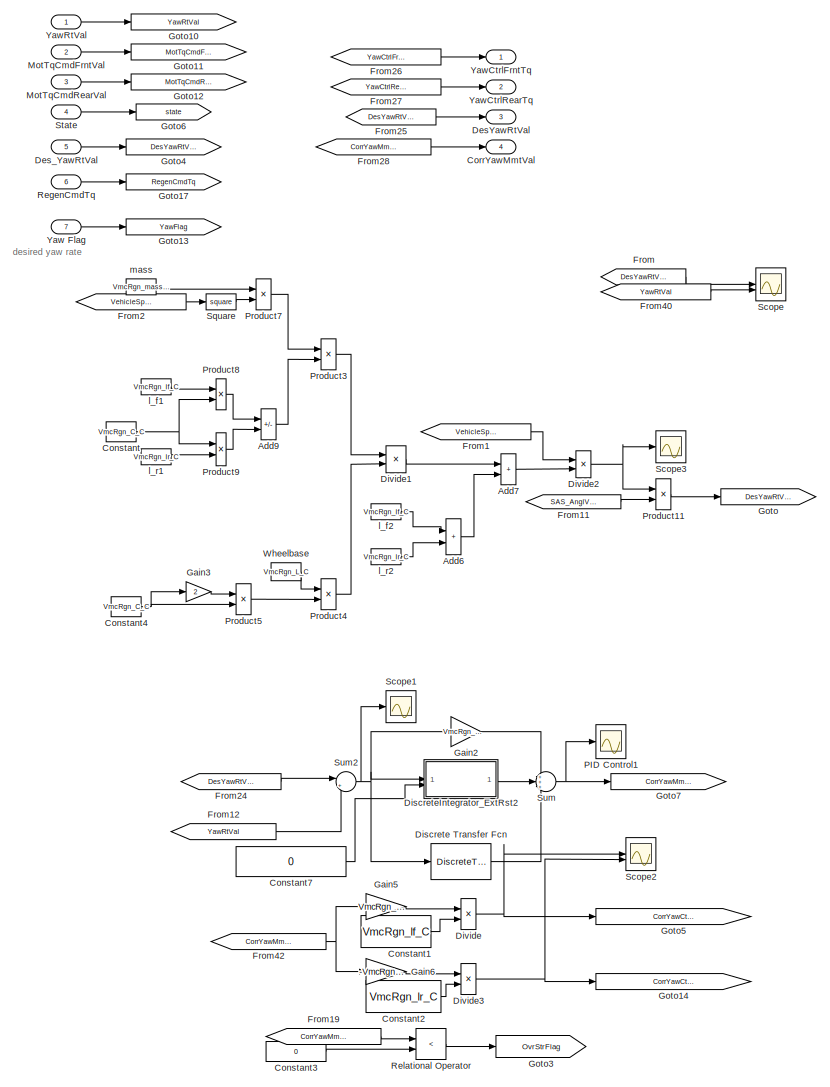
[diagram: Yaw Stability Control1 - part 1/4, left side, full height]
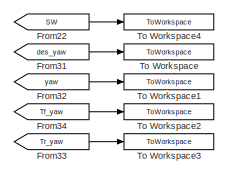
[diagram: Yaw Stability Control1 - part 2/4, top right region]
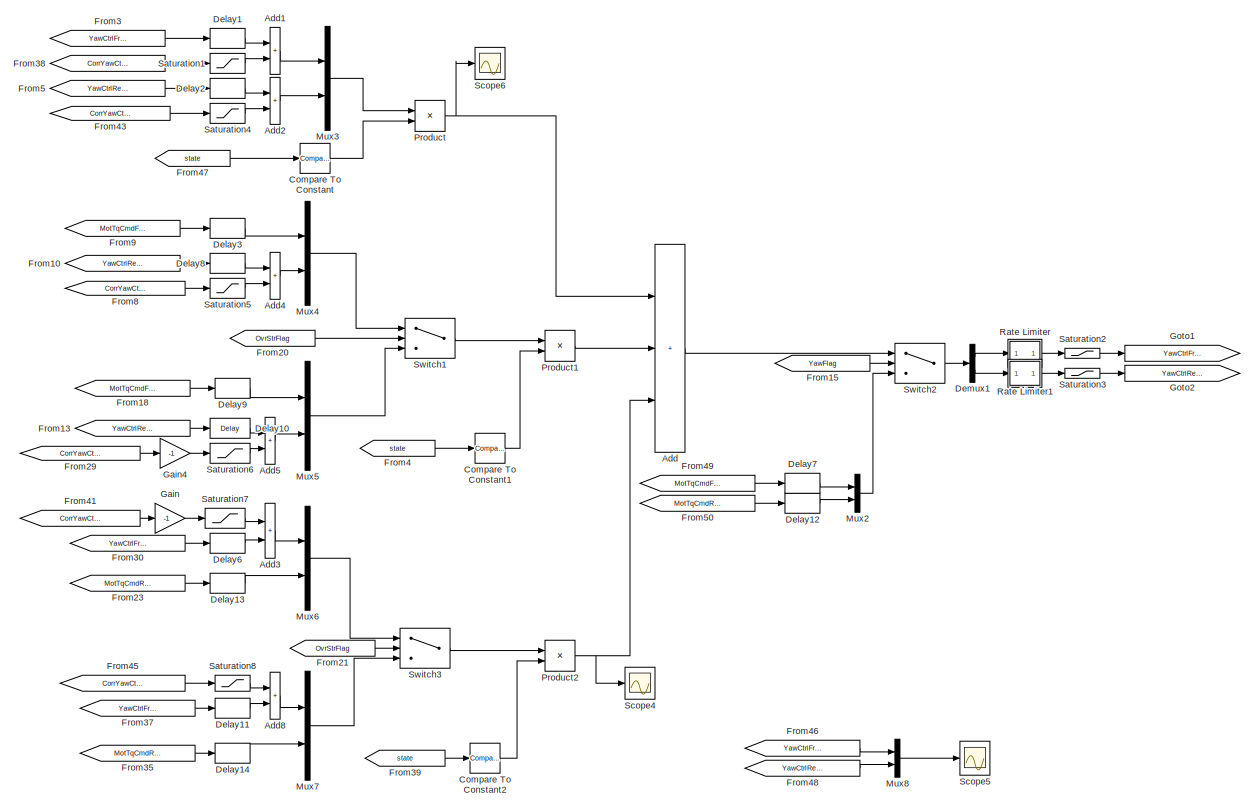
[diagram: Yaw Stability Control1 - part 3/4, middle right region]
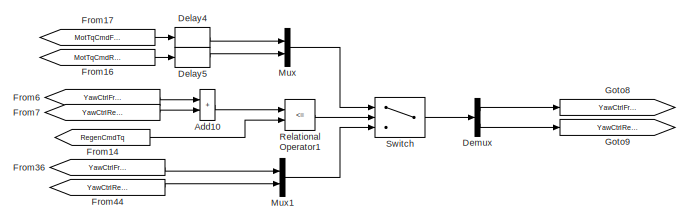
[diagram: Yaw Stability Control1 - part 4/4, bottom right region]
BLOCK [SubSystem] Yaw Stability Control1
BLOCK [Sum] Yaw Stability Control1/Add
  IconShape = rectangular
  Inputs = +++
BLOCK [Sum] Yaw Stability Control1/Add1
  IconShape = rectangular
BLOCK [Sum] Yaw Stability Control1/Add10
  IconShape = rectangular
BLOCK [Sum] Yaw Stability Control1/Add2
  IconShape = rectangular
BLOCK [Sum] Yaw Stability Control1/Add3
  IconShape = rectangular
BLOCK [Sum] Yaw Stability Control1/Add4
  IconShape = rectangular
BLOCK [Sum] Yaw Stability Control1/Add5
  IconShape = rectangular
BLOCK [Sum] Yaw Stability Control1/Add6
  Commented = on
  IconShape = rectangular
BLOCK [Sum] Yaw Stability Control1/Add7
  Commented = on
  IconShape = rectangular
BLOCK [Sum] Yaw Stability Control1/Add8
  IconShape = rectangular
BLOCK [Sum] Yaw Stability Control1/Add9
  Commented = on
  IconShape = rectangular
  Inputs = -+
BLOCK [Reference] Yaw Stability Control1/Compare To Constant  REF=simulink/Logic and Bit
Operations/Compare
To Constant
  SourceBlock = simulink/Logic and Bit\nOperations/Compare\nTo Constant
  SourceType = Compare To Constant
BLOCK [Reference] Yaw Stability Control1/Compare To Constant1  REF=simulink/Logic and Bit
Operations/Compare
To Constant
  SourceBlock = simulink/Logic and Bit\nOperations/Compare\nTo Constant
  SourceType = Compare To Constant
BLOCK [Reference] Yaw Stability Control1/Compare To Constant2  REF=simulink/Logic and Bit
Operations/Compare
To Constant
  SourceBlock = simulink/Logic and Bit\nOperations/Compare\nTo Constant
  SourceType = Compare To Constant
BLOCK [Constant] Yaw Stability Control1/Constant
  Commented = on
  OutDataTypeStr = single
  Value = VmcRgn_C_C
BLOCK [Constant] Yaw Stability Control1/Constant1
  OutDataTypeStr = single
  Value = VmcRgn_lf_C
BLOCK [Constant] Yaw Stability Control1/Constant2
  OutDataTypeStr = single
  Value = VmcRgn_lr_C
BLOCK [Constant] Yaw Stability Control1/Constant3
  Value = 0
BLOCK [Constant] Yaw Stability Control1/Constant4
  Commented = on
  OutDataTypeStr = single
  Value = VmcRgn_C_C
BLOCK [Constant] Yaw Stability Control1/Constant7
  AttributesFormatString = OutType: %<OutDataTypeStr>
  LockScale = on
  OutDataTypeStr = boolean
  Value = 0
BLOCK [Outport] Yaw Stability Control1/CorrYawMmtVal
  Port = 4
BLOCK [Delay] Yaw Stability Control1/Delay1
  DelayLength = 1
  InputPortMap = u0
BLOCK [Delay] Yaw Stability Control1/Delay10
  DelayLength = 1
  InputPortMap = u0
BLOCK [Delay] Yaw Stability Control1/Delay11
  DelayLength = 1
  InputPortMap = u0
BLOCK [Delay] Yaw Stability Control1/Delay12
  DelayLength = 1
  InputPortMap = u0
BLOCK [Delay] Yaw Stability Control1/Delay13
  DelayLength = 1
  InputPortMap = u0
BLOCK [Delay] Yaw Stability Control1/Delay14
  DelayLength = 1
  InputPortMap = u0
BLOCK [Delay] Yaw Stability Control1/Delay2
  DelayLength = 1
  InputPortMap = u0
BLOCK [Delay] Yaw Stability Control1/Delay3
  DelayLength = 1
  InputPortMap = u0
BLOCK [Delay] Yaw Stability Control1/Delay4
  DelayLength = 1
  InputPortMap = u0
BLOCK [Delay] Yaw Stability Control1/Delay5
  DelayLength = 1
  InputPortMap = u0
BLOCK [Delay] Yaw Stability Control1/Delay6
  DelayLength = 1
  InputPortMap = u0
BLOCK [Delay] Yaw Stability Control1/Delay7
  DelayLength = 1
  InputPortMap = u0
BLOCK [Delay] Yaw Stability Control1/Delay8
  DelayLength = 1
  InputPortMap = u0
BLOCK [Delay] Yaw Stability Control1/Delay9
  DelayLength = 1
  InputPortMap = u0
BLOCK [Demux] Yaw Stability Control1/Demux
  Outputs = 2
BLOCK [Demux] Yaw Stability Control1/Demux1
  Outputs = 2
BLOCK [Outport] Yaw Stability Control1/DesYawRtVal
  Port = 3
BLOCK [Inport] Yaw Stability Control1/Des_YawRtVal
  Port = 5
BLOCK [DiscreteTransferFcn] Yaw Stability Control1/Discrete Transfer Fcn
  Denominator = [1, g]
  InputPortMap = u0
  Numerator = [e, f]
BLOCK [SubSystem] Yaw Stability Control1/DiscreteIntegrator_ExtRst2
  AttributesFormatString = Sampling Period [ms]: %<Ts>\nOutType: %<out_type>
  RTWFileName = HmcLib_DebFlt
  RTWSystemCode = Inline
  TreatAsAtomicUnit = on
BLOCK [Sum] Yaw Stability Control1/DiscreteIntegrator_ExtRst2/Accumulator
  AccumDataTypeStr = single
  Description = Add in CPU
  IconShape = rectangular
  OutDataTypeStr = single
  SaturateOnIntegerOverflow = on
BLOCK [Constant] Yaw Stability Control1/DiscreteIntegrator_ExtRst2/Constant
  OutDataTypeStr = uint16
  Value = Ts
BLOCK [Constant] Yaw Stability Control1/DiscreteIntegrator_ExtRst2/Constant1
  OutDataTypeStr = single
  Value = 0
BLOCK [DataTypeConversion] Yaw Stability Control1/DiscreteIntegrator_ExtRst2/Data Type Conversion
  OutDataTypeStr = single
  RndMeth = Floor
  SaturateOnIntegerOverflow = off
BLOCK [DataTypeConversion] Yaw Stability Control1/DiscreteIntegrator_ExtRst2/Data Type Conversion1
  OutDataTypeStr = single
  RndMeth = Floor
  SaturateOnIntegerOverflow = off
BLOCK [DataTypeConversion] Yaw Stability Control1/DiscreteIntegrator_ExtRst2/Data Type Conversion2
  LockScale = on
  RndMeth = Round
BLOCK [Product] Yaw Stability Control1/DiscreteIntegrator_ExtRst2/Divide
  Inputs = **
  OutDataTypeStr = single
BLOCK [Inport] Yaw Stability Control1/DiscreteIntegrator_ExtRst2/Rst
  OutDataTypeStr = boolean
  Port = 2
BLOCK [Switch] Yaw Stability Control1/DiscreteIntegrator_ExtRst2/Switch
  Criteria = u2 ~= 0
  InputSameDT = off
  SaturateOnIntegerOverflow = off
BLOCK [Inport] Yaw Stability Control1/DiscreteIntegrator_ExtRst2/U
BLOCK [Reference] Yaw Stability Control1/DiscreteIntegrator_ExtRst2/Unit Delay Resettable  REF=simulink_need_slupdate/Unit Delay
Resettable
  SourceBlock = simulink_need_slupdate/Unit Delay\nResettable
  SourceType = Unit Delay Resettable
BLOCK [Outport] Yaw Stability Control1/DiscreteIntegrator_ExtRst2/Y
  InitialOutput = 0
  OutDataTypeStr = out_type
  VectorParamsAs1DForOutWhenUnconnected = off
BLOCK [Gain] Yaw Stability Control1/DiscreteIntegrator_ExtRst2/ms-to-s
  Gain = 0.001
  OutDataTypeStr = single
  ParamDataTypeStr = single
BLOCK [Product] Yaw Stability Control1/Divide
  Inputs = */
BLOCK [Product] Yaw Stability Control1/Divide1
  Commented = on
  Inputs = */
BLOCK [Product] Yaw Stability Control1/Divide2
  Commented = on
  Inputs = */
BLOCK [Product] Yaw Stability Control1/Divide3
  Inputs = */
BLOCK [From] Yaw Stability Control1/From
  GotoTag = DesYawRtVal
BLOCK [From] Yaw Stability Control1/From1
  Commented = on
  GotoTag = VehicleSpdFlt
BLOCK [From] Yaw Stability Control1/From10
  GotoTag = YawCtrlRearTq
BLOCK [From] Yaw Stability Control1/From11
  Commented = on
  GotoTag = SAS_AnglVal
BLOCK [From] Yaw Stability Control1/From12
  GotoTag = YawRtVal
BLOCK [From] Yaw Stability Control1/From13
  GotoTag = YawCtrlRearTq
BLOCK [From] Yaw Stability Control1/From14
  GotoTag = RegenCmdTq
BLOCK [From] Yaw Stability Control1/From15
  GotoTag = YawFlag
BLOCK [From] Yaw Stability Control1/From16
  GotoTag = MotTqCmdRearVal
BLOCK [From] Yaw Stability Control1/From17
  GotoTag = MotTqCmdFrntVal
BLOCK [From] Yaw Stability Control1/From18
  GotoTag = MotTqCmdFrntVal
BLOCK [From] Yaw Stability Control1/From19
  GotoTag = CorrYawMmtVal
BLOCK [From] Yaw Stability Control1/From2
  Commented = on
  GotoTag = VehicleSpdFlt
BLOCK [From] Yaw Stability Control1/From20
  GotoTag = OvrStrFlag
BLOCK [From] Yaw Stability Control1/From21
  GotoTag = OvrStrFlag
BLOCK [From] Yaw Stability Control1/From22
  Commented = on
  GotoTag = SW
  TagVisibility = global
BLOCK [From] Yaw Stability Control1/From23
  GotoTag = MotTqCmdRearVal
BLOCK [From] Yaw Stability Control1/From24
  GotoTag = DesYawRtVal
BLOCK [From] Yaw Stability Control1/From25
  GotoTag = DesYawRtVal
BLOCK [From] Yaw Stability Control1/From26
  GotoTag = YawCtrlFrntTq_
BLOCK [From] Yaw Stability Control1/From27
  GotoTag = YawCtrlRearTq_
BLOCK [From] Yaw Stability Control1/From28
  GotoTag = CorrYawMmtVal
BLOCK [From] Yaw Stability Control1/From29
  GotoTag = CorrYawCtrlRearTq
BLOCK [From] Yaw Stability Control1/From3
  GotoTag = YawCtrlFrntTq
BLOCK [From] Yaw Stability Control1/From30
  GotoTag = YawCtrlFrntTq
BLOCK [From] Yaw Stability Control1/From31
  Commented = on
  GotoTag = des_yaw
BLOCK [From] Yaw Stability Control1/From32
  Commented = on
  GotoTag = yaw
  TagVisibility = global
BLOCK [From] Yaw Stability Control1/From33
  Commented = on
  GotoTag = Tr_yaw
BLOCK [From] Yaw Stability Control1/From34
  Commented = on
  GotoTag = Tf_yaw
BLOCK [From] Yaw Stability Control1/From35
  GotoTag = MotTqCmdRearVal
BLOCK [From] Yaw Stability Control1/From36
  GotoTag = YawCtrlFrntTq
BLOCK [From] Yaw Stability Control1/From37
  GotoTag = YawCtrlFrntTq
BLOCK [From] Yaw Stability Control1/From38
  GotoTag = CorrYawCtrlFrntTq
BLOCK [From] Yaw Stability Control1/From39
  GotoTag = state
BLOCK [From] Yaw Stability Control1/From4
  GotoTag = state
BLOCK [From] Yaw Stability Control1/From40
  GotoTag = YawRtVal
BLOCK [From] Yaw Stability Control1/From41
  GotoTag = CorrYawCtrlFrntTq
BLOCK [From] Yaw Stability Control1/From42
  GotoTag = CorrYawMmtVal
BLOCK [From] Yaw Stability Control1/From43
  GotoTag = CorrYawCtrlRearTq
BLOCK [From] Yaw Stability Control1/From44
  GotoTag = YawCtrlRearTq
BLOCK [From] Yaw Stability Control1/From45
  GotoTag = CorrYawCtrlFrntTq
BLOCK [From] Yaw Stability Control1/From46
  GotoTag = YawCtrlFrntTq_
BLOCK [From] Yaw Stability Control1/From47
  GotoTag = state
BLOCK [From] Yaw Stability Control1/From48
  GotoTag = YawCtrlRearTq_
BLOCK [From] Yaw Stability Control1/From49
  GotoTag = MotTqCmdFrntVal
BLOCK [From] Yaw Stability Control1/From5
  GotoTag = YawCtrlRearTq
BLOCK [From] Yaw Stability Control1/From50
  GotoTag = MotTqCmdRearVal
BLOCK [From] Yaw Stability Control1/From6
  GotoTag = YawCtrlFrntTq
BLOCK [From] Yaw Stability Control1/From7
  GotoTag = YawCtrlRearTq
BLOCK [From] Yaw Stability Control1/From8
  GotoTag = CorrYawCtrlRearTq
BLOCK [From] Yaw Stability Control1/From9
  GotoTag = MotTqCmdFrntVal
BLOCK [Gain] Yaw Stability Control1/Gain
  Gain = -1
BLOCK [Gain] Yaw Stability Control1/Gain2
  Gain = VmcRgn_Kp_C
BLOCK [Gain] Yaw Stability Control1/Gain3
  Commented = on
  Gain = 2
  OutDataTypeStr = uint16
BLOCK [Gain] Yaw Stability Control1/Gain4
  Gain = -1
BLOCK [Gain] Yaw Stability Control1/Gain5
  Gain = VmcRgn_lr_C/VmcRgn_L_C
BLOCK [Gain] Yaw Stability Control1/Gain6
  Gain = -VmcRgn_lf_C/VmcRgn_L_C
BLOCK [Goto] Yaw Stability Control1/Goto
  Commented = on
  GotoTag = DesYawRtVal
BLOCK [Goto] Yaw Stability Control1/Goto1
  GotoTag = YawCtrlFrntTq
BLOCK [Goto] Yaw Stability Control1/Goto10
  GotoTag = YawRtVal
BLOCK [Goto] Yaw Stability Control1/Goto11
  GotoTag = MotTqCmdFrntVal
BLOCK [Goto] Yaw Stability Control1/Goto12
  GotoTag = MotTqCmdRearVal
BLOCK [Goto] Yaw Stability Control1/Goto13
  GotoTag = YawFlag
BLOCK [Goto] Yaw Stability Control1/Goto14
  GotoTag = CorrYawCtrlRearTq
BLOCK [Goto] Yaw Stability Control1/Goto17
  GotoTag = RegenCmdTq
BLOCK [Goto] Yaw Stability Control1/Goto2
  GotoTag = YawCtrlRearTq
BLOCK [Goto] Yaw Stability Control1/Goto3
  GotoTag = OvrStrFlag
BLOCK [Goto] Yaw Stability Control1/Goto4
  GotoTag = DesYawRtVal
BLOCK [Goto] Yaw Stability Control1/Goto5
  GotoTag = CorrYawCtrlFrntTq
BLOCK [Goto] Yaw Stability Control1/Goto6
  GotoTag = state
BLOCK [Goto] Yaw Stability Control1/Goto7
  GotoTag = CorrYawMmtVal
BLOCK [Goto] Yaw Stability Control1/Goto8
  GotoTag = YawCtrlFrntTq_
BLOCK [Goto] Yaw Stability Control1/Goto9
  GotoTag = YawCtrlRearTq_
BLOCK [Inport] Yaw Stability Control1/MotTqCmdFrntVal
  OutDataTypeStr = single
  Port = 2
BLOCK [Inport] Yaw Stability Control1/MotTqCmdRearVal
  OutDataTypeStr = single
  Port = 3
BLOCK [Mux] Yaw Stability Control1/Mux
  DisplayOption = bar
  Inputs = 2
BLOCK [Mux] Yaw Stability Control1/Mux1
  DisplayOption = bar
  Inputs = 2
BLOCK [Mux] Yaw Stability Control1/Mux2
  DisplayOption = bar
  Inputs = 2
BLOCK [Mux] Yaw Stability Control1/Mux3
  DisplayOption = bar
  Inputs = 2
BLOCK [Mux] Yaw Stability Control1/Mux4
  DisplayOption = bar
  Inputs = 2
BLOCK [Mux] Yaw Stability Control1/Mux5
  DisplayOption = bar
  Inputs = 2
BLOCK [Mux] Yaw Stability Control1/Mux6
  DisplayOption = bar
  Inputs = 2
BLOCK [Mux] Yaw Stability Control1/Mux7
  DisplayOption = bar
  Inputs = 2
BLOCK [Mux] Yaw Stability Control1/Mux8
  DisplayOption = bar
  Inputs = 2
BLOCK [Scope] Yaw Stability Control1/PID Control1
  Floating = off
  NumInputPorts = 1
  ScopeSpecificationString = Simulink.scopes.TimeScopeBlockCfg('CurrentConfiguration', extmgr.ConfigurationSet(extmgr.Configuration('Core','General UI',true,'FigureColor',[1 1 1]),extmgr.Configuration('Core','Source UI',true),extmgr.Configuration('Sources','WiredSimulink',true,'DataLoggingVariableName','ScopeData1'),extmgr.Configuration('Visuals','Time Domain',true,'SerializedDisplays',{struct('MinYLimReal','-81.21601','MaxYL...<+1669ch>
BLOCK [Product] Yaw Stability Control1/Product
  OutDataTypeStr = single
BLOCK [Product] Yaw Stability Control1/Product1
BLOCK [Product] Yaw Stability Control1/Product11
  Commented = on
BLOCK [Product] Yaw Stability Control1/Product2
BLOCK [Product] Yaw Stability Control1/Product3
  Commented = on
BLOCK [Product] Yaw Stability Control1/Product4
  Commented = on
BLOCK [Product] Yaw Stability Control1/Product5
  Commented = on
BLOCK [Product] Yaw Stability Control1/Product7
  Commented = on
BLOCK [Product] Yaw Stability Control1/Product8
  Commented = on
BLOCK [Product] Yaw Stability Control1/Product9
  Commented = on
BLOCK [SubSystem] Yaw Stability Control1/Rate Limiter
BLOCK [Sum] Yaw Stability Control1/Rate Limiter/Add
  IconShape = rectangular
  Inputs = -+
BLOCK [Sum] Yaw Stability Control1/Rate Limiter/Add1
  IconShape = rectangular
  OutDataTypeStr = single
BLOCK [Sum] Yaw Stability Control1/Rate Limiter/Add2
  IconShape = rectangular
BLOCK [Delay] Yaw Stability Control1/Rate Limiter/Delay One Step
  DelayLength = 1
  InputPortMap = u0
  NameLocation = top
BLOCK [From] Yaw Stability Control1/Rate Limiter/From
  GotoTag = Ts
BLOCK [From] Yaw Stability Control1/Rate Limiter/From1
  GotoTag = Ts
BLOCK [From] Yaw Stability Control1/Rate Limiter/From2
  GotoTag = ub
BLOCK [From] Yaw Stability Control1/Rate Limiter/From4
  GotoTag = lb
BLOCK [Goto] Yaw Stability Control1/Rate Limiter/Goto
  GotoTag = Ts
BLOCK [Goto] Yaw Stability Control1/Rate Limiter/Goto1
  GotoTag = ub
BLOCK [Goto] Yaw Stability Control1/Rate Limiter/Goto2
  GotoTag = lb
BLOCK [Inport] Yaw Stability Control1/Rate Limiter/In
BLOCK [Constant] Yaw Stability Control1/Rate Limiter/Lower Bound
  Value = -3000
BLOCK [Outport] Yaw Stability Control1/Rate Limiter/Out
BLOCK [Product] Yaw Stability Control1/Rate Limiter/Product
BLOCK [Product] Yaw Stability Control1/Rate Limiter/Product1
  OutDataTypeStr = single
BLOCK [RelationalOperator] Yaw Stability Control1/Rate Limiter/Relational Operator
  InputSameDT = off
  OutDataTypeStr = boolean
  RndMeth = Simplest
BLOCK [RelationalOperator] Yaw Stability Control1/Rate Limiter/Relational Operator1
  InputSameDT = off
  OutDataTypeStr = boolean
  RndMeth = Simplest
BLOCK [Switch] Yaw Stability Control1/Rate Limiter/Switch
  Criteria = u2 > Threshold
  InputSameDT = off
  SaturateOnIntegerOverflow = off
BLOCK [Switch] Yaw Stability Control1/Rate Limiter/Switch1
  Criteria = u2 > Threshold
  InputSameDT = off
  OutDataTypeStr = single
  SaturateOnIntegerOverflow = off
BLOCK [Constant] Yaw Stability Control1/Rate Limiter/Ts
  Value = VmcRgn_tTs
BLOCK [Constant] Yaw Stability Control1/Rate Limiter/Upper Bound
  Value = 3000
BLOCK [SubSystem] Yaw Stability Control1/Rate Limiter1
BLOCK [Sum] Yaw Stability Control1/Rate Limiter1/Add
  IconShape = rectangular
  Inputs = -+
BLOCK [Sum] Yaw Stability Control1/Rate Limiter1/Add1
  IconShape = rectangular
BLOCK [Sum] Yaw Stability Control1/Rate Limiter1/Add2
  IconShape = rectangular
BLOCK [Delay] Yaw Stability Control1/Rate Limiter1/Delay One Step
  DelayLength = 1
  InputPortMap = u0
  NameLocation = top
BLOCK [From] Yaw Stability Control1/Rate Limiter1/From
  GotoTag = Ts
BLOCK [From] Yaw Stability Control1/Rate Limiter1/From1
  GotoTag = Ts
BLOCK [From] Yaw Stability Control1/Rate Limiter1/From2
  GotoTag = ub
BLOCK [From] Yaw Stability Control1/Rate Limiter1/From4
  GotoTag = lb
BLOCK [Goto] Yaw Stability Control1/Rate Limiter1/Goto
  GotoTag = Ts
BLOCK [Goto] Yaw Stability Control1/Rate Limiter1/Goto1
  GotoTag = ub
BLOCK [Goto] Yaw Stability Control1/Rate Limiter1/Goto2
  GotoTag = lb
BLOCK [Inport] Yaw Stability Control1/Rate Limiter1/In
BLOCK [Constant] Yaw Stability Control1/Rate Limiter1/Lower Bound
  Value = -3000
BLOCK [Outport] Yaw Stability Control1/Rate Limiter1/Out
BLOCK [Product] Yaw Stability Control1/Rate Limiter1/Product
BLOCK [Product] Yaw Stability Control1/Rate Limiter1/Product1
BLOCK [RelationalOperator] Yaw Stability Control1/Rate Limiter1/Relational Operator
  InputSameDT = off
  OutDataTypeStr = boolean
  RndMeth = Simplest
BLOCK [RelationalOperator] Yaw Stability Control1/Rate Limiter1/Relational Operator1
  InputSameDT = off
  OutDataTypeStr = boolean
  RndMeth = Simplest
BLOCK [Switch] Yaw Stability Control1/Rate Limiter1/Switch
  Criteria = u2 > Threshold
  InputSameDT = off
  SaturateOnIntegerOverflow = off
BLOCK [Switch] Yaw Stability Control1/Rate Limiter1/Switch1
  Criteria = u2 > Threshold
  InputSameDT = off
  SaturateOnIntegerOverflow = off
BLOCK [Constant] Yaw Stability Control1/Rate Limiter1/Ts
  Value = VmcRgn_tTs
BLOCK [Constant] Yaw Stability Control1/Rate Limiter1/Upper Bound
  Value = 3000
BLOCK [Inport] Yaw Stability Control1/RegenCmdTq
  Port = 6
BLOCK [RelationalOperator] Yaw Stability Control1/Relational Operator
  InputSameDT = off
  Operator = <
  OutDataTypeStr = boolean
  RndMeth = Simplest
BLOCK [RelationalOperator] Yaw Stability Control1/Relational Operator1
  InputSameDT = off
  Operator = <=
  OutDataTypeStr = boolean
  RndMeth = Simplest
BLOCK [Saturate] Yaw Stability Control1/Saturation1
  LowerLimit = -10
  UpperLimit = 10
BLOCK [Saturate] Yaw Stability Control1/Saturation2
  LowerLimit = -1000
  UpperLimit = 0
BLOCK [Saturate] Yaw Stability Control1/Saturation3
  LowerLimit = -1000
  UpperLimit = 0
BLOCK [Saturate] Yaw Stability Control1/Saturation4
  LowerLimit = -10
  UpperLimit = 10
BLOCK [Saturate] Yaw Stability Control1/Saturation5
  LowerLimit = -10
  UpperLimit = 10
BLOCK [Saturate] Yaw Stability Control1/Saturation6
  LowerLimit = -10
  UpperLimit = 10
BLOCK [Saturate] Yaw Stability Control1/Saturation7
  LowerLimit = -10
  UpperLimit = 10
BLOCK [Saturate] Yaw Stability Control1/Saturation8
  LowerLimit = -10
  UpperLimit = 10
BLOCK [Scope] Yaw Stability Control1/Scope
  Floating = off
  NumInputPorts = 2
  ScopeSpecificationString = Simulink.scopes.TimeScopeBlockCfg('CurrentConfiguration', extmgr.ConfigurationSet(extmgr.Configuration('Core','General UI',true,'FigureColor',[1 1 1]),extmgr.Configuration('Core','Source UI',true),extmgr.Configuration('Sources','WiredSimulink',true,'DataLoggingVariableName','ScopeData2'),extmgr.Configuration('Visuals','Time Domain',true,'SerializedDisplays',{struct('MinYLimReal','-0.74869','MaxYLi...<+1709ch>
BLOCK [Scope] Yaw Stability Control1/Scope1
  Floating = off
  NumInputPorts = 1
  ScopeSpecificationString = Simulink.scopes.TimeScopeBlockCfg('CurrentConfiguration', extmgr.ConfigurationSet(extmgr.Configuration('Core','General UI',true),extmgr.Configuration('Core','Source UI',true),extmgr.Configuration('Sources','WiredSimulink',true,'DataLoggingVariableName','ScopeData9'),extmgr.Configuration('Visuals','Time Domain',true,'SerializedDisplays',{struct('MinYLimReal','-0.15879','MaxYLimReal','0.14592','YLab...<+1482ch>
BLOCK [Scope] Yaw Stability Control1/Scope2
  Floating = off
  NumInputPorts = 2
  ScopeSpecificationString = Simulink.scopes.TimeScopeBlockCfg('CurrentConfiguration', extmgr.ConfigurationSet(extmgr.Configuration('Core','General UI',true,'FigureColor',[1 1 1]),extmgr.Configuration('Core','Source UI',true),extmgr.Configuration('Sources','WiredSimulink',true,'DataLoggingVariableName','ScopeData1'),extmgr.Configuration('Visuals','Time Domain',true,'SerializedDisplays',{struct('MinYLimReal','-241.38871','MaxY...<+1725ch>
BLOCK [Scope] Yaw Stability Control1/Scope3
  Commented = on
  Floating = off
  NumInputPorts = 1
  ScopeSpecificationString = Simulink.scopes.TimeScopeBlockCfg('CurrentConfiguration', extmgr.ConfigurationSet(extmgr.Configuration('Core','General UI',true),extmgr.Configuration('Core','Source UI',true),extmgr.Configuration('Sources','WiredSimulink',true,'DataLoggingVariableName','ScopeData1'),extmgr.Configuration('Visuals','Time Domain',true,'SerializedDisplays',{struct('MinYLimReal','0.48182','MaxYLimReal','1.235','YLabelR...<+1356ch>
BLOCK [Scope] Yaw Stability Control1/Scope4
  Floating = off
  NumInputPorts = 1
  ScopeSpecificationString = Simulink.scopes.TimeScopeBlockCfg('CurrentConfiguration', extmgr.ConfigurationSet(extmgr.Configuration('Core','General UI',true),extmgr.Configuration('Core','Source UI',true),extmgr.Configuration('Sources','WiredSimulink',true,'DataLoggingVariableName','ScopeData2'),extmgr.Configuration('Visuals','Time Domain',true,'SerializedDisplays',{struct('MinYLimReal','-14.07765','MaxYLimReal','22.88256','YL...<+1524ch>
BLOCK [Scope] Yaw Stability Control1/Scope5
  Floating = off
  NumInputPorts = 1
  ScopeSpecificationString = Simulink.scopes.TimeScopeBlockCfg('CurrentConfiguration', extmgr.ConfigurationSet(extmgr.Configuration('Core','General UI',true),extmgr.Configuration('Core','Source UI',true),extmgr.Configuration('Sources','WiredSimulink',true,'DataLoggingVariableName','ScopeData3'),extmgr.Configuration('Visuals','Time Domain',true,'SerializedDisplays',{struct('MinYLimReal','-35.93686','MaxYLimReal','4.89439','YLa...<+1956ch>
BLOCK [Scope] Yaw Stability Control1/Scope6
  Floating = off
  NumInputPorts = 1
  ScopeSpecificationString = Simulink.scopes.TimeScopeBlockCfg('CurrentConfiguration', extmgr.ConfigurationSet(extmgr.Configuration('Core','General UI',true),extmgr.Configuration('Core','Source UI',true),extmgr.Configuration('Sources','WiredSimulink',true,'DataLoggingVariableName','ScopeData4'),extmgr.Configuration('Visuals','Time Domain',true,'SerializedDisplays',{struct('MinYLimReal','-110.28268','MaxYLimReal','20.26877','Y...<+1729ch>
BLOCK [Math] Yaw Stability Control1/Square
  Commented = on
  Operator = square
  SignedPower = on
BLOCK [Inport] Yaw Stability Control1/State
  OutDataTypeStr = single
  Port = 4
BLOCK [Sum] Yaw Stability Control1/Sum
  Inputs = +++
BLOCK [Sum] Yaw Stability Control1/Sum2
  Inputs = |+-
BLOCK [Switch] Yaw Stability Control1/Switch
  Criteria = u2 > Threshold
  InputSameDT = off
  SaturateOnIntegerOverflow = off
BLOCK [Switch] Yaw Stability Control1/Switch1
  Criteria = u2 > Threshold
  InputSameDT = off
  SaturateOnIntegerOverflow = off
BLOCK [Switch] Yaw Stability Control1/Switch2
  Criteria = u2 > Threshold
  InputSameDT = off
  SaturateOnIntegerOverflow = off
BLOCK [Switch] Yaw Stability Control1/Switch3
  Criteria = u2 > Threshold
  InputSameDT = off
  SaturateOnIntegerOverflow = off
BLOCK [ToWorkspace] Yaw Stability Control1/To Workspace
  Commented = on
  FixptAsFi = on
  MaxDataPoints = inf
  SampleTime = -1
  SaveFormat = Structure With Time
  VariableName = des_yaw
BLOCK [ToWorkspace] Yaw Stability Control1/To Workspace1
  Commented = on
  FixptAsFi = on
  MaxDataPoints = inf
  SampleTime = -1
  SaveFormat = Structure With Time
  VariableName = yaw_rate
BLOCK [ToWorkspace] Yaw Stability Control1/To Workspace2
  Commented = on
  FixptAsFi = on
  MaxDataPoints = inf
  SampleTime = -1
  SaveFormat = Structure With Time
  VariableName = Tf_yaw
BLOCK [ToWorkspace] Yaw Stability Control1/To Workspace3
  Commented = on
  FixptAsFi = on
  MaxDataPoints = inf
  SampleTime = -1
  SaveFormat = Structure With Time
  VariableName = Tr_yaw
BLOCK [ToWorkspace] Yaw Stability Control1/To Workspace4
  Commented = on
  FixptAsFi = on
  MaxDataPoints = inf
  SampleTime = -1
  SaveFormat = Structure With Time
  VariableName = sw
BLOCK [Constant] Yaw Stability Control1/Wheelbase
  Commented = on
  OutDataTypeStr = single
  Value = VmcRgn_L_C
BLOCK [Inport] Yaw Stability Control1/Yaw Flag
  Port = 7
BLOCK [Outport] Yaw Stability Control1/YawCtrlFrntTq
BLOCK [Outport] Yaw Stability Control1/YawCtrlRearTq
  Port = 2
BLOCK [Inport] Yaw Stability Control1/YawRtVal
  OutDataTypeStr = single
BLOCK [Constant] Yaw Stability Control1/l_f1
  Commented = on
  OutDataTypeStr = single
  Value = VmcRgn_lf_C
BLOCK [Constant] Yaw Stability Control1/l_f2
  Commented = on
  OutDataTypeStr = single
  Value = VmcRgn_lf_C
BLOCK [Constant] Yaw Stability Control1/l_r1
  Commented = on
  OutDataTypeStr = single
  Value = VmcRgn_lr_C
BLOCK [Constant] Yaw Stability Control1/l_r2
  Commented = on
  OutDataTypeStr = single
  Value = VmcRgn_lr_C
BLOCK [Constant] Yaw Stability Control1/mass
  Commented = on
  OutDataTypeStr = single
  Value = VmcRgn_mass_C
ANNOTATION (root): VCU_MotTqCmdFrntVal
ANNOTATION Regen, Tb_max1: Tb_max
ANNOTATION Regen, Tb_max1: yaw flag
ANNOTATION Slip Control State1: In
ANNOTATION Slip Control State1: Out
ANNOTATION SlipCtrlFL: In
ANNOTATION SlipCtrlFL: N.m
ANNOTATION SlipCtrlFL: Out
ANNOTATION SlipCtrlFL: Tire Force Estimation
ANNOTATION SlipCtrlFL: Torque input calculation for phase control.
ANNOTATION SlipCtrlFL: boolean
ANNOTATION SlipCtrlFL: m/s
ANNOTATION SlipCtrlFL: m/s^2
ANNOTATION SlipCtrlFL: rad/s
ANNOTATION SlipCtrlFL/DiscreteDerivative: ( U(k) - U(k-1) )
ANNOTATION SlipCtrlFL/DiscreteDerivative: U(k)
ANNOTATION SlipCtrlFR: In
ANNOTATION SlipCtrlFR: N.m
ANNOTATION SlipCtrlFR: Out
ANNOTATION SlipCtrlFR: Phase based Controller
ANNOTATION SlipCtrlFR: Tire Force Estimation
ANNOTATION SlipCtrlFR: Torque input calculation for phase control.
ANNOTATION SlipCtrlFR: boolean
ANNOTATION SlipCtrlFR: m/s
ANNOTATION SlipCtrlFR: m/s^2
ANNOTATION SlipCtrlFR: rad/s
ANNOTATION SlipCtrlFR/DiscreteDerivative: ( U(k) - U(k-1) )
ANNOTATION SlipCtrlFR/DiscreteDerivative: U(k)
ANNOTATION SlipCtrlRL: In
ANNOTATION SlipCtrlRL: N.m
ANNOTATION SlipCtrlRL: Out
ANNOTATION SlipCtrlRL: Phase based Controller
ANNOTATION SlipCtrlRL: Tire Force Estimation
ANNOTATION SlipCtrlRL: Torque input calculation for phase control.
ANNOTATION SlipCtrlRL: boolean
ANNOTATION SlipCtrlRL: m/s
ANNOTATION SlipCtrlRL: m/s^2
ANNOTATION SlipCtrlRL: rad/s
ANNOTATION SlipCtrlRL/DiscreteDerivative: ( U(k) - U(k-1) )
ANNOTATION SlipCtrlRL/DiscreteDerivative: U(k)
ANNOTATION SlipCtrlRR: In
ANNOTATION SlipCtrlRR: N.m
ANNOTATION SlipCtrlRR: Out
ANNOTATION SlipCtrlRR: Phase based Controller
ANNOTATION SlipCtrlRR: Tire Force Estimation
ANNOTATION SlipCtrlRR: Torque input calculation for phase control.
ANNOTATION SlipCtrlRR: boolean
ANNOTATION SlipCtrlRR: m/s
ANNOTATION SlipCtrlRR: m/s^2
ANNOTATION SlipCtrlRR: rad/s
ANNOTATION SlipCtrlRR/DiscreteDerivative: ( U(k) - U(k-1) )
ANNOTATION SlipCtrlRR/DiscreteDerivative: U(k)
ANNOTATION Torque: torque select
ANNOTATION Yaw Stability Control1: desired yaw rate
ANNOTATION Yaw Stability Control1/DiscreteIntegrator_ExtRst2: ( Ts * U(k) + U(k-1) )
NET Add10:1 -> Goto109:1, Scope5:1
LINE Compare To Constant:1 -> Logical Operator31:1
NET Compare To Zero:1 -> Logical Operator31:2, Scope:2
LINE Constant:1 -> Product10:2
LINE Data Type Conversion10:1 -> Goto98:1
LINE Data Type Conversion11:1 -> Gain6:1
NET Data Type Conversion12:1 -> Add10:1, Goto57:1
NET Data Type Conversion13:1 -> Add10:2, Goto58:1
LINE Data Type Conversion14:1 -> Scope1:1
LINE Data Type Conversion15:1 -> Scope2:1
LINE Data Type Conversion16:1 -> Gain1:1
LINE Data Type Conversion17:1 -> Goto:1
LINE Data Type Conversion18:1 -> Goto84:1
LINE Data Type Conversion19:1 -> Mux3:2
LINE Data Type Conversion1:1 -> Mux3:1
LINE Data Type Conversion20:1 -> Scope6:1
NET Data Type Conversion21:1 -> Gain:1, Scope7:1
LINE Data Type Conversion22:1 -> Scope8:1
LINE Data Type Conversion23:1 -> Scope9:1
LINE Data Type Conversion24:1 -> Scope10:1
LINE Data Type Conversion25:1 -> Scope9:3
LINE Data Type Conversion26:1 -> Scope10:3
LINE Data Type Conversion27:1 -> Scope11:1
LINE Data Type Conversion28:1 -> Scope11:2
LINE Data Type Conversion2:1 -> Goto97:1
LINE Data Type Conversion3:1 -> Gain5:1
LINE Data Type Conversion4:1 -> Gain7:1
LINE Data Type Conversion5:1 -> Gain8:1
LINE Data Type Conversion6:1 -> Gain9:1
LINE Data Type Conversion7:1 -> Gain10:1
LINE Data Type Conversion8:1 -> Goto103:1
LINE Data Type Conversion9:1 -> Goto104:1
LINE Data Type Conversion:1 -> Goto96:1
NET From Workspace10:1 -> Data Type Conversion10:1, Scope16:1
LINE From Workspace11:1 -> Product3:1
LINE From Workspace12:1 -> Gain3:1
LINE From Workspace13:1 -> Product11:1
LINE From Workspace14:1 -> Gain4:1
LINE From Workspace15:1 -> Data Type Conversion17:1
LINE From Workspace16:1 -> Data Type Conversion16:1
LINE From Workspace17:1 -> Data Type Conversion20:1
LINE From Workspace18:1 -> Data Type Conversion21:1
LINE From Workspace19:1 -> Data Type Conversion22:1
LINE From Workspace1:1 -> Data Type Conversion2:1
LINE From Workspace20:1 -> Data Type Conversion23:1
LINE From Workspace21:1 -> Data Type Conversion24:1
LINE From Workspace22:1 -> Data Type Conversion25:1
LINE From Workspace23:1 -> Data Type Conversion26:1
LINE From Workspace24:1 -> Data Type Conversion27:1
LINE From Workspace25:1 -> Data Type Conversion28:1
LINE From Workspace26:1 -> Mux8:1
LINE From Workspace27:1 -> Mux8:2
LINE From Workspace28:1 -> Mux8:3
LINE From Workspace29:1 -> Mux8:4
LINE From Workspace2:1 -> Data Type Conversion3:1
LINE From Workspace30:1 -> Scope4:5
LINE From Workspace31:1 -> Mux9:1
LINE From Workspace32:1 -> Mux9:2
LINE From Workspace33:1 -> Mux10:1
LINE From Workspace34:1 -> Mux10:2
LINE From Workspace35:1 -> Scope4:8
LINE From Workspace36:1 -> Scope4:3
LINE From Workspace37:1 -> Mux16:1
LINE From Workspace38:1 -> Mux16:2
LINE From Workspace39:1 -> Mux16:3
LINE From Workspace3:1 -> Data Type Conversion4:1
LINE From Workspace40:1 -> Mux16:4
LINE From Workspace41:1 -> Scope17:4
LINE From Workspace42:1 -> Mux17:1
LINE From Workspace43:1 -> Mux17:2
LINE From Workspace44:1 -> Mux12:1
LINE From Workspace45:1 -> Mux12:2
LINE From Workspace46:1 -> Scope17:7
LINE From Workspace47:1 -> Scope18:1
LINE From Workspace4:1 -> Data Type Conversion5:1
LINE From Workspace5:1 -> Data Type Conversion6:1
LINE From Workspace6:1 -> Data Type Conversion7:1
LINE From Workspace7:1 -> Data Type Conversion8:1
LINE From Workspace8:1 -> Data Type Conversion9:1
NET From Workspace9:1 -> Data Type Conversion11:1, Scope15:1
NET From Workspace:1 -> Data Type Conversion:1, Scope14:1
LINE From100:1 -> Yaw Stability Control1:2
LINE From101:1 -> Yaw Stability Control1:4
LINE From102:1 -> Terminator:1
LINE From103:1 -> Unit Delay6:1
LINE From104:1 -> Unit Delay8:1
LINE From105:1 -> Unit Delay1:1
LINE From106:1 -> Unit Delay3:1
LINE From107:1 -> Unit Delay4:1
LINE From108:1 -> Unit Delay2:1
LINE From109:1 -> Unit Delay5:1
LINE From10:1 -> Mux2:3
LINE From110:1 -> Unit Delay7:1
LINE From111:1 -> Terminator1:1
LINE From112:1 -> Terminator2:1
LINE From113:1 -> Terminator3:1
LINE From114:1 -> Mux18:1
LINE From115:1 -> Mux18:2
LINE From116:1 -> Mux18:3
LINE From117:1 -> SlipCtrlRL:4
LINE From118:1 -> SlipCtrlRL:5
LINE From119:1 -> SlipCtrlRL:9
LINE From11:1 -> Mux2:4
LINE From120:1 -> SlipCtrlRL:7
LINE From121:1 -> SlipCtrlRL:1
LINE From122:1 -> LPF_5Hz2:1
LINE From123:1 -> SlipCtrlRR:2
LINE From124:1 -> SlipCtrlRR:3
LINE From125:1 -> SlipCtrlRR:4
LINE From126:1 -> SlipCtrlRR:5
LINE From127:1 -> SlipCtrlRR:9
LINE From128:1 -> SlipCtrlRR:7
LINE From129:1 -> SlipCtrlRR:1
LINE From12:1 -> Scope3:2
LINE From130:1 -> Slip Control State1:8
LINE From131:1 -> Slip Control State1:9
LINE From132:1 -> Slip Control State1:10
LINE From133:1 -> LPF_5Hz1:1
LINE From134:1 -> Slip Control State1:7
LINE From135:1 -> Slip Control State1:11
LINE From136:1 -> Slip Control State1:4
LINE From137:1 -> Slip Control State1:3
LINE From138:1 -> Slip Control State1:5
LINE From139:1 -> Slip Control State1:6
LINE From13:1 -> Data Type Conversion1:1
LINE From140:1 -> Slip Control State1:2
LINE From141:1 -> Product10:1
LINE From142:1 -> LPF_5Hz3:1
LINE From143:1 -> Torque:6
LINE From144:1 -> Torque:7
LINE From145:1 -> Regen, Tb_max1:1
LINE From146:1 -> Regen, Tb_max1:2
LINE From147:1 -> LPF_5Hz4:1
LINE From149:1 -> Torque:12
LINE From14:1 -> Scope3:1
LINE From150:1 -> Torque:13
LINE From151:1 -> Torque:10
LINE From152:1 -> Torque:11
LINE From155:1 -> Torque:3
LINE From156:1 -> Torque:4
LINE From157:1 -> Regen, Tb_max1:10
LINE From158:1 -> LPF_5Hz5:1
LINE From159:1 -> Torque:2
LINE From15:1 -> Scope3:7
LINE From160:1 -> Torque:5
LINE From162:1 -> Torque:1
LINE From167:1 -> Regen, Tb_max1:8
LINE From168:1 -> Regen, Tb_max1:9
LINE From169:1 -> SlipCtrlFL:1
LINE From16:1 -> Data Type Conversion19:1
LINE From170:1 -> Regen, Tb_max1:11
LINE From171:1 -> Regen, Tb_max1:15
LINE From172:1 -> Regen, Tb_max1:13
LINE From173:1 -> Regen, Tb_max1:14
LINE From174:1 -> Regen, Tb_max1:16
LINE From175:1 -> Torque:14
LINE From176:1 -> Mux18:4
LINE From177:1 -> Terminator8:1
LINE From179:1 -> Yaw Stability Control1:3
LINE From17:1 -> Mux4:1
LINE From180:1 -> Terminator9:1
LINE From181:1 -> Terminator10:1
LINE From182:1 -> Terminator11:1
LINE From183:1 -> Terminator12:1
LINE From184:1 -> Terminator13:1
LINE From185:1 -> Terminator14:1
LINE From186:1 -> Terminator15:1
LINE From187:1 -> Terminator16:1
LINE From188:1 -> Terminator17:1
LINE From189:1 -> Terminator18:1
LINE From18:1 -> Mux4:2
LINE From190:1 -> Terminator22:1
LINE From191:1 -> Terminator19:1
LINE From192:1 -> Terminator20:1
LINE From193:1 -> Terminator21:1
LINE From194:1 -> Data Type Conversion12:1
LINE From195:1 -> Data Type Conversion13:1
LINE From196:1 -> Unit Delay9:1
LINE From197:1 -> Unit Delay10:1
LINE From198:1 -> Regen, Tb_max1:3
LINE From199:1 -> Terminator23:1
LINE From19:1 -> Mux4:3
LINE From1:1 -> Mux:3
LINE From200:1 -> Terminator24:1
LINE From201:1 -> Compare To Constant:1
LINE From202:1 -> Compare To Zero:1
LINE From203:1 -> Data Type Conversion14:1
LINE From204:1 -> Data Type Conversion15:1
LINE From20:1 -> Mux4:4
LINE From21:1 -> Regen, Tb_max1:17
LINE From22:1 -> Regen, Tb_max1:18
LINE From23:1 -> Terminator25:1
LINE From244:1 -> Scope6:2
LINE From245:1 -> Scope7:2
LINE From246:1 -> Scope8:2
LINE From247:1 -> Unit Delay21:1
LINE From248:1 -> Unit Delay22:1
LINE From249:1 -> Scope9:2
LINE From24:1 -> Regen, Tb_max1:20
LINE From25:1 -> Torque:8
LINE From26:1 -> Torque:9
LINE From27:1 -> Yaw Stability Control1:5
LINE From28:1 -> Yaw Stability Control1:1
LINE From29:1 -> Regen, Tb_max1:19
LINE From2:1 -> Mux:4
LINE From30:1 -> Terminator26:1
LINE From31:1 -> Slip Control State1:14
LINE From32:1 -> Regen, Tb_max1:21
LINE From33:1 -> Mux5:1
LINE From34:1 -> Mux5:2
LINE From35:1 -> Mux11:1
LINE From36:1 -> Mux11:2
LINE From37:1 -> Regen, Tb_max1:22
LINE From38:1 -> Scope10:2
LINE From39:1 -> Regen, Tb_max1:26
LINE From3:1 -> Mux:1
LINE From40:1 -> Regen, Tb_max1:25
LINE From41:1 -> Regen, Tb_max1:24
LINE From42:1 -> Regen, Tb_max1:23
LINE From43:1 -> Regen, Tb_max1:6
LINE From44:1 -> Regen, Tb_max1:7
LINE From45:1 -> Regen, Tb_max1:5
LINE From46:1 -> Regen, Tb_max1:4
LINE From47:1 -> Yaw Stability Control1:6
LINE From48:1 -> Mux6:1
LINE From49:1 -> Mux6:2
LINE From4:1 -> Mux:2
LINE From50:1 -> Mux6:3
LINE From51:1 -> Mux6:4
LINE From52:1 -> Mux7:1
LINE From53:1 -> Mux7:2
LINE From54:1 -> Mux7:3
LINE From55:1 -> Mux7:4
LINE From56:1 -> Mux14:1
LINE From57:1 -> Mux14:2
LINE From58:1 -> Mux13:1
LINE From59:1 -> Mux13:2
LINE From5:1 -> Mux1:4
LINE From60:1 -> Mux15:1
LINE From61:1 -> Mux15:2
LINE From62:1 -> Mux15:3
LINE From63:1 -> Mux15:4
LINE From64:1 -> Unit Delay11:1
LINE From65:1 -> Mux19:1
LINE From66:1 -> Mux19:2
LINE From67:1 -> Scope19:2
LINE From68:1 -> Mux20:1
LINE From69:1 -> Mux20:2
LINE From6:1 -> Mux2:1
LINE From7:1 -> Mux1:1
LINE From82:1 -> Product12:1
LINE From83:1 -> Product4:2
LINE From84:1 -> SlipCtrlFL:2
LINE From85:1 -> SlipCtrlFL:3
LINE From86:1 -> SlipCtrlFL:4
LINE From87:1 -> SlipCtrlFL:5
LINE From88:1 -> SlipCtrlFL:9
LINE From89:1 -> SlipCtrlFL:7
LINE From8:1 -> Mux1:2
LINE From90:1 -> SlipCtrlFR:2
LINE From91:1 -> SlipCtrlFR:3
LINE From92:1 -> SlipCtrlFR:4
LINE From93:1 -> SlipCtrlFR:5
LINE From94:1 -> Slip Control State1:1
LINE From95:1 -> SlipCtrlFR:9
LINE From96:1 -> SlipCtrlFR:7
LINE From97:1 -> SlipCtrlFR:1
LINE From98:1 -> SlipCtrlRL:2
LINE From99:1 -> SlipCtrlRL:3
LINE From9:1 -> Mux2:2
LINE From:1 -> Mux1:3
LINE Gain10:1 -> Goto102:1
LINE Gain1:1 -> Goto111:1
LINE Gain3:1 -> Product3:2
LINE Gain4:1 -> Product11:2
LINE Gain5:1 -> Goto106:1
LINE Gain6:1 -> Goto105:1
LINE Gain7:1 -> Goto99:1
LINE Gain8:1 -> Goto100:1
LINE Gain9:1 -> Goto101:1
LINE Gain:1 -> Scope9:5
NET LPF_5Hz/Add1:1 -> LPF_5Hz/Delay One Step:1, LPF_5Hz/Out1:1
LINE LPF_5Hz/Add:1 -> LPF_5Hz/Gain:1
NET LPF_5Hz/Delay One Step:1 -> LPF_5Hz/Add1:2, LPF_5Hz/Add:2
LINE LPF_5Hz/Gain:1 -> LPF_5Hz/Add1:1
LINE LPF_5Hz/In1:1 -> LPF_5Hz/Add:1
NET LPF_5Hz1/Add1:1 -> LPF_5Hz1/Delay One Step:1, LPF_5Hz1/Out1:1
LINE LPF_5Hz1/Add:1 -> LPF_5Hz1/Gain:1
NET LPF_5Hz1/Delay One Step:1 -> LPF_5Hz1/Add1:2, LPF_5Hz1/Add:2
LINE LPF_5Hz1/Gain:1 -> LPF_5Hz1/Add1:1
LINE LPF_5Hz1/In1:1 -> LPF_5Hz1/Add:1
LINE LPF_5Hz1:1 -> Goto52:1
NET LPF_5Hz2/Add1:1 -> LPF_5Hz2/Delay One Step:1, LPF_5Hz2/Out1:1
LINE LPF_5Hz2/Add:1 -> LPF_5Hz2/Gain:1
NET LPF_5Hz2/Delay One Step:1 -> LPF_5Hz2/Add1:2, LPF_5Hz2/Add:2
LINE LPF_5Hz2/Gain:1 -> LPF_5Hz2/Add1:1
LINE LPF_5Hz2/In1:1 -> LPF_5Hz2/Add:1
LINE LPF_5Hz2:1 -> Goto53:1
NET LPF_5Hz3/Add1:1 -> LPF_5Hz3/Delay One Step:1, LPF_5Hz3/Out1:1
LINE LPF_5Hz3/Add:1 -> LPF_5Hz3/Gain:1
NET LPF_5Hz3/Delay One Step:1 -> LPF_5Hz3/Add1:2, LPF_5Hz3/Add:2
LINE LPF_5Hz3/Gain:1 -> LPF_5Hz3/Add1:1
LINE LPF_5Hz3/In1:1 -> LPF_5Hz3/Add:1
LINE LPF_5Hz3:1 -> Goto54:1
NET LPF_5Hz4/Add1:1 -> LPF_5Hz4/Delay One Step:1, LPF_5Hz4/Out1:1
LINE LPF_5Hz4/Add:1 -> LPF_5Hz4/Gain:1
NET LPF_5Hz4/Delay One Step:1 -> LPF_5Hz4/Add1:2, LPF_5Hz4/Add:2
LINE LPF_5Hz4/Gain:1 -> LPF_5Hz4/Add1:1
LINE LPF_5Hz4/In1:1 -> LPF_5Hz4/Add:1
LINE LPF_5Hz4:1 -> Goto55:1
NET LPF_5Hz5/Add1:1 -> LPF_5Hz5/Delay One Step:1, LPF_5Hz5/Out1:1
LINE LPF_5Hz5/Add:1 -> LPF_5Hz5/Gain:1
NET LPF_5Hz5/Delay One Step:1 -> LPF_5Hz5/Add1:2, LPF_5Hz5/Add:2
LINE LPF_5Hz5/Gain:1 -> LPF_5Hz5/Add1:1
LINE LPF_5Hz5/In1:1 -> LPF_5Hz5/Add:1
LINE LPF_5Hz5:1 -> Goto56:1
LINE LPF_5Hz:1 -> Goto50:1
NET Logical Operator31:1 -> Goto2:1, Scope:1
LINE Mot2Whl1:1 -> Regen, Tb_max1:12
NET Mot2Whl:1 -> Product12:2, Product4:1
LINE Mux10:1 -> Scope4:7
LINE Mux11:1 -> Scope4:9
LINE Mux12:1 -> Scope17:6
LINE Mux13:1 -> Scope17:8
LINE Mux14:1 -> Scope17:1
LINE Mux15:1 -> Scope17:2
LINE Mux16:1 -> Scope17:3
LINE Mux17:1 -> Scope17:5
LINE Mux18:1 -> Goto6:1
LINE Mux19:1 -> Scope19:1
LINE Mux1:1 -> Scope3:6
LINE Mux20:1 -> Scope19:3
LINE Mux2:1 -> Scope3:4
LINE Mux3:1 -> Scope3:8
LINE Mux4:1 -> Scope3:3
LINE Mux5:1 -> Scope4:1
LINE Mux6:1 -> Scope4:2
LINE Mux7:1 -> Scope13:1
LINE Mux8:1 -> Scope4:4
LINE Mux9:1 -> Scope4:6
LINE Mux:1 -> Scope3:5
LINE Product10:1 -> LPF_5Hz:1
LINE Product11:1 -> Goto108:1
LINE Product12:1 -> Goto48:1
LINE Product3:1 -> Goto107:1
LINE Product4:1 -> Goto49:1
NET Regen, Tb_max1/Abs1:1 -> Regen, Tb_max1/Goto28:1, Regen, Tb_max1/Scope5:2, Regen, Tb_max1/Scope7:1
NET Regen, Tb_max1/Abs2:1 -> Regen, Tb_max1/Goto8:1, Regen, Tb_max1/Scope5:1
LINE Regen, Tb_max1/Abs4:1 -> Regen, Tb_max1/Chart:1
LINE Regen, Tb_max1/Add10:1 -> Regen, Tb_max1/Saturation6:1
LINE Regen, Tb_max1/Add11:1 -> Regen, Tb_max1/Divide:1
LINE Regen, Tb_max1/Add12:1 -> Regen, Tb_max1/Abs4:1
LINE Regen, Tb_max1/Add16:1 -> Regen, Tb_max1/Abs1:1
LINE Regen, Tb_max1/Add3:1 -> Regen, Tb_max1/Saturation2:1
LINE Regen, Tb_max1/Add7:1 -> Regen, Tb_max1/Abs2:1
NET Regen, Tb_max1/Add9:1 -> Regen, Tb_max1/Goto47:1, Regen, Tb_max1/Scope21:1
LINE Regen, Tb_max1/BrkPed:1 -> Regen, Tb_max1/Goto9:1
NET Regen, Tb_max1/Chart:1 -> Regen, Tb_max1/Goto24:1, Regen, Tb_max1/Scope2:1
LINE Regen, Tb_max1/Compare To Constant1:1 -> Regen, Tb_max1/Logical Operator12:1
LINE Regen, Tb_max1/Compare To Constant2:1 -> Regen, Tb_max1/Logical Operator2:2
LINE Regen, Tb_max1/Compare To Constant3:1 -> Regen, Tb_max1/Logical Operator12:2
LINE Regen, Tb_max1/Compare To Constant4:1 -> Regen, Tb_max1/Logical Operator15:1
LINE Regen, Tb_max1/Compare To Constant5:1 -> Regen, Tb_max1/Logical Operator15:2
LINE Regen, Tb_max1/Compare To Constant6:1 -> Regen, Tb_max1/Logical Operator16:1
LINE Regen, Tb_max1/Compare To Constant7:1 -> Regen, Tb_max1/Logical Operator16:2
LINE Regen, Tb_max1/Compare To Constant:1 -> Regen, Tb_max1/Logical Operator2:1
LINE Regen, Tb_max1/Constant10:1 -> Regen, Tb_max1/Gain4:1
LINE Regen, Tb_max1/Constant11:1 -> Regen, Tb_max1/Gain5:1
LINE Regen, Tb_max1/Constant12:1 -> Regen, Tb_max1/Gain6:1
LINE Regen, Tb_max1/Constant13:1 -> Regen, Tb_max1/Gain7:1
LINE Regen, Tb_max1/Constant14:1 -> Regen, Tb_max1/Switch2:3
LINE Regen, Tb_max1/Constant1:1 -> Regen, Tb_max1/Switch7:2
LINE Regen, Tb_max1/Constant25:1 -> Regen, Tb_max1/Chart:6
LINE Regen, Tb_max1/Constant26:1 -> Regen, Tb_max1/Chart:4
LINE Regen, Tb_max1/Constant27:1 -> Regen, Tb_max1/Chart:5
LINE Regen, Tb_max1/Constant2:1 -> Regen, Tb_max1/Switch:1
LINE Regen, Tb_max1/Constant3:1 -> Regen, Tb_max1/Switch:3
LINE Regen, Tb_max1/Constant4:1 -> Regen, Tb_max1/Product9:1
LINE Regen, Tb_max1/Constant5:1 -> Regen, Tb_max1/Switch8:2
LINE Regen, Tb_max1/Constant6:1 -> Regen, Tb_max1/Switch9:2
LINE Regen, Tb_max1/Constant7:1 -> Regen, Tb_max1/Switch2:1
LINE Regen, Tb_max1/Constant8:1 -> Regen, Tb_max1/Product10:1
LINE Regen, Tb_max1/Constant9:1 -> Regen, Tb_max1/Product10:2
LINE Regen, Tb_max1/Constant:1 -> Regen, Tb_max1/Switch6:2
LINE Regen, Tb_max1/Delay One Step1:1 -> Regen, Tb_max1/Switch5:3
LINE Regen, Tb_max1/Delay One Step2:1 -> Regen, Tb_max1/Switch1:3
LINE Regen, Tb_max1/Delay One Step4:1 -> Regen, Tb_max1/Triggered Subsystem3:1
LINE Regen, Tb_max1/Delay One Step:1 -> Regen, Tb_max1/Triggered Subsystem2:1
LINE Regen, Tb_max1/Delay10:1 -> Regen, Tb_max1/Add10:2
LINE Regen, Tb_max1/Delay1:1 -> Regen, Tb_max1/Add3:2
LINE Regen, Tb_max1/Delay2:1 -> Regen, Tb_max1/Add9:2
LINE Regen, Tb_max1/Delay3:1 -> Regen, Tb_max1/Add9:3
LINE Regen, Tb_max1/Delay4:1 -> Regen, Tb_max1/Subtract:1
LINE Regen, Tb_max1/Delay5:1 -> Regen, Tb_max1/Subtract1:1
LINE Regen, Tb_max1/Delay6:1 -> Regen, Tb_max1/Switch3:3
LINE Regen, Tb_max1/Delay7:1 -> Regen, Tb_max1/Switch4:3
LINE Regen, Tb_max1/Delay8:1 -> Regen, Tb_max1/Chart:9
LINE Regen, Tb_max1/Delay9:1 -> Regen, Tb_max1/Chart:8
NET Regen, Tb_max1/Demux2:1 -> Regen, Tb_max1/Goto17:1, Regen, Tb_max1/Scope13:1
NET Regen, Tb_max1/Demux2:2 -> Regen, Tb_max1/Goto18:1, Regen, Tb_max1/Scope13:2
NET Regen, Tb_max1/Demux2:3 -> Regen, Tb_max1/Goto19:1, Regen, Tb_max1/Scope13:3
NET Regen, Tb_max1/Demux2:4 -> Regen, Tb_max1/Goto20:1, Regen, Tb_max1/Scope13:4
LINE Regen, Tb_max1/DesYawRtVal:1 -> Regen, Tb_max1/Goto4:1
LINE Regen, Tb_max1/Divide:1 -> Regen, Tb_max1/Demux2:1
LINE Regen, Tb_max1/Equal1:1 -> Regen, Tb_max1/Switch4:2
LINE Regen, Tb_max1/Equal2:1 -> Regen, Tb_max1/Switch1:2
LINE Regen, Tb_max1/Equal3:1 -> Regen, Tb_max1/Switch5:2
LINE Regen, Tb_max1/Equal:1 -> Regen, Tb_max1/Switch3:2
LINE Regen, Tb_max1/From103:1 -> Regen, Tb_max1/Add12:2
LINE Regen, Tb_max1/From104:1 -> Regen, Tb_max1/Delay10:1
LINE Regen, Tb_max1/From105:1 -> Regen, Tb_max1/Switch7:1
LINE Regen, Tb_max1/From106:1 -> Regen, Tb_max1/Switch7:3
LINE Regen, Tb_max1/From107:1 -> Regen, Tb_max1/Switch9:1
LINE Regen, Tb_max1/From108:1 -> Regen, Tb_max1/Mux:1
LINE Regen, Tb_max1/From109:1 -> Regen, Tb_max1/Mux1:4
LINE Regen, Tb_max1/From10:1 -> Regen, Tb_max1/yaw_flag:1
LINE Regen, Tb_max1/From110:1 -> Regen, Tb_max1/Mux2:2
LINE Regen, Tb_max1/From111:1 -> Regen, Tb_max1/Mux1:2
LINE Regen, Tb_max1/From112:1 -> Regen, Tb_max1/Mux2:1
LINE Regen, Tb_max1/From113:1 -> Regen, Tb_max1/Mux:2
LINE Regen, Tb_max1/From114:1 -> Regen, Tb_max1/Mux1:3
LINE Regen, Tb_max1/From115:1 -> Regen, Tb_max1/Mux1:1
LINE Regen, Tb_max1/From11:1 -> Regen, Tb_max1/Tr_regen_2:1
LINE Regen, Tb_max1/From12:1 -> Regen, Tb_max1/Switch:2
LINE Regen, Tb_max1/From13:1 -> Regen, Tb_max1/Tf_regen_3:1
LINE Regen, Tb_max1/From14:1 -> Regen, Tb_max1/Switch6:3
LINE Regen, Tb_max1/From15:1 -> Regen, Tb_max1/Switch8:1
LINE Regen, Tb_max1/From16:1 -> Regen, Tb_max1/Tf_regen:1
LINE Regen, Tb_max1/From17:1 -> Regen, Tb_max1/Tr_regen:1
LINE Regen, Tb_max1/From18:1 -> Regen, Tb_max1/Relational Operator6:2
LINE Regen, Tb_max1/From19:1 -> Regen, Tb_max1/Max2:1
LINE Regen, Tb_max1/From1:1 -> Regen, Tb_max1/Delay1:1
LINE Regen, Tb_max1/From20:1 -> Regen, Tb_max1/Relational Operator7:2
LINE Regen, Tb_max1/From21:1 -> Regen, Tb_max1/Max2:2
LINE Regen, Tb_max1/From22:1 -> Regen, Tb_max1/Compare To Constant:1
LINE Regen, Tb_max1/From23:1 -> Regen, Tb_max1/Compare To Constant1:1
LINE Regen, Tb_max1/From24:1 -> Regen, Tb_max1/Compare To Constant2:1
LINE Regen, Tb_max1/From25:1 -> Regen, Tb_max1/Logical Operator1:1
LINE Regen, Tb_max1/From26:1 -> Regen, Tb_max1/Max3:1
LINE Regen, Tb_max1/From27:1 -> Regen, Tb_max1/Logical Operator1:2
LINE Regen, Tb_max1/From28:1 -> Regen, Tb_max1/Compare To Constant3:1
LINE Regen, Tb_max1/From29:1 -> Regen, Tb_max1/Logical Operator3:1
LINE Regen, Tb_max1/From2:1 -> Regen, Tb_max1/Logical Operator13:1
LINE Regen, Tb_max1/From30:1 -> Regen, Tb_max1/Logical Operator3:2
LINE Regen, Tb_max1/From31:1 -> Regen, Tb_max1/Divide:2
LINE Regen, Tb_max1/From32:1 -> Regen, Tb_max1/Max3:2
LINE Regen, Tb_max1/From33:1 -> Regen, Tb_max1/Delay One Step:1
LINE Regen, Tb_max1/From34:1 -> Regen, Tb_max1/Triggered Subsystem2:trigger
LINE Regen, Tb_max1/From35:1 -> Regen, Tb_max1/Saturation7:1
LINE Regen, Tb_max1/From36:1 -> Regen, Tb_max1/Add7:1
LINE Regen, Tb_max1/From37:1 -> Regen, Tb_max1/Add7:2
LINE Regen, Tb_max1/From38:1 -> Regen, Tb_max1/Scope8:1
LINE Regen, Tb_max1/From39:1 -> Regen, Tb_max1/Scope8:2
LINE Regen, Tb_max1/From3:1 -> Regen, Tb_max1/Logical Operator13:2
LINE Regen, Tb_max1/From40:1 -> Regen, Tb_max1/Logical Operator14:1
LINE Regen, Tb_max1/From41:1 -> Regen, Tb_max1/Logical Operator14:2
LINE Regen, Tb_max1/From42:1 -> Regen, Tb_max1/Compare To Constant7:1
LINE Regen, Tb_max1/From43:1 -> Regen, Tb_max1/Delay One Step4:1
LINE Regen, Tb_max1/From44:1 -> Regen, Tb_max1/Add9:1
LINE Regen, Tb_max1/From45:1 -> Regen, Tb_max1/Triggered Subsystem3:trigger
LINE Regen, Tb_max1/From46:1 -> Regen, Tb_max1/Compare To Constant4:1
LINE Regen, Tb_max1/From47:1 -> Regen, Tb_max1/Relational Operator8:2
LINE Regen, Tb_max1/From48:1 -> Regen, Tb_max1/Logical Operator4:1
LINE Regen, Tb_max1/From49:1 -> Regen, Tb_max1/Scope16:2
LINE Regen, Tb_max1/From4:1 -> Regen, Tb_max1/Chart:7
LINE Regen, Tb_max1/From50:1 -> Regen, Tb_max1/Delay8:1
LINE Regen, Tb_max1/From51:1 -> Regen, Tb_max1/Delay9:1
LINE Regen, Tb_max1/From52:1 -> Regen, Tb_max1/Chart:10
LINE Regen, Tb_max1/From53:1 -> Regen, Tb_max1/Relational Operator5:2
LINE Regen, Tb_max1/From54:1 -> Regen, Tb_max1/Triggered Subsystem9:1
LINE Regen, Tb_max1/From55:1 -> Regen, Tb_max1/Chart:11
LINE Regen, Tb_max1/From56:1 -> Regen, Tb_max1/Add16:1
LINE Regen, Tb_max1/From57:1 -> Regen, Tb_max1/Add16:2
LINE Regen, Tb_max1/From58:1 -> Regen, Tb_max1/Scope9:1
NET Regen, Tb_max1/From59:1 -> Regen, Tb_max1/Mux12:1, Regen, Tb_max1/Scope12:1
LINE Regen, Tb_max1/From5:1 -> Regen, Tb_max1/Scope16:1
NET Regen, Tb_max1/From60:1 -> Regen, Tb_max1/Mux12:2, Regen, Tb_max1/Scope12:2
LINE Regen, Tb_max1/From61:1 -> Regen, Tb_max1/Scope9:2
LINE Regen, Tb_max1/From62:1 -> Regen, Tb_max1/Chart:12
LINE Regen, Tb_max1/From63:1 -> Regen, Tb_max1/Compare To Constant5:1
LINE Regen, Tb_max1/From64:1 -> Regen, Tb_max1/Delay2:1
LINE Regen, Tb_max1/From65:1 -> Regen, Tb_max1/Delay3:1
LINE Regen, Tb_max1/From66:1 -> Regen, Tb_max1/Logical Operator4:2
LINE Regen, Tb_max1/From67:1 -> Regen, Tb_max1/Triggered Subsystem6:1
NET Regen, Tb_max1/From68:1 -> Regen, Tb_max1/Mux12:3, Regen, Tb_max1/Scope12:3
NET Regen, Tb_max1/From69:1 -> Regen, Tb_max1/Mux12:4, Regen, Tb_max1/Scope12:4
LINE Regen, Tb_max1/From6:1 -> Regen, Tb_max1/Switch2:2
LINE Regen, Tb_max1/From70:1 -> Regen, Tb_max1/Logical Operator5:1
LINE Regen, Tb_max1/From71:1 -> Regen, Tb_max1/Logical Operator5:2
LINE Regen, Tb_max1/From72:1 -> Regen, Tb_max1/Chart:2
LINE Regen, Tb_max1/From73:1 -> Regen, Tb_max1/Saturation3:1
LINE Regen, Tb_max1/From74:1 -> Regen, Tb_max1/Chart:3
LINE Regen, Tb_max1/From75:1 -> Regen, Tb_max1/Add12:1
LINE Regen, Tb_max1/From76:1 -> Regen, Tb_max1/Delay4:1
LINE Regen, Tb_max1/From77:1 -> Regen, Tb_max1/Delay5:1
LINE Regen, Tb_max1/From78:1 -> Regen, Tb_max1/Subtract:2
LINE Regen, Tb_max1/From79:1 -> Regen, Tb_max1/Subtract1:2
LINE Regen, Tb_max1/From7:1 -> Regen, Tb_max1/Compare To Constant6:1
LINE Regen, Tb_max1/From8:1 -> Regen, Tb_max1/Switch8:3
LINE Regen, Tb_max1/From9:1 -> Regen, Tb_max1/Switch9:3
LINE Regen, Tb_max1/From:1 -> Regen, Tb_max1/Switch6:1
LINE Regen, Tb_max1/Gain4:1 -> Regen, Tb_max1/Relational Operator5:1
LINE Regen, Tb_max1/Gain5:1 -> Regen, Tb_max1/Relational Operator6:1
LINE Regen, Tb_max1/Gain6:1 -> Regen, Tb_max1/Relational Operator7:1
LINE Regen, Tb_max1/Gain7:1 -> Regen, Tb_max1/Relational Operator8:1
LINE Regen, Tb_max1/H_FL:1 -> Regen, Tb_max1/Goto37:1
LINE Regen, Tb_max1/H_FR:1 -> Regen, Tb_max1/Goto38:1
LINE Regen, Tb_max1/H_RL:1 -> Regen, Tb_max1/Goto39:1
LINE Regen, Tb_max1/H_RR:1 -> Regen, Tb_max1/Goto40:1
LINE Regen, Tb_max1/IMU_YawRtVal:1 -> Regen, Tb_max1/Goto5:1
LINE Regen, Tb_max1/Logical Operator12:1 -> Regen, Tb_max1/Equal1:2
NET Regen, Tb_max1/Logical Operator13:1 -> Regen, Tb_max1/Equal2:1, Regen, Tb_max1/Switch1:1
NET Regen, Tb_max1/Logical Operator14:1 -> Regen, Tb_max1/Equal3:1, Regen, Tb_max1/Switch5:1
LINE Regen, Tb_max1/Logical Operator15:1 -> Regen, Tb_max1/Equal3:2
LINE Regen, Tb_max1/Logical Operator16:1 -> Regen, Tb_max1/Equal2:2
NET Regen, Tb_max1/Logical Operator1:1 -> Regen, Tb_max1/Equal:1, Regen, Tb_max1/Switch3:1
LINE Regen, Tb_max1/Logical Operator2:1 -> Regen, Tb_max1/Equal:2
NET Regen, Tb_max1/Logical Operator3:1 -> Regen, Tb_max1/Equal1:1, Regen, Tb_max1/Switch4:1
LINE Regen, Tb_max1/Logical Operator4:1 -> Regen, Tb_max1/Triggered Subsystem6:trigger
LINE Regen, Tb_max1/Logical Operator5:1 -> Regen, Tb_max1/Triggered Subsystem9:trigger
NET Regen, Tb_max1/Max2:1 -> Regen, Tb_max1/Goto33:1, Regen, Tb_max1/Scope6:1
NET Regen, Tb_max1/Max3:1 -> Regen, Tb_max1/Goto51:1, Regen, Tb_max1/Scope6:2
LINE Regen, Tb_max1/MotCoastFrntTq:1 -> Regen, Tb_max1/Goto26:1
LINE Regen, Tb_max1/MotCoastRearTq:1 -> Regen, Tb_max1/Goto45:1
LINE Regen, Tb_max1/MotTqCmdFrntVal:1 -> Regen, Tb_max1/Goto31:1
LINE Regen, Tb_max1/MotTqCmdRearVal:1 -> Regen, Tb_max1/Goto32:1
LINE Regen, Tb_max1/Mux12:1 -> Regen, Tb_max1/Product9:2
LINE Regen, Tb_max1/Mux1:1 -> Regen, Tb_max1/Scope22:1
LINE Regen, Tb_max1/Mux2:1 -> Regen, Tb_max1/Scope22:3
LINE Regen, Tb_max1/Mux:1 -> Regen, Tb_max1/Scope22:2
LINE Regen, Tb_max1/PedDep:1 -> Regen, Tb_max1/Goto16:1
LINE Regen, Tb_max1/Product10:1 -> Regen, Tb_max1/Add11:2
LINE Regen, Tb_max1/Product9:1 -> Regen, Tb_max1/Add11:1
LINE Regen, Tb_max1/Relational Operator5:1 -> Regen, Tb_max1/Goto35:1
LINE Regen, Tb_max1/Relational Operator6:1 -> Regen, Tb_max1/Goto36:1
LINE Regen, Tb_max1/Relational Operator7:1 -> Regen, Tb_max1/Goto41:1
LINE Regen, Tb_max1/Relational Operator8:1 -> Regen, Tb_max1/Goto43:1
LINE Regen, Tb_max1/SAS_AnglVal:1 -> Regen, Tb_max1/Goto23:1
NET Regen, Tb_max1/Saturation2:1 -> Regen, Tb_max1/Goto13:1, Regen, Tb_max1/Scope15:1
NET Regen, Tb_max1/Saturation3:1 -> Regen, Tb_max1/Add10:1, Regen, Tb_max1/Scope20:1
NET Regen, Tb_max1/Saturation4:1 -> Regen, Tb_max1/Goto34:1, Regen, Tb_max1/Scope1:2
NET Regen, Tb_max1/Saturation5:1 -> Regen, Tb_max1/Goto50:1, Regen, Tb_max1/Scope1:1
NET Regen, Tb_max1/Saturation6:1 -> Regen, Tb_max1/Goto64:1, Regen, Tb_max1/Scope19:1
LINE Regen, Tb_max1/Saturation7:1 -> Regen, Tb_max1/Add3:1
LINE Regen, Tb_max1/SlipCtrlFrntTq:1 -> Regen, Tb_max1/Goto3:1
LINE Regen, Tb_max1/SlipCtrlRearTq:1 -> Regen, Tb_max1/Goto6:1
LINE Regen, Tb_max1/State:1 -> Regen, Tb_max1/Goto21:1
LINE Regen, Tb_max1/Subtract1:1 -> Regen, Tb_max1/Scope4:2
LINE Regen, Tb_max1/Subtract:1 -> Regen, Tb_max1/Scope4:1
NET Regen, Tb_max1/Switch1:1 -> Regen, Tb_max1/Delay One Step2:1, Regen, Tb_max1/Goto1:1
NET Regen, Tb_max1/Switch2:1 -> Regen, Tb_max1/Goto27:1, Regen, Tb_max1/Scope14:2, Regen, Tb_max1/Scope3:1
NET Regen, Tb_max1/Switch3:1 -> Regen, Tb_max1/Delay6:1, Regen, Tb_max1/Goto22:1
NET Regen, Tb_max1/Switch4:1 -> Regen, Tb_max1/Delay7:1, Regen, Tb_max1/Goto25:1
NET Regen, Tb_max1/Switch5:1 -> Regen, Tb_max1/Delay One Step1:1, Regen, Tb_max1/Goto11:1
LINE Regen, Tb_max1/Switch6:1 -> Regen, Tb_max1/Tb_max_F:1
LINE Regen, Tb_max1/Switch7:1 -> Regen, Tb_max1/Tb_max_R:1
LINE Regen, Tb_max1/Switch8:1 -> Regen, Tb_max1/H_F:1
LINE Regen, Tb_max1/Switch9:1 -> Regen, Tb_max1/H_R:1
NET Regen, Tb_max1/Switch:1 -> Regen, Tb_max1/Goto2:1, Regen, Tb_max1/Scope14:1, Regen, Tb_max1/Scope:1
LINE Regen, Tb_max1/TireForce_FL:1 -> Regen, Tb_max1/Goto:1
LINE Regen, Tb_max1/TireForce_FR:1 -> Regen, Tb_max1/Goto14:1
LINE Regen, Tb_max1/TireForce_RL:1 -> Regen, Tb_max1/Goto15:1
LINE Regen, Tb_max1/TireForce_RR:1 -> Regen, Tb_max1/Goto65:1
LINE Regen, Tb_max1/Triggered Subsystem2/In1:1 -> Regen, Tb_max1/Triggered Subsystem2/Out1:1
LINE Regen, Tb_max1/Triggered Subsystem2:1 -> Regen, Tb_max1/Goto10:1
LINE Regen, Tb_max1/Triggered Subsystem3/In1:1 -> Regen, Tb_max1/Triggered Subsystem3/Out1:1
LINE Regen, Tb_max1/Triggered Subsystem3:1 -> Regen, Tb_max1/Goto12:1
LINE Regen, Tb_max1/Triggered Subsystem6/In1:1 -> Regen, Tb_max1/Triggered Subsystem6/Out1:1
LINE Regen, Tb_max1/Triggered Subsystem6:1 -> Regen, Tb_max1/Saturation4:1
LINE Regen, Tb_max1/Triggered Subsystem9/In1:1 -> Regen, Tb_max1/Triggered Subsystem9/Out1:1
LINE Regen, Tb_max1/Triggered Subsystem9:1 -> Regen, Tb_max1/Saturation5:1
LINE Regen, Tb_max1/mot2whl:1 -> Regen, Tb_max1/Goto49:1
LINE Regen, Tb_max1/regen_cmd_tq:1 -> Regen, Tb_max1/Goto7:1
LINE Regen, Tb_max1/slip_pred_FL:1 -> Regen, Tb_max1/Goto42:1
LINE Regen, Tb_max1/slip_pred_FR:1 -> Regen, Tb_max1/Goto44:1
LINE Regen, Tb_max1/slip_pred_RL:1 -> Regen, Tb_max1/Goto46:1
LINE Regen, Tb_max1/slip_pred_RR:1 -> Regen, Tb_max1/Goto48:1
LINE Regen, Tb_max1:1 -> Data Type Conversion18:1
LINE Regen, Tb_max1:2 -> Goto85:1
LINE Regen, Tb_max1:3 -> Goto86:1
LINE Regen, Tb_max1:4 -> Goto87:1
LINE Regen, Tb_max1:5 -> Goto88:1
LINE Regen, Tb_max1:6 -> Goto89:1
LINE Regen, Tb_max1:7 -> Goto90:1
LINE Regen, Tb_max1:8 -> Goto91:1
LINE Regen, Tb_max1:9 -> Goto83:1
NET Slip Control State1/Add1:1 -> Slip Control State1/Add6:1, Slip Control State1/Switch1:1
NET Slip Control State1/Add2:1 -> Slip Control State1/Add4:1, Slip Control State1/Switch:1
NET Slip Control State1/Add3:1 -> Slip Control State1/Add4:2, Slip Control State1/Switch:3
LINE Slip Control State1/Add4:1 -> Slip Control State1/Switch:2
NET Slip Control State1/Add5:1 -> Slip Control State1/Add6:2, Slip Control State1/Switch1:3
LINE Slip Control State1/Add6:1 -> Slip Control State1/Switch1:2
LINE Slip Control State1/Add7:1 -> Slip Control State1/Relational Operator:1
LINE Slip Control State1/Add:1 -> Slip Control State1/Goto24:1
LINE Slip Control State1/BrkPedDep:1 -> Slip Control State1/Goto27:1
LINE Slip Control State1/CoastFrntTq:1 -> Slip Control State1/Goto2:1
LINE Slip Control State1/CoastRearTq:1 -> Slip Control State1/Goto14:1
LINE Slip Control State1/Compare To Constant1:1 -> Slip Control State1/Logical Operator:2
LINE Slip Control State1/Compare To Constant2:1 -> Slip Control State1/Logical Operator1:1
LINE Slip Control State1/Compare To Constant3:1 -> Slip Control State1/Logical Operator1:2
LINE Slip Control State1/Compare To Constant:1 -> Slip Control State1/Logical Operator:1
LINE Slip Control State1/Constant1:1 -> Slip Control State1/Add5:2
LINE Slip Control State1/Constant2:1 -> Slip Control State1/Slip_Stateflow:6
LINE Slip Control State1/Constant:1 -> Slip Control State1/Add3:2
LINE Slip Control State1/Data Type Conversion1:1 -> Slip Control State1/Goto3:1
LINE Slip Control State1/Data Type Conversion2:1 -> Slip Control State1/Goto4:1
NET Slip Control State1/Data Type Conversion:1 -> Slip Control State1/Goto:1, Slip Control State1/Scope1:1
LINE Slip Control State1/Delay One Step8:1 -> Slip Control State1/Add3:1
LINE Slip Control State1/Delay One Step9:1 -> Slip Control State1/Add5:1
NET Slip Control State1/Demux:1 -> Slip Control State1/Goto11:1, Slip Control State1/Scope:1
NET Slip Control State1/Demux:2 -> Slip Control State1/Goto1:1, Slip Control State1/Scope:2
LINE Slip Control State1/FrntCmdTq:1 -> Slip Control State1/Goto25:1
LINE Slip Control State1/From10:1 -> Slip Control State1/Slip_Stateflow:1
LINE Slip Control State1/From11:1 -> Slip Control State1/Multiport Switch:1
LINE Slip Control State1/From12:1 -> Slip Control State1/Multiport Switch:2
LINE Slip Control State1/From13:1 -> Slip Control State1/Multiport Switch:3
LINE Slip Control State1/From14:1 -> Slip Control State1/Multiport Switch:4
LINE Slip Control State1/From15:1 -> Slip Control State1/Multiport Switch:5
LINE Slip Control State1/From16:1 -> Slip Control State1/Multiport Switch:6
LINE Slip Control State1/From17:1 -> Slip Control State1/Multiport Switch1:1
LINE Slip Control State1/From18:1 -> Slip Control State1/Multiport Switch1:2
LINE Slip Control State1/From19:1 -> Slip Control State1/Multiport Switch1:3
LINE Slip Control State1/From1:1 -> Slip Control State1/Data Type Conversion1:1
LINE Slip Control State1/From20:1 -> Slip Control State1/Multiport Switch1:4
LINE Slip Control State1/From21:1 -> Slip Control State1/Multiport Switch1:5
LINE Slip Control State1/From22:1 -> Slip Control State1/Multiport Switch1:6
LINE Slip Control State1/From23:1 -> Slip Control State1/Delay One Step9:1
LINE Slip Control State1/From24:1 -> Slip Control State1/SlipCtrlFrntTq:1
LINE Slip Control State1/From25:1 -> Slip Control State1/Delay One Step8:1
LINE Slip Control State1/From26:1 -> Slip Control State1/State:1
LINE Slip Control State1/From27:1 -> Slip Control State1/SlipCtrlRearTq:1
LINE Slip Control State1/From28:1 -> Slip Control State1/Subsystem:2
LINE Slip Control State1/From29:1 -> Slip Control State1/Subsystem:4
LINE Slip Control State1/From2:1 -> Slip Control State1/Data Type Conversion2:1
LINE Slip Control State1/From30:1 -> Slip Control State1/Subsystem:1
LINE Slip Control State1/From31:1 -> Slip Control State1/Subsystem:3
LINE Slip Control State1/From32:1 -> Slip Control State1/Subsystem1:4
LINE Slip Control State1/From33:1 -> Slip Control State1/Add:1
LINE Slip Control State1/From34:1 -> Slip Control State1/Subsystem1:1
LINE Slip Control State1/From35:1 -> Slip Control State1/Subsystem1:3
LINE Slip Control State1/From36:1 -> Slip Control State1/Add:2
LINE Slip Control State1/From37:1 -> Slip Control State1/Relational Operator:2
LINE Slip Control State1/From38:1 -> Slip Control State1/Mux:1
LINE Slip Control State1/From39:1 -> Slip Control State1/Mux:2
LINE Slip Control State1/From3:1 -> Slip Control State1/Slip_Stateflow:2
LINE Slip Control State1/From40:1 -> Slip Control State1/Switch3:3
LINE Slip Control State1/From41:1 -> Slip Control State1/Switch4:3
LINE Slip Control State1/From42:1 -> Slip Control State1/Slip_Stateflow:7
LINE Slip Control State1/From43:1 -> Slip Control State1/Compare To Constant:1
LINE Slip Control State1/From44:1 -> Slip Control State1/Compare To Constant1:1
LINE Slip Control State1/From45:1 -> Slip Control State1/Compare To Constant2:1
LINE Slip Control State1/From46:1 -> Slip Control State1/Compare To Constant3:1
LINE Slip Control State1/From47:1 -> Slip Control State1/Switch3:1
LINE Slip Control State1/From48:1 -> Slip Control State1/Switch4:1
LINE Slip Control State1/From4:1 -> Slip Control State1/Slip_Stateflow:3
LINE Slip Control State1/From5:1 -> Slip Control State1/Slip_Stateflow:4
LINE Slip Control State1/From6:1 -> Slip Control State1/Slip_Stateflow:5
LINE Slip Control State1/From7:1 -> Slip Control State1/Subsystem1:2
LINE Slip Control State1/From8:1 -> Slip Control State1/Add7:1
LINE Slip Control State1/From9:1 -> Slip Control State1/Add7:2
NET Slip Control State1/From:1 -> Slip Control State1/Add1:2, Slip Control State1/Add2:1
LINE Slip Control State1/Logical Operator1:1 -> Slip Control State1/Switch4:2
LINE Slip Control State1/Logical Operator:1 -> Slip Control State1/Switch3:2
LINE Slip Control State1/Multiport Switch1:1 -> Slip Control State1/Goto13:1
LINE Slip Control State1/Multiport Switch:1 -> Slip Control State1/Goto6:1
LINE Slip Control State1/Mux1:1 -> Slip Control State1/Switch2:3
LINE Slip Control State1/Mux:1 -> Slip Control State1/Switch2:1
LINE Slip Control State1/PedDep:1 -> Slip Control State1/Goto23:1
LINE Slip Control State1/RearCmdTq:1 -> Slip Control State1/Goto26:1
LINE Slip Control State1/Relational Operator:1 -> Slip Control State1/Switch2:2
LINE Slip Control State1/SlipPhaseFL:1 -> Slip Control State1/Goto19:1
LINE Slip Control State1/SlipPhaseFR:1 -> Slip Control State1/Goto20:1
LINE Slip Control State1/SlipPhaseRL:1 -> Slip Control State1/Goto21:1
LINE Slip Control State1/SlipPhaseRR:1 -> Slip Control State1/Goto22:1
LINE Slip Control State1/Slip_Stateflow:1 -> Slip Control State1/Data Type Conversion:1
LINE Slip Control State1/Subsystem/From1:1 -> Slip Control State1/Subsystem/Switch:1
LINE Slip Control State1/Subsystem/From2:1 -> Slip Control State1/Subsystem/Switch1:3
LINE Slip Control State1/Subsystem/From3:1 -> Slip Control State1/Subsystem/Switch1:2
LINE Slip Control State1/Subsystem/From4:1 -> Slip Control State1/Subsystem/Switch1:1
LINE Slip Control State1/Subsystem/From6:1 -> Slip Control State1/Subsystem/Switch:3
LINE Slip Control State1/Subsystem/From:1 -> Slip Control State1/Subsystem/Switch:2
LINE Slip Control State1/Subsystem/Max:1 -> Slip Control State1/Subsystem/Tq:1
LINE Slip Control State1/Subsystem/Phs_L:1 -> Slip Control State1/Subsystem/Goto:1
LINE Slip Control State1/Subsystem/Phs_R:1 -> Slip Control State1/Subsystem/Goto2:1
LINE Slip Control State1/Subsystem/Switch1:1 -> Slip Control State1/Subsystem/Max:2
LINE Slip Control State1/Subsystem/Switch:1 -> Slip Control State1/Subsystem/Max:1
LINE Slip Control State1/Subsystem/Tq_L:1 -> Slip Control State1/Subsystem/Goto1:1
LINE Slip Control State1/Subsystem/Tq_R:1 -> Slip Control State1/Subsystem/Goto3:1
LINE Slip Control State1/Subsystem1/From1:1 -> Slip Control State1/Subsystem1/Switch:1
LINE Slip Control State1/Subsystem1/From2:1 -> Slip Control State1/Subsystem1/Switch1:3
LINE Slip Control State1/Subsystem1/From3:1 -> Slip Control State1/Subsystem1/Switch1:2
LINE Slip Control State1/Subsystem1/From4:1 -> Slip Control State1/Subsystem1/Switch1:1
LINE Slip Control State1/Subsystem1/From6:1 -> Slip Control State1/Subsystem1/Switch:3
LINE Slip Control State1/Subsystem1/From:1 -> Slip Control State1/Subsystem1/Switch:2
LINE Slip Control State1/Subsystem1/Max:1 -> Slip Control State1/Subsystem1/Tq:1
LINE Slip Control State1/Subsystem1/Phs_L:1 -> Slip Control State1/Subsystem1/Goto:1
LINE Slip Control State1/Subsystem1/Phs_R:1 -> Slip Control State1/Subsystem1/Goto2:1
LINE Slip Control State1/Subsystem1/Switch1:1 -> Slip Control State1/Subsystem1/Max:2
LINE Slip Control State1/Subsystem1/Switch:1 -> Slip Control State1/Subsystem1/Max:1
LINE Slip Control State1/Subsystem1/Tq_L:1 -> Slip Control State1/Subsystem1/Goto1:1
LINE Slip Control State1/Subsystem1/Tq_R:1 -> Slip Control State1/Subsystem1/Goto3:1
NET Slip Control State1/Subsystem1:1 -> Slip Control State1/Add2:2, Slip Control State1/Goto10:1, Slip Control State1/Goto8:1
NET Slip Control State1/Subsystem:1 -> Slip Control State1/Add1:1, Slip Control State1/Goto5:1, Slip Control State1/Goto9:1
LINE Slip Control State1/Switch1:1 -> Slip Control State1/Goto12:1
LINE Slip Control State1/Switch2:1 -> Slip Control State1/Demux:1
LINE Slip Control State1/Switch3:1 -> Slip Control State1/Mux1:1
LINE Slip Control State1/Switch4:1 -> Slip Control State1/Mux1:2
LINE Slip Control State1/Switch:1 -> Slip Control State1/Goto7:1
LINE Slip Control State1/TqCtrlFL:1 -> Slip Control State1/Goto15:1
LINE Slip Control State1/TqCtrlFR:1 -> Slip Control State1/Goto16:1
LINE Slip Control State1/TqCtrlRL:1 -> Slip Control State1/Goto17:1
LINE Slip Control State1/TqCtrlRR:1 -> Slip Control State1/Goto18:1
LINE Slip Control State1:1 -> Goto51:1
LINE Slip Control State1:2 -> Goto79:1
LINE Slip Control State1:3 -> Goto80:1
LINE SlipCtrlFL/Add1:1 -> SlipCtrlFL/Multiport Switch:8
NET SlipCtrlFL/Add2:1 -> SlipCtrlFL/Switch1:1, SlipCtrlFL/Switch1:2
NET SlipCtrlFL/Add3:1 -> SlipCtrlFL/Switch2:1, SlipCtrlFL/Switch2:2
LINE SlipCtrlFL/Add4:1 -> SlipCtrlFL/Multiport Switch:6
LINE SlipCtrlFL/Add5:1 -> SlipCtrlFL/Multiport Switch:7
LINE SlipCtrlFL/Add6:1 -> SlipCtrlFL/Product2:1
LINE SlipCtrlFL/Add7:1 -> SlipCtrlFL/Goto2:1
LINE SlipCtrlFL/Add8:1 -> SlipCtrlFL/Goto3:1
LINE SlipCtrlFL/Add9:1 -> SlipCtrlFL/Compare To Constant:1
LINE SlipCtrlFL/Add:1 -> SlipCtrlFL/Divide:2
LINE SlipCtrlFL/CoastTq:1 -> SlipCtrlFL/Gain8:1
LINE SlipCtrlFL/Compare To Constant:1 -> SlipCtrlFL/Goto5:1
NET SlipCtrlFL/Compare:1 -> SlipCtrlFL/Switch:1, SlipCtrlFL/Switch:2
LINE SlipCtrlFL/Constant10:1 -> SlipCtrlFL/VmcRgn_Chart:12
LINE SlipCtrlFL/Constant11:1 -> SlipCtrlFL/VmcRgn_Chart:13
LINE SlipCtrlFL/Constant12:1 -> SlipCtrlFL/VmcRgn_Chart:14
LINE SlipCtrlFL/Constant13:1 -> SlipCtrlFL/VmcRgn_Chart:15
LINE SlipCtrlFL/Constant14:1 -> SlipCtrlFL/VmcRgn_Chart:16
LINE SlipCtrlFL/Constant16:1 -> SlipCtrlFL/VmcRgn_Chart:5
LINE SlipCtrlFL/Constant18:1 -> SlipCtrlFL/Add6:1
LINE SlipCtrlFL/Constant1:1 -> SlipCtrlFL/Add1:2
LINE SlipCtrlFL/Constant24:1 -> SlipCtrlFL/Divide1:1
LINE SlipCtrlFL/Constant25:1 -> SlipCtrlFL/Compare:2
LINE SlipCtrlFL/Constant26:1 -> SlipCtrlFL/Product6:1
LINE SlipCtrlFL/Constant27:1 -> SlipCtrlFL/Product3:2
LINE SlipCtrlFL/Constant2:1 -> SlipCtrlFL/Add4:2
LINE SlipCtrlFL/Constant3:1 -> SlipCtrlFL/Add5:2
LINE SlipCtrlFL/Constant4:1 -> SlipCtrlFL/Divide2:1
LINE SlipCtrlFL/Constant5:1 -> SlipCtrlFL/Product1:2
LINE SlipCtrlFL/Constant6:1 -> SlipCtrlFL/VmcRgn_Chart:10
LINE SlipCtrlFL/Constant7:1 -> SlipCtrlFL/VmcRgn_Chart:11
LINE SlipCtrlFL/Constant8:1 -> SlipCtrlFL/Switch1:3
LINE SlipCtrlFL/Constant9:1 -> SlipCtrlFL/Switch2:3
LINE SlipCtrlFL/Constant:1 -> SlipCtrlFL/Add2:2
LINE SlipCtrlFL/Data Type Conversion:1 -> SlipCtrlFL/Goto15:1
LINE SlipCtrlFL/Delay One Step1:1 -> SlipCtrlFL/Add9:1
NET SlipCtrlFL/Delay One Step:1 -> SlipCtrlFL/Add1:1, SlipCtrlFL/Add2:1, SlipCtrlFL/Add3:2, SlipCtrlFL/Add4:1, SlipCtrlFL/Add5:1, SlipCtrlFL/Goto11:1
LINE SlipCtrlFL/DiscreteDerivative/Constant:1 -> SlipCtrlFL/DiscreteDerivative/Data Type Conversion1:1
LINE SlipCtrlFL/DiscreteDerivative/Data Type Conversion1:1 -> SlipCtrlFL/DiscreteDerivative/ms-to-s:1
LINE SlipCtrlFL/DiscreteDerivative/Data Type Conversion2:1 -> SlipCtrlFL/DiscreteDerivative/Y:1
LINE SlipCtrlFL/DiscreteDerivative/Data Type Conversion:1 -> SlipCtrlFL/DiscreteDerivative/Divide:1
LINE SlipCtrlFL/DiscreteDerivative/Diff:1 -> SlipCtrlFL/DiscreteDerivative/Data Type Conversion2:1
NET SlipCtrlFL/DiscreteDerivative/Divide:1 -> SlipCtrlFL/DiscreteDerivative/Diff:1, SlipCtrlFL/DiscreteDerivative/UD:1
LINE SlipCtrlFL/DiscreteDerivative/U:1 -> SlipCtrlFL/DiscreteDerivative/Data Type Conversion:1
LINE SlipCtrlFL/DiscreteDerivative/UD:1 -> SlipCtrlFL/DiscreteDerivative/Diff:2
LINE SlipCtrlFL/DiscreteDerivative/ms-to-s:1 -> SlipCtrlFL/DiscreteDerivative/Divide:2
LINE SlipCtrlFL/DiscreteDerivative:1 -> SlipCtrlFL/Goto7:1
LINE SlipCtrlFL/Divide1:1 -> SlipCtrlFL/Divide2:2
NET SlipCtrlFL/Divide2:1 -> SlipCtrlFL/Goto1:1, SlipCtrlFL/Scope1:1
LINE SlipCtrlFL/Divide3:1 -> SlipCtrlFL/Add8:2
LINE SlipCtrlFL/Divide:1 -> SlipCtrlFL/Sat_-1to1:1
NET SlipCtrlFL/From10:1 -> SlipCtrlFL/Add9:2, SlipCtrlFL/Delay One Step1:1
LINE SlipCtrlFL/From11:1 -> SlipCtrlFL/Compare:1
LINE SlipCtrlFL/From12:1 -> SlipCtrlFL/VmcRgn_Chart:8
LINE SlipCtrlFL/From13:1 -> SlipCtrlFL/Scope:4
LINE SlipCtrlFL/From14:1 -> SlipCtrlFL/Product1:1
LINE SlipCtrlFL/From15:1 -> SlipCtrlFL/Gain7:1
LINE SlipCtrlFL/From16:1 -> SlipCtrlFL/Add7:1
LINE SlipCtrlFL/From17:1 -> SlipCtrlFL/Add8:1
LINE SlipCtrlFL/From18:1 -> SlipCtrlFL/Product3:1
LINE SlipCtrlFL/From19:1 -> SlipCtrlFL/Divide3:1
LINE SlipCtrlFL/From1:1 -> SlipCtrlFL/DiscreteDerivative:1
LINE SlipCtrlFL/From23:1 -> SlipCtrlFL/VmcRgn_Chart:2
LINE SlipCtrlFL/From24:1 -> SlipCtrlFL/VmcRgn_Chart:6
LINE SlipCtrlFL/From25:1 -> SlipCtrlFL/VmcRgn_Chart:3
LINE SlipCtrlFL/From26:1 -> SlipCtrlFL/VmcRgn_Chart:9
NET SlipCtrlFL/From28:1 -> SlipCtrlFL/Add:1, SlipCtrlFL/Divide:1
LINE SlipCtrlFL/From29:1 -> SlipCtrlFL/VmcRgn_Chart:4
LINE SlipCtrlFL/From2:1 -> SlipCtrlFL/Add6:2
LINE SlipCtrlFL/From30:1 -> SlipCtrlFL/Multiport Switch:1
LINE SlipCtrlFL/From31:1 -> SlipCtrlFL/Multiport Switch:2
LINE SlipCtrlFL/From32:1 -> SlipCtrlFL/SlipPredVal:1
LINE SlipCtrlFL/From34:1 -> SlipCtrlFL/Tb_max_Hold:1
LINE SlipCtrlFL/From35:1 -> SlipCtrlFL/VmcRgn_Chart:1
LINE SlipCtrlFL/From36:1 -> SlipCtrlFL/VmcRgn_Chart:7
LINE SlipCtrlFL/From38:1 -> SlipCtrlFL/SlipVal:1
LINE SlipCtrlFL/From39:1 -> SlipCtrlFL/TireForce:1
LINE SlipCtrlFL/From3:1 -> SlipCtrlFL/Tire Force Estimation (KF):1
LINE SlipCtrlFL/From42:1 -> SlipCtrlFL/SlipPhase:1
LINE SlipCtrlFL/From45:1 -> SlipCtrlFL/Gain10:1
LINE SlipCtrlFL/From4:1 -> SlipCtrlFL/Scope:2
LINE SlipCtrlFL/From5:1 -> SlipCtrlFL/Scope:1
LINE SlipCtrlFL/From6:1 -> SlipCtrlFL/Product2:2
LINE SlipCtrlFL/From7:1 -> SlipCtrlFL/Scope:3
LINE SlipCtrlFL/From8:1 -> SlipCtrlFL/Tire Force Estimation (KF):2
LINE SlipCtrlFL/From9:1 -> SlipCtrlFL/Multiport Switch:3
LINE SlipCtrlFL/From:1 -> SlipCtrlFL/Add:2
LINE SlipCtrlFL/Gain10:1 -> SlipCtrlFL/SlipCtrlTq:1
LINE SlipCtrlFL/Gain6:1 -> SlipCtrlFL/Goto22:1
LINE SlipCtrlFL/Gain7:1 -> SlipCtrlFL/Triggered Subsystem:1
LINE SlipCtrlFL/Gain8:1 -> SlipCtrlFL/Goto24:1
LINE SlipCtrlFL/Gain9:1 -> SlipCtrlFL/Goto25:1
LINE SlipCtrlFL/Ground:1 -> SlipCtrlFL/Switch:3
LINE SlipCtrlFL/LongAccelFlt:1 -> SlipCtrlFL/Goto18:1
NET SlipCtrlFL/Multiport Switch:1 -> SlipCtrlFL/Delay One Step:1, SlipCtrlFL/Goto:1
LINE SlipCtrlFL/PedDep:1 -> SlipCtrlFL/Goto28:1
LINE SlipCtrlFL/Product1:1 -> SlipCtrlFL/Add3:1
LINE SlipCtrlFL/Product2:1 -> SlipCtrlFL/Add7:2
LINE SlipCtrlFL/Product3:1 -> SlipCtrlFL/Divide3:2
LINE SlipCtrlFL/Product6:1 -> SlipCtrlFL/Divide1:2
LINE SlipCtrlFL/Sat_-1to1/Constant1:1 -> SlipCtrlFL/Sat_-1to1/Switch1:1
LINE SlipCtrlFL/Sat_-1to1/Constant:1 -> SlipCtrlFL/Sat_-1to1/Switch4:3
NET SlipCtrlFL/Sat_-1to1/In1:1 -> SlipCtrlFL/Sat_-1to1/Switch4:1, SlipCtrlFL/Sat_-1to1/Switch4:2
LINE SlipCtrlFL/Sat_-1to1/Switch1:1 -> SlipCtrlFL/Sat_-1to1/Out1:1
NET SlipCtrlFL/Sat_-1to1/Switch4:1 -> SlipCtrlFL/Sat_-1to1/Switch1:2, SlipCtrlFL/Sat_-1to1/Switch1:3
LINE SlipCtrlFL/Sat_-1to1:1 -> SlipCtrlFL/Goto6:1
LINE SlipCtrlFL/Switch1:1 -> SlipCtrlFL/Multiport Switch:5
LINE SlipCtrlFL/Switch2:1 -> SlipCtrlFL/Multiport Switch:4
LINE SlipCtrlFL/Switch:1 -> SlipCtrlFL/Triggered Subsystem:trigger
LINE SlipCtrlFL/Tire Force Estimation (KF)/Add1:1 -> SlipCtrlFL/Tire Force Estimation (KF)/Goto4:1
LINE SlipCtrlFL/Tire Force Estimation (KF)/Add2:1 -> SlipCtrlFL/Tire Force Estimation (KF)/Matrix Divide:2
LINE SlipCtrlFL/Tire Force Estimation (KF)/Add3:1 -> SlipCtrlFL/Tire Force Estimation (KF)/Product6:2
LINE SlipCtrlFL/Tire Force Estimation (KF)/Add4:1 -> SlipCtrlFL/Tire Force Estimation (KF)/Goto13:1
LINE SlipCtrlFL/Tire Force Estimation (KF)/Add5:1 -> SlipCtrlFL/Tire Force Estimation (KF)/Product8:1
LINE SlipCtrlFL/Tire Force Estimation (KF)/Add:1 -> SlipCtrlFL/Tire Force Estimation (KF)/Goto2:1
LINE SlipCtrlFL/Tire Force Estimation (KF)/Constant1:1 -> SlipCtrlFL/Tire Force Estimation (KF)/Goto10:1
LINE SlipCtrlFL/Tire Force Estimation (KF)/Constant2:1 -> SlipCtrlFL/Tire Force Estimation (KF)/Goto6:1
LINE SlipCtrlFL/Tire Force Estimation (KF)/Constant3:1 -> SlipCtrlFL/Tire Force Estimation (KF)/Goto8:1
LINE SlipCtrlFL/Tire Force Estimation (KF)/Constant7:1 -> SlipCtrlFL/Tire Force Estimation (KF)/Goto5:1
LINE SlipCtrlFL/Tire Force Estimation (KF)/Delay One Step1:1 -> SlipCtrlFL/Tire Force Estimation (KF)/Product2:2
LINE SlipCtrlFL/Tire Force Estimation (KF)/Delay One Step2:1 -> SlipCtrlFL/Tire Force Estimation (KF)/Product:2
LINE SlipCtrlFL/Tire Force Estimation (KF)/Demux:1 -> SlipCtrlFL/Tire Force Estimation (KF)/Terminator:1
LINE SlipCtrlFL/Tire Force Estimation (KF)/Demux:2 -> SlipCtrlFL/Tire Force Estimation (KF)/Fx:1
LINE SlipCtrlFL/Tire Force Estimation (KF)/From10:1 -> SlipCtrlFL/Tire Force Estimation (KF)/Product4:1
LINE SlipCtrlFL/Tire Force Estimation (KF)/From11:1 -> SlipCtrlFL/Tire Force Estimation (KF)/Product4:2
LINE SlipCtrlFL/Tire Force Estimation (KF)/From12:1 -> SlipCtrlFL/Tire Force Estimation (KF)/Product4:3
LINE SlipCtrlFL/Tire Force Estimation (KF)/From13:1 -> SlipCtrlFL/Tire Force Estimation (KF)/Add2:2
LINE SlipCtrlFL/Tire Force Estimation (KF)/From14:1 -> SlipCtrlFL/Tire Force Estimation (KF)/Add4:1
LINE SlipCtrlFL/Tire Force Estimation (KF)/From15:1 -> SlipCtrlFL/Tire Force Estimation (KF)/Add3:1
LINE SlipCtrlFL/Tire Force Estimation (KF)/From16:1 -> SlipCtrlFL/Tire Force Estimation (KF)/Product5:1
LINE SlipCtrlFL/Tire Force Estimation (KF)/From17:1 -> SlipCtrlFL/Tire Force Estimation (KF)/Product5:2
LINE SlipCtrlFL/Tire Force Estimation (KF)/From18:1 -> SlipCtrlFL/Tire Force Estimation (KF)/Product6:1
LINE SlipCtrlFL/Tire Force Estimation (KF)/From19:1 -> SlipCtrlFL/Tire Force Estimation (KF)/Product7:1
LINE SlipCtrlFL/Tire Force Estimation (KF)/From1:1 -> SlipCtrlFL/Tire Force Estimation (KF)/Product1:2
LINE SlipCtrlFL/Tire Force Estimation (KF)/From20:1 -> SlipCtrlFL/Tire Force Estimation (KF)/Product7:2
LINE SlipCtrlFL/Tire Force Estimation (KF)/From21:1 -> SlipCtrlFL/Tire Force Estimation (KF)/Product8:2
LINE SlipCtrlFL/Tire Force Estimation (KF)/From22:1 -> SlipCtrlFL/Tire Force Estimation (KF)/Demux:1
LINE SlipCtrlFL/Tire Force Estimation (KF)/From2:1 -> SlipCtrlFL/Tire Force Estimation (KF)/Delay One Step1:1
LINE SlipCtrlFL/Tire Force Estimation (KF)/From3:1 -> SlipCtrlFL/Tire Force Estimation (KF)/Product3:1
LINE SlipCtrlFL/Tire Force Estimation (KF)/From4:1 -> SlipCtrlFL/Tire Force Estimation (KF)/Product:1
LINE SlipCtrlFL/Tire Force Estimation (KF)/From5:1 -> SlipCtrlFL/Tire Force Estimation (KF)/Product1:1
LINE SlipCtrlFL/Tire Force Estimation (KF)/From6:1 -> SlipCtrlFL/Tire Force Estimation (KF)/Product2:1
LINE SlipCtrlFL/Tire Force Estimation (KF)/From7:1 -> SlipCtrlFL/Tire Force Estimation (KF)/Product2:3
LINE SlipCtrlFL/Tire Force Estimation (KF)/From8:1 -> SlipCtrlFL/Tire Force Estimation (KF)/Add1:2
LINE SlipCtrlFL/Tire Force Estimation (KF)/From9:1 -> SlipCtrlFL/Tire Force Estimation (KF)/Product3:2
LINE SlipCtrlFL/Tire Force Estimation (KF)/From:1 -> SlipCtrlFL/Tire Force Estimation (KF)/Delay One Step2:1
LINE SlipCtrlFL/Tire Force Estimation (KF)/H1:1 -> SlipCtrlFL/Tire Force Estimation (KF)/Goto11:1
LINE SlipCtrlFL/Tire Force Estimation (KF)/H:1 -> SlipCtrlFL/Tire Force Estimation (KF)/Goto7:1
LINE SlipCtrlFL/Tire Force Estimation (KF)/I:1 -> SlipCtrlFL/Tire Force Estimation (KF)/Add5:1
LINE SlipCtrlFL/Tire Force Estimation (KF)/Matrix Divide:1 -> SlipCtrlFL/Tire Force Estimation (KF)/Goto12:1
LINE SlipCtrlFL/Tire Force Estimation (KF)/Product1:1 -> SlipCtrlFL/Tire Force Estimation (KF)/Add:2
LINE SlipCtrlFL/Tire Force Estimation (KF)/Product2:1 -> SlipCtrlFL/Tire Force Estimation (KF)/Add1:1
LINE SlipCtrlFL/Tire Force Estimation (KF)/Product3:1 -> SlipCtrlFL/Tire Force Estimation (KF)/Matrix Divide:1
LINE SlipCtrlFL/Tire Force Estimation (KF)/Product4:1 -> SlipCtrlFL/Tire Force Estimation (KF)/Add2:1
LINE SlipCtrlFL/Tire Force Estimation (KF)/Product5:1 -> SlipCtrlFL/Tire Force Estimation (KF)/Add3:2
LINE SlipCtrlFL/Tire Force Estimation (KF)/Product6:1 -> SlipCtrlFL/Tire Force Estimation (KF)/Add4:2
LINE SlipCtrlFL/Tire Force Estimation (KF)/Product7:1 -> SlipCtrlFL/Tire Force Estimation (KF)/Add5:2
LINE SlipCtrlFL/Tire Force Estimation (KF)/Product8:1 -> SlipCtrlFL/Tire Force Estimation (KF)/Goto3:1
LINE SlipCtrlFL/Tire Force Estimation (KF)/Product:1 -> SlipCtrlFL/Tire Force Estimation (KF)/Add:1
LINE SlipCtrlFL/Tire Force Estimation (KF)/R:1 -> SlipCtrlFL/Tire Force Estimation (KF)/Goto9:1
LINE SlipCtrlFL/Tire Force Estimation (KF)/WhlSpd:1 -> SlipCtrlFL/Tire Force Estimation (KF)/Goto21:1
LINE SlipCtrlFL/Tire Force Estimation (KF)/WhlTq:1 -> SlipCtrlFL/Tire Force Estimation (KF)/Goto1:1
NET SlipCtrlFL/Tire Force Estimation (KF):1 -> SlipCtrlFL/Goto4:1, SlipCtrlFL/Scope3:1
LINE SlipCtrlFL/TqCtrlVal:1 -> SlipCtrlFL/Gain9:1
LINE SlipCtrlFL/Triggered Subsystem/In1:1 -> SlipCtrlFL/Triggered Subsystem/Out1:1
LINE SlipCtrlFL/Triggered Subsystem:1 -> SlipCtrlFL/Product6:2
LINE SlipCtrlFL/VehicleSpdFlt:1 -> SlipCtrlFL/Goto21:1
LINE SlipCtrlFL/VmcRgn_Chart:1 -> SlipCtrlFL/Data Type Conversion:1
LINE SlipCtrlFL/WhlSpd:1 -> SlipCtrlFL/Gain6:1
LINE SlipCtrlFL/WhlSpdFlt:1 -> SlipCtrlFL/Goto23:1
LINE SlipCtrlFL/WhlTq:1 -> SlipCtrlFL/Goto26:1
LINE SlipCtrlFL/YawFlag:1 -> SlipCtrlFL/Goto27:1
LINE SlipCtrlFL:1 -> Goto59:1
LINE SlipCtrlFL:2 -> Goto60:1
LINE SlipCtrlFL:3 -> Goto61:1
LINE SlipCtrlFL:4 -> Goto62:1
LINE SlipCtrlFL:5 -> Goto63:1
LINE SlipCtrlFL:6 -> Goto3:1
LINE SlipCtrlFR/Add1:1 -> SlipCtrlFR/Multiport Switch:8
NET SlipCtrlFR/Add2:1 -> SlipCtrlFR/Switch1:1, SlipCtrlFR/Switch1:2
NET SlipCtrlFR/Add3:1 -> SlipCtrlFR/Switch2:1, SlipCtrlFR/Switch2:2
LINE SlipCtrlFR/Add4:1 -> SlipCtrlFR/Multiport Switch:6
LINE SlipCtrlFR/Add5:1 -> SlipCtrlFR/Multiport Switch:7
LINE SlipCtrlFR/Add6:1 -> SlipCtrlFR/Product2:1
NET SlipCtrlFR/Add7:1 -> SlipCtrlFR/Goto2:1, SlipCtrlFR/Scope2:1
LINE SlipCtrlFR/Add8:1 -> SlipCtrlFR/Goto3:1
LINE SlipCtrlFR/Add9:1 -> SlipCtrlFR/Compare To Constant:1
LINE SlipCtrlFR/Add:1 -> SlipCtrlFR/Divide:2
LINE SlipCtrlFR/CoastTq:1 -> SlipCtrlFR/Gain8:1
LINE SlipCtrlFR/Compare To Constant:1 -> SlipCtrlFR/Goto5:1
NET SlipCtrlFR/Compare:1 -> SlipCtrlFR/Switch:1, SlipCtrlFR/Switch:2
LINE SlipCtrlFR/Constant10:1 -> SlipCtrlFR/VmcRgn_Chart2:12
LINE SlipCtrlFR/Constant11:1 -> SlipCtrlFR/VmcRgn_Chart2:13
LINE SlipCtrlFR/Constant12:1 -> SlipCtrlFR/VmcRgn_Chart2:14
LINE SlipCtrlFR/Constant13:1 -> SlipCtrlFR/VmcRgn_Chart2:15
LINE SlipCtrlFR/Constant14:1 -> SlipCtrlFR/VmcRgn_Chart2:16
LINE SlipCtrlFR/Constant16:1 -> SlipCtrlFR/VmcRgn_Chart2:5
LINE SlipCtrlFR/Constant18:1 -> SlipCtrlFR/Add6:1
LINE SlipCtrlFR/Constant1:1 -> SlipCtrlFR/Add1:2
LINE SlipCtrlFR/Constant24:1 -> SlipCtrlFR/Divide1:1
LINE SlipCtrlFR/Constant25:1 -> SlipCtrlFR/Compare:2
LINE SlipCtrlFR/Constant26:1 -> SlipCtrlFR/Product6:1
LINE SlipCtrlFR/Constant27:1 -> SlipCtrlFR/Product3:2
LINE SlipCtrlFR/Constant2:1 -> SlipCtrlFR/Add4:2
LINE SlipCtrlFR/Constant3:1 -> SlipCtrlFR/Add5:2
LINE SlipCtrlFR/Constant4:1 -> SlipCtrlFR/Divide2:1
LINE SlipCtrlFR/Constant5:1 -> SlipCtrlFR/Product1:2
LINE SlipCtrlFR/Constant6:1 -> SlipCtrlFR/VmcRgn_Chart2:10
LINE SlipCtrlFR/Constant7:1 -> SlipCtrlFR/VmcRgn_Chart2:11
LINE SlipCtrlFR/Constant8:1 -> SlipCtrlFR/Switch1:3
LINE SlipCtrlFR/Constant9:1 -> SlipCtrlFR/Switch2:3
LINE SlipCtrlFR/Constant:1 -> SlipCtrlFR/Add2:2
LINE SlipCtrlFR/Data Type Conversion:1 -> SlipCtrlFR/Goto15:1
LINE SlipCtrlFR/Delay One Step1:1 -> SlipCtrlFR/Add9:1
NET SlipCtrlFR/Delay One Step:1 -> SlipCtrlFR/Add1:1, SlipCtrlFR/Add2:1, SlipCtrlFR/Add3:2, SlipCtrlFR/Add4:1, SlipCtrlFR/Add5:1, SlipCtrlFR/Goto11:1
LINE SlipCtrlFR/DiscreteDerivative/Constant:1 -> SlipCtrlFR/DiscreteDerivative/Data Type Conversion1:1
LINE SlipCtrlFR/DiscreteDerivative/Data Type Conversion1:1 -> SlipCtrlFR/DiscreteDerivative/ms-to-s:1
LINE SlipCtrlFR/DiscreteDerivative/Data Type Conversion2:1 -> SlipCtrlFR/DiscreteDerivative/Y:1
LINE SlipCtrlFR/DiscreteDerivative/Data Type Conversion:1 -> SlipCtrlFR/DiscreteDerivative/Divide:1
LINE SlipCtrlFR/DiscreteDerivative/Diff:1 -> SlipCtrlFR/DiscreteDerivative/Data Type Conversion2:1
NET SlipCtrlFR/DiscreteDerivative/Divide:1 -> SlipCtrlFR/DiscreteDerivative/Diff:1, SlipCtrlFR/DiscreteDerivative/UD:1
LINE SlipCtrlFR/DiscreteDerivative/U:1 -> SlipCtrlFR/DiscreteDerivative/Data Type Conversion:1
LINE SlipCtrlFR/DiscreteDerivative/UD:1 -> SlipCtrlFR/DiscreteDerivative/Diff:2
LINE SlipCtrlFR/DiscreteDerivative/ms-to-s:1 -> SlipCtrlFR/DiscreteDerivative/Divide:2
NET SlipCtrlFR/DiscreteDerivative:1 -> SlipCtrlFR/Goto7:1, SlipCtrlFR/Scope3:1
LINE SlipCtrlFR/Divide1:1 -> SlipCtrlFR/Divide2:2
LINE SlipCtrlFR/Divide2:1 -> SlipCtrlFR/Goto1:1
LINE SlipCtrlFR/Divide3:1 -> SlipCtrlFR/Add8:2
LINE SlipCtrlFR/Divide:1 -> SlipCtrlFR/Sat_-1to1:1
NET SlipCtrlFR/From10:1 -> SlipCtrlFR/Add9:2, SlipCtrlFR/Delay One Step1:1
LINE SlipCtrlFR/From11:1 -> SlipCtrlFR/Compare:1
NET SlipCtrlFR/From12:1 -> SlipCtrlFR/Scope1:1, SlipCtrlFR/VmcRgn_Chart2:8
LINE SlipCtrlFR/From13:1 -> SlipCtrlFR/Scope:4
LINE SlipCtrlFR/From14:1 -> SlipCtrlFR/Product1:1
LINE SlipCtrlFR/From15:1 -> SlipCtrlFR/Gain7:1
LINE SlipCtrlFR/From16:1 -> SlipCtrlFR/Add7:1
LINE SlipCtrlFR/From17:1 -> SlipCtrlFR/Add8:1
LINE SlipCtrlFR/From18:1 -> SlipCtrlFR/Product3:1
LINE SlipCtrlFR/From19:1 -> SlipCtrlFR/Divide3:1
NET SlipCtrlFR/From1:1 -> SlipCtrlFR/DiscreteDerivative:1, SlipCtrlFR/Scope4:1
LINE SlipCtrlFR/From23:1 -> SlipCtrlFR/VmcRgn_Chart2:2
LINE SlipCtrlFR/From24:1 -> SlipCtrlFR/VmcRgn_Chart2:6
LINE SlipCtrlFR/From25:1 -> SlipCtrlFR/VmcRgn_Chart2:3
LINE SlipCtrlFR/From26:1 -> SlipCtrlFR/VmcRgn_Chart2:9
NET SlipCtrlFR/From28:1 -> SlipCtrlFR/Add:1, SlipCtrlFR/Divide:1
LINE SlipCtrlFR/From29:1 -> SlipCtrlFR/VmcRgn_Chart2:4
LINE SlipCtrlFR/From2:1 -> SlipCtrlFR/Add6:2
LINE SlipCtrlFR/From30:1 -> SlipCtrlFR/Multiport Switch:1
LINE SlipCtrlFR/From31:1 -> SlipCtrlFR/Multiport Switch:2
LINE SlipCtrlFR/From32:1 -> SlipCtrlFR/SlipPredVal:1
LINE SlipCtrlFR/From34:1 -> SlipCtrlFR/Tb_max_Hold:1
LINE SlipCtrlFR/From35:1 -> SlipCtrlFR/VmcRgn_Chart2:1
LINE SlipCtrlFR/From36:1 -> SlipCtrlFR/VmcRgn_Chart2:7
LINE SlipCtrlFR/From38:1 -> SlipCtrlFR/SlipVal:1
LINE SlipCtrlFR/From39:1 -> SlipCtrlFR/TireForce:1
LINE SlipCtrlFR/From3:1 -> SlipCtrlFR/Tire Force Estimation (KF):1
LINE SlipCtrlFR/From42:1 -> SlipCtrlFR/SlipPhase:1
LINE SlipCtrlFR/From45:1 -> SlipCtrlFR/Gain10:1
LINE SlipCtrlFR/From4:1 -> SlipCtrlFR/Scope:2
LINE SlipCtrlFR/From5:1 -> SlipCtrlFR/Scope:1
LINE SlipCtrlFR/From6:1 -> SlipCtrlFR/Product2:2
LINE SlipCtrlFR/From7:1 -> SlipCtrlFR/Scope:3
LINE SlipCtrlFR/From8:1 -> SlipCtrlFR/Tire Force Estimation (KF):2
LINE SlipCtrlFR/From9:1 -> SlipCtrlFR/Multiport Switch:3
LINE SlipCtrlFR/From:1 -> SlipCtrlFR/Add:2
LINE SlipCtrlFR/Gain10:1 -> SlipCtrlFR/SlipCtrlTq:1
LINE SlipCtrlFR/Gain6:1 -> SlipCtrlFR/Goto22:1
LINE SlipCtrlFR/Gain7:1 -> SlipCtrlFR/Triggered Subsystem:1
LINE SlipCtrlFR/Gain8:1 -> SlipCtrlFR/Goto24:1
LINE SlipCtrlFR/Gain9:1 -> SlipCtrlFR/Goto25:1
LINE SlipCtrlFR/Ground:1 -> SlipCtrlFR/Switch:3
LINE SlipCtrlFR/LongAccelFlt:1 -> SlipCtrlFR/Goto18:1
NET SlipCtrlFR/Multiport Switch:1 -> SlipCtrlFR/Delay One Step:1, SlipCtrlFR/Goto:1
LINE SlipCtrlFR/PedDep:1 -> SlipCtrlFR/Goto28:1
LINE SlipCtrlFR/Product1:1 -> SlipCtrlFR/Add3:1
LINE SlipCtrlFR/Product2:1 -> SlipCtrlFR/Add7:2
LINE SlipCtrlFR/Product3:1 -> SlipCtrlFR/Divide3:2
LINE SlipCtrlFR/Product6:1 -> SlipCtrlFR/Divide1:2
LINE SlipCtrlFR/Sat_-1to1/Constant1:1 -> SlipCtrlFR/Sat_-1to1/Switch1:1
LINE SlipCtrlFR/Sat_-1to1/Constant:1 -> SlipCtrlFR/Sat_-1to1/Switch4:3
NET SlipCtrlFR/Sat_-1to1/In1:1 -> SlipCtrlFR/Sat_-1to1/Switch4:1, SlipCtrlFR/Sat_-1to1/Switch4:2
LINE SlipCtrlFR/Sat_-1to1/Switch1:1 -> SlipCtrlFR/Sat_-1to1/Out1:1
NET SlipCtrlFR/Sat_-1to1/Switch4:1 -> SlipCtrlFR/Sat_-1to1/Switch1:2, SlipCtrlFR/Sat_-1to1/Switch1:3
LINE SlipCtrlFR/Sat_-1to1:1 -> SlipCtrlFR/Goto6:1
LINE SlipCtrlFR/Switch1:1 -> SlipCtrlFR/Multiport Switch:5
LINE SlipCtrlFR/Switch2:1 -> SlipCtrlFR/Multiport Switch:4
LINE SlipCtrlFR/Switch:1 -> SlipCtrlFR/Triggered Subsystem:trigger
LINE SlipCtrlFR/Tire Force Estimation (KF)/Add1:1 -> SlipCtrlFR/Tire Force Estimation (KF)/Goto4:1
LINE SlipCtrlFR/Tire Force Estimation (KF)/Add2:1 -> SlipCtrlFR/Tire Force Estimation (KF)/Matrix Divide:2
LINE SlipCtrlFR/Tire Force Estimation (KF)/Add3:1 -> SlipCtrlFR/Tire Force Estimation (KF)/Product6:2
LINE SlipCtrlFR/Tire Force Estimation (KF)/Add4:1 -> SlipCtrlFR/Tire Force Estimation (KF)/Goto13:1
LINE SlipCtrlFR/Tire Force Estimation (KF)/Add5:1 -> SlipCtrlFR/Tire Force Estimation (KF)/Product8:1
LINE SlipCtrlFR/Tire Force Estimation (KF)/Add:1 -> SlipCtrlFR/Tire Force Estimation (KF)/Goto2:1
LINE SlipCtrlFR/Tire Force Estimation (KF)/Constant1:1 -> SlipCtrlFR/Tire Force Estimation (KF)/Goto10:1
LINE SlipCtrlFR/Tire Force Estimation (KF)/Constant2:1 -> SlipCtrlFR/Tire Force Estimation (KF)/Goto6:1
LINE SlipCtrlFR/Tire Force Estimation (KF)/Constant3:1 -> SlipCtrlFR/Tire Force Estimation (KF)/Goto8:1
LINE SlipCtrlFR/Tire Force Estimation (KF)/Constant7:1 -> SlipCtrlFR/Tire Force Estimation (KF)/Goto5:1
LINE SlipCtrlFR/Tire Force Estimation (KF)/Delay One Step1:1 -> SlipCtrlFR/Tire Force Estimation (KF)/Product2:2
LINE SlipCtrlFR/Tire Force Estimation (KF)/Delay One Step2:1 -> SlipCtrlFR/Tire Force Estimation (KF)/Product:2
LINE SlipCtrlFR/Tire Force Estimation (KF)/Demux:1 -> SlipCtrlFR/Tire Force Estimation (KF)/Terminator:1
LINE SlipCtrlFR/Tire Force Estimation (KF)/Demux:2 -> SlipCtrlFR/Tire Force Estimation (KF)/Fx:1
LINE SlipCtrlFR/Tire Force Estimation (KF)/From10:1 -> SlipCtrlFR/Tire Force Estimation (KF)/Product4:1
LINE SlipCtrlFR/Tire Force Estimation (KF)/From11:1 -> SlipCtrlFR/Tire Force Estimation (KF)/Product4:2
LINE SlipCtrlFR/Tire Force Estimation (KF)/From12:1 -> SlipCtrlFR/Tire Force Estimation (KF)/Product4:3
LINE SlipCtrlFR/Tire Force Estimation (KF)/From13:1 -> SlipCtrlFR/Tire Force Estimation (KF)/Add2:2
LINE SlipCtrlFR/Tire Force Estimation (KF)/From14:1 -> SlipCtrlFR/Tire Force Estimation (KF)/Add4:1
LINE SlipCtrlFR/Tire Force Estimation (KF)/From15:1 -> SlipCtrlFR/Tire Force Estimation (KF)/Add3:1
LINE SlipCtrlFR/Tire Force Estimation (KF)/From16:1 -> SlipCtrlFR/Tire Force Estimation (KF)/Product5:1
LINE SlipCtrlFR/Tire Force Estimation (KF)/From17:1 -> SlipCtrlFR/Tire Force Estimation (KF)/Product5:2
LINE SlipCtrlFR/Tire Force Estimation (KF)/From18:1 -> SlipCtrlFR/Tire Force Estimation (KF)/Product6:1
LINE SlipCtrlFR/Tire Force Estimation (KF)/From19:1 -> SlipCtrlFR/Tire Force Estimation (KF)/Product7:1
LINE SlipCtrlFR/Tire Force Estimation (KF)/From1:1 -> SlipCtrlFR/Tire Force Estimation (KF)/Product1:2
LINE SlipCtrlFR/Tire Force Estimation (KF)/From20:1 -> SlipCtrlFR/Tire Force Estimation (KF)/Product7:2
LINE SlipCtrlFR/Tire Force Estimation (KF)/From21:1 -> SlipCtrlFR/Tire Force Estimation (KF)/Product8:2
LINE SlipCtrlFR/Tire Force Estimation (KF)/From22:1 -> SlipCtrlFR/Tire Force Estimation (KF)/Demux:1
LINE SlipCtrlFR/Tire Force Estimation (KF)/From2:1 -> SlipCtrlFR/Tire Force Estimation (KF)/Delay One Step1:1
LINE SlipCtrlFR/Tire Force Estimation (KF)/From3:1 -> SlipCtrlFR/Tire Force Estimation (KF)/Product3:1
LINE SlipCtrlFR/Tire Force Estimation (KF)/From4:1 -> SlipCtrlFR/Tire Force Estimation (KF)/Product:1
LINE SlipCtrlFR/Tire Force Estimation (KF)/From5:1 -> SlipCtrlFR/Tire Force Estimation (KF)/Product1:1
LINE SlipCtrlFR/Tire Force Estimation (KF)/From6:1 -> SlipCtrlFR/Tire Force Estimation (KF)/Product2:1
LINE SlipCtrlFR/Tire Force Estimation (KF)/From7:1 -> SlipCtrlFR/Tire Force Estimation (KF)/Product2:3
LINE SlipCtrlFR/Tire Force Estimation (KF)/From8:1 -> SlipCtrlFR/Tire Force Estimation (KF)/Add1:2
LINE SlipCtrlFR/Tire Force Estimation (KF)/From9:1 -> SlipCtrlFR/Tire Force Estimation (KF)/Product3:2
LINE SlipCtrlFR/Tire Force Estimation (KF)/From:1 -> SlipCtrlFR/Tire Force Estimation (KF)/Delay One Step2:1
LINE SlipCtrlFR/Tire Force Estimation (KF)/H1:1 -> SlipCtrlFR/Tire Force Estimation (KF)/Goto11:1
LINE SlipCtrlFR/Tire Force Estimation (KF)/H:1 -> SlipCtrlFR/Tire Force Estimation (KF)/Goto7:1
LINE SlipCtrlFR/Tire Force Estimation (KF)/I:1 -> SlipCtrlFR/Tire Force Estimation (KF)/Add5:1
LINE SlipCtrlFR/Tire Force Estimation (KF)/Matrix Divide:1 -> SlipCtrlFR/Tire Force Estimation (KF)/Goto12:1
LINE SlipCtrlFR/Tire Force Estimation (KF)/Product1:1 -> SlipCtrlFR/Tire Force Estimation (KF)/Add:2
LINE SlipCtrlFR/Tire Force Estimation (KF)/Product2:1 -> SlipCtrlFR/Tire Force Estimation (KF)/Add1:1
LINE SlipCtrlFR/Tire Force Estimation (KF)/Product3:1 -> SlipCtrlFR/Tire Force Estimation (KF)/Matrix Divide:1
LINE SlipCtrlFR/Tire Force Estimation (KF)/Product4:1 -> SlipCtrlFR/Tire Force Estimation (KF)/Add2:1
LINE SlipCtrlFR/Tire Force Estimation (KF)/Product5:1 -> SlipCtrlFR/Tire Force Estimation (KF)/Add3:2
LINE SlipCtrlFR/Tire Force Estimation (KF)/Product6:1 -> SlipCtrlFR/Tire Force Estimation (KF)/Add4:2
LINE SlipCtrlFR/Tire Force Estimation (KF)/Product7:1 -> SlipCtrlFR/Tire Force Estimation (KF)/Add5:2
LINE SlipCtrlFR/Tire Force Estimation (KF)/Product8:1 -> SlipCtrlFR/Tire Force Estimation (KF)/Goto3:1
LINE SlipCtrlFR/Tire Force Estimation (KF)/Product:1 -> SlipCtrlFR/Tire Force Estimation (KF)/Add:1
LINE SlipCtrlFR/Tire Force Estimation (KF)/R:1 -> SlipCtrlFR/Tire Force Estimation (KF)/Goto9:1
LINE SlipCtrlFR/Tire Force Estimation (KF)/WhlSpd:1 -> SlipCtrlFR/Tire Force Estimation (KF)/Goto21:1
LINE SlipCtrlFR/Tire Force Estimation (KF)/WhlTq:1 -> SlipCtrlFR/Tire Force Estimation (KF)/Goto1:1
LINE SlipCtrlFR/Tire Force Estimation (KF):1 -> SlipCtrlFR/Goto4:1
LINE SlipCtrlFR/TqCtrlVal:1 -> SlipCtrlFR/Gain9:1
LINE SlipCtrlFR/Triggered Subsystem/In1:1 -> SlipCtrlFR/Triggered Subsystem/Out1:1
LINE SlipCtrlFR/Triggered Subsystem:1 -> SlipCtrlFR/Product6:2
LINE SlipCtrlFR/VehicleSpdFlt:1 -> SlipCtrlFR/Goto21:1
LINE SlipCtrlFR/VmcRgn_Chart2:1 -> SlipCtrlFR/Data Type Conversion:1
LINE SlipCtrlFR/WhlSpd:1 -> SlipCtrlFR/Gain6:1
LINE SlipCtrlFR/WhlSpdFlt:1 -> SlipCtrlFR/Goto23:1
LINE SlipCtrlFR/WhlTq:1 -> SlipCtrlFR/Goto26:1
LINE SlipCtrlFR/YawFlag:1 -> SlipCtrlFR/Goto27:1
LINE SlipCtrlFR:1 -> Goto64:1
LINE SlipCtrlFR:2 -> Goto65:1
LINE SlipCtrlFR:3 -> Goto66:1
LINE SlipCtrlFR:4 -> Goto67:1
LINE SlipCtrlFR:5 -> Goto68:1
LINE SlipCtrlFR:6 -> Goto4:1
LINE SlipCtrlRL/Add1:1 -> SlipCtrlRL/Multiport Switch:8
NET SlipCtrlRL/Add2:1 -> SlipCtrlRL/Switch1:1, SlipCtrlRL/Switch1:2
NET SlipCtrlRL/Add3:1 -> SlipCtrlRL/Switch2:1, SlipCtrlRL/Switch2:2
LINE SlipCtrlRL/Add4:1 -> SlipCtrlRL/Multiport Switch:6
LINE SlipCtrlRL/Add5:1 -> SlipCtrlRL/Multiport Switch:7
LINE SlipCtrlRL/Add6:1 -> SlipCtrlRL/Product2:1
LINE SlipCtrlRL/Add7:1 -> SlipCtrlRL/Goto2:1
LINE SlipCtrlRL/Add8:1 -> SlipCtrlRL/Goto3:1
LINE SlipCtrlRL/Add9:1 -> SlipCtrlRL/Compare To Constant:1
LINE SlipCtrlRL/Add:1 -> SlipCtrlRL/Divide:2
LINE SlipCtrlRL/CoastTq:1 -> SlipCtrlRL/Gain8:1
LINE SlipCtrlRL/Compare To Constant:1 -> SlipCtrlRL/Goto5:1
NET SlipCtrlRL/Compare:1 -> SlipCtrlRL/Switch:1, SlipCtrlRL/Switch:2
LINE SlipCtrlRL/Constant10:1 -> SlipCtrlRL/VmcRgn_Chart3:12
LINE SlipCtrlRL/Constant11:1 -> SlipCtrlRL/VmcRgn_Chart3:13
LINE SlipCtrlRL/Constant12:1 -> SlipCtrlRL/VmcRgn_Chart3:14
LINE SlipCtrlRL/Constant13:1 -> SlipCtrlRL/VmcRgn_Chart3:15
LINE SlipCtrlRL/Constant14:1 -> SlipCtrlRL/VmcRgn_Chart3:16
LINE SlipCtrlRL/Constant16:1 -> SlipCtrlRL/VmcRgn_Chart3:5
LINE SlipCtrlRL/Constant18:1 -> SlipCtrlRL/Add6:1
LINE SlipCtrlRL/Constant1:1 -> SlipCtrlRL/Add1:2
LINE SlipCtrlRL/Constant24:1 -> SlipCtrlRL/Divide1:1
LINE SlipCtrlRL/Constant25:1 -> SlipCtrlRL/Compare:2
LINE SlipCtrlRL/Constant26:1 -> SlipCtrlRL/Product6:1
LINE SlipCtrlRL/Constant27:1 -> SlipCtrlRL/Product3:2
LINE SlipCtrlRL/Constant2:1 -> SlipCtrlRL/Add4:2
LINE SlipCtrlRL/Constant3:1 -> SlipCtrlRL/Add5:2
LINE SlipCtrlRL/Constant4:1 -> SlipCtrlRL/Divide2:1
LINE SlipCtrlRL/Constant5:1 -> SlipCtrlRL/Product1:2
LINE SlipCtrlRL/Constant6:1 -> SlipCtrlRL/VmcRgn_Chart3:10
LINE SlipCtrlRL/Constant7:1 -> SlipCtrlRL/VmcRgn_Chart3:11
LINE SlipCtrlRL/Constant8:1 -> SlipCtrlRL/Switch1:3
LINE SlipCtrlRL/Constant9:1 -> SlipCtrlRL/Switch2:3
LINE SlipCtrlRL/Constant:1 -> SlipCtrlRL/Add2:2
LINE SlipCtrlRL/Data Type Conversion:1 -> SlipCtrlRL/Goto15:1
LINE SlipCtrlRL/Delay One Step1:1 -> SlipCtrlRL/Add9:1
LINE SlipCtrlRL/Delay One Step2:1 -> SlipCtrlRL/Switch3:3
NET SlipCtrlRL/Delay One Step:1 -> SlipCtrlRL/Add1:1, SlipCtrlRL/Add2:1, SlipCtrlRL/Add3:2, SlipCtrlRL/Add4:1, SlipCtrlRL/Add5:1, SlipCtrlRL/Goto11:1
LINE SlipCtrlRL/DiscreteDerivative/Constant:1 -> SlipCtrlRL/DiscreteDerivative/Data Type Conversion1:1
LINE SlipCtrlRL/DiscreteDerivative/Data Type Conversion1:1 -> SlipCtrlRL/DiscreteDerivative/ms-to-s:1
LINE SlipCtrlRL/DiscreteDerivative/Data Type Conversion2:1 -> SlipCtrlRL/DiscreteDerivative/Y:1
LINE SlipCtrlRL/DiscreteDerivative/Data Type Conversion:1 -> SlipCtrlRL/DiscreteDerivative/Divide:1
LINE SlipCtrlRL/DiscreteDerivative/Diff:1 -> SlipCtrlRL/DiscreteDerivative/Data Type Conversion2:1
NET SlipCtrlRL/DiscreteDerivative/Divide:1 -> SlipCtrlRL/DiscreteDerivative/Diff:1, SlipCtrlRL/DiscreteDerivative/UD:1
LINE SlipCtrlRL/DiscreteDerivative/U:1 -> SlipCtrlRL/DiscreteDerivative/Data Type Conversion:1
LINE SlipCtrlRL/DiscreteDerivative/UD:1 -> SlipCtrlRL/DiscreteDerivative/Diff:2
LINE SlipCtrlRL/DiscreteDerivative/ms-to-s:1 -> SlipCtrlRL/DiscreteDerivative/Divide:2
LINE SlipCtrlRL/DiscreteDerivative:1 -> SlipCtrlRL/Goto7:1
LINE SlipCtrlRL/Divide1:1 -> SlipCtrlRL/Divide2:2
LINE SlipCtrlRL/Divide2:1 -> SlipCtrlRL/Goto1:1
LINE SlipCtrlRL/Divide3:1 -> SlipCtrlRL/Add8:2
LINE SlipCtrlRL/Divide:1 -> SlipCtrlRL/Sat_-1to1:1
LINE SlipCtrlRL/Equal:1 -> SlipCtrlRL/Switch3:2
NET SlipCtrlRL/From10:1 -> SlipCtrlRL/Add9:2, SlipCtrlRL/Delay One Step1:1
LINE SlipCtrlRL/From11:1 -> SlipCtrlRL/Compare:1
LINE SlipCtrlRL/From12:1 -> SlipCtrlRL/VmcRgn_Chart3:8
LINE SlipCtrlRL/From13:1 -> SlipCtrlRL/Scope:4
LINE SlipCtrlRL/From14:1 -> SlipCtrlRL/Product1:1
LINE SlipCtrlRL/From15:1 -> SlipCtrlRL/Gain7:1
LINE SlipCtrlRL/From16:1 -> SlipCtrlRL/Add7:1
LINE SlipCtrlRL/From17:1 -> SlipCtrlRL/Add8:1
LINE SlipCtrlRL/From18:1 -> SlipCtrlRL/Product3:1
LINE SlipCtrlRL/From19:1 -> SlipCtrlRL/Divide3:1
LINE SlipCtrlRL/From1:1 -> SlipCtrlRL/DiscreteDerivative:1
LINE SlipCtrlRL/From20:1 -> SlipCtrlRL/Logical Operator1:1
LINE SlipCtrlRL/From21:1 -> SlipCtrlRL/Logical Operator1:2
LINE SlipCtrlRL/From22:1 -> SlipCtrlRL/Equal:2
LINE SlipCtrlRL/From23:1 -> SlipCtrlRL/VmcRgn_Chart3:2
LINE SlipCtrlRL/From24:1 -> SlipCtrlRL/VmcRgn_Chart3:6
LINE SlipCtrlRL/From25:1 -> SlipCtrlRL/VmcRgn_Chart3:3
LINE SlipCtrlRL/From26:1 -> SlipCtrlRL/VmcRgn_Chart3:9
LINE SlipCtrlRL/From27:1 -> SlipCtrlRL/Triggered Subsystem1:1
NET SlipCtrlRL/From28:1 -> SlipCtrlRL/Add:1, SlipCtrlRL/Divide:1
LINE SlipCtrlRL/From29:1 -> SlipCtrlRL/VmcRgn_Chart3:4
LINE SlipCtrlRL/From2:1 -> SlipCtrlRL/Add6:2
LINE SlipCtrlRL/From30:1 -> SlipCtrlRL/Multiport Switch:1
LINE SlipCtrlRL/From31:1 -> SlipCtrlRL/Multiport Switch:2
LINE SlipCtrlRL/From32:1 -> SlipCtrlRL/SlipPredVal:1
LINE SlipCtrlRL/From33:1 -> SlipCtrlRL/Triggered Subsystem1:trigger
LINE SlipCtrlRL/From34:1 -> SlipCtrlRL/Tb_max_Hold:1
LINE SlipCtrlRL/From35:1 -> SlipCtrlRL/VmcRgn_Chart3:1
LINE SlipCtrlRL/From36:1 -> SlipCtrlRL/VmcRgn_Chart3:7
LINE SlipCtrlRL/From38:1 -> SlipCtrlRL/SlipVal:1
LINE SlipCtrlRL/From39:1 -> SlipCtrlRL/TireForce:1
LINE SlipCtrlRL/From3:1 -> SlipCtrlRL/Tire Force Estimation (KF):1
LINE SlipCtrlRL/From42:1 -> SlipCtrlRL/SlipPhase:1
LINE SlipCtrlRL/From45:1 -> SlipCtrlRL/Gain10:1
LINE SlipCtrlRL/From4:1 -> SlipCtrlRL/Scope:2
LINE SlipCtrlRL/From5:1 -> SlipCtrlRL/Scope:1
LINE SlipCtrlRL/From6:1 -> SlipCtrlRL/Product2:2
LINE SlipCtrlRL/From7:1 -> SlipCtrlRL/Scope:3
LINE SlipCtrlRL/From8:1 -> SlipCtrlRL/Tire Force Estimation (KF):2
LINE SlipCtrlRL/From9:1 -> SlipCtrlRL/Multiport Switch:3
LINE SlipCtrlRL/From:1 -> SlipCtrlRL/Add:2
LINE SlipCtrlRL/Gain10:1 -> SlipCtrlRL/SlipCtrlTq:1
LINE SlipCtrlRL/Gain6:1 -> SlipCtrlRL/Goto22:1
LINE SlipCtrlRL/Gain7:1 -> SlipCtrlRL/Triggered Subsystem:1
LINE SlipCtrlRL/Gain8:1 -> SlipCtrlRL/Goto24:1
LINE SlipCtrlRL/Gain9:1 -> SlipCtrlRL/Goto25:1
LINE SlipCtrlRL/Ground:1 -> SlipCtrlRL/Switch:3
NET SlipCtrlRL/Logical Operator1:1 -> SlipCtrlRL/Equal:1, SlipCtrlRL/Switch3:1
LINE SlipCtrlRL/LongAccelFlt:1 -> SlipCtrlRL/Goto18:1
NET SlipCtrlRL/Multiport Switch:1 -> SlipCtrlRL/Delay One Step:1, SlipCtrlRL/Goto:1
LINE SlipCtrlRL/PedDep:1 -> SlipCtrlRL/Goto28:1
LINE SlipCtrlRL/Product1:1 -> SlipCtrlRL/Add3:1
LINE SlipCtrlRL/Product2:1 -> SlipCtrlRL/Add7:2
LINE SlipCtrlRL/Product3:1 -> SlipCtrlRL/Divide3:2
LINE SlipCtrlRL/Product6:1 -> SlipCtrlRL/Divide1:2
LINE SlipCtrlRL/Sat_-1to1/Constant1:1 -> SlipCtrlRL/Sat_-1to1/Switch1:1
LINE SlipCtrlRL/Sat_-1to1/Constant:1 -> SlipCtrlRL/Sat_-1to1/Switch4:3
NET SlipCtrlRL/Sat_-1to1/In1:1 -> SlipCtrlRL/Sat_-1to1/Switch4:1, SlipCtrlRL/Sat_-1to1/Switch4:2
LINE SlipCtrlRL/Sat_-1to1/Switch1:1 -> SlipCtrlRL/Sat_-1to1/Out1:1
NET SlipCtrlRL/Sat_-1to1/Switch4:1 -> SlipCtrlRL/Sat_-1to1/Switch1:2, SlipCtrlRL/Sat_-1to1/Switch1:3
LINE SlipCtrlRL/Sat_-1to1:1 -> SlipCtrlRL/Goto6:1
LINE SlipCtrlRL/Switch1:1 -> SlipCtrlRL/Multiport Switch:5
LINE SlipCtrlRL/Switch2:1 -> SlipCtrlRL/Multiport Switch:4
NET SlipCtrlRL/Switch3:1 -> SlipCtrlRL/Delay One Step2:1, SlipCtrlRL/Goto8:1
LINE SlipCtrlRL/Switch:1 -> SlipCtrlRL/Triggered Subsystem:trigger
LINE SlipCtrlRL/Tire Force Estimation (KF)/Add1:1 -> SlipCtrlRL/Tire Force Estimation (KF)/Goto4:1
LINE SlipCtrlRL/Tire Force Estimation (KF)/Add2:1 -> SlipCtrlRL/Tire Force Estimation (KF)/Matrix Divide:2
LINE SlipCtrlRL/Tire Force Estimation (KF)/Add3:1 -> SlipCtrlRL/Tire Force Estimation (KF)/Product6:2
LINE SlipCtrlRL/Tire Force Estimation (KF)/Add4:1 -> SlipCtrlRL/Tire Force Estimation (KF)/Goto13:1
LINE SlipCtrlRL/Tire Force Estimation (KF)/Add5:1 -> SlipCtrlRL/Tire Force Estimation (KF)/Product8:1
LINE SlipCtrlRL/Tire Force Estimation (KF)/Add:1 -> SlipCtrlRL/Tire Force Estimation (KF)/Goto2:1
LINE SlipCtrlRL/Tire Force Estimation (KF)/Constant1:1 -> SlipCtrlRL/Tire Force Estimation (KF)/Goto10:1
LINE SlipCtrlRL/Tire Force Estimation (KF)/Constant2:1 -> SlipCtrlRL/Tire Force Estimation (KF)/Goto6:1
LINE SlipCtrlRL/Tire Force Estimation (KF)/Constant3:1 -> SlipCtrlRL/Tire Force Estimation (KF)/Goto8:1
LINE SlipCtrlRL/Tire Force Estimation (KF)/Constant7:1 -> SlipCtrlRL/Tire Force Estimation (KF)/Goto5:1
LINE SlipCtrlRL/Tire Force Estimation (KF)/Delay One Step1:1 -> SlipCtrlRL/Tire Force Estimation (KF)/Product2:2
LINE SlipCtrlRL/Tire Force Estimation (KF)/Delay One Step2:1 -> SlipCtrlRL/Tire Force Estimation (KF)/Product:2
LINE SlipCtrlRL/Tire Force Estimation (KF)/Demux:1 -> SlipCtrlRL/Tire Force Estimation (KF)/Terminator:1
LINE SlipCtrlRL/Tire Force Estimation (KF)/Demux:2 -> SlipCtrlRL/Tire Force Estimation (KF)/Fx:1
LINE SlipCtrlRL/Tire Force Estimation (KF)/From10:1 -> SlipCtrlRL/Tire Force Estimation (KF)/Product4:1
LINE SlipCtrlRL/Tire Force Estimation (KF)/From11:1 -> SlipCtrlRL/Tire Force Estimation (KF)/Product4:2
LINE SlipCtrlRL/Tire Force Estimation (KF)/From12:1 -> SlipCtrlRL/Tire Force Estimation (KF)/Product4:3
LINE SlipCtrlRL/Tire Force Estimation (KF)/From13:1 -> SlipCtrlRL/Tire Force Estimation (KF)/Add2:2
LINE SlipCtrlRL/Tire Force Estimation (KF)/From14:1 -> SlipCtrlRL/Tire Force Estimation (KF)/Add4:1
LINE SlipCtrlRL/Tire Force Estimation (KF)/From15:1 -> SlipCtrlRL/Tire Force Estimation (KF)/Add3:1
LINE SlipCtrlRL/Tire Force Estimation (KF)/From16:1 -> SlipCtrlRL/Tire Force Estimation (KF)/Product5:1
LINE SlipCtrlRL/Tire Force Estimation (KF)/From17:1 -> SlipCtrlRL/Tire Force Estimation (KF)/Product5:2
LINE SlipCtrlRL/Tire Force Estimation (KF)/From18:1 -> SlipCtrlRL/Tire Force Estimation (KF)/Product6:1
LINE SlipCtrlRL/Tire Force Estimation (KF)/From19:1 -> SlipCtrlRL/Tire Force Estimation (KF)/Product7:1
LINE SlipCtrlRL/Tire Force Estimation (KF)/From1:1 -> SlipCtrlRL/Tire Force Estimation (KF)/Product1:2
LINE SlipCtrlRL/Tire Force Estimation (KF)/From20:1 -> SlipCtrlRL/Tire Force Estimation (KF)/Product7:2
LINE SlipCtrlRL/Tire Force Estimation (KF)/From21:1 -> SlipCtrlRL/Tire Force Estimation (KF)/Product8:2
LINE SlipCtrlRL/Tire Force Estimation (KF)/From22:1 -> SlipCtrlRL/Tire Force Estimation (KF)/Demux:1
LINE SlipCtrlRL/Tire Force Estimation (KF)/From2:1 -> SlipCtrlRL/Tire Force Estimation (KF)/Delay One Step1:1
LINE SlipCtrlRL/Tire Force Estimation (KF)/From3:1 -> SlipCtrlRL/Tire Force Estimation (KF)/Product3:1
LINE SlipCtrlRL/Tire Force Estimation (KF)/From4:1 -> SlipCtrlRL/Tire Force Estimation (KF)/Product:1
LINE SlipCtrlRL/Tire Force Estimation (KF)/From5:1 -> SlipCtrlRL/Tire Force Estimation (KF)/Product1:1
LINE SlipCtrlRL/Tire Force Estimation (KF)/From6:1 -> SlipCtrlRL/Tire Force Estimation (KF)/Product2:1
LINE SlipCtrlRL/Tire Force Estimation (KF)/From7:1 -> SlipCtrlRL/Tire Force Estimation (KF)/Product2:3
LINE SlipCtrlRL/Tire Force Estimation (KF)/From8:1 -> SlipCtrlRL/Tire Force Estimation (KF)/Add1:2
LINE SlipCtrlRL/Tire Force Estimation (KF)/From9:1 -> SlipCtrlRL/Tire Force Estimation (KF)/Product3:2
LINE SlipCtrlRL/Tire Force Estimation (KF)/From:1 -> SlipCtrlRL/Tire Force Estimation (KF)/Delay One Step2:1
LINE SlipCtrlRL/Tire Force Estimation (KF)/H1:1 -> SlipCtrlRL/Tire Force Estimation (KF)/Goto11:1
LINE SlipCtrlRL/Tire Force Estimation (KF)/H:1 -> SlipCtrlRL/Tire Force Estimation (KF)/Goto7:1
LINE SlipCtrlRL/Tire Force Estimation (KF)/I:1 -> SlipCtrlRL/Tire Force Estimation (KF)/Add5:1
LINE SlipCtrlRL/Tire Force Estimation (KF)/Matrix Divide:1 -> SlipCtrlRL/Tire Force Estimation (KF)/Goto12:1
LINE SlipCtrlRL/Tire Force Estimation (KF)/Product1:1 -> SlipCtrlRL/Tire Force Estimation (KF)/Add:2
LINE SlipCtrlRL/Tire Force Estimation (KF)/Product2:1 -> SlipCtrlRL/Tire Force Estimation (KF)/Add1:1
LINE SlipCtrlRL/Tire Force Estimation (KF)/Product3:1 -> SlipCtrlRL/Tire Force Estimation (KF)/Matrix Divide:1
LINE SlipCtrlRL/Tire Force Estimation (KF)/Product4:1 -> SlipCtrlRL/Tire Force Estimation (KF)/Add2:1
LINE SlipCtrlRL/Tire Force Estimation (KF)/Product5:1 -> SlipCtrlRL/Tire Force Estimation (KF)/Add3:2
LINE SlipCtrlRL/Tire Force Estimation (KF)/Product6:1 -> SlipCtrlRL/Tire Force Estimation (KF)/Add4:2
LINE SlipCtrlRL/Tire Force Estimation (KF)/Product7:1 -> SlipCtrlRL/Tire Force Estimation (KF)/Add5:2
LINE SlipCtrlRL/Tire Force Estimation (KF)/Product8:1 -> SlipCtrlRL/Tire Force Estimation (KF)/Goto3:1
LINE SlipCtrlRL/Tire Force Estimation (KF)/Product:1 -> SlipCtrlRL/Tire Force Estimation (KF)/Add:1
LINE SlipCtrlRL/Tire Force Estimation (KF)/R:1 -> SlipCtrlRL/Tire Force Estimation (KF)/Goto9:1
LINE SlipCtrlRL/Tire Force Estimation (KF)/WhlSpd:1 -> SlipCtrlRL/Tire Force Estimation (KF)/Goto21:1
LINE SlipCtrlRL/Tire Force Estimation (KF)/WhlTq:1 -> SlipCtrlRL/Tire Force Estimation (KF)/Goto1:1
LINE SlipCtrlRL/Tire Force Estimation (KF):1 -> SlipCtrlRL/Goto4:1
LINE SlipCtrlRL/TqCtrlVal:1 -> SlipCtrlRL/Gain9:1
LINE SlipCtrlRL/Triggered Subsystem/In1:1 -> SlipCtrlRL/Triggered Subsystem/Out1:1
LINE SlipCtrlRL/Triggered Subsystem1/In1:1 -> SlipCtrlRL/Triggered Subsystem1/Out1:1
LINE SlipCtrlRL/Triggered Subsystem1:1 -> SlipCtrlRL/Goto9:1
LINE SlipCtrlRL/Triggered Subsystem:1 -> SlipCtrlRL/Product6:2
LINE SlipCtrlRL/VehicleSpdFlt:1 -> SlipCtrlRL/Goto21:1
LINE SlipCtrlRL/VmcRgn_Chart3:1 -> SlipCtrlRL/Data Type Conversion:1
LINE SlipCtrlRL/WhlSpd:1 -> SlipCtrlRL/Gain6:1
LINE SlipCtrlRL/WhlSpdFlt:1 -> SlipCtrlRL/Goto23:1
LINE SlipCtrlRL/WhlTq:1 -> SlipCtrlRL/Goto26:1
LINE SlipCtrlRL/YawFlag:1 -> SlipCtrlRL/Goto27:1
LINE SlipCtrlRL:1 -> Goto69:1
LINE SlipCtrlRL:2 -> Goto70:1
LINE SlipCtrlRL:3 -> Goto71:1
LINE SlipCtrlRL:4 -> Goto72:1
LINE SlipCtrlRL:5 -> Goto73:1
LINE SlipCtrlRL:6 -> Goto1:1
LINE SlipCtrlRR/Add1:1 -> SlipCtrlRR/Multiport Switch:8
NET SlipCtrlRR/Add2:1 -> SlipCtrlRR/Switch1:1, SlipCtrlRR/Switch1:2
NET SlipCtrlRR/Add3:1 -> SlipCtrlRR/Switch2:1, SlipCtrlRR/Switch2:2
LINE SlipCtrlRR/Add4:1 -> SlipCtrlRR/Multiport Switch:6
LINE SlipCtrlRR/Add5:1 -> SlipCtrlRR/Multiport Switch:7
LINE SlipCtrlRR/Add6:1 -> SlipCtrlRR/Product2:1
NET SlipCtrlRR/Add7:1 -> SlipCtrlRR/Goto2:1, SlipCtrlRR/Scope3:1
LINE SlipCtrlRR/Add8:1 -> SlipCtrlRR/Goto3:1
LINE SlipCtrlRR/Add9:1 -> SlipCtrlRR/Compare To Constant:1
LINE SlipCtrlRR/Add:1 -> SlipCtrlRR/Divide:2
LINE SlipCtrlRR/CoastTq:1 -> SlipCtrlRR/Gain8:1
LINE SlipCtrlRR/Compare To Constant:1 -> SlipCtrlRR/Goto5:1
NET SlipCtrlRR/Compare:1 -> SlipCtrlRR/Switch:1, SlipCtrlRR/Switch:2
LINE SlipCtrlRR/Constant10:1 -> SlipCtrlRR/VmcRgn_Chart4:12
LINE SlipCtrlRR/Constant11:1 -> SlipCtrlRR/VmcRgn_Chart4:13
LINE SlipCtrlRR/Constant12:1 -> SlipCtrlRR/VmcRgn_Chart4:14
LINE SlipCtrlRR/Constant13:1 -> SlipCtrlRR/VmcRgn_Chart4:15
LINE SlipCtrlRR/Constant14:1 -> SlipCtrlRR/VmcRgn_Chart4:16
LINE SlipCtrlRR/Constant16:1 -> SlipCtrlRR/VmcRgn_Chart4:5
LINE SlipCtrlRR/Constant18:1 -> SlipCtrlRR/Add6:1
LINE SlipCtrlRR/Constant1:1 -> SlipCtrlRR/Add1:2
LINE SlipCtrlRR/Constant24:1 -> SlipCtrlRR/Divide1:1
LINE SlipCtrlRR/Constant25:1 -> SlipCtrlRR/Compare:2
LINE SlipCtrlRR/Constant26:1 -> SlipCtrlRR/Product6:1
LINE SlipCtrlRR/Constant27:1 -> SlipCtrlRR/Product3:2
LINE SlipCtrlRR/Constant2:1 -> SlipCtrlRR/Add4:2
LINE SlipCtrlRR/Constant3:1 -> SlipCtrlRR/Add5:2
LINE SlipCtrlRR/Constant4:1 -> SlipCtrlRR/Divide2:1
LINE SlipCtrlRR/Constant5:1 -> SlipCtrlRR/Product1:2
LINE SlipCtrlRR/Constant6:1 -> SlipCtrlRR/VmcRgn_Chart4:10
LINE SlipCtrlRR/Constant7:1 -> SlipCtrlRR/VmcRgn_Chart4:11
LINE SlipCtrlRR/Constant8:1 -> SlipCtrlRR/Switch1:3
LINE SlipCtrlRR/Constant9:1 -> SlipCtrlRR/Switch2:3
LINE SlipCtrlRR/Constant:1 -> SlipCtrlRR/Add2:2
LINE SlipCtrlRR/Data Type Conversion:1 -> SlipCtrlRR/Goto15:1
LINE SlipCtrlRR/Delay One Step1:1 -> SlipCtrlRR/Add9:1
NET SlipCtrlRR/Delay One Step:1 -> SlipCtrlRR/Add1:1, SlipCtrlRR/Add2:1, SlipCtrlRR/Add3:2, SlipCtrlRR/Add4:1, SlipCtrlRR/Add5:1, SlipCtrlRR/Goto11:1
LINE SlipCtrlRR/DiscreteDerivative/Constant:1 -> SlipCtrlRR/DiscreteDerivative/Data Type Conversion1:1
LINE SlipCtrlRR/DiscreteDerivative/Data Type Conversion1:1 -> SlipCtrlRR/DiscreteDerivative/ms-to-s:1
LINE SlipCtrlRR/DiscreteDerivative/Data Type Conversion2:1 -> SlipCtrlRR/DiscreteDerivative/Y:1
LINE SlipCtrlRR/DiscreteDerivative/Data Type Conversion:1 -> SlipCtrlRR/DiscreteDerivative/Divide:1
LINE SlipCtrlRR/DiscreteDerivative/Diff:1 -> SlipCtrlRR/DiscreteDerivative/Data Type Conversion2:1
NET SlipCtrlRR/DiscreteDerivative/Divide:1 -> SlipCtrlRR/DiscreteDerivative/Diff:1, SlipCtrlRR/DiscreteDerivative/UD:1
LINE SlipCtrlRR/DiscreteDerivative/U:1 -> SlipCtrlRR/DiscreteDerivative/Data Type Conversion:1
LINE SlipCtrlRR/DiscreteDerivative/UD:1 -> SlipCtrlRR/DiscreteDerivative/Diff:2
LINE SlipCtrlRR/DiscreteDerivative/ms-to-s:1 -> SlipCtrlRR/DiscreteDerivative/Divide:2
LINE SlipCtrlRR/DiscreteDerivative:1 -> SlipCtrlRR/Goto7:1
LINE SlipCtrlRR/Divide1:1 -> SlipCtrlRR/Divide2:2
LINE SlipCtrlRR/Divide2:1 -> SlipCtrlRR/Goto1:1
LINE SlipCtrlRR/Divide3:1 -> SlipCtrlRR/Add8:2
LINE SlipCtrlRR/Divide:1 -> SlipCtrlRR/Sat_-1to1:1
NET SlipCtrlRR/From10:1 -> SlipCtrlRR/Add9:2, SlipCtrlRR/Delay One Step1:1
LINE SlipCtrlRR/From11:1 -> SlipCtrlRR/Compare:1
NET SlipCtrlRR/From12:1 -> SlipCtrlRR/Scope2:1, SlipCtrlRR/VmcRgn_Chart4:8
LINE SlipCtrlRR/From13:1 -> SlipCtrlRR/Scope:4
LINE SlipCtrlRR/From14:1 -> SlipCtrlRR/Product1:1
LINE SlipCtrlRR/From15:1 -> SlipCtrlRR/Gain7:1
LINE SlipCtrlRR/From16:1 -> SlipCtrlRR/Add7:1
LINE SlipCtrlRR/From17:1 -> SlipCtrlRR/Add8:1
LINE SlipCtrlRR/From18:1 -> SlipCtrlRR/Product3:1
LINE SlipCtrlRR/From19:1 -> SlipCtrlRR/Divide3:1
LINE SlipCtrlRR/From1:1 -> SlipCtrlRR/DiscreteDerivative:1
NET SlipCtrlRR/From23:1 -> SlipCtrlRR/Scope1:1, SlipCtrlRR/VmcRgn_Chart4:2
LINE SlipCtrlRR/From24:1 -> SlipCtrlRR/VmcRgn_Chart4:6
LINE SlipCtrlRR/From25:1 -> SlipCtrlRR/VmcRgn_Chart4:3
LINE SlipCtrlRR/From26:1 -> SlipCtrlRR/VmcRgn_Chart4:9
NET SlipCtrlRR/From28:1 -> SlipCtrlRR/Add:1, SlipCtrlRR/Divide:1
LINE SlipCtrlRR/From29:1 -> SlipCtrlRR/VmcRgn_Chart4:4
LINE SlipCtrlRR/From2:1 -> SlipCtrlRR/Add6:2
LINE SlipCtrlRR/From30:1 -> SlipCtrlRR/Multiport Switch:1
LINE SlipCtrlRR/From31:1 -> SlipCtrlRR/Multiport Switch:2
LINE SlipCtrlRR/From32:1 -> SlipCtrlRR/SlipPredVal:1
LINE SlipCtrlRR/From34:1 -> SlipCtrlRR/Tb_max_Hold:1
LINE SlipCtrlRR/From35:1 -> SlipCtrlRR/VmcRgn_Chart4:1
LINE SlipCtrlRR/From36:1 -> SlipCtrlRR/VmcRgn_Chart4:7
LINE SlipCtrlRR/From38:1 -> SlipCtrlRR/SlipVal:1
LINE SlipCtrlRR/From39:1 -> SlipCtrlRR/TireForce:1
LINE SlipCtrlRR/From3:1 -> SlipCtrlRR/Tire Force Estimation (KF):1
LINE SlipCtrlRR/From42:1 -> SlipCtrlRR/SlipPhase:1
LINE SlipCtrlRR/From45:1 -> SlipCtrlRR/Gain10:1
LINE SlipCtrlRR/From4:1 -> SlipCtrlRR/Scope:2
LINE SlipCtrlRR/From5:1 -> SlipCtrlRR/Scope:1
LINE SlipCtrlRR/From6:1 -> SlipCtrlRR/Product2:2
LINE SlipCtrlRR/From7:1 -> SlipCtrlRR/Scope:3
LINE SlipCtrlRR/From8:1 -> SlipCtrlRR/Tire Force Estimation (KF):2
LINE SlipCtrlRR/From9:1 -> SlipCtrlRR/Multiport Switch:3
LINE SlipCtrlRR/From:1 -> SlipCtrlRR/Add:2
LINE SlipCtrlRR/Gain10:1 -> SlipCtrlRR/SlipCtrlTq:1
LINE SlipCtrlRR/Gain6:1 -> SlipCtrlRR/Goto22:1
LINE SlipCtrlRR/Gain7:1 -> SlipCtrlRR/Triggered Subsystem:1
LINE SlipCtrlRR/Gain8:1 -> SlipCtrlRR/Goto24:1
LINE SlipCtrlRR/Gain9:1 -> SlipCtrlRR/Goto25:1
LINE SlipCtrlRR/Ground:1 -> SlipCtrlRR/Switch:3
LINE SlipCtrlRR/LongAccelFlt:1 -> SlipCtrlRR/Goto18:1
NET SlipCtrlRR/Multiport Switch:1 -> SlipCtrlRR/Delay One Step:1, SlipCtrlRR/Goto:1
LINE SlipCtrlRR/PedDep:1 -> SlipCtrlRR/Goto28:1
LINE SlipCtrlRR/Product1:1 -> SlipCtrlRR/Add3:1
LINE SlipCtrlRR/Product2:1 -> SlipCtrlRR/Add7:2
LINE SlipCtrlRR/Product3:1 -> SlipCtrlRR/Divide3:2
LINE SlipCtrlRR/Product6:1 -> SlipCtrlRR/Divide1:2
LINE SlipCtrlRR/Sat_-1to1/Constant1:1 -> SlipCtrlRR/Sat_-1to1/Switch1:1
LINE SlipCtrlRR/Sat_-1to1/Constant:1 -> SlipCtrlRR/Sat_-1to1/Switch4:3
NET SlipCtrlRR/Sat_-1to1/In1:1 -> SlipCtrlRR/Sat_-1to1/Switch4:1, SlipCtrlRR/Sat_-1to1/Switch4:2
LINE SlipCtrlRR/Sat_-1to1/Switch1:1 -> SlipCtrlRR/Sat_-1to1/Out1:1
NET SlipCtrlRR/Sat_-1to1/Switch4:1 -> SlipCtrlRR/Sat_-1to1/Switch1:2, SlipCtrlRR/Sat_-1to1/Switch1:3
LINE SlipCtrlRR/Sat_-1to1:1 -> SlipCtrlRR/Goto6:1
LINE SlipCtrlRR/Switch1:1 -> SlipCtrlRR/Multiport Switch:5
LINE SlipCtrlRR/Switch2:1 -> SlipCtrlRR/Multiport Switch:4
LINE SlipCtrlRR/Switch:1 -> SlipCtrlRR/Triggered Subsystem:trigger
LINE SlipCtrlRR/Tire Force Estimation (KF)/Add1:1 -> SlipCtrlRR/Tire Force Estimation (KF)/Goto4:1
LINE SlipCtrlRR/Tire Force Estimation (KF)/Add2:1 -> SlipCtrlRR/Tire Force Estimation (KF)/Matrix Divide:2
LINE SlipCtrlRR/Tire Force Estimation (KF)/Add3:1 -> SlipCtrlRR/Tire Force Estimation (KF)/Product6:2
LINE SlipCtrlRR/Tire Force Estimation (KF)/Add4:1 -> SlipCtrlRR/Tire Force Estimation (KF)/Goto13:1
LINE SlipCtrlRR/Tire Force Estimation (KF)/Add5:1 -> SlipCtrlRR/Tire Force Estimation (KF)/Product8:1
LINE SlipCtrlRR/Tire Force Estimation (KF)/Add:1 -> SlipCtrlRR/Tire Force Estimation (KF)/Goto2:1
LINE SlipCtrlRR/Tire Force Estimation (KF)/Constant1:1 -> SlipCtrlRR/Tire Force Estimation (KF)/Goto10:1
LINE SlipCtrlRR/Tire Force Estimation (KF)/Constant2:1 -> SlipCtrlRR/Tire Force Estimation (KF)/Goto6:1
LINE SlipCtrlRR/Tire Force Estimation (KF)/Constant3:1 -> SlipCtrlRR/Tire Force Estimation (KF)/Goto8:1
LINE SlipCtrlRR/Tire Force Estimation (KF)/Constant7:1 -> SlipCtrlRR/Tire Force Estimation (KF)/Goto5:1
LINE SlipCtrlRR/Tire Force Estimation (KF)/Delay One Step1:1 -> SlipCtrlRR/Tire Force Estimation (KF)/Product2:2
LINE SlipCtrlRR/Tire Force Estimation (KF)/Delay One Step2:1 -> SlipCtrlRR/Tire Force Estimation (KF)/Product:2
LINE SlipCtrlRR/Tire Force Estimation (KF)/Demux:1 -> SlipCtrlRR/Tire Force Estimation (KF)/Terminator:1
LINE SlipCtrlRR/Tire Force Estimation (KF)/Demux:2 -> SlipCtrlRR/Tire Force Estimation (KF)/Fx:1
LINE SlipCtrlRR/Tire Force Estimation (KF)/From10:1 -> SlipCtrlRR/Tire Force Estimation (KF)/Product4:1
LINE SlipCtrlRR/Tire Force Estimation (KF)/From11:1 -> SlipCtrlRR/Tire Force Estimation (KF)/Product4:2
LINE SlipCtrlRR/Tire Force Estimation (KF)/From12:1 -> SlipCtrlRR/Tire Force Estimation (KF)/Product4:3
LINE SlipCtrlRR/Tire Force Estimation (KF)/From13:1 -> SlipCtrlRR/Tire Force Estimation (KF)/Add2:2
LINE SlipCtrlRR/Tire Force Estimation (KF)/From14:1 -> SlipCtrlRR/Tire Force Estimation (KF)/Add4:1
LINE SlipCtrlRR/Tire Force Estimation (KF)/From15:1 -> SlipCtrlRR/Tire Force Estimation (KF)/Add3:1
LINE SlipCtrlRR/Tire Force Estimation (KF)/From16:1 -> SlipCtrlRR/Tire Force Estimation (KF)/Product5:1
LINE SlipCtrlRR/Tire Force Estimation (KF)/From17:1 -> SlipCtrlRR/Tire Force Estimation (KF)/Product5:2
LINE SlipCtrlRR/Tire Force Estimation (KF)/From18:1 -> SlipCtrlRR/Tire Force Estimation (KF)/Product6:1
LINE SlipCtrlRR/Tire Force Estimation (KF)/From19:1 -> SlipCtrlRR/Tire Force Estimation (KF)/Product7:1
LINE SlipCtrlRR/Tire Force Estimation (KF)/From1:1 -> SlipCtrlRR/Tire Force Estimation (KF)/Product1:2
LINE SlipCtrlRR/Tire Force Estimation (KF)/From20:1 -> SlipCtrlRR/Tire Force Estimation (KF)/Product7:2
LINE SlipCtrlRR/Tire Force Estimation (KF)/From21:1 -> SlipCtrlRR/Tire Force Estimation (KF)/Product8:2
LINE SlipCtrlRR/Tire Force Estimation (KF)/From22:1 -> SlipCtrlRR/Tire Force Estimation (KF)/Demux:1
LINE SlipCtrlRR/Tire Force Estimation (KF)/From2:1 -> SlipCtrlRR/Tire Force Estimation (KF)/Delay One Step1:1
LINE SlipCtrlRR/Tire Force Estimation (KF)/From3:1 -> SlipCtrlRR/Tire Force Estimation (KF)/Product3:1
LINE SlipCtrlRR/Tire Force Estimation (KF)/From4:1 -> SlipCtrlRR/Tire Force Estimation (KF)/Product:1
LINE SlipCtrlRR/Tire Force Estimation (KF)/From5:1 -> SlipCtrlRR/Tire Force Estimation (KF)/Product1:1
LINE SlipCtrlRR/Tire Force Estimation (KF)/From6:1 -> SlipCtrlRR/Tire Force Estimation (KF)/Product2:1
LINE SlipCtrlRR/Tire Force Estimation (KF)/From7:1 -> SlipCtrlRR/Tire Force Estimation (KF)/Product2:3
LINE SlipCtrlRR/Tire Force Estimation (KF)/From8:1 -> SlipCtrlRR/Tire Force Estimation (KF)/Add1:2
LINE SlipCtrlRR/Tire Force Estimation (KF)/From9:1 -> SlipCtrlRR/Tire Force Estimation (KF)/Product3:2
LINE SlipCtrlRR/Tire Force Estimation (KF)/From:1 -> SlipCtrlRR/Tire Force Estimation (KF)/Delay One Step2:1
LINE SlipCtrlRR/Tire Force Estimation (KF)/H1:1 -> SlipCtrlRR/Tire Force Estimation (KF)/Goto11:1
LINE SlipCtrlRR/Tire Force Estimation (KF)/H:1 -> SlipCtrlRR/Tire Force Estimation (KF)/Goto7:1
LINE SlipCtrlRR/Tire Force Estimation (KF)/I:1 -> SlipCtrlRR/Tire Force Estimation (KF)/Add5:1
LINE SlipCtrlRR/Tire Force Estimation (KF)/Matrix Divide:1 -> SlipCtrlRR/Tire Force Estimation (KF)/Goto12:1
LINE SlipCtrlRR/Tire Force Estimation (KF)/Product1:1 -> SlipCtrlRR/Tire Force Estimation (KF)/Add:2
LINE SlipCtrlRR/Tire Force Estimation (KF)/Product2:1 -> SlipCtrlRR/Tire Force Estimation (KF)/Add1:1
LINE SlipCtrlRR/Tire Force Estimation (KF)/Product3:1 -> SlipCtrlRR/Tire Force Estimation (KF)/Matrix Divide:1
LINE SlipCtrlRR/Tire Force Estimation (KF)/Product4:1 -> SlipCtrlRR/Tire Force Estimation (KF)/Add2:1
LINE SlipCtrlRR/Tire Force Estimation (KF)/Product5:1 -> SlipCtrlRR/Tire Force Estimation (KF)/Add3:2
LINE SlipCtrlRR/Tire Force Estimation (KF)/Product6:1 -> SlipCtrlRR/Tire Force Estimation (KF)/Add4:2
LINE SlipCtrlRR/Tire Force Estimation (KF)/Product7:1 -> SlipCtrlRR/Tire Force Estimation (KF)/Add5:2
LINE SlipCtrlRR/Tire Force Estimation (KF)/Product8:1 -> SlipCtrlRR/Tire Force Estimation (KF)/Goto3:1
LINE SlipCtrlRR/Tire Force Estimation (KF)/Product:1 -> SlipCtrlRR/Tire Force Estimation (KF)/Add:1
LINE SlipCtrlRR/Tire Force Estimation (KF)/R:1 -> SlipCtrlRR/Tire Force Estimation (KF)/Goto9:1
LINE SlipCtrlRR/Tire Force Estimation (KF)/WhlSpd:1 -> SlipCtrlRR/Tire Force Estimation (KF)/Goto21:1
LINE SlipCtrlRR/Tire Force Estimation (KF)/WhlTq:1 -> SlipCtrlRR/Tire Force Estimation (KF)/Goto1:1
LINE SlipCtrlRR/Tire Force Estimation (KF):1 -> SlipCtrlRR/Goto4:1
LINE SlipCtrlRR/TqCtrlVal:1 -> SlipCtrlRR/Gain9:1
LINE SlipCtrlRR/Triggered Subsystem/In1:1 -> SlipCtrlRR/Triggered Subsystem/Out1:1
LINE SlipCtrlRR/Triggered Subsystem:1 -> SlipCtrlRR/Product6:2
LINE SlipCtrlRR/VehicleSpdFlt:1 -> SlipCtrlRR/Goto21:1
LINE SlipCtrlRR/VmcRgn_Chart4:1 -> SlipCtrlRR/Data Type Conversion:1
LINE SlipCtrlRR/WhlSpd:1 -> SlipCtrlRR/Gain6:1
LINE SlipCtrlRR/WhlSpdFlt:1 -> SlipCtrlRR/Goto23:1
LINE SlipCtrlRR/WhlTq:1 -> SlipCtrlRR/Goto26:1
LINE SlipCtrlRR/YawFlag:1 -> SlipCtrlRR/Goto27:1
LINE SlipCtrlRR:1 -> Goto74:1
LINE SlipCtrlRR:2 -> Goto75:1
LINE SlipCtrlRR:3 -> Goto76:1
LINE SlipCtrlRR:4 -> Goto77:1
LINE SlipCtrlRR:5 -> Goto78:1
LINE SlipCtrlRR:6 -> Goto5:1
LINE Torque/Add10:1 -> Torque/Rate Limiter4:1
NET Torque/Add1:1 -> Torque/Mux2:2, Torque/Scope:2
LINE Torque/Add9:1 -> Torque/Scope11:1
NET Torque/Add:1 -> Torque/Mux2:1, Torque/Scope:1
LINE Torque/CoastFrntTq:1 -> Torque/Goto2:1
LINE Torque/CoastRearTq:1 -> Torque/Goto3:1
LINE Torque/Compare To Constant10:1 -> Torque/Product11:2
LINE Torque/Compare To Constant11:1 -> Torque/Product13:2
LINE Torque/Compare To Constant12:1 -> Torque/Product14:2
LINE Torque/Compare To Constant8:1 -> Torque/Product7:2
LINE Torque/Compare To Constant9:1 -> Torque/Product8:2
LINE Torque/Constant1:1 -> Torque/Switch:1
LINE Torque/Constant2:1 -> Torque/Switch1:3
LINE Torque/Constant3:1 -> Torque/Switch1:1
LINE Torque/Constant:1 -> Torque/Switch:3
LINE Torque/Delay1:1 -> Torque/Relational Operator1:1
LINE Torque/Delay2:1 -> Torque/Add:1
LINE Torque/Delay3:1 -> Torque/Add1:1
LINE Torque/Delay:1 -> Torque/Relational Operator:1
LINE Torque/Demux3:1 -> Torque/Goto31:1
LINE Torque/Demux3:2 -> Torque/Goto32:1
LINE Torque/From10:1 -> Torque/Add:2
LINE Torque/From117:1 -> Torque/Compare To Constant8:1
LINE Torque/From118:1 -> Torque/Mux14:1
LINE Torque/From119:1 -> Torque/Mux14:2
LINE Torque/From11:1 -> Torque/Add1:2
LINE Torque/From120:1 -> Torque/Compare To Constant9:1
LINE Torque/From121:1 -> Torque/Multiport Switch:1
LINE Torque/From122:1 -> Torque/Max14:2
LINE Torque/From123:1 -> Torque/Max15:2
LINE Torque/From124:1 -> Torque/Max14:1
LINE Torque/From125:1 -> Torque/Max15:1
LINE Torque/From126:1 -> Torque/Switch3:3
LINE Torque/From127:1 -> Torque/Switch3:2
LINE Torque/From128:1 -> Torque/Switch4:2
LINE Torque/From129:1 -> Torque/Switch4:3
LINE Torque/From138:1 -> Torque/Switch15:2
LINE Torque/From139:1 -> Torque/Switch15:3
LINE Torque/From140:1 -> Torque/Mux17:1
LINE Torque/From141:1 -> Torque/Max18:2
LINE Torque/From142:1 -> Torque/Max18:1
LINE Torque/From143:1 -> Torque/Max19:2
LINE Torque/From144:1 -> Torque/Switch16:3
LINE Torque/From145:1 -> Torque/Switch16:2
LINE Torque/From146:1 -> Torque/Mux18:1
LINE Torque/From147:1 -> Torque/Max19:1
LINE Torque/From148:1 -> Torque/Switch17:2
LINE Torque/From149:1 -> Torque/Compare To Constant10:1
LINE Torque/From150:1 -> Torque/Switch18:2
LINE Torque/From151:1 -> Torque/Switch18:3
LINE Torque/From152:1 -> Torque/Mux20:2
LINE Torque/From153:1 -> Torque/Max20:2
LINE Torque/From154:1 -> Torque/Max20:1
LINE Torque/From155:1 -> Torque/Switch19:2
LINE Torque/From156:1 -> Torque/Switch19:3
LINE Torque/From157:1 -> Torque/Max21:2
LINE Torque/From158:1 -> Torque/Switch20:2
LINE Torque/From159:1 -> Torque/Mux19:2
LINE Torque/From160:1 -> Torque/Max21:1
LINE Torque/From161:1 -> Torque/Compare To Constant11:1
LINE Torque/From162:1 -> Torque/Mux21:2
LINE Torque/From163:1 -> Torque/Compare To Constant12:1
LINE Torque/From164:1 -> Torque/Mux21:1
LINE Torque/From1:1 -> Torque/Mux16:2
LINE Torque/From2:1 -> Torque/Delay2:1
LINE Torque/From3:1 -> Torque/Delay3:1
LINE Torque/From47:1 -> Torque/Add9:1
LINE Torque/From48:1 -> Torque/Add9:2
LINE Torque/From4:1 -> Torque/Relational Operator:2
LINE Torque/From5:1 -> Torque/Relational Operator1:2
LINE Torque/From6:1 -> Torque/Delay:1
LINE Torque/From7:1 -> Torque/Delay1:1
LINE Torque/From8:1 -> Torque/MotTqCmdRearVal:1
LINE Torque/From9:1 -> Torque/MotTqCmdFrntVal:1
LINE Torque/From:1 -> Torque/Mux16:1
LINE Torque/H_F:1 -> Torque/Goto5:1
LINE Torque/H_R:1 -> Torque/Goto7:1
LINE Torque/Max14:1 -> Torque/Switch3:1
LINE Torque/Max15:1 -> Torque/Switch4:1
LINE Torque/Max18:1 -> Torque/Switch15:1
LINE Torque/Max19:1 -> Torque/Switch16:1
LINE Torque/Max20:1 -> Torque/Switch18:1
LINE Torque/Max21:1 -> Torque/Switch19:1
LINE Torque/Multiport Switch:1 -> Torque/Product8:1
LINE Torque/Mux14:1 -> Torque/Product7:1
LINE Torque/Mux16:1 -> Torque/Multiport Switch:2
LINE Torque/Mux17:1 -> Torque/Switch17:1
LINE Torque/Mux18:1 -> Torque/Switch17:3
LINE Torque/Mux19:1 -> Torque/Switch20:3
LINE Torque/Mux1:1 -> Torque/Multiport Switch:4
LINE Torque/Mux20:1 -> Torque/Switch20:1
LINE Torque/Mux21:1 -> Torque/Product14:1
LINE Torque/Mux2:1 -> Torque/Multiport Switch:3
LINE Torque/Product11:1 -> Torque/Add10:3
LINE Torque/Product13:1 -> Torque/Add10:4
LINE Torque/Product14:1 -> Torque/Add10:5
LINE Torque/Product7:1 -> Torque/Add10:1
LINE Torque/Product8:1 -> Torque/Add10:2
LINE Torque/Rate Limiter4/Add1:1 -> Torque/Rate Limiter4/Switch1:1
LINE Torque/Rate Limiter4/Add2:1 -> Torque/Rate Limiter4/Switch:3
NET Torque/Rate Limiter4/Add:1 -> Torque/Rate Limiter4/Relational Operator1:1, Torque/Rate Limiter4/Relational Operator:1
NET Torque/Rate Limiter4/Delay One Step:1 -> Torque/Rate Limiter4/Add1:1, Torque/Rate Limiter4/Add2:2, Torque/Rate Limiter4/Add:1
LINE Torque/Rate Limiter4/From1:1 -> Torque/Rate Limiter4/Product:2
LINE Torque/Rate Limiter4/From2:1 -> Torque/Rate Limiter4/Product1:1
LINE Torque/Rate Limiter4/From4:1 -> Torque/Rate Limiter4/Product:1
LINE Torque/Rate Limiter4/From:1 -> Torque/Rate Limiter4/Product1:2
NET Torque/Rate Limiter4/In:1 -> Torque/Rate Limiter4/Add:2, Torque/Rate Limiter4/Switch:1
LINE Torque/Rate Limiter4/Lower Bound:1 -> Torque/Rate Limiter4/Goto2:1
NET Torque/Rate Limiter4/Product1:1 -> Torque/Rate Limiter4/Add1:2, Torque/Rate Limiter4/Relational Operator1:2
NET Torque/Rate Limiter4/Product:1 -> Torque/Rate Limiter4/Add2:1, Torque/Rate Limiter4/Relational Operator:2
LINE Torque/Rate Limiter4/Relational Operator1:1 -> Torque/Rate Limiter4/Switch1:2
LINE Torque/Rate Limiter4/Relational Operator:1 -> Torque/Rate Limiter4/Switch:2
NET Torque/Rate Limiter4/Switch1:1 -> Torque/Rate Limiter4/Delay One Step:1, Torque/Rate Limiter4/Out:1
LINE Torque/Rate Limiter4/Switch:1 -> Torque/Rate Limiter4/Switch1:3
LINE Torque/Rate Limiter4/Ts:1 -> Torque/Rate Limiter4/Goto:1
LINE Torque/Rate Limiter4/Upper Bound:1 -> Torque/Rate Limiter4/Goto1:1
NET Torque/Rate Limiter4:1 -> Torque/Demux3:1, Torque/Scope3:1
LINE Torque/Relational Operator1:1 -> Torque/Switch1:2
LINE Torque/Relational Operator:1 -> Torque/Switch:2
LINE Torque/SlipCtrlFrntTq:1 -> Torque/Goto33:1
LINE Torque/SlipCtrlRearTq:1 -> Torque/Goto35:1
LINE Torque/State:1 -> Torque/Goto52:1
LINE Torque/Switch15:1 -> Torque/Mux17:2
LINE Torque/Switch16:1 -> Torque/Mux18:2
LINE Torque/Switch17:1 -> Torque/Product11:1
LINE Torque/Switch18:1 -> Torque/Mux20:1
LINE Torque/Switch19:1 -> Torque/Mux19:1
LINE Torque/Switch1:1 -> Torque/Goto6:1
LINE Torque/Switch20:1 -> Torque/Product13:1
LINE Torque/Switch3:1 -> Torque/Mux1:1
LINE Torque/Switch4:1 -> Torque/Mux1:2
LINE Torque/Switch:1 -> Torque/Goto4:1
LINE Torque/Tb_max_F:1 -> Torque/Goto:1
LINE Torque/Tb_max_R:1 -> Torque/Goto1:1
LINE Torque/Tf_regen_3:1 -> Torque/Goto9:1
LINE Torque/Tr_regen_2:1 -> Torque/Goto8:1
LINE Torque/YawCtrlFrntTq:1 -> Torque/Goto50:1
LINE Torque/YawCtrlRearTq:1 -> Torque/Goto51:1
LINE Torque/yaw_flag:1 -> Torque/Goto10:1
LINE Torque:1 -> Goto81:1
LINE Torque:2 -> Goto82:1
LINE Unit Delay10:1 -> Slip Control State1:13
LINE Unit Delay11:1 -> Yaw Stability Control1:7
LINE Unit Delay1:1 -> SlipCtrlFL:8
LINE Unit Delay21:1 -> Scope9:4
LINE Unit Delay22:1 -> Scope10:4
LINE Unit Delay2:1 -> SlipCtrlFR:6
LINE Unit Delay3:1 -> SlipCtrlFR:8
LINE Unit Delay4:1 -> SlipCtrlFL:6
LINE Unit Delay5:1 -> SlipCtrlRL:6
LINE Unit Delay6:1 -> SlipCtrlRL:8
LINE Unit Delay7:1 -> SlipCtrlRR:6
LINE Unit Delay8:1 -> SlipCtrlRR:8
LINE Unit Delay9:1 -> Slip Control State1:12
LINE Yaw Stability Control1/Add10:1 -> Yaw Stability Control1/Relational Operator1:1
LINE Yaw Stability Control1/Add1:1 -> Yaw Stability Control1/Mux3:1
LINE Yaw Stability Control1/Add2:1 -> Yaw Stability Control1/Mux3:2
LINE Yaw Stability Control1/Add3:1 -> Yaw Stability Control1/Mux6:1
LINE Yaw Stability Control1/Add4:1 -> Yaw Stability Control1/Mux4:2
LINE Yaw Stability Control1/Add5:1 -> Yaw Stability Control1/Mux5:2
LINE Yaw Stability Control1/Add6:1 -> Yaw Stability Control1/Add7:2
LINE Yaw Stability Control1/Add7:1 -> Yaw Stability Control1/Divide2:2
LINE Yaw Stability Control1/Add8:1 -> Yaw Stability Control1/Mux7:1
LINE Yaw Stability Control1/Add9:1 -> Yaw Stability Control1/Product3:2
LINE Yaw Stability Control1/Add:1 -> Yaw Stability Control1/Switch2:1
LINE Yaw Stability Control1/Compare To Constant1:1 -> Yaw Stability Control1/Product1:2
LINE Yaw Stability Control1/Compare To Constant2:1 -> Yaw Stability Control1/Product2:2
LINE Yaw Stability Control1/Compare To Constant:1 -> Yaw Stability Control1/Product:2
LINE Yaw Stability Control1/Constant1:1 -> Yaw Stability Control1/Divide:2
LINE Yaw Stability Control1/Constant2:1 -> Yaw Stability Control1/Divide3:2
LINE Yaw Stability Control1/Constant3:1 -> Yaw Stability Control1/Relational Operator:2
NET Yaw Stability Control1/Constant4:1 -> Yaw Stability Control1/Gain3:1, Yaw Stability Control1/Product5:2
LINE Yaw Stability Control1/Constant7:1 -> Yaw Stability Control1/DiscreteIntegrator_ExtRst2:2
NET Yaw Stability Control1/Constant:1 -> Yaw Stability Control1/Product8:2, Yaw Stability Control1/Product9:1
LINE Yaw Stability Control1/Delay10:1 -> Yaw Stability Control1/Add5:1
LINE Yaw Stability Control1/Delay11:1 -> Yaw Stability Control1/Add8:2
LINE Yaw Stability Control1/Delay12:1 -> Yaw Stability Control1/Mux2:2
LINE Yaw Stability Control1/Delay13:1 -> Yaw Stability Control1/Mux6:2
LINE Yaw Stability Control1/Delay14:1 -> Yaw Stability Control1/Mux7:2
LINE Yaw Stability Control1/Delay1:1 -> Yaw Stability Control1/Add1:1
LINE Yaw Stability Control1/Delay2:1 -> Yaw Stability Control1/Add2:1
LINE Yaw Stability Control1/Delay3:1 -> Yaw Stability Control1/Mux4:1
LINE Yaw Stability Control1/Delay4:1 -> Yaw Stability Control1/Mux:1
LINE Yaw Stability Control1/Delay5:1 -> Yaw Stability Control1/Mux:2
LINE Yaw Stability Control1/Delay6:1 -> Yaw Stability Control1/Add3:2
LINE Yaw Stability Control1/Delay7:1 -> Yaw Stability Control1/Mux2:1
LINE Yaw Stability Control1/Delay8:1 -> Yaw Stability Control1/Add4:1
LINE Yaw Stability Control1/Delay9:1 -> Yaw Stability Control1/Mux5:1
LINE Yaw Stability Control1/Demux1:1 -> Yaw Stability Control1/Rate Limiter:1
LINE Yaw Stability Control1/Demux1:2 -> Yaw Stability Control1/Rate Limiter1:1
LINE Yaw Stability Control1/Demux:1 -> Yaw Stability Control1/Goto8:1
LINE Yaw Stability Control1/Demux:2 -> Yaw Stability Control1/Goto9:1
LINE Yaw Stability Control1/Des_YawRtVal:1 -> Yaw Stability Control1/Goto4:1
LINE Yaw Stability Control1/Discrete Transfer Fcn:1 -> Yaw Stability Control1/Sum:3
NET Yaw Stability Control1/DiscreteIntegrator_ExtRst2/Accumulator:1 -> Yaw Stability Control1/DiscreteIntegrator_ExtRst2/Data Type Conversion2:1, Yaw Stability Control1/DiscreteIntegrator_ExtRst2/Unit Delay Resettable:1
LINE Yaw Stability Control1/DiscreteIntegrator_ExtRst2/Constant1:1 -> Yaw Stability Control1/DiscreteIntegrator_ExtRst2/Switch:1
LINE Yaw Stability Control1/DiscreteIntegrator_ExtRst2/Constant:1 -> Yaw Stability Control1/DiscreteIntegrator_ExtRst2/Data Type Conversion1:1
LINE Yaw Stability Control1/DiscreteIntegrator_ExtRst2/Data Type Conversion1:1 -> Yaw Stability Control1/DiscreteIntegrator_ExtRst2/ms-to-s:1
LINE Yaw Stability Control1/DiscreteIntegrator_ExtRst2/Data Type Conversion2:1 -> Yaw Stability Control1/DiscreteIntegrator_ExtRst2/Y:1
LINE Yaw Stability Control1/DiscreteIntegrator_ExtRst2/Data Type Conversion:1 -> Yaw Stability Control1/DiscreteIntegrator_ExtRst2/Divide:1
LINE Yaw Stability Control1/DiscreteIntegrator_ExtRst2/Divide:1 -> Yaw Stability Control1/DiscreteIntegrator_ExtRst2/Switch:3
NET Yaw Stability Control1/DiscreteIntegrator_ExtRst2/Rst:1 -> Yaw Stability Control1/DiscreteIntegrator_ExtRst2/Switch:2, Yaw Stability Control1/DiscreteIntegrator_ExtRst2/Unit Delay Resettable:2
LINE Yaw Stability Control1/DiscreteIntegrator_ExtRst2/Switch:1 -> Yaw Stability Control1/DiscreteIntegrator_ExtRst2/Accumulator:2
LINE Yaw Stability Control1/DiscreteIntegrator_ExtRst2/U:1 -> Yaw Stability Control1/DiscreteIntegrator_ExtRst2/Data Type Conversion:1
LINE Yaw Stability Control1/DiscreteIntegrator_ExtRst2/Unit Delay Resettable:1 -> Yaw Stability Control1/DiscreteIntegrator_ExtRst2/Accumulator:1
LINE Yaw Stability Control1/DiscreteIntegrator_ExtRst2/ms-to-s:1 -> Yaw Stability Control1/DiscreteIntegrator_ExtRst2/Divide:2
LINE Yaw Stability Control1/DiscreteIntegrator_ExtRst2:1 -> Yaw Stability Control1/Sum:2
LINE Yaw Stability Control1/Divide1:1 -> Yaw Stability Control1/Add7:1
NET Yaw Stability Control1/Divide2:1 -> Yaw Stability Control1/Product11:1, Yaw Stability Control1/Scope3:1
NET Yaw Stability Control1/Divide3:1 -> Yaw Stability Control1/Goto14:1, Yaw Stability Control1/Scope2:2
NET Yaw Stability Control1/Divide:1 -> Yaw Stability Control1/Goto5:1, Yaw Stability Control1/Scope2:1
LINE Yaw Stability Control1/From10:1 -> Yaw Stability Control1/Delay8:1
LINE Yaw Stability Control1/From11:1 -> Yaw Stability Control1/Product11:2
LINE Yaw Stability Control1/From12:1 -> Yaw Stability Control1/Sum2:2
LINE Yaw Stability Control1/From13:1 -> Yaw Stability Control1/Delay10:1
LINE Yaw Stability Control1/From14:1 -> Yaw Stability Control1/Relational Operator1:2
LINE Yaw Stability Control1/From15:1 -> Yaw Stability Control1/Switch2:2
LINE Yaw Stability Control1/From16:1 -> Yaw Stability Control1/Delay5:1
LINE Yaw Stability Control1/From17:1 -> Yaw Stability Control1/Delay4:1
LINE Yaw Stability Control1/From18:1 -> Yaw Stability Control1/Delay9:1
LINE Yaw Stability Control1/From19:1 -> Yaw Stability Control1/Relational Operator:1
LINE Yaw Stability Control1/From1:1 -> Yaw Stability Control1/Divide2:1
LINE Yaw Stability Control1/From20:1 -> Yaw Stability Control1/Switch1:2
LINE Yaw Stability Control1/From21:1 -> Yaw Stability Control1/Switch3:2
LINE Yaw Stability Control1/From22:1 -> Yaw Stability Control1/To Workspace4:1
LINE Yaw Stability Control1/From23:1 -> Yaw Stability Control1/Delay13:1
LINE Yaw Stability Control1/From24:1 -> Yaw Stability Control1/Sum2:1
LINE Yaw Stability Control1/From25:1 -> Yaw Stability Control1/DesYawRtVal:1
LINE Yaw Stability Control1/From26:1 -> Yaw Stability Control1/YawCtrlFrntTq:1
LINE Yaw Stability Control1/From27:1 -> Yaw Stability Control1/YawCtrlRearTq:1
LINE Yaw Stability Control1/From28:1 -> Yaw Stability Control1/CorrYawMmtVal:1
LINE Yaw Stability Control1/From29:1 -> Yaw Stability Control1/Gain4:1
LINE Yaw Stability Control1/From2:1 -> Yaw Stability Control1/Square:1
LINE Yaw Stability Control1/From30:1 -> Yaw Stability Control1/Delay6:1
LINE Yaw Stability Control1/From31:1 -> Yaw Stability Control1/To Workspace:1
LINE Yaw Stability Control1/From32:1 -> Yaw Stability Control1/To Workspace1:1
LINE Yaw Stability Control1/From33:1 -> Yaw Stability Control1/To Workspace3:1
LINE Yaw Stability Control1/From34:1 -> Yaw Stability Control1/To Workspace2:1
LINE Yaw Stability Control1/From35:1 -> Yaw Stability Control1/Delay14:1
LINE Yaw Stability Control1/From36:1 -> Yaw Stability Control1/Mux1:1
LINE Yaw Stability Control1/From37:1 -> Yaw Stability Control1/Delay11:1
LINE Yaw Stability Control1/From38:1 -> Yaw Stability Control1/Saturation1:1
LINE Yaw Stability Control1/From39:1 -> Yaw Stability Control1/Compare To Constant2:1
LINE Yaw Stability Control1/From3:1 -> Yaw Stability Control1/Delay1:1
LINE Yaw Stability Control1/From40:1 -> Yaw Stability Control1/Scope:2
LINE Yaw Stability Control1/From41:1 -> Yaw Stability Control1/Gain:1
NET Yaw Stability Control1/From42:1 -> Yaw Stability Control1/Gain5:1, Yaw Stability Control1/Gain6:1
LINE Yaw Stability Control1/From43:1 -> Yaw Stability Control1/Saturation4:1
LINE Yaw Stability Control1/From44:1 -> Yaw Stability Control1/Mux1:2
LINE Yaw Stability Control1/From45:1 -> Yaw Stability Control1/Saturation8:1
LINE Yaw Stability Control1/From46:1 -> Yaw Stability Control1/Mux8:1
LINE Yaw Stability Control1/From47:1 -> Yaw Stability Control1/Compare To Constant:1
LINE Yaw Stability Control1/From48:1 -> Yaw Stability Control1/Mux8:2
LINE Yaw Stability Control1/From49:1 -> Yaw Stability Control1/Delay7:1
LINE Yaw Stability Control1/From4:1 -> Yaw Stability Control1/Compare To Constant1:1
LINE Yaw Stability Control1/From50:1 -> Yaw Stability Control1/Delay12:1
LINE Yaw Stability Control1/From5:1 -> Yaw Stability Control1/Delay2:1
LINE Yaw Stability Control1/From6:1 -> Yaw Stability Control1/Add10:1
LINE Yaw Stability Control1/From7:1 -> Yaw Stability Control1/Add10:2
LINE Yaw Stability Control1/From8:1 -> Yaw Stability Control1/Saturation5:1
LINE Yaw Stability Control1/From9:1 -> Yaw Stability Control1/Delay3:1
LINE Yaw Stability Control1/From:1 -> Yaw Stability Control1/Scope:1
LINE Yaw Stability Control1/Gain2:1 -> Yaw Stability Control1/Sum:1
LINE Yaw Stability Control1/Gain3:1 -> Yaw Stability Control1/Product5:1
LINE Yaw Stability Control1/Gain4:1 -> Yaw Stability Control1/Saturation6:1
LINE Yaw Stability Control1/Gain5:1 -> Yaw Stability Control1/Divide:1
LINE Yaw Stability Control1/Gain6:1 -> Yaw Stability Control1/Divide3:1
LINE Yaw Stability Control1/Gain:1 -> Yaw Stability Control1/Saturation7:1
LINE Yaw Stability Control1/MotTqCmdFrntVal:1 -> Yaw Stability Control1/Goto11:1
LINE Yaw Stability Control1/MotTqCmdRearVal:1 -> Yaw Stability Control1/Goto12:1
LINE Yaw Stability Control1/Mux1:1 -> Yaw Stability Control1/Switch:3
LINE Yaw Stability Control1/Mux2:1 -> Yaw Stability Control1/Switch2:3
LINE Yaw Stability Control1/Mux3:1 -> Yaw Stability Control1/Product:1
LINE Yaw Stability Control1/Mux4:1 -> Yaw Stability Control1/Switch1:1
LINE Yaw Stability Control1/Mux5:1 -> Yaw Stability Control1/Switch1:3
LINE Yaw Stability Control1/Mux6:1 -> Yaw Stability Control1/Switch3:1
LINE Yaw Stability Control1/Mux7:1 -> Yaw Stability Control1/Switch3:3
LINE Yaw Stability Control1/Mux8:1 -> Yaw Stability Control1/Scope5:1
LINE Yaw Stability Control1/Mux:1 -> Yaw Stability Control1/Switch:1
LINE Yaw Stability Control1/Product11:1 -> Yaw Stability Control1/Goto:1
LINE Yaw Stability Control1/Product1:1 -> Yaw Stability Control1/Add:2
NET Yaw Stability Control1/Product2:1 -> Yaw Stability Control1/Add:3, Yaw Stability Control1/Scope4:1
LINE Yaw Stability Control1/Product3:1 -> Yaw Stability Control1/Divide1:1
LINE Yaw Stability Control1/Product4:1 -> Yaw Stability Control1/Divide1:2
LINE Yaw Stability Control1/Product5:1 -> Yaw Stability Control1/Product4:2
LINE Yaw Stability Control1/Product7:1 -> Yaw Stability Control1/Product3:1
LINE Yaw Stability Control1/Product8:1 -> Yaw Stability Control1/Add9:1
LINE Yaw Stability Control1/Product9:1 -> Yaw Stability Control1/Add9:2
NET Yaw Stability Control1/Product:1 -> Yaw Stability Control1/Add:1, Yaw Stability Control1/Scope6:1
LINE Yaw Stability Control1/Rate Limiter/Add1:1 -> Yaw Stability Control1/Rate Limiter/Switch1:1
LINE Yaw Stability Control1/Rate Limiter/Add2:1 -> Yaw Stability Control1/Rate Limiter/Switch:3
NET Yaw Stability Control1/Rate Limiter/Add:1 -> Yaw Stability Control1/Rate Limiter/Relational Operator1:1, Yaw Stability Control1/Rate Limiter/Relational Operator:1
NET Yaw Stability Control1/Rate Limiter/Delay One Step:1 -> Yaw Stability Control1/Rate Limiter/Add1:1, Yaw Stability Control1/Rate Limiter/Add2:2, Yaw Stability Control1/Rate Limiter/Add:1
LINE Yaw Stability Control1/Rate Limiter/From1:1 -> Yaw Stability Control1/Rate Limiter/Product:2
LINE Yaw Stability Control1/Rate Limiter/From2:1 -> Yaw Stability Control1/Rate Limiter/Product1:1
LINE Yaw Stability Control1/Rate Limiter/From4:1 -> Yaw Stability Control1/Rate Limiter/Product:1
LINE Yaw Stability Control1/Rate Limiter/From:1 -> Yaw Stability Control1/Rate Limiter/Product1:2
NET Yaw Stability Control1/Rate Limiter/In:1 -> Yaw Stability Control1/Rate Limiter/Add:2, Yaw Stability Control1/Rate Limiter/Switch:1
LINE Yaw Stability Control1/Rate Limiter/Lower Bound:1 -> Yaw Stability Control1/Rate Limiter/Goto2:1
NET Yaw Stability Control1/Rate Limiter/Product1:1 -> Yaw Stability Control1/Rate Limiter/Add1:2, Yaw Stability Control1/Rate Limiter/Relational Operator1:2
NET Yaw Stability Control1/Rate Limiter/Product:1 -> Yaw Stability Control1/Rate Limiter/Add2:1, Yaw Stability Control1/Rate Limiter/Relational Operator:2
LINE Yaw Stability Control1/Rate Limiter/Relational Operator1:1 -> Yaw Stability Control1/Rate Limiter/Switch1:2
LINE Yaw Stability Control1/Rate Limiter/Relational Operator:1 -> Yaw Stability Control1/Rate Limiter/Switch:2
NET Yaw Stability Control1/Rate Limiter/Switch1:1 -> Yaw Stability Control1/Rate Limiter/Delay One Step:1, Yaw Stability Control1/Rate Limiter/Out:1
LINE Yaw Stability Control1/Rate Limiter/Switch:1 -> Yaw Stability Control1/Rate Limiter/Switch1:3
LINE Yaw Stability Control1/Rate Limiter/Ts:1 -> Yaw Stability Control1/Rate Limiter/Goto:1
LINE Yaw Stability Control1/Rate Limiter/Upper Bound:1 -> Yaw Stability Control1/Rate Limiter/Goto1:1
LINE Yaw Stability Control1/Rate Limiter1/Add1:1 -> Yaw Stability Control1/Rate Limiter1/Switch1:1
LINE Yaw Stability Control1/Rate Limiter1/Add2:1 -> Yaw Stability Control1/Rate Limiter1/Switch:3
NET Yaw Stability Control1/Rate Limiter1/Add:1 -> Yaw Stability Control1/Rate Limiter1/Relational Operator1:1, Yaw Stability Control1/Rate Limiter1/Relational Operator:1
NET Yaw Stability Control1/Rate Limiter1/Delay One Step:1 -> Yaw Stability Control1/Rate Limiter1/Add1:1, Yaw Stability Control1/Rate Limiter1/Add2:2, Yaw Stability Control1/Rate Limiter1/Add:1
LINE Yaw Stability Control1/Rate Limiter1/From1:1 -> Yaw Stability Control1/Rate Limiter1/Product:2
LINE Yaw Stability Control1/Rate Limiter1/From2:1 -> Yaw Stability Control1/Rate Limiter1/Product1:1
LINE Yaw Stability Control1/Rate Limiter1/From4:1 -> Yaw Stability Control1/Rate Limiter1/Product:1
LINE Yaw Stability Control1/Rate Limiter1/From:1 -> Yaw Stability Control1/Rate Limiter1/Product1:2
NET Yaw Stability Control1/Rate Limiter1/In:1 -> Yaw Stability Control1/Rate Limiter1/Add:2, Yaw Stability Control1/Rate Limiter1/Switch:1
LINE Yaw Stability Control1/Rate Limiter1/Lower Bound:1 -> Yaw Stability Control1/Rate Limiter1/Goto2:1
NET Yaw Stability Control1/Rate Limiter1/Product1:1 -> Yaw Stability Control1/Rate Limiter1/Add1:2, Yaw Stability Control1/Rate Limiter1/Relational Operator1:2
NET Yaw Stability Control1/Rate Limiter1/Product:1 -> Yaw Stability Control1/Rate Limiter1/Add2:1, Yaw Stability Control1/Rate Limiter1/Relational Operator:2
LINE Yaw Stability Control1/Rate Limiter1/Relational Operator1:1 -> Yaw Stability Control1/Rate Limiter1/Switch1:2
LINE Yaw Stability Control1/Rate Limiter1/Relational Operator:1 -> Yaw Stability Control1/Rate Limiter1/Switch:2
NET Yaw Stability Control1/Rate Limiter1/Switch1:1 -> Yaw Stability Control1/Rate Limiter1/Delay One Step:1, Yaw Stability Control1/Rate Limiter1/Out:1
LINE Yaw Stability Control1/Rate Limiter1/Switch:1 -> Yaw Stability Control1/Rate Limiter1/Switch1:3
LINE Yaw Stability Control1/Rate Limiter1/Ts:1 -> Yaw Stability Control1/Rate Limiter1/Goto:1
LINE Yaw Stability Control1/Rate Limiter1/Upper Bound:1 -> Yaw Stability Control1/Rate Limiter1/Goto1:1
LINE Yaw Stability Control1/Rate Limiter1:1 -> Yaw Stability Control1/Saturation3:1
LINE Yaw Stability Control1/Rate Limiter:1 -> Yaw Stability Control1/Saturation2:1
LINE Yaw Stability Control1/RegenCmdTq:1 -> Yaw Stability Control1/Goto17:1
LINE Yaw Stability Control1/Relational Operator1:1 -> Yaw Stability Control1/Switch:2
LINE Yaw Stability Control1/Relational Operator:1 -> Yaw Stability Control1/Goto3:1
LINE Yaw Stability Control1/Saturation1:1 -> Yaw Stability Control1/Add1:2
LINE Yaw Stability Control1/Saturation2:1 -> Yaw Stability Control1/Goto1:1
LINE Yaw Stability Control1/Saturation3:1 -> Yaw Stability Control1/Goto2:1
LINE Yaw Stability Control1/Saturation4:1 -> Yaw Stability Control1/Add2:2
LINE Yaw Stability Control1/Saturation5:1 -> Yaw Stability Control1/Add4:2
LINE Yaw Stability Control1/Saturation6:1 -> Yaw Stability Control1/Add5:2
LINE Yaw Stability Control1/Saturation7:1 -> Yaw Stability Control1/Add3:1
LINE Yaw Stability Control1/Saturation8:1 -> Yaw Stability Control1/Add8:1
LINE Yaw Stability Control1/Square:1 -> Yaw Stability Control1/Product7:2
LINE Yaw Stability Control1/State:1 -> Yaw Stability Control1/Goto6:1
NET Yaw Stability Control1/Sum2:1 -> Yaw Stability Control1/Discrete Transfer Fcn:1, Yaw Stability Control1/DiscreteIntegrator_ExtRst2:1, Yaw Stability Control1/Gain2:1, Yaw Stability Control1/Scope1:1
NET Yaw Stability Control1/Sum:1 -> Yaw Stability Control1/Goto7:1, Yaw Stability Control1/PID Control1:1
LINE Yaw Stability Control1/Switch1:1 -> Yaw Stability Control1/Product1:1
LINE Yaw Stability Control1/Switch2:1 -> Yaw Stability Control1/Demux1:1
LINE Yaw Stability Control1/Switch3:1 -> Yaw Stability Control1/Product2:1
LINE Yaw Stability Control1/Switch:1 -> Yaw Stability Control1/Demux:1
LINE Yaw Stability Control1/Wheelbase:1 -> Yaw Stability Control1/Product4:1
LINE Yaw Stability Control1/Yaw Flag:1 -> Yaw Stability Control1/Goto13:1
LINE Yaw Stability Control1/YawRtVal:1 -> Yaw Stability Control1/Goto10:1
LINE Yaw Stability Control1/l_f1:1 -> Yaw Stability Control1/Product8:1
LINE Yaw Stability Control1/l_f2:1 -> Yaw Stability Control1/Add6:1
LINE Yaw Stability Control1/l_r1:1 -> Yaw Stability Control1/Product9:2
LINE Yaw Stability Control1/l_r2:1 -> Yaw Stability Control1/Add6:2
LINE Yaw Stability Control1/mass:1 -> Yaw Stability Control1/Product7:1
LINE Yaw Stability Control1:1 -> Goto92:1
LINE Yaw Stability Control1:2 -> Goto93:1
LINE Yaw Stability Control1:3 -> Goto94:1
LINE Yaw Stability Control1:4 -> Goto95:1
note: NET lines group one-source signal fan-out (src -> all destinations, sorted); 1:1 wires keep LINE
CHART Slip Control State1/Slip_Stateflow states=7 transitions=14
  STATE_LABEL 'Coasting'
  STATE_LABEL 'State0\n\nen, du: state = 0;'
  STATE_LABEL 'State1\nen, du:\nstate = 1;'
  STATE_LABEL 'State2\nen, du:\nstate = 2;'
  STATE_LABEL 'State3\nen, du:\nstate = 3;'
  STATE_LABEL 'State4\nen, du:\nstate = 4;'
  STATE_LABEL '[(ph_FL==1)|(ph_FR==1)|(ph_RL==1)|(ph_RR==1)]'
  STATE_LABEL '[(ph_FL>=2)|(ph_FR>=2)]'
  STATE_LABEL '[(ph_FL<=1)&(ph_FR<=1)]'
  STATE_LABEL '[(ph_RL<=1)&(ph_RR<=1)]'
  STATE_LABEL '[(ph_RL>=2)|(ph_RR>=2)]'
  STATE_LABEL '[(ph_RL==1)&(ph_RR==1)]'
  STATE_LABEL '[(ph_RL>=2)|(ph_RR>=2)]'
  STATE_LABEL '[(ph_FL>=2)|(ph_FR>=2)]'
  STATE_LABEL '[(ph_FL<=1)&(ph_FR<=1)]'
  STATE_LABEL 'State0\n\nen, du: state = 0;'
  STATE_LABEL 'State1\nen, du:\nstate = 1;'
  STATE_LABEL 'State2\nen, du:\nstate = 2;'
  STATE_LABEL 'State3\nen, du:\nstate = 3;'
  STATE_LABEL 'State4\nen, du:\nstate = 4;'
  STATE_LABEL 'drive\n\nen, du: state = 0;'
CHART Regen, Tb_max1/Chart states=5 transitions=10
  STATE_LABEL 'Coasting'
  STATE_LABEL 'OFF\n\nentry,during:\nYawFlag = 0;'
  STATE_LABEL 'ON2\n\nentry,during:\nYawFlag = 2;\n'
  STATE_LABEL 'ON1\n\nentry,during:\nYawFlag = 1;'
  STATE_LABEL '[(SASAngle > SASthrs) && (rd_r > Yawthrs)]'
  STATE_LABEL '[(state~=1)&&(rd_r <=Yawthrs)]'
  STATE_LABEL '[(MotCoastFrntTq - MotTqCmdFrntVal > -5) && (MotCoastFrntTq - MotTqCmdFrntVal < 5) && (MotCoastRearTq - MotTqCmdRearVal > -5) && (MotCoastRearTq - MotTqCmdRearVal < 5)]'
  STATE_LABEL '[(state~=1)]'
  STATE_LABEL '[(state==1)&&(rd_r <= Yawthrs)]'
  STATE_LABEL 'OFF\n\nentry,during:\nYawFlag = 0;'
  STATE_LABEL 'ON2\n\nentry,during:\nYawFlag = 2;\n'
  STATE_LABEL 'ON1\n\nentry,during:\nYawFlag = 1;'
  STATE_LABEL 'Drive\n\nen,du:\nYawFlag = 0;\n'
CHART SlipCtrlFL/VmcRgn_Chart states=9 transitions=22
  STATE_LABEL 'LSC_On'
  STATE_LABEL 'Phase6\n\nentry,during:\nphase = 6;'
  STATE_LABEL 'Phase1\n\nentry,during:\nphase = 1;'
  STATE_LABEL 'Phase2\n\nentry,during:\nphase = 2;'
  STATE_LABEL 'Phase3\n\nentry,during:\nphase = 3;'
  STATE_LABEL 'Phase4\n\nentry,during:\nphase = 4;'
  STATE_LABEL 'Phase5\n\nentry,during:\nphase = 5;'
  STATE_LABEL '[(yaw_flag == 2)]'
  STATE_LABEL '[(slip > k_6to2*slip_max)]'
  STATE_LABEL '[(slip_pred < k_2to6*slip_max)]'
  STATE_LABEL '[(slip_pred > k_1to2*slip_max)]'
  STATE_LABEL '[(slip > k_2to3*slip_max)]'
  STATE_LABEL '[(slip < k_3to4*slip_max)]'
  STATE_LABEL '[(tq_cmd < tq_in)]'
  STATE_LABEL '[(sgn > 0)]'
  STATE_LABEL '[(tq_cmd < tq_in)]'
  STATE_LABEL '[(slip_pred > k_5to2*slip_max)]'
  STATE_LABEL 'Phase6\n\nentry,during:\nphase = 6;'
  STATE_LABEL 'Phase1\n\nentry,during:\nphase = 1;'
  STATE_LABEL 'Phase2\n\nentry,during:\nphase = 2;'
  STATE_LABEL 'Phase3\n\nentry,during:\nphase = 3;'
  STATE_LABEL 'Phase4\n\nentry,during:\nphase = 4;'
  STATE_LABEL 'Phase5\n\nentry,during:\nphase = 5;'
  STATE_LABEL 'LSC_off\n\nentry,during:\nphase = 0;'
  STATE_LABEL 'ready\n\nen, du: phase = 0;'
CHART SlipCtrlFR/VmcRgn_Chart2 states=9 transitions=22
  STATE_LABEL 'LSC_On'
  STATE_LABEL 'Phase6\n\nentry,during:\nphase = 6;'
  STATE_LABEL 'Phase1\n\nentry,during:\nphase = 1;'
  STATE_LABEL 'Phase2\n\nentry,during:\nphase = 2;'
  STATE_LABEL 'Phase3\n\nentry,during:\nphase = 3;'
  STATE_LABEL 'Phase4\n\nentry,during:\nphase = 4;'
  STATE_LABEL 'Phase5\n\nentry,during:\nphase = 5;'
  STATE_LABEL '[(yaw_flag == 2)]'
  STATE_LABEL '[(slip > k_6to2*slip_max)]'
  STATE_LABEL '[(slip_pred < k_2to6*slip_max)]'
  STATE_LABEL '[(slip_pred > k_1to2*slip_max)]'
  STATE_LABEL '[(slip > k_2to3*slip_max)]'
  STATE_LABEL '[(slip < k_3to4*slip_max)]'
  STATE_LABEL '[(tq_cmd < tq_in)]'
  STATE_LABEL '[(sgn > 0)]'
  STATE_LABEL '[(tq_cmd < tq_in)]'
  STATE_LABEL '[(slip_pred > k_5to2*slip_max)]'
  STATE_LABEL 'Phase6\n\nentry,during:\nphase = 6;'
  STATE_LABEL 'Phase1\n\nentry,during:\nphase = 1;'
  STATE_LABEL 'Phase2\n\nentry,during:\nphase = 2;'
  STATE_LABEL 'Phase3\n\nentry,during:\nphase = 3;'
  STATE_LABEL 'Phase4\n\nentry,during:\nphase = 4;'
  STATE_LABEL 'Phase5\n\nentry,during:\nphase = 5;'
  STATE_LABEL 'LSC_off\n\nentry,during:\nphase = 0;'
  STATE_LABEL 'ready\n\nen, du: phase = 0;'
CHART SlipCtrlRL/VmcRgn_Chart3 states=9 transitions=22
  STATE_LABEL 'LSC_On'
  STATE_LABEL 'Phase6\n\nentry,during:\nphase = 6;'
  STATE_LABEL 'Phase1\n\nentry,during:\nphase = 1;'
  STATE_LABEL 'Phase2\n\nentry,during:\nphase = 2;'
  STATE_LABEL 'Phase3\n\nentry,during:\nphase = 3;'
  STATE_LABEL 'Phase4\n\nentry,during:\nphase = 4;'
  STATE_LABEL 'Phase5\n\nentry,during:\nphase = 5;'
  STATE_LABEL '[(yaw_flag == 2)|(tq_cmd < tq_in)]'
  STATE_LABEL '[(slip > k_6to2*slip_max)]'
  STATE_LABEL '[(slip_pred < k_2to6*slip_max)]'
  STATE_LABEL '[(slip_pred > k_1to2*slip_max)]'
  STATE_LABEL '[(slip > k_2to3*slip_max)]'
  STATE_LABEL '[(slip < k_3to4*slip_max)]'
  STATE_LABEL '[(tq_cmd < tq_in)]'
  STATE_LABEL '[(sgn > 0)]'
  STATE_LABEL '[(tq_cmd < tq_in)]'
  STATE_LABEL '[(slip_pred > k_5to2*slip_max)]'
  STATE_LABEL 'Phase6\n\nentry,during:\nphase = 6;'
  STATE_LABEL 'Phase1\n\nentry,during:\nphase = 1;'
  STATE_LABEL 'Phase2\n\nentry,during:\nphase = 2;'
  STATE_LABEL 'Phase3\n\nentry,during:\nphase = 3;'
  STATE_LABEL 'Phase4\n\nentry,during:\nphase = 4;'
  STATE_LABEL 'Phase5\n\nentry,during:\nphase = 5;'
  STATE_LABEL 'LSC_off\n\nentry,during:\nphase = 0;'
  STATE_LABEL 'ready\n\nen, du: phase = 0;'
CHART SlipCtrlRR/VmcRgn_Chart4 states=9 transitions=22
  STATE_LABEL 'LSC_On'
  STATE_LABEL 'Phase6\n\nentry,during:\nphase = 6;'
  STATE_LABEL 'Phase1\n\nentry,during:\nphase = 1;'
  STATE_LABEL 'Phase2\n\nentry,during:\nphase = 2;'
  STATE_LABEL 'Phase3\n\nentry,during:\nphase = 3;'
  STATE_LABEL 'Phase4\n\nentry,during:\nphase = 4;'
  STATE_LABEL 'Phase5\n\nentry,during:\nphase = 5;'
  STATE_LABEL '[(yaw_flag == 2)]'
  STATE_LABEL '[(slip > k_6to2*slip_max)]'
  STATE_LABEL '[(slip_pred < k_2to6*slip_max)]'
  STATE_LABEL '[(slip_pred > k_1to2*slip_max)]'
  STATE_LABEL '[(slip > k_2to3*slip_max)]'
  STATE_LABEL '[(slip < k_3to4*slip_max)]'
  STATE_LABEL '[(tq_cmd < tq_in)]'
  STATE_LABEL '[(sgn > 0)]'
  STATE_LABEL '[(tq_cmd < tq_in)]'
  STATE_LABEL '[(slip_pred > k_5to2*slip_max)]'
  STATE_LABEL 'Phase6\n\nentry,during:\nphase = 6;'
  STATE_LABEL 'Phase1\n\nentry,during:\nphase = 1;'
  STATE_LABEL 'Phase2\n\nentry,during:\nphase = 2;'
  STATE_LABEL 'Phase3\n\nentry,during:\nphase = 3;'
  STATE_LABEL 'Phase4\n\nentry,during:\nphase = 4;'
  STATE_LABEL 'Phase5\n\nentry,during:\nphase = 5;'
  STATE_LABEL 'LSC_off\n\nentry,during:\nphase = 0;'
  STATE_LABEL 'ready\n\nen, du: phase = 0;'
CHART  states=0 transitions=0
CHART  states=0 transitions=0
CHART  states=0 transitions=0
CHART  states=0 transitions=0
CHART  states=0 transitions=0
CHART  states=0 transitions=0
